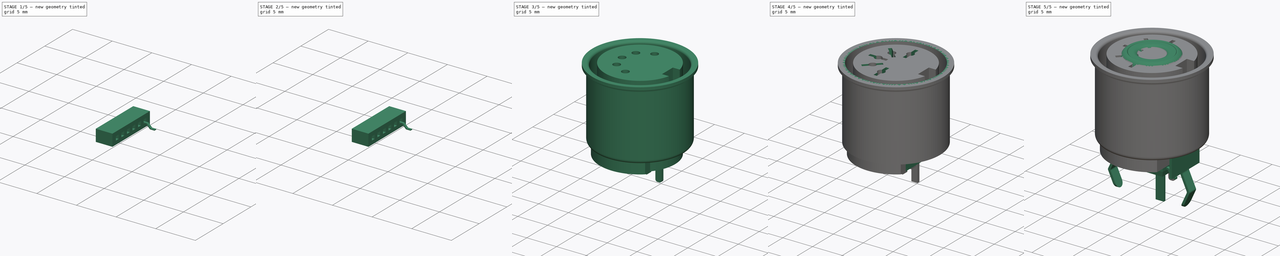
[diagram: build sequence overview — one tinted view per stage of 5, left to right]
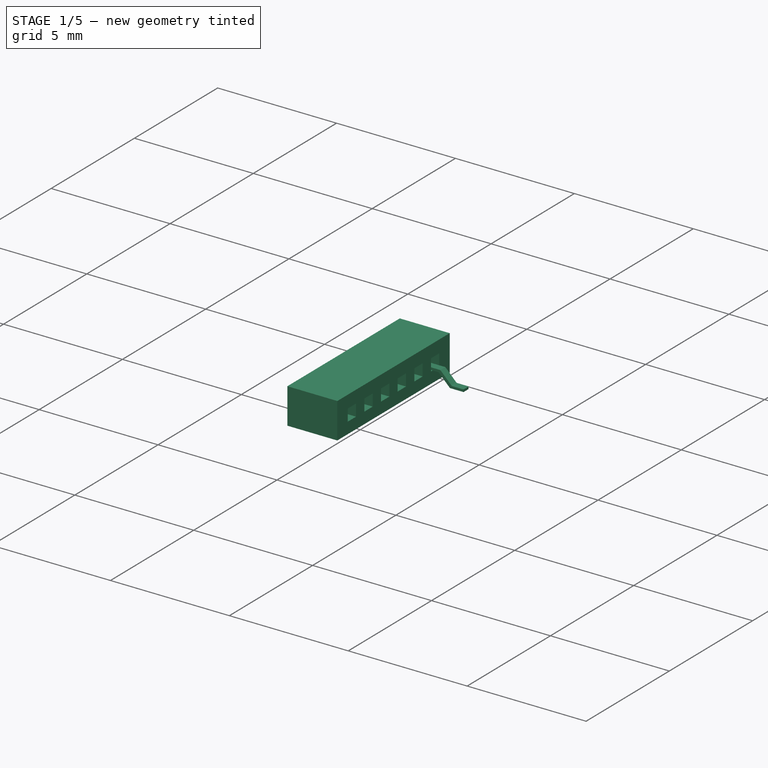
[diagram: stage 1 of 5 — iso view after this stage's code; geometry added in this stage tinted green]
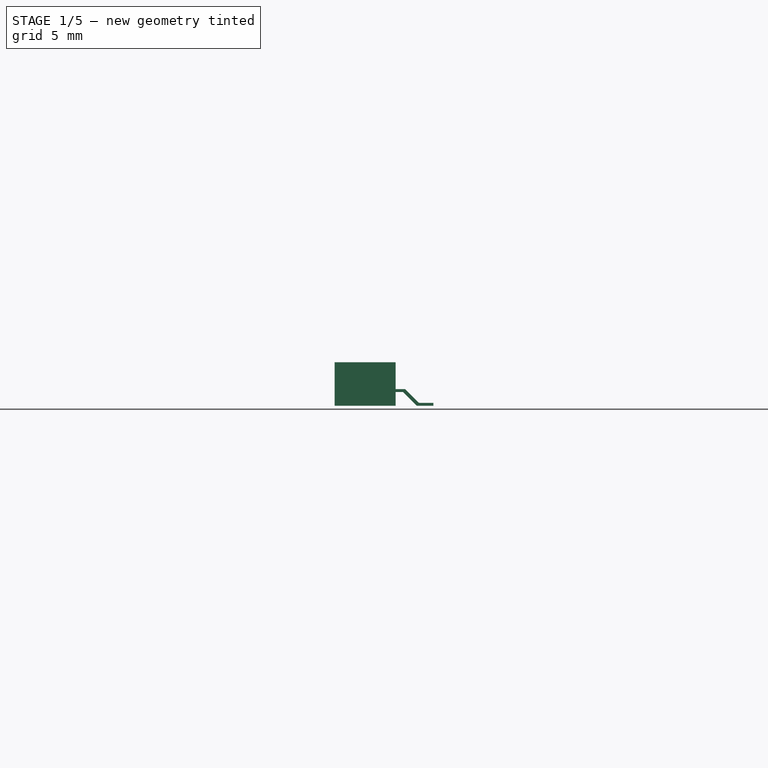
[diagram: stage 1 of 5 — front view after this stage's code; geometry added in this stage tinted green]
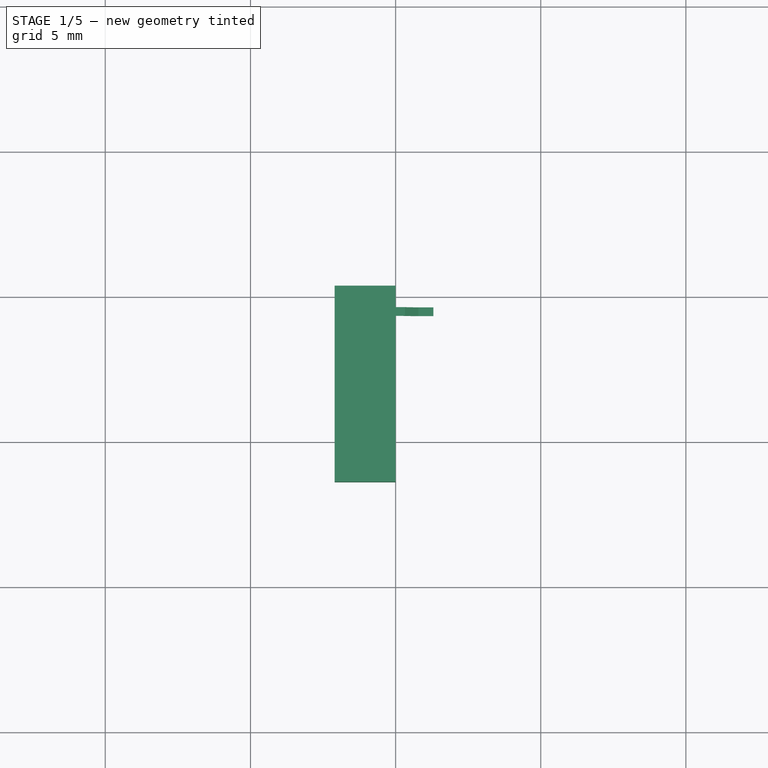
[diagram: stage 1 of 5 — top view after this stage's code; geometry added in this stage tinted green]
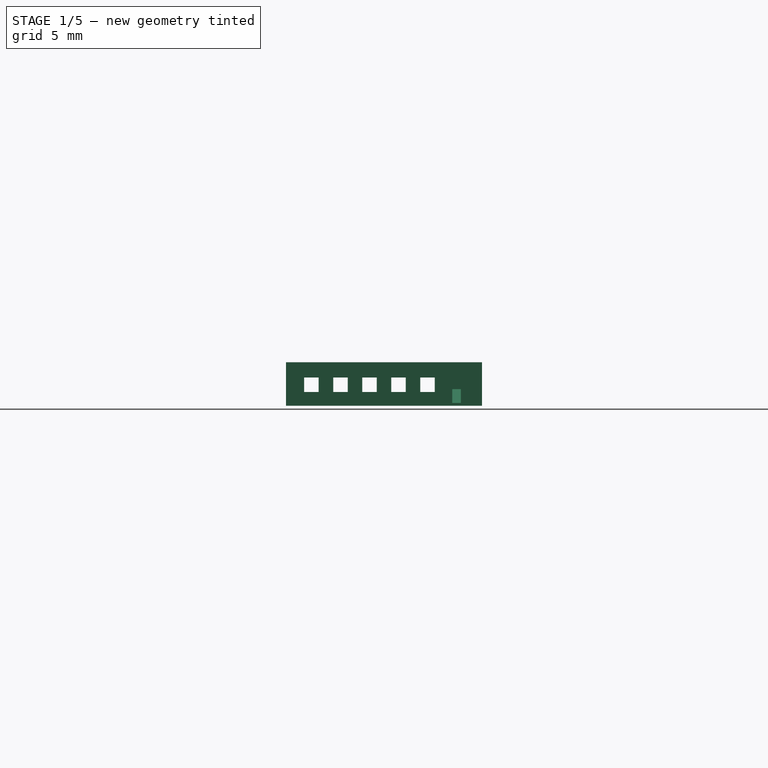
[diagram: stage 1 of 5 — right view after this stage's code; geometry added in this stage tinted green]
FCSTD DOCUMENT  (FreeCAD 0.20R29177 (Git))
Label: Ultra-IO
License: All rights reserved
LicenseURL: http://en.wikipedia.org/wiki/All_rights_reserved
objects: PartDesign::SubtractiveBox×223, PartDesign::AdditiveBox×118, Part::Feature×114, PartDesign::Fillet×90, PartDesign::Body×70, App::Link×69, PartDesign::Chamfer×66, Path::FeatureArea×43, PartDesign::SubtractiveCylinder×32, App::Part×31, PartDesign::AdditiveCylinder×23, Sketcher::SketchObject×22, PartDesign::Pad×15, PartDesign::Mirrored×3, PartDesign::Revolution×2, PartDesign::CoordinateSystem×1
note: 1434 computed .brp shape members not serialized (recipe doc carries the construction recipe); baked Part::Feature solids carry a one-line shape summary decoded from their .brp

FEATURE [PartDesign::AdditiveBox] Box253
  AttacherType = Attacher::AttachEngine3D
  AttachmentOffset = pos=(-2,4.25,0.475) rot=(0,0,1;0rad)
  Height = 0.5
  Length = 1.2
  MapMode = 5
  Placement = pos=(-2,4.25,0.475) rot=(0,0,1;0rad)
  Support = -> [XY_Plane086]
  Width = 0.5
FEATURE [PartDesign::AdditiveBox] Box259
  AttacherType = Attacher::AttachEngine3D
  AttachmentOffset = pos=(-0.8,4.35,0.475) rot=(0,0,1;0rad)
  BaseFeature = -> Box253
  Height = 0.1
  Length = 1.5
  MapMode = 5
  Placement = pos=(-0.8,4.35,0.475) rot=(0,0,1;0rad)
  Support = -> [XY_Plane086]
  Width = 0.3
FEATURE [PartDesign::AdditiveBox] Box254
  AttacherType = Attacher::AttachEngine3D
  AttachmentOffset = pos=(0,4.35,0) rot=(0,0,1;0rad)
  BaseFeature = -> Box259
  Height = 0.575
  Length = 1.3
  MapMode = 5
  Placement = pos=(0,4.35,0) rot=(0,0,1;0rad)
  Support = -> [XY_Plane086]
  Width = 0.3
FEATURE [PartDesign::SubtractiveBox] Box258
  AttacherType = Attacher::AttachEngine3D
  AttachmentOffset = pos=(0,4.35,0) rot=(0,0,1;0rad)
  BaseFeature = -> Box254
  Height = 0.475
  Length = 0.25
  MapMode = 5
  Placement = pos=(0,4.35,0) rot=(0,0,1;0rad)
  Support = -> [XY_Plane086]
  Width = 0.3
FEATURE [PartDesign::SubtractiveBox] Box256
  AttacherType = Attacher::AttachEngine3D
  AttachmentOffset = pos=(0.8,4.35,0.1) rot=(0,0,1;0rad)
  BaseFeature = -> Box258
  Height = 0.5
  Length = 0.5
  MapMode = 5
  Placement = pos=(0.8,4.35,0.1) rot=(0,0,1;0rad)
  Support = -> [XY_Plane086]
  Width = 0.3
FEATURE [PartDesign::SubtractiveBox] Box257
  AttacherType = Attacher::AttachEngine3D
  AttachmentOffset = pos=(0.8,4.35,0.1) rot=(0,-1,0;0.785398rad)
  BaseFeature = -> Box256
  Height = 0.75
  Length = 0.5
  MapMode = 5
  Placement = pos=(0.8,4.35,0.1) rot=(0,-1,0;0.785398rad)
  Support = -> [XY_Plane086]
  Width = 0.3
FEATURE [PartDesign::SubtractiveBox] Box260
  AttacherType = Attacher::AttachEngine3D
  AttachmentOffset = pos=(0.4975,4.35,-0.338) rot=(0,-1,0;0.785398rad)
  BaseFeature = -> Box257
  Height = 0.75
  Length = 0.4
  MapMode = 5
  Placement = pos=(0.4975,4.35,-0.338) rot=(0,-1,0;0.785398rad)
  Support = -> [XY_Plane086]
  Width = 0.3
FEATURE [PartDesign::AdditiveBox] Box261
  AttacherType = Attacher::AttachEngine3D
  AttachmentOffset = pos=(-2,4.25,0.475) rot=(0,0,1;0rad)
  Height = 0.5
  Length = 1.2
  MapMode = 5
  Placement = pos=(-2,4.25,0.475) rot=(0,0,1;0rad)
  Support = -> [XY_Plane087]
  Width = 0.5
FEATURE [PartDesign::AdditiveBox] Box267
  AttacherType = Attacher::AttachEngine3D
  AttachmentOffset = pos=(-0.8,4.35,0.475) rot=(0,0,1;0rad)
  BaseFeature = -> Box261
  Height = 0.1
  Length = 1.5
  MapMode = 5
  Placement = pos=(-0.8,4.35,0.475) rot=(0,0,1;0rad)
  Support = -> [XY_Plane087]
  Width = 0.3
FEATURE [PartDesign::AdditiveBox] Box262
  AttacherType = Attacher::AttachEngine3D
  AttachmentOffset = pos=(0,4.35,0) rot=(0,0,1;0rad)
  BaseFeature = -> Box267
  Height = 0.575
  Length = 1.3
  MapMode = 5
  Placement = pos=(0,4.35,0) rot=(0,0,1;0rad)
  Support = -> [XY_Plane087]
  Width = 0.3
FEATURE [PartDesign::SubtractiveBox] Box266
  AttacherType = Attacher::AttachEngine3D
  AttachmentOffset = pos=(0,4.35,0) rot=(0,0,1;0rad)
  BaseFeature = -> Box262
  Height = 0.475
  Length = 0.25
  MapMode = 5
  Placement = pos=(0,4.35,0) rot=(0,0,1;0rad)
  Support = -> [XY_Plane087]
  Width = 0.3
FEATURE [PartDesign::SubtractiveBox] Box264
  AttacherType = Attacher::AttachEngine3D
  AttachmentOffset = pos=(0.8,4.35,0.1) rot=(0,0,1;0rad)
  BaseFeature = -> Box266
  Height = 0.5
  Length = 0.5
  MapMode = 5
  Placement = pos=(0.8,4.35,0.1) rot=(0,0,1;0rad)
  Support = -> [XY_Plane087]
  Width = 0.3
FEATURE [PartDesign::SubtractiveBox] Box265
  AttacherType = Attacher::AttachEngine3D
  AttachmentOffset = pos=(0.8,4.35,0.1) rot=(0,-1,0;0.785398rad)
  BaseFeature = -> Box264
  Height = 0.75
  Length = 0.5
  MapMode = 5
  Placement = pos=(0.8,4.35,0.1) rot=(0,-1,0;0.785398rad)
  Support = -> [XY_Plane087]
  Width = 0.3
FEATURE [PartDesign::SubtractiveBox] Box268
  AttacherType = Attacher::AttachEngine3D
  AttachmentOffset = pos=(0.4975,4.35,-0.338) rot=(0,-1,0;0.785398rad)
  BaseFeature = -> Box265
  Height = 0.75
  Length = 0.4
  MapMode = 5
  Placement = pos=(0.4975,4.35,-0.338) rot=(0,-1,0;0.785398rad)
  Support = -> [XY_Plane087]
  Width = 0.3
FEATURE [PartDesign::AdditiveBox] Box269
  AttacherType = Attacher::AttachEngine3D
  AttachmentOffset = pos=(-2,4.25,0.475) rot=(0,0,1;0rad)
  Height = 0.5
  Length = 1.2
  MapMode = 5
  Placement = pos=(-2,4.25,0.475) rot=(0,0,1;0rad)
  Support = -> [XY_Plane088]
  Width = 0.5
FEATURE [PartDesign::AdditiveBox] Box275
  AttacherType = Attacher::AttachEngine3D
  AttachmentOffset = pos=(-0.8,4.35,0.475) rot=(0,0,1;0rad)
  BaseFeature = -> Box269
  Height = 0.1
  Length = 1.5
  MapMode = 5
  Placement = pos=(-0.8,4.35,0.475) rot=(0,0,1;0rad)
  Support = -> [XY_Plane088]
  Width = 0.3
FEATURE [PartDesign::AdditiveBox] Box270
  AttacherType = Attacher::AttachEngine3D
  AttachmentOffset = pos=(0,4.35,0) rot=(0,0,1;0rad)
  BaseFeature = -> Box275
  Height = 0.575
  Length = 1.3
  MapMode = 5
  Placement = pos=(0,4.35,0) rot=(0,0,1;0rad)
  Support = -> [XY_Plane088]
  Width = 0.3
FEATURE [PartDesign::SubtractiveBox] Box274
  AttacherType = Attacher::AttachEngine3D
  AttachmentOffset = pos=(0,4.35,0) rot=(0,0,1;0rad)
  BaseFeature = -> Box270
  Height = 0.475
  Length = 0.25
  MapMode = 5
  Placement = pos=(0,4.35,0) rot=(0,0,1;0rad)
  Support = -> [XY_Plane088]
  Width = 0.3
FEATURE [PartDesign::SubtractiveBox] Box272
  AttacherType = Attacher::AttachEngine3D
  AttachmentOffset = pos=(0.8,4.35,0.1) rot=(0,0,1;0rad)
  BaseFeature = -> Box274
  Height = 0.5
  Length = 0.5
  MapMode = 5
  Placement = pos=(0.8,4.35,0.1) rot=(0,0,1;0rad)
  Support = -> [XY_Plane088]
  Width = 0.3
FEATURE [PartDesign::SubtractiveBox] Box273
  AttacherType = Attacher::AttachEngine3D
  AttachmentOffset = pos=(0.8,4.35,0.1) rot=(0,-1,0;0.785398rad)
  BaseFeature = -> Box272
  Height = 0.75
  Length = 0.5
  MapMode = 5
  Placement = pos=(0.8,4.35,0.1) rot=(0,-1,0;0.785398rad)
  Support = -> [XY_Plane088]
  Width = 0.3
FEATURE [PartDesign::SubtractiveBox] Box276
  AttacherType = Attacher::AttachEngine3D
  AttachmentOffset = pos=(0.4975,4.35,-0.338) rot=(0,-1,0;0.785398rad)
  BaseFeature = -> Box273
  Height = 0.75
  Length = 0.4
  MapMode = 5
  Placement = pos=(0.4975,4.35,-0.338) rot=(0,-1,0;0.785398rad)
  Support = -> [XY_Plane088]
  Width = 0.3
FEATURE [PartDesign::AdditiveBox] Box277
  AttacherType = Attacher::AttachEngine3D
  AttachmentOffset = pos=(-2,4.25,0.475) rot=(0,0,1;0rad)
  Height = 0.5
  Length = 1.2
  MapMode = 5
  Placement = pos=(-2,4.25,0.475) rot=(0,0,1;0rad)
  Support = -> [XY_Plane090]
  Width = 0.5
FEATURE [PartDesign::AdditiveBox] Box279
  AttacherType = Attacher::AttachEngine3D
  AttachmentOffset = pos=(-0.8,4.35,0.475) rot=(0,0,1;0rad)
  BaseFeature = -> Box277
  Height = 0.1
  Length = 1.5
  MapMode = 5
  Placement = pos=(-0.8,4.35,0.475) rot=(0,0,1;0rad)
  Support = -> [XY_Plane090]
  Width = 0.3
FEATURE [PartDesign::AdditiveBox] Box283
  AttacherType = Attacher::AttachEngine3D
  AttachmentOffset = pos=(0,4.35,0) rot=(0,0,1;0rad)
  BaseFeature = -> Box279
  Height = 0.575
  Length = 1.3
  MapMode = 5
  Placement = pos=(0,4.35,0) rot=(0,0,1;0rad)
  Support = -> [XY_Plane090]
  Width = 0.3
FEATURE [PartDesign::SubtractiveBox] Box281
  AttacherType = Attacher::AttachEngine3D
  AttachmentOffset = pos=(0,4.35,0) rot=(0,0,1;0rad)
  BaseFeature = -> Box283
  Height = 0.475
  Length = 0.25
  MapMode = 5
  Placement = pos=(0,4.35,0) rot=(0,0,1;0rad)
  Support = -> [XY_Plane090]
  Width = 0.3
FEATURE [PartDesign::SubtractiveBox] Box280
  AttacherType = Attacher::AttachEngine3D
  AttachmentOffset = pos=(0.8,4.35,0.1) rot=(0,0,1;0rad)
  BaseFeature = -> Box281
  Height = 0.5
  Length = 0.5
  MapMode = 5
  Placement = pos=(0.8,4.35,0.1) rot=(0,0,1;0rad)
  Support = -> [XY_Plane090]
  Width = 0.3
FEATURE [PartDesign::SubtractiveBox] Box278
  AttacherType = Attacher::AttachEngine3D
  AttachmentOffset = pos=(0.8,4.35,0.1) rot=(0,-1,0;0.785398rad)
  BaseFeature = -> Box280
  Height = 0.75
  Length = 0.5
  MapMode = 5
  Placement = pos=(0.8,4.35,0.1) rot=(0,-1,0;0.785398rad)
  Support = -> [XY_Plane090]
  Width = 0.3
FEATURE [PartDesign::SubtractiveBox] Box284
  AttacherType = Attacher::AttachEngine3D
  AttachmentOffset = pos=(0.4975,4.35,-0.338) rot=(0,-1,0;0.785398rad)
  BaseFeature = -> Box278
  Height = 0.75
  Length = 0.4
  MapMode = 5
  Placement = pos=(0.4975,4.35,-0.338) rot=(0,-1,0;0.785398rad)
  Support = -> [XY_Plane090]
  Width = 0.3
FEATURE [PartDesign::AdditiveBox] Box286
  AttacherType = Attacher::AttachEngine3D
  AttachmentOffset = pos=(-2.1,-1.375,0) rot=(0,0,1;0rad)
  Height = 1.5
  Length = 2.1
  MapMode = 5
  Placement = pos=(-2.1,-1.375,0) rot=(0,0,1;0rad)
  Support = -> [XY_Plane092]
  Width = 6.75
FEATURE [PartDesign::SubtractiveBox] Box287
  AttacherType = Attacher::AttachEngine3D
  AttachmentOffset = pos=(-2.2,4.25,0.475) rot=(0,0,1;0rad)
  BaseFeature = -> Box286
  Height = 0.5
  Length = 3.5
  MapMode = 5
  Placement = pos=(-2.2,4.25,0.475) rot=(0,0,1;0rad)
  Support = -> [XY_Plane092]
  Width = 0.5
FEATURE [PartDesign::SubtractiveBox] Box288
  AttacherType = Attacher::AttachEngine3D
  AttachmentOffset = pos=(-2.5,3.25,0.475) rot=(0,0,1;0rad)
  BaseFeature = -> Box287
  Height = 0.5
  Length = 3.5
  MapMode = 5
  Placement = pos=(-2.5,3.25,0.475) rot=(0,0,1;0rad)
  Support = -> [XY_Plane092]
  Width = 0.5
FEATURE [PartDesign::SubtractiveBox] Box289
  AttacherType = Attacher::AttachEngine3D
  AttachmentOffset = pos=(-2.5,2.25,0.475) rot=(0,0,1;0rad)
  BaseFeature = -> Box288
  Height = 0.5
  Length = 3
  MapMode = 5
  Placement = pos=(-2.5,2.25,0.475) rot=(0,0,1;0rad)
  Support = -> [XY_Plane092]
  Width = 0.5
FEATURE [PartDesign::SubtractiveBox] Box290
  AttacherType = Attacher::AttachEngine3D
  AttachmentOffset = pos=(-2.5,1.25,0.475) rot=(0,0,1;0rad)
  BaseFeature = -> Box289
  Height = 0.5
  Length = 3.5
  MapMode = 5
  Placement = pos=(-2.5,1.25,0.475) rot=(0,0,1;0rad)
  Support = -> [XY_Plane092]
  Width = 0.5
FEATURE [PartDesign::SubtractiveBox] Box291
  AttacherType = Attacher::AttachEngine3D
  AttachmentOffset = pos=(-2.5,0.25,0.475) rot=(0,0,1;0rad)
  BaseFeature = -> Box290
  Height = 0.5
  Length = 3.5
  MapMode = 5
  Placement = pos=(-2.5,0.25,0.475) rot=(0,0,1;0rad)
  Support = -> [XY_Plane092]
  Width = 0.5
FEATURE [PartDesign::AdditiveBox] Box292
  AttacherType = Attacher::AttachEngine3D
  AttachmentOffset = pos=(-2,4.25,0.475) rot=(0,0,1;0rad)
  Height = 0.5
  Length = 1.2
  MapMode = 5
  Placement = pos=(-2,4.25,0.475) rot=(0,0,1;0rad)
  Support = -> [XY_Plane093]
  Width = 0.5
FEATURE [PartDesign::AdditiveBox] Box293
  AttacherType = Attacher::AttachEngine3D
  AttachmentOffset = pos=(-0.8,4.35,0.475) rot=(0,0,1;0rad)
  BaseFeature = -> Box292
  Height = 0.1
  Length = 1.5
  MapMode = 5
  Placement = pos=(-0.8,4.35,0.475) rot=(0,0,1;0rad)
  Support = -> [XY_Plane093]
  Width = 0.3
FEATURE [PartDesign::AdditiveBox] Box294
  AttacherType = Attacher::AttachEngine3D
  AttachmentOffset = pos=(0,4.35,0) rot=(0,0,1;0rad)
  BaseFeature = -> Box293
  Height = 0.575
  Length = 1.3
  MapMode = 5
  Placement = pos=(0,4.35,0) rot=(0,0,1;0rad)
  Support = -> [XY_Plane093]
  Width = 0.3
FEATURE [PartDesign::SubtractiveBox] Box295
  AttacherType = Attacher::AttachEngine3D
  AttachmentOffset = pos=(0,4.35,0) rot=(0,0,1;0rad)
  BaseFeature = -> Box294
  Height = 0.475
  Length = 0.25
  MapMode = 5
  Placement = pos=(0,4.35,0) rot=(0,0,1;0rad)
  Support = -> [XY_Plane093]
  Width = 0.3
FEATURE [PartDesign::SubtractiveBox] Box296
  AttacherType = Attacher::AttachEngine3D
  AttachmentOffset = pos=(0.8,4.35,0.1) rot=(0,0,1;0rad)
  BaseFeature = -> Box295
  Height = 0.5
  Length = 0.5
  MapMode = 5
  Placement = pos=(0.8,4.35,0.1) rot=(0,0,1;0rad)
  Support = -> [XY_Plane093]
  Width = 0.3
FEATURE [PartDesign::SubtractiveBox] Box297
  AttacherType = Attacher::AttachEngine3D
  AttachmentOffset = pos=(0.8,4.35,0.1) rot=(0,-1,0;0.785398rad)
  BaseFeature = -> Box296
  Height = 0.75
  Length = 0.5
  MapMode = 5
  Placement = pos=(0.8,4.35,0.1) rot=(0,-1,0;0.785398rad)
  Support = -> [XY_Plane093]
  Width = 0.3
FEATURE [PartDesign::SubtractiveBox] Box298
  AttacherType = Attacher::AttachEngine3D
  AttachmentOffset = pos=(0.4975,4.35,-0.338) rot=(0,-1,0;0.785398rad)
  BaseFeature = -> Box297
  Height = 0.75
  Length = 0.4
  MapMode = 5
  Placement = pos=(0.4975,4.35,-0.338) rot=(0,-1,0;0.785398rad)
  Support = -> [XY_Plane093]
  Width = 0.3
FEATURE [PartDesign::AdditiveBox] Box300
  AttacherType = Attacher::AttachEngine3D
  AttachmentOffset = pos=(-2,4.25,0.475) rot=(0,0,1;0rad)
  Height = 0.5
  Length = 1.2
  MapMode = 5
  Placement = pos=(-2,4.25,0.475) rot=(0,0,1;0rad)
  Support = -> [XY_Plane094]
  Width = 0.5
FEATURE [PartDesign::AdditiveBox] Box302
  AttacherType = Attacher::AttachEngine3D
  AttachmentOffset = pos=(-0.8,4.35,0.475) rot=(0,0,1;0rad)
  BaseFeature = -> Box300
  Height = 0.1
  Length = 1.5
  MapMode = 5
  Placement = pos=(-0.8,4.35,0.475) rot=(0,0,1;0rad)
  Support = -> [XY_Plane094]
  Width = 0.3
FEATURE [PartDesign::AdditiveBox] Box303
  AttacherType = Attacher::AttachEngine3D
  AttachmentOffset = pos=(0,4.35,0) rot=(0,0,1;0rad)
  BaseFeature = -> Box302
  Height = 0.575
  Length = 1.3
  MapMode = 5
  Placement = pos=(0,4.35,0) rot=(0,0,1;0rad)
  Support = -> [XY_Plane094]
  Width = 0.3
FEATURE [PartDesign::SubtractiveBox] Box301
  AttacherType = Attacher::AttachEngine3D
  AttachmentOffset = pos=(0,4.35,0) rot=(0,0,1;0rad)
  BaseFeature = -> Box303
  Height = 0.475
  Length = 0.25
  MapMode = 5
  Placement = pos=(0,4.35,0) rot=(0,0,1;0rad)
  Support = -> [XY_Plane094]
  Width = 0.3
FEATURE [PartDesign::SubtractiveBox] Box304
  AttacherType = Attacher::AttachEngine3D
  AttachmentOffset = pos=(0.8,4.35,0.1) rot=(0,0,1;0rad)
  BaseFeature = -> Box301
  Height = 0.5
  Length = 0.5
  MapMode = 5
  Placement = pos=(0.8,4.35,0.1) rot=(0,0,1;0rad)
  Support = -> [XY_Plane094]
  Width = 0.3
FEATURE [PartDesign::SubtractiveBox] Box305
  AttacherType = Attacher::AttachEngine3D
  AttachmentOffset = pos=(0.8,4.35,0.1) rot=(0,-1,0;0.785398rad)
  BaseFeature = -> Box304
  Height = 0.75
  Length = 0.5
  MapMode = 5
  Placement = pos=(0.8,4.35,0.1) rot=(0,-1,0;0.785398rad)
  Support = -> [XY_Plane094]
  Width = 0.3
FEATURE [PartDesign::SubtractiveBox] Box306
  AttacherType = Attacher::AttachEngine3D
  AttachmentOffset = pos=(0.4975,4.35,-0.338) rot=(0,-1,0;0.785398rad)
  BaseFeature = -> Box305
  Height = 0.75
  Length = 0.4
  MapMode = 5
  Placement = pos=(0.4975,4.35,-0.338) rot=(0,-1,0;0.785398rad)
  Support = -> [XY_Plane094]
  Width = 0.3
FEATURE [PartDesign::AdditiveBox] Box308
  AttacherType = Attacher::AttachEngine3D
  AttachmentOffset = pos=(-2,4.25,0.475) rot=(0,0,1;0rad)
  Height = 0.5
  Length = 1.2
  MapMode = 5
  Placement = pos=(-2,4.25,0.475) rot=(0,0,1;0rad)
  Support = -> [XY_Plane095]
  Width = 0.5
FEATURE [PartDesign::AdditiveBox] Box314
  AttacherType = Attacher::AttachEngine3D
  AttachmentOffset = pos=(-0.8,4.35,0.475) rot=(0,0,1;0rad)
  BaseFeature = -> Box308
  Height = 0.1
  Length = 1.5
  MapMode = 5
  Placement = pos=(-0.8,4.35,0.475) rot=(0,0,1;0rad)
  Support = -> [XY_Plane095]
  Width = 0.3
FEATURE [PartDesign::AdditiveBox] Box309
  AttacherType = Attacher::AttachEngine3D
  AttachmentOffset = pos=(0,4.35,0) rot=(0,0,1;0rad)
  BaseFeature = -> Box314
  Height = 0.575
  Length = 1.3
  MapMode = 5
  Placement = pos=(0,4.35,0) rot=(0,0,1;0rad)
  Support = -> [XY_Plane095]
  Width = 0.3
FEATURE [PartDesign::SubtractiveBox] Box313
  AttacherType = Attacher::AttachEngine3D
  AttachmentOffset = pos=(0,4.35,0) rot=(0,0,1;0rad)
  BaseFeature = -> Box309
  Height = 0.475
  Length = 0.25
  MapMode = 5
  Placement = pos=(0,4.35,0) rot=(0,0,1;0rad)
  Support = -> [XY_Plane095]
  Width = 0.3
FEATURE [PartDesign::SubtractiveBox] Box311
  AttacherType = Attacher::AttachEngine3D
  AttachmentOffset = pos=(0.8,4.35,0.1) rot=(0,0,1;0rad)
  BaseFeature = -> Box313
  Height = 0.5
  Length = 0.5
  MapMode = 5
  Placement = pos=(0.8,4.35,0.1) rot=(0,0,1;0rad)
  Support = -> [XY_Plane095]
  Width = 0.3
FEATURE [PartDesign::SubtractiveBox] Box312
  AttacherType = Attacher::AttachEngine3D
  AttachmentOffset = pos=(0.8,4.35,0.1) rot=(0,-1,0;0.785398rad)
  BaseFeature = -> Box311
  Height = 0.75
  Length = 0.5
  MapMode = 5
  Placement = pos=(0.8,4.35,0.1) rot=(0,-1,0;0.785398rad)
  Support = -> [XY_Plane095]
  Width = 0.3
FEATURE [PartDesign::SubtractiveBox] Box315
  AttacherType = Attacher::AttachEngine3D
  AttachmentOffset = pos=(0.4975,4.35,-0.338) rot=(0,-1,0;0.785398rad)
  BaseFeature = -> Box312
  Height = 0.75
  Length = 0.4
  MapMode = 5
  Placement = pos=(0.4975,4.35,-0.338) rot=(0,-1,0;0.785398rad)
  Support = -> [XY_Plane095]
  Width = 0.3
FEATURE [PartDesign::AdditiveBox] Box316
  AttacherType = Attacher::AttachEngine3D
  AttachmentOffset = pos=(-2,4.25,0.475) rot=(0,0,1;0rad)
  Height = 0.5
  Length = 1.2
  MapMode = 5
  Placement = pos=(-2,4.25,0.475) rot=(0,0,1;0rad)
  Support = -> [XY_Plane096]
  Width = 0.5
FEATURE [PartDesign::AdditiveBox] Box322
  AttacherType = Attacher::AttachEngine3D
  AttachmentOffset = pos=(-0.8,4.35,0.475) rot=(0,0,1;0rad)
  BaseFeature = -> Box316
  Height = 0.1
  Length = 1.5
  MapMode = 5
  Placement = pos=(-0.8,4.35,0.475) rot=(0,0,1;0rad)
  Support = -> [XY_Plane096]
  Width = 0.3
FEATURE [PartDesign::AdditiveBox] Box317
  AttacherType = Attacher::AttachEngine3D
  AttachmentOffset = pos=(0,4.35,0) rot=(0,0,1;0rad)
  BaseFeature = -> Box322
  Height = 0.575
  Length = 1.3
  MapMode = 5
  Placement = pos=(0,4.35,0) rot=(0,0,1;0rad)
  Support = -> [XY_Plane096]
  Width = 0.3
FEATURE [PartDesign::SubtractiveBox] Box321
  AttacherType = Attacher::AttachEngine3D
  AttachmentOffset = pos=(0,4.35,0) rot=(0,0,1;0rad)
  BaseFeature = -> Box317
  Height = 0.475
  Length = 0.25
  MapMode = 5
  Placement = pos=(0,4.35,0) rot=(0,0,1;0rad)
  Support = -> [XY_Plane096]
  Width = 0.3
FEATURE [PartDesign::SubtractiveBox] Box319
  AttacherType = Attacher::AttachEngine3D
  AttachmentOffset = pos=(0.8,4.35,0.1) rot=(0,0,1;0rad)
  BaseFeature = -> Box321
  Height = 0.5
  Length = 0.5
  MapMode = 5
  Placement = pos=(0.8,4.35,0.1) rot=(0,0,1;0rad)
  Support = -> [XY_Plane096]
  Width = 0.3
FEATURE [PartDesign::SubtractiveBox] Box320
  AttacherType = Attacher::AttachEngine3D
  AttachmentOffset = pos=(0.8,4.35,0.1) rot=(0,-1,0;0.785398rad)
  BaseFeature = -> Box319
  Height = 0.75
  Length = 0.5
  MapMode = 5
  Placement = pos=(0.8,4.35,0.1) rot=(0,-1,0;0.785398rad)
  Support = -> [XY_Plane096]
  Width = 0.3
FEATURE [PartDesign::SubtractiveBox] Box323
  AttacherType = Attacher::AttachEngine3D
  AttachmentOffset = pos=(0.4975,4.35,-0.338) rot=(0,-1,0;0.785398rad)
  BaseFeature = -> Box320
  Height = 0.75
  Length = 0.4
  MapMode = 5
  Placement = pos=(0.4975,4.35,-0.338) rot=(0,-1,0;0.785398rad)
  Support = -> [XY_Plane096]
  Width = 0.3
FEATURE [PartDesign::AdditiveBox] Box324
  AttacherType = Attacher::AttachEngine3D
  AttachmentOffset = pos=(-2,4.25,0.475) rot=(0,0,1;0rad)
  Height = 0.5
  Length = 1.2
  MapMode = 5
  Placement = pos=(-2,4.25,0.475) rot=(0,0,1;0rad)
  Support = -> [XY_Plane097]
  Width = 0.5
FEATURE [PartDesign::AdditiveBox] Box330
  AttacherType = Attacher::AttachEngine3D
  AttachmentOffset = pos=(-0.8,4.35,0.475) rot=(0,0,1;0rad)
  BaseFeature = -> Box324
  Height = 0.1
  Length = 1.5
  MapMode = 5
  Placement = pos=(-0.8,4.35,0.475) rot=(0,0,1;0rad)
  Support = -> [XY_Plane097]
  Width = 0.3
FEATURE [PartDesign::AdditiveBox] Box325
  AttacherType = Attacher::AttachEngine3D
  AttachmentOffset = pos=(0,4.35,0) rot=(0,0,1;0rad)
  BaseFeature = -> Box330
  Height = 0.575
  Length = 1.3
  MapMode = 5
  Placement = pos=(0,4.35,0) rot=(0,0,1;0rad)
  Support = -> [XY_Plane097]
  Width = 0.3
FEATURE [PartDesign::SubtractiveBox] Box329
  AttacherType = Attacher::AttachEngine3D
  AttachmentOffset = pos=(0,4.35,0) rot=(0,0,1;0rad)
  BaseFeature = -> Box325
  Height = 0.475
  Length = 0.25
  MapMode = 5
  Placement = pos=(0,4.35,0) rot=(0,0,1;0rad)
  Support = -> [XY_Plane097]
  Width = 0.3
FEATURE [PartDesign::SubtractiveBox] Box327
  AttacherType = Attacher::AttachEngine3D
  AttachmentOffset = pos=(0.8,4.35,0.1) rot=(0,0,1;0rad)
  BaseFeature = -> Box329
  Height = 0.5
  Length = 0.5
  MapMode = 5
  Placement = pos=(0.8,4.35,0.1) rot=(0,0,1;0rad)
  Support = -> [XY_Plane097]
  Width = 0.3
FEATURE [PartDesign::SubtractiveBox] Box328
  AttacherType = Attacher::AttachEngine3D
  AttachmentOffset = pos=(0.8,4.35,0.1) rot=(0,-1,0;0.785398rad)
  BaseFeature = -> Box327
  Height = 0.75
  Length = 0.5
  MapMode = 5
  Placement = pos=(0.8,4.35,0.1) rot=(0,-1,0;0.785398rad)
  Support = -> [XY_Plane097]
  Width = 0.3
FEATURE [PartDesign::SubtractiveBox] Box331
  AttacherType = Attacher::AttachEngine3D
  AttachmentOffset = pos=(0.4975,4.35,-0.338) rot=(0,-1,0;0.785398rad)
  BaseFeature = -> Box328
  Height = 0.75
  Length = 0.4
  MapMode = 5
  Placement = pos=(0.4975,4.35,-0.338) rot=(0,-1,0;0.785398rad)
  Support = -> [XY_Plane097]
  Width = 0.3
FEATURE [PartDesign::AdditiveBox] Box332
  AttacherType = Attacher::AttachEngine3D
  AttachmentOffset = pos=(-2,4.25,0.475) rot=(0,0,1;0rad)
  Height = 0.5
  Length = 1.2
  MapMode = 5
  Placement = pos=(-2,4.25,0.475) rot=(0,0,1;0rad)
  Support = -> [XY_Plane099]
  Width = 0.5
FEATURE [PartDesign::AdditiveBox] Box334
  AttacherType = Attacher::AttachEngine3D
  AttachmentOffset = pos=(-0.8,4.35,0.475) rot=(0,0,1;0rad)
  BaseFeature = -> Box332
  Height = 0.1
  Length = 1.5
  MapMode = 5
  Placement = pos=(-0.8,4.35,0.475) rot=(0,0,1;0rad)
  Support = -> [XY_Plane099]
  Width = 0.3
FEATURE [PartDesign::AdditiveBox] Box338
  AttacherType = Attacher::AttachEngine3D
  AttachmentOffset = pos=(0,4.35,0) rot=(0,0,1;0rad)
  BaseFeature = -> Box334
  Height = 0.575
  Length = 1.3
  MapMode = 5
  Placement = pos=(0,4.35,0) rot=(0,0,1;0rad)
  Support = -> [XY_Plane099]
  Width = 0.3
FEATURE [PartDesign::SubtractiveBox] Box336
  AttacherType = Attacher::AttachEngine3D
  AttachmentOffset = pos=(0,4.35,0) rot=(0,0,1;0rad)
  BaseFeature = -> Box338
  Height = 0.475
  Length = 0.25
  MapMode = 5
  Placement = pos=(0,4.35,0) rot=(0,0,1;0rad)
  Support = -> [XY_Plane099]
  Width = 0.3
FEATURE [PartDesign::SubtractiveBox] Box335
  AttacherType = Attacher::AttachEngine3D
  AttachmentOffset = pos=(0.8,4.35,0.1) rot=(0,0,1;0rad)
  BaseFeature = -> Box336
  Height = 0.5
  Length = 0.5
  MapMode = 5
  Placement = pos=(0.8,4.35,0.1) rot=(0,0,1;0rad)
  Support = -> [XY_Plane099]
  Width = 0.3
FEATURE [PartDesign::SubtractiveBox] Box333
  AttacherType = Attacher::AttachEngine3D
  AttachmentOffset = pos=(0.8,4.35,0.1) rot=(0,-1,0;0.785398rad)
  BaseFeature = -> Box335
  Height = 0.75
  Length = 0.5
  MapMode = 5
  Placement = pos=(0.8,4.35,0.1) rot=(0,-1,0;0.785398rad)
  Support = -> [XY_Plane099]
  Width = 0.3
FEATURE [PartDesign::SubtractiveBox] Box339
  AttacherType = Attacher::AttachEngine3D
  AttachmentOffset = pos=(0.4975,4.35,-0.338) rot=(0,-1,0;0.785398rad)
  BaseFeature = -> Box333
  Height = 0.75
  Length = 0.4
  MapMode = 5
  Placement = pos=(0.4975,4.35,-0.338) rot=(0,-1,0;0.785398rad)
  Support = -> [XY_Plane099]
  Width = 0.3
FEATURE [PartDesign::SubtractiveBox] Box340
  AttacherType = Attacher::AttachEngine3D
  AttachmentOffset = pos=(-3,-0.75,0.475) rot=(0,0,1;0rad)
  BaseFeature = -> Box291
  Height = 0.5
  Length = 3.5
  MapMode = 5
  Placement = pos=(-3,-0.75,0.475) rot=(0,0,1;0rad)
  Support = -> [XY_Plane092]
  Width = 0.5
FEATURE [PartDesign::Body] Body056  label="Plastic_casing002"
  Group = -> [Box231,Box232,Box233,Box234,Box235,Box236,Box285,Chamfer064]
  Origin = -> Origin083
  Placement = pos=(0,-2,0) rot=(0,0,1;0rad)
  Tip = -> Chamfer064
FEATURE [PartDesign::Chamfer] Chamfer065
  Angle = 45
  Base = -> Box340 [Edge8,Edge6,Edge5,Edge7,Edge10,Edge12,Edge11,Edge9,Edge14,Edge16,Edge13,Edge15,Edge22,Edge24,Edge21,Edge23,Edge26,Edge28,Edge25,Edge27,Edge18,Edge19,Edge17,Edge20]
  BaseFeature = -> Box340
  ChamferType = 0
  FlipDirection = false
  Placement = pos=(-3,-0.75,0.475) rot=(0,0,1;0rad)
  Size = 0.1
  Size2 = 1
  SupportTransform = false
  UseAllEdges = false
FEATURE [PartDesign::Fillet] Fillet061
  Base = -> Box268 [Edge34]
  BaseFeature = -> Box268
  Placement = pos=(0.4975,4.35,-0.338) rot=(0,-1,0;0.785398rad)
  Radius = 0.1
  SupportTransform = false
  UseAllEdges = false
FEATURE [PartDesign::Fillet] Fillet060
  Base = -> Fillet061 [Edge25]
  BaseFeature = -> Fillet061
  Placement = pos=(0.4975,4.35,-0.338) rot=(0,-1,0;0.785398rad)
  Radius = 0.1
  SupportTransform = false
  UseAllEdges = false
FEATURE [PartDesign::SubtractiveBox] Box263
  AttacherType = Attacher::AttachEngine3D
  AttachmentOffset = pos=(-2,4.35,0.6) rot=(0,0,1;0rad)
  BaseFeature = -> Fillet060
  Height = 0.25
  Length = 1.5
  MapMode = 5
  Placement = pos=(-2,4.35,0.6) rot=(0,0,1;0rad)
  Support = -> [XY_Plane087]
  Width = 0.3
FEATURE [PartDesign::Fillet] Fillet063
  Base = -> Box276 [Edge34]
  BaseFeature = -> Box276
  Placement = pos=(0.4975,4.35,-0.338) rot=(0,-1,0;0.785398rad)
  Radius = 0.1
  SupportTransform = false
  UseAllEdges = false
FEATURE [PartDesign::Fillet] Fillet062
  Base = -> Fillet063 [Edge25]
  BaseFeature = -> Fillet063
  Placement = pos=(0.4975,4.35,-0.338) rot=(0,-1,0;0.785398rad)
  Radius = 0.1
  SupportTransform = false
  UseAllEdges = false
FEATURE [PartDesign::SubtractiveBox] Box271
  AttacherType = Attacher::AttachEngine3D
  AttachmentOffset = pos=(-2,4.35,0.6) rot=(0,0,1;0rad)
  BaseFeature = -> Fillet062
  Height = 0.25
  Length = 1.5
  MapMode = 5
  Placement = pos=(-2,4.35,0.6) rot=(0,0,1;0rad)
  Support = -> [XY_Plane088]
  Width = 0.3
FEATURE [PartDesign::Body] Body059  label="Leg015"
  Group = -> [Box253,Box259,Box254,Box258,Box256,Box257,Box260,Fillet059,Fillet058,Box255,Fillet066]
  Origin = -> Origin086
  Placement = pos=(0,-4.5,0) rot=(0,0,1;0rad)
  Tip = -> Fillet066
FEATURE [PartDesign::Fillet] Fillet067
  Base = -> Box263 [Edge26]
  BaseFeature = -> Box263
  Placement = pos=(-2,4.35,0.6) rot=(0,0,1;0rad)
  Radius = 0.1
  SupportTransform = false
  UseAllEdges = false
FEATURE [PartDesign::Body] Body060  label="Leg016"
  Group = -> [Box261,Box267,Box262,Box266,Box264,Box265,Box268,Fillet061,Fillet060,Box263,Fillet067]
  Origin = -> Origin087
  Placement = pos=(0,-5.5,0) rot=(0,0,1;0rad)
  Tip = -> Fillet067
FEATURE [PartDesign::Fillet] Fillet068
  Base = -> Box271 [Edge26]
  BaseFeature = -> Box271
  Placement = pos=(-2,4.35,0.6) rot=(0,0,1;0rad)
  Radius = 0.1
  SupportTransform = false
  UseAllEdges = false
FEATURE [PartDesign::Body] Body061  label="Leg017"
  Group = -> [Box269,Box275,Box270,Box274,Box272,Box273,Box276,Fillet063,Fillet062,Box271,Fillet068]
  Origin = -> Origin088
  Placement = pos=(0,-6.5,0) rot=(0,0,1;0rad)
  Tip = -> Fillet068
FEATURE [PartDesign::Fillet] Fillet069
  Base = -> Box284 [Edge34]
  BaseFeature = -> Box284
  Placement = pos=(0.4975,4.35,-0.338) rot=(0,-1,0;0.785398rad)
  Radius = 0.1
  SupportTransform = false
  UseAllEdges = false
FEATURE [PartDesign::Fillet] Fillet070
  Base = -> Fillet069 [Edge25]
  BaseFeature = -> Fillet069
  Placement = pos=(0.4975,4.35,-0.338) rot=(0,-1,0;0.785398rad)
  Radius = 0.1
  SupportTransform = false
  UseAllEdges = false
FEATURE [PartDesign::SubtractiveBox] Box282
  AttacherType = Attacher::AttachEngine3D
  AttachmentOffset = pos=(-2,4.35,0.6) rot=(0,0,1;0rad)
  BaseFeature = -> Fillet070
  Height = 0.25
  Length = 1.5
  MapMode = 5
  Placement = pos=(-2,4.35,0.6) rot=(0,0,1;0rad)
  Support = -> [XY_Plane090]
  Width = 0.3
FEATURE [PartDesign::Fillet] Fillet071
  Base = -> Box282 [Edge26]
  BaseFeature = -> Box282
  Placement = pos=(-2,4.35,0.6) rot=(0,0,1;0rad)
  Radius = 0.1
  SupportTransform = false
  UseAllEdges = false
FEATURE [PartDesign::Body] Body062  label="Leg018"
  Group = -> [Box277,Box279,Box283,Box281,Box280,Box278,Box284,Fillet069,Fillet070,Box282,Fillet071]
  Origin = -> Origin090
  Placement = pos=(0,-7.5,0) rot=(0,0,1;0rad)
  Tip = -> Fillet071
FEATURE [PartDesign::Fillet] Fillet072
  Base = -> Box298 [Edge34]
  BaseFeature = -> Box298
  Placement = pos=(0.4975,4.35,-0.338) rot=(0,-1,0;0.785398rad)
  Radius = 0.1
  SupportTransform = false
  UseAllEdges = false
FEATURE [PartDesign::Fillet] Fillet073
  Base = -> Fillet072 [Edge25]
  BaseFeature = -> Fillet072
  Placement = pos=(0.4975,4.35,-0.338) rot=(0,-1,0;0.785398rad)
  Radius = 0.1
  SupportTransform = false
  UseAllEdges = false
FEATURE [PartDesign::SubtractiveBox] Box299
  AttacherType = Attacher::AttachEngine3D
  AttachmentOffset = pos=(-2,4.35,0.6) rot=(0,0,1;0rad)
  BaseFeature = -> Fillet073
  Height = 0.25
  Length = 1.5
  MapMode = 5
  Placement = pos=(-2,4.35,0.6) rot=(0,0,1;0rad)
  Support = -> [XY_Plane093]
  Width = 0.3
FEATURE [PartDesign::Fillet] Fillet074
  Base = -> Box306 [Edge34]
  BaseFeature = -> Box306
  Placement = pos=(0.4975,4.35,-0.338) rot=(0,-1,0;0.785398rad)
  Radius = 0.1
  SupportTransform = false
  UseAllEdges = false
FEATURE [PartDesign::Fillet] Fillet075
  Base = -> Fillet074 [Edge25]
  BaseFeature = -> Fillet074
  Placement = pos=(0.4975,4.35,-0.338) rot=(0,-1,0;0.785398rad)
  Radius = 0.1
  SupportTransform = false
  UseAllEdges = false
FEATURE [PartDesign::SubtractiveBox] Box307
  AttacherType = Attacher::AttachEngine3D
  AttachmentOffset = pos=(-2,4.35,0.6) rot=(0,0,1;0rad)
  BaseFeature = -> Fillet075
  Height = 0.25
  Length = 1.5
  MapMode = 5
  Placement = pos=(-2,4.35,0.6) rot=(0,0,1;0rad)
  Support = -> [XY_Plane094]
  Width = 0.3
FEATURE [PartDesign::Fillet] Fillet077
  Base = -> Box315 [Edge34]
  BaseFeature = -> Box315
  Placement = pos=(0.4975,4.35,-0.338) rot=(0,-1,0;0.785398rad)
  Radius = 0.1
  SupportTransform = false
  UseAllEdges = false
FEATURE [PartDesign::Fillet] Fillet076
  Base = -> Fillet077 [Edge25]
  BaseFeature = -> Fillet077
  Placement = pos=(0.4975,4.35,-0.338) rot=(0,-1,0;0.785398rad)
  Radius = 0.1
  SupportTransform = false
  UseAllEdges = false
FEATURE [PartDesign::SubtractiveBox] Box310
  AttacherType = Attacher::AttachEngine3D
  AttachmentOffset = pos=(-2,4.35,0.6) rot=(0,0,1;0rad)
  BaseFeature = -> Fillet076
  Height = 0.25
  Length = 1.5
  MapMode = 5
  Placement = pos=(-2,4.35,0.6) rot=(0,0,1;0rad)
  Support = -> [XY_Plane095]
  Width = 0.3
FEATURE [PartDesign::Fillet] Fillet079
  Base = -> Box323 [Edge34]
  BaseFeature = -> Box323
  Placement = pos=(0.4975,4.35,-0.338) rot=(0,-1,0;0.785398rad)
  Radius = 0.1
  SupportTransform = false
  UseAllEdges = false
FEATURE [PartDesign::Fillet] Fillet078
  Base = -> Fillet079 [Edge25]
  BaseFeature = -> Fillet079
  Placement = pos=(0.4975,4.35,-0.338) rot=(0,-1,0;0.785398rad)
  Radius = 0.1
  SupportTransform = false
  UseAllEdges = false
FEATURE [PartDesign::SubtractiveBox] Box318
  AttacherType = Attacher::AttachEngine3D
  AttachmentOffset = pos=(-2,4.35,0.6) rot=(0,0,1;0rad)
  BaseFeature = -> Fillet078
  Height = 0.25
  Length = 1.5
  MapMode = 5
  Placement = pos=(-2,4.35,0.6) rot=(0,0,1;0rad)
  Support = -> [XY_Plane096]
  Width = 0.3
FEATURE [PartDesign::Fillet] Fillet081
  Base = -> Box331 [Edge34]
  BaseFeature = -> Box331
  Placement = pos=(0.4975,4.35,-0.338) rot=(0,-1,0;0.785398rad)
  Radius = 0.1
  SupportTransform = false
  UseAllEdges = false
FEATURE [PartDesign::Fillet] Fillet080
  Base = -> Fillet081 [Edge25]
  BaseFeature = -> Fillet081
  Placement = pos=(0.4975,4.35,-0.338) rot=(0,-1,0;0.785398rad)
  Radius = 0.1
  SupportTransform = false
  UseAllEdges = false
FEATURE [PartDesign::SubtractiveBox] Box326
  AttacherType = Attacher::AttachEngine3D
  AttachmentOffset = pos=(-2,4.35,0.6) rot=(0,0,1;0rad)
  BaseFeature = -> Fillet080
  Height = 0.25
  Length = 1.5
  MapMode = 5
  Placement = pos=(-2,4.35,0.6) rot=(0,0,1;0rad)
  Support = -> [XY_Plane097]
  Width = 0.3
FEATURE [PartDesign::Fillet] Fillet082
  Base = -> Box299 [Edge26]
  BaseFeature = -> Box299
  Placement = pos=(-2,4.35,0.6) rot=(0,0,1;0rad)
  Radius = 0.1
  SupportTransform = false
  UseAllEdges = false
FEATURE [PartDesign::Body] Body064  label="Leg019"
  Group = -> [Box292,Box293,Box294,Box295,Box296,Box297,Box298,Fillet072,Fillet073,Box299,Fillet082]
  Origin = -> Origin093
  Placement = pos=(0,-2.5,0) rot=(0,0,1;0rad)
  Tip = -> Fillet082
FEATURE [PartDesign::Fillet] Fillet083
  Base = -> Box307 [Edge26]
  BaseFeature = -> Box307
  Placement = pos=(-2,4.35,0.6) rot=(0,0,1;0rad)
  Radius = 0.1
  SupportTransform = false
  UseAllEdges = false
FEATURE [PartDesign::Body] Body065  label="Leg020"
  Group = -> [Box300,Box302,Box303,Box301,Box304,Box305,Box306,Fillet074,Fillet075,Box307,Fillet083]
  Origin = -> Origin094
  Placement = pos=(0,-3.5,0) rot=(0,0,1;0rad)
  Tip = -> Fillet083
FEATURE [PartDesign::Fillet] Fillet084
  Base = -> Box310 [Edge26]
  BaseFeature = -> Box310
  Placement = pos=(-2,4.35,0.6) rot=(0,0,1;0rad)
  Radius = 0.1
  SupportTransform = false
  UseAllEdges = false
FEATURE [PartDesign::Body] Body066  label="Leg021"
  Group = -> [Box308,Box314,Box309,Box313,Box311,Box312,Box315,Fillet077,Fillet076,Box310,Fillet084]
  Origin = -> Origin095
  Placement = pos=(0,-4.5,0) rot=(0,0,1;0rad)
  Tip = -> Fillet084
FEATURE [PartDesign::Fillet] Fillet085
  Base = -> Box318 [Edge26]
  BaseFeature = -> Box318
  Placement = pos=(-2,4.35,0.6) rot=(0,0,1;0rad)
  Radius = 0.1
  SupportTransform = false
  UseAllEdges = false
FEATURE [PartDesign::Body] Body067  label="Leg022"
  Group = -> [Box316,Box322,Box317,Box321,Box319,Box320,Box323,Fillet079,Fillet078,Box318,Fillet085]
  Origin = -> Origin096
  Placement = pos=(0,-5.5,0) rot=(0,0,1;0rad)
  Tip = -> Fillet085
FEATURE [PartDesign::Fillet] Fillet086
  Base = -> Box326 [Edge26]
  BaseFeature = -> Box326
  Placement = pos=(-2,4.35,0.6) rot=(0,0,1;0rad)
  Radius = 0.1
  SupportTransform = false
  UseAllEdges = false
FEATURE [PartDesign::Body] Body068  label="Leg023"
  Group = -> [Box324,Box330,Box325,Box329,Box327,Box328,Box331,Fillet081,Fillet080,Box326,Fillet086]
  Origin = -> Origin097
  Placement = pos=(0,-6.5,0) rot=(0,0,1;0rad)
  Tip = -> Fillet086
FEATURE [PartDesign::Fillet] Fillet087
  Base = -> Box339 [Edge34]
  BaseFeature = -> Box339
  Placement = pos=(0.4975,4.35,-0.338) rot=(0,-1,0;0.785398rad)
  Radius = 0.1
  SupportTransform = false
  UseAllEdges = false
FEATURE [PartDesign::Fillet] Fillet088
  Base = -> Fillet087 [Edge25]
  BaseFeature = -> Fillet087
  Placement = pos=(0.4975,4.35,-0.338) rot=(0,-1,0;0.785398rad)
  Radius = 0.1
  SupportTransform = false
  UseAllEdges = false
FEATURE [PartDesign::SubtractiveBox] Box337
  AttacherType = Attacher::AttachEngine3D
  AttachmentOffset = pos=(-2,4.35,0.6) rot=(0,0,1;0rad)
  BaseFeature = -> Fillet088
  Height = 0.25
  Length = 1.5
  MapMode = 5
  Placement = pos=(-2,4.35,0.6) rot=(0,0,1;0rad)
  Support = -> [XY_Plane099]
  Width = 0.3
FEATURE [PartDesign::Fillet] Fillet089
  Base = -> Box337 [Edge26]
  BaseFeature = -> Box337
  Placement = pos=(-2,4.35,0.6) rot=(0,0,1;0rad)
  Radius = 0.1
  SupportTransform = false
  UseAllEdges = false
FEATURE [PartDesign::Body] Body069  label="Leg024"
  Group = -> [Box332,Box334,Box338,Box336,Box335,Box333,Box339,Fillet087,Fillet088,Box337,Fillet089]
  Origin = -> Origin099
  Placement = pos=(0,-7.5,0) rot=(0,0,1;0rad)
  Tip = -> Fillet089
FEATURE [App::Part] Part012  label="Legs004"
  Group = -> [Body057,Body058,Body059,Body060,Body061,Body062]
  Origin = -> Origin089
  Placement = pos=(0,0.5,0) rot=(0,0,1;0rad)
FEATURE [App::Part] Part013  label="GCT_BC075-06-003"
  Group = -> [Part012,Body056]
  Origin = -> Origin091
  Placement = pos=(77.984,1.7,-2) rot=(0.707107,0.707107,0;3.14159rad)
FEATURE [App::Part] Part014  label="Legs005"
  Group = -> [Body064,Body065,Body066,Body067,Body068,Body069]
  Origin = -> Origin098
  Placement = pos=(0,0.5,0) rot=(0,0,1;0rad)
FEATURE [App::Part] Part015  label="GCT_BC075-06-004"
  Group = -> [Part014,Body063]
  Origin = -> Origin100
  Placement = pos=(85.625,1.7,-2) rot=(0.707107,0.707107,0;3.14159rad)
FEATURE [App::Part] Top_8e65
  Group = -> [Shape,Shape001,C8_C_0805_2012Metric_f3a3f0892716_ln_,Shape002,Shape003,R18_R_0603_1608Metric_d753575270ea_ln_,Norcomp_111_014_213L001,Shape004,C8_C_0805_2012Metric_f3a3f0892716_ln_001,J31_PinHeader_1x01_P127mm_Horizontal_e6eaef08d4e1_ln_,TC_1578891_scart,J5_PinHeader_1x02_P127mm_Horizontal_92fba9bb2b89_ln_,R18_R_0603_1608Metric_d753575270ea_ln_001,R18_R_0603_1608Metric_d753575270ea_ln_002,+20 more]
  Origin = -> Origin003
FEATURE [App::Part] Step_Models_8e65
  Group = -> [Top_8e65,Bot_8e65]
  Origin = -> Origin002
FEATURE [App::Part] Board_8e65  label="Ultra-IO-shield"
  Group = -> [Local_CS_8e65,Board_Geoms_8e65,Step_Models_8e65]
  Origin = -> Origin001
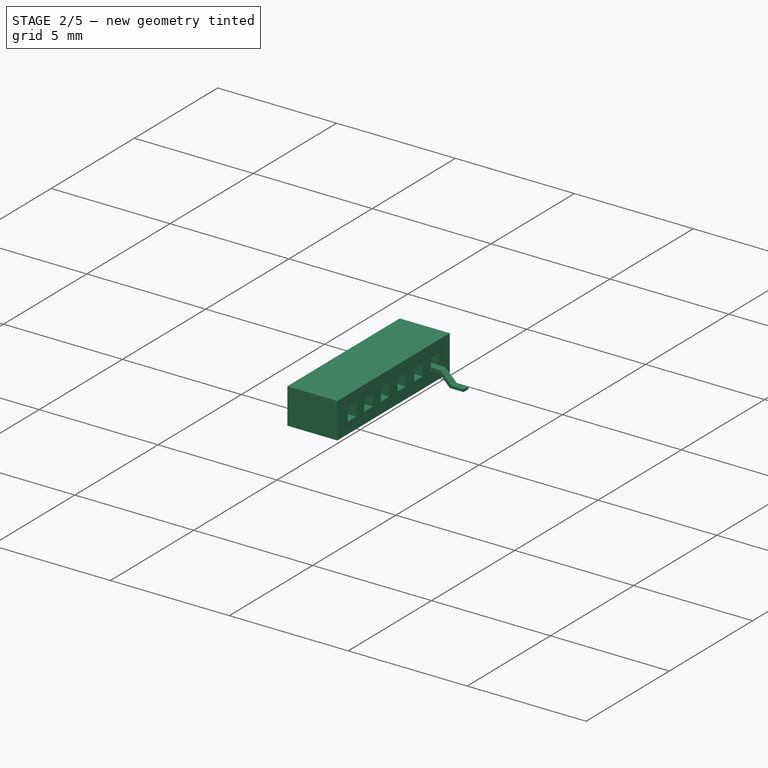
[diagram: stage 2 of 5 — iso view after this stage's code; geometry added in this stage tinted green]
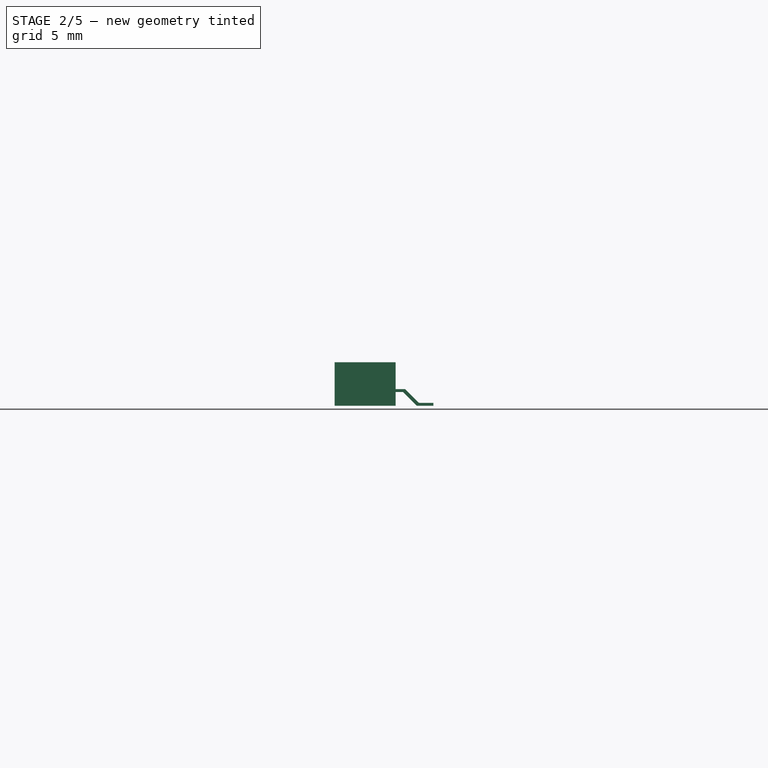
[diagram: stage 2 of 5 — front view after this stage's code; geometry added in this stage tinted green]
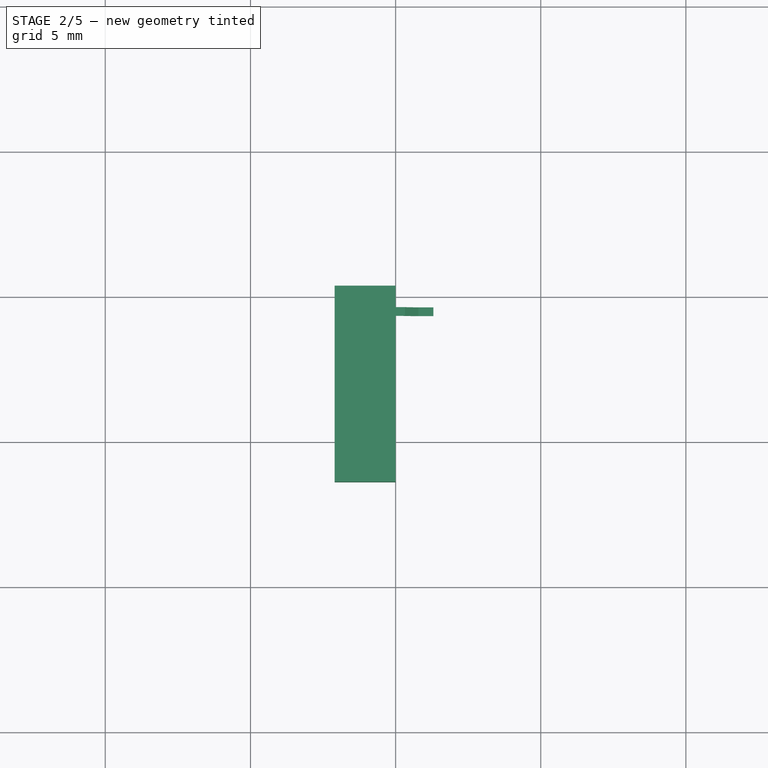
[diagram: stage 2 of 5 — top view after this stage's code; geometry added in this stage tinted green]
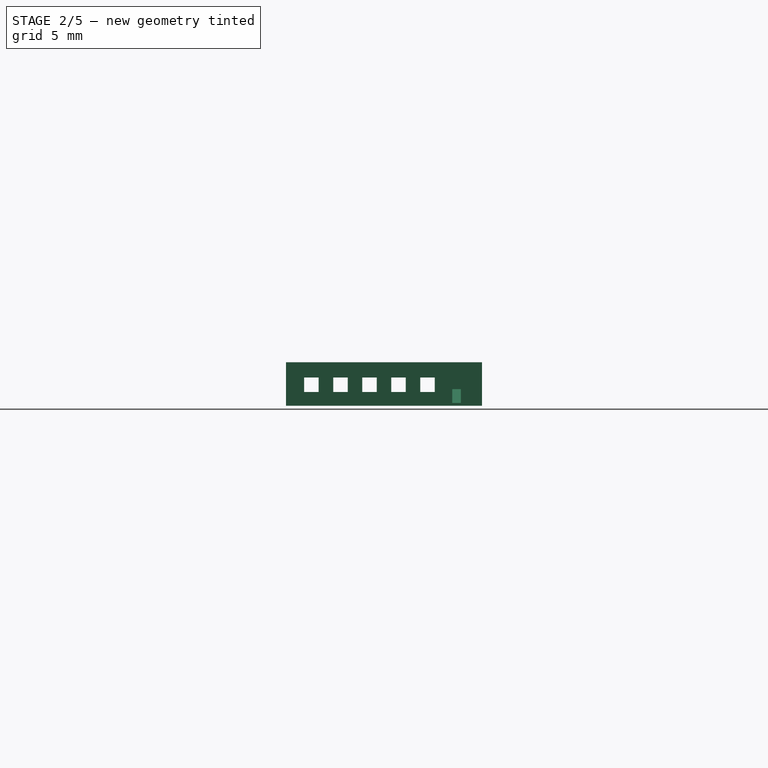
[diagram: stage 2 of 5 — right view after this stage's code; geometry added in this stage tinted green]
FEATURE [PartDesign::AdditiveBox] Box167
  AttacherType = Attacher::AttachEngine3D
  AttachmentOffset = pos=(-2,4.25,0.475) rot=(0,0,1;0rad)
  Height = 0.5
  Length = 1.2
  MapMode = 5
  Placement = pos=(-2,4.25,0.475) rot=(0,0,1;0rad)
  Support = -> [XY_Plane072]
  Width = 0.5
FEATURE [PartDesign::AdditiveBox] Box169
  AttacherType = Attacher::AttachEngine3D
  AttachmentOffset = pos=(-0.8,4.35,0.475) rot=(0,0,1;0rad)
  BaseFeature = -> Box167
  Height = 0.1
  Length = 1.5
  MapMode = 5
  Placement = pos=(-0.8,4.35,0.475) rot=(0,0,1;0rad)
  Support = -> [XY_Plane072]
  Width = 0.3
FEATURE [PartDesign::AdditiveBox] Box173
  AttacherType = Attacher::AttachEngine3D
  AttachmentOffset = pos=(0,4.35,0) rot=(0,0,1;0rad)
  BaseFeature = -> Box169
  Height = 0.575
  Length = 1.3
  MapMode = 5
  Placement = pos=(0,4.35,0) rot=(0,0,1;0rad)
  Support = -> [XY_Plane072]
  Width = 0.3
FEATURE [PartDesign::SubtractiveBox] Box171
  AttacherType = Attacher::AttachEngine3D
  AttachmentOffset = pos=(0,4.35,0) rot=(0,0,1;0rad)
  BaseFeature = -> Box173
  Height = 0.475
  Length = 0.25
  MapMode = 5
  Placement = pos=(0,4.35,0) rot=(0,0,1;0rad)
  Support = -> [XY_Plane072]
  Width = 0.3
FEATURE [PartDesign::SubtractiveBox] Box170
  AttacherType = Attacher::AttachEngine3D
  AttachmentOffset = pos=(0.8,4.35,0.1) rot=(0,0,1;0rad)
  BaseFeature = -> Box171
  Height = 0.5
  Length = 0.5
  MapMode = 5
  Placement = pos=(0.8,4.35,0.1) rot=(0,0,1;0rad)
  Support = -> [XY_Plane072]
  Width = 0.3
FEATURE [PartDesign::SubtractiveBox] Box168
  AttacherType = Attacher::AttachEngine3D
  AttachmentOffset = pos=(0.8,4.35,0.1) rot=(0,-1,0;0.785398rad)
  BaseFeature = -> Box170
  Height = 0.75
  Length = 0.5
  MapMode = 5
  Placement = pos=(0.8,4.35,0.1) rot=(0,-1,0;0.785398rad)
  Support = -> [XY_Plane072]
  Width = 0.3
FEATURE [PartDesign::SubtractiveBox] Box174
  AttacherType = Attacher::AttachEngine3D
  AttachmentOffset = pos=(0.4975,4.35,-0.338) rot=(0,-1,0;0.785398rad)
  BaseFeature = -> Box168
  Height = 0.75
  Length = 0.4
  MapMode = 5
  Placement = pos=(0.4975,4.35,-0.338) rot=(0,-1,0;0.785398rad)
  Support = -> [XY_Plane072]
  Width = 0.3
FEATURE [PartDesign::Body] Body048  label="Leg006"
  Group = -> [Box167,Box169,Box173,Box171,Box170,Box168,Box174,Fillet033,Fillet034,Box172,Fillet035]
  Origin = -> Origin072
  Placement = pos=(0,-7.5,0) rot=(0,0,1;0rad)
  Tip = -> Fillet035
FEATURE [App::Part] Part008  label="Legs002"
  Group = -> [Body043,Body044,Body045,Body046,Body047,Body048]
  Origin = -> Origin071
  Placement = pos=(0,0.5,0) rot=(0,0,1;0rad)
FEATURE [App::Part] Part009  label="GCT_BC075-06-1"
  Group = -> [Part008,Body042]
  Origin = -> Origin073
  Placement = pos=(57.15,1.7,0) rot=(0,0,1;1.5708rad)
FEATURE [PartDesign::AdditiveBox] Box176
  AttacherType = Attacher::AttachEngine3D
  AttachmentOffset = pos=(-2.1,-1.375,0) rot=(0,0,1;0rad)
  Height = 1.5
  Length = 2.1
  MapMode = 5
  Placement = pos=(-2.1,-1.375,0) rot=(0,0,1;0rad)
  Support = -> [XY_Plane074]
  Width = 6.75
FEATURE [PartDesign::SubtractiveBox] Box177
  AttacherType = Attacher::AttachEngine3D
  AttachmentOffset = pos=(-2.2,4.25,0.475) rot=(0,0,1;0rad)
  BaseFeature = -> Box176
  Height = 0.5
  Length = 3.5
  MapMode = 5
  Placement = pos=(-2.2,4.25,0.475) rot=(0,0,1;0rad)
  Support = -> [XY_Plane074]
  Width = 0.5
FEATURE [PartDesign::SubtractiveBox] Box178
  AttacherType = Attacher::AttachEngine3D
  AttachmentOffset = pos=(-2.5,3.25,0.475) rot=(0,0,1;0rad)
  BaseFeature = -> Box177
  Height = 0.5
  Length = 3.5
  MapMode = 5
  Placement = pos=(-2.5,3.25,0.475) rot=(0,0,1;0rad)
  Support = -> [XY_Plane074]
  Width = 0.5
FEATURE [PartDesign::SubtractiveBox] Box179
  AttacherType = Attacher::AttachEngine3D
  AttachmentOffset = pos=(-2.5,2.25,0.475) rot=(0,0,1;0rad)
  BaseFeature = -> Box178
  Height = 0.5
  Length = 3
  MapMode = 5
  Placement = pos=(-2.5,2.25,0.475) rot=(0,0,1;0rad)
  Support = -> [XY_Plane074]
  Width = 0.5
FEATURE [PartDesign::SubtractiveBox] Box180
  AttacherType = Attacher::AttachEngine3D
  AttachmentOffset = pos=(-2.5,1.25,0.475) rot=(0,0,1;0rad)
  BaseFeature = -> Box179
  Height = 0.5
  Length = 3.5
  MapMode = 5
  Placement = pos=(-2.5,1.25,0.475) rot=(0,0,1;0rad)
  Support = -> [XY_Plane074]
  Width = 0.5
FEATURE [PartDesign::SubtractiveBox] Box181
  AttacherType = Attacher::AttachEngine3D
  AttachmentOffset = pos=(-2.5,0.25,0.475) rot=(0,0,1;0rad)
  BaseFeature = -> Box180
  Height = 0.5
  Length = 3.5
  MapMode = 5
  Placement = pos=(-2.5,0.25,0.475) rot=(0,0,1;0rad)
  Support = -> [XY_Plane074]
  Width = 0.5
FEATURE [PartDesign::AdditiveBox] Box182
  AttacherType = Attacher::AttachEngine3D
  AttachmentOffset = pos=(-2,4.25,0.475) rot=(0,0,1;0rad)
  Height = 0.5
  Length = 1.2
  MapMode = 5
  Placement = pos=(-2,4.25,0.475) rot=(0,0,1;0rad)
  Support = -> [XY_Plane075]
  Width = 0.5
FEATURE [PartDesign::AdditiveBox] Box183
  AttacherType = Attacher::AttachEngine3D
  AttachmentOffset = pos=(-0.8,4.35,0.475) rot=(0,0,1;0rad)
  BaseFeature = -> Box182
  Height = 0.1
  Length = 1.5
  MapMode = 5
  Placement = pos=(-0.8,4.35,0.475) rot=(0,0,1;0rad)
  Support = -> [XY_Plane075]
  Width = 0.3
FEATURE [PartDesign::AdditiveBox] Box184
  AttacherType = Attacher::AttachEngine3D
  AttachmentOffset = pos=(0,4.35,0) rot=(0,0,1;0rad)
  BaseFeature = -> Box183
  Height = 0.575
  Length = 1.3
  MapMode = 5
  Placement = pos=(0,4.35,0) rot=(0,0,1;0rad)
  Support = -> [XY_Plane075]
  Width = 0.3
FEATURE [PartDesign::SubtractiveBox] Box185
  AttacherType = Attacher::AttachEngine3D
  AttachmentOffset = pos=(0,4.35,0) rot=(0,0,1;0rad)
  BaseFeature = -> Box184
  Height = 0.475
  Length = 0.25
  MapMode = 5
  Placement = pos=(0,4.35,0) rot=(0,0,1;0rad)
  Support = -> [XY_Plane075]
  Width = 0.3
FEATURE [PartDesign::SubtractiveBox] Box186
  AttacherType = Attacher::AttachEngine3D
  AttachmentOffset = pos=(0.8,4.35,0.1) rot=(0,0,1;0rad)
  BaseFeature = -> Box185
  Height = 0.5
  Length = 0.5
  MapMode = 5
  Placement = pos=(0.8,4.35,0.1) rot=(0,0,1;0rad)
  Support = -> [XY_Plane075]
  Width = 0.3
FEATURE [PartDesign::SubtractiveBox] Box187
  AttacherType = Attacher::AttachEngine3D
  AttachmentOffset = pos=(0.8,4.35,0.1) rot=(0,-1,0;0.785398rad)
  BaseFeature = -> Box186
  Height = 0.75
  Length = 0.5
  MapMode = 5
  Placement = pos=(0.8,4.35,0.1) rot=(0,-1,0;0.785398rad)
  Support = -> [XY_Plane075]
  Width = 0.3
FEATURE [PartDesign::SubtractiveBox] Box188
  AttacherType = Attacher::AttachEngine3D
  AttachmentOffset = pos=(0.4975,4.35,-0.338) rot=(0,-1,0;0.785398rad)
  BaseFeature = -> Box187
  Height = 0.75
  Length = 0.4
  MapMode = 5
  Placement = pos=(0.4975,4.35,-0.338) rot=(0,-1,0;0.785398rad)
  Support = -> [XY_Plane075]
  Width = 0.3
FEATURE [PartDesign::AdditiveBox] Box190
  AttacherType = Attacher::AttachEngine3D
  AttachmentOffset = pos=(-2,4.25,0.475) rot=(0,0,1;0rad)
  Height = 0.5
  Length = 1.2
  MapMode = 5
  Placement = pos=(-2,4.25,0.475) rot=(0,0,1;0rad)
  Support = -> [XY_Plane076]
  Width = 0.5
FEATURE [PartDesign::AdditiveBox] Box192
  AttacherType = Attacher::AttachEngine3D
  AttachmentOffset = pos=(-0.8,4.35,0.475) rot=(0,0,1;0rad)
  BaseFeature = -> Box190
  Height = 0.1
  Length = 1.5
  MapMode = 5
  Placement = pos=(-0.8,4.35,0.475) rot=(0,0,1;0rad)
  Support = -> [XY_Plane076]
  Width = 0.3
FEATURE [PartDesign::AdditiveBox] Box193
  AttacherType = Attacher::AttachEngine3D
  AttachmentOffset = pos=(0,4.35,0) rot=(0,0,1;0rad)
  BaseFeature = -> Box192
  Height = 0.575
  Length = 1.3
  MapMode = 5
  Placement = pos=(0,4.35,0) rot=(0,0,1;0rad)
  Support = -> [XY_Plane076]
  Width = 0.3
FEATURE [PartDesign::SubtractiveBox] Box191
  AttacherType = Attacher::AttachEngine3D
  AttachmentOffset = pos=(0,4.35,0) rot=(0,0,1;0rad)
  BaseFeature = -> Box193
  Height = 0.475
  Length = 0.25
  MapMode = 5
  Placement = pos=(0,4.35,0) rot=(0,0,1;0rad)
  Support = -> [XY_Plane076]
  Width = 0.3
FEATURE [PartDesign::SubtractiveBox] Box194
  AttacherType = Attacher::AttachEngine3D
  AttachmentOffset = pos=(0.8,4.35,0.1) rot=(0,0,1;0rad)
  BaseFeature = -> Box191
  Height = 0.5
  Length = 0.5
  MapMode = 5
  Placement = pos=(0.8,4.35,0.1) rot=(0,0,1;0rad)
  Support = -> [XY_Plane076]
  Width = 0.3
FEATURE [PartDesign::SubtractiveBox] Box195
  AttacherType = Attacher::AttachEngine3D
  AttachmentOffset = pos=(0.8,4.35,0.1) rot=(0,-1,0;0.785398rad)
  BaseFeature = -> Box194
  Height = 0.75
  Length = 0.5
  MapMode = 5
  Placement = pos=(0.8,4.35,0.1) rot=(0,-1,0;0.785398rad)
  Support = -> [XY_Plane076]
  Width = 0.3
FEATURE [PartDesign::SubtractiveBox] Box196
  AttacherType = Attacher::AttachEngine3D
  AttachmentOffset = pos=(0.4975,4.35,-0.338) rot=(0,-1,0;0.785398rad)
  BaseFeature = -> Box195
  Height = 0.75
  Length = 0.4
  MapMode = 5
  Placement = pos=(0.4975,4.35,-0.338) rot=(0,-1,0;0.785398rad)
  Support = -> [XY_Plane076]
  Width = 0.3
FEATURE [PartDesign::AdditiveBox] Box198
  AttacherType = Attacher::AttachEngine3D
  AttachmentOffset = pos=(-2,4.25,0.475) rot=(0,0,1;0rad)
  Height = 0.5
  Length = 1.2
  MapMode = 5
  Placement = pos=(-2,4.25,0.475) rot=(0,0,1;0rad)
  Support = -> [XY_Plane077]
  Width = 0.5
FEATURE [PartDesign::AdditiveBox] Box204
  AttacherType = Attacher::AttachEngine3D
  AttachmentOffset = pos=(-0.8,4.35,0.475) rot=(0,0,1;0rad)
  BaseFeature = -> Box198
  Height = 0.1
  Length = 1.5
  MapMode = 5
  Placement = pos=(-0.8,4.35,0.475) rot=(0,0,1;0rad)
  Support = -> [XY_Plane077]
  Width = 0.3
FEATURE [PartDesign::AdditiveBox] Box199
  AttacherType = Attacher::AttachEngine3D
  AttachmentOffset = pos=(0,4.35,0) rot=(0,0,1;0rad)
  BaseFeature = -> Box204
  Height = 0.575
  Length = 1.3
  MapMode = 5
  Placement = pos=(0,4.35,0) rot=(0,0,1;0rad)
  Support = -> [XY_Plane077]
  Width = 0.3
FEATURE [PartDesign::SubtractiveBox] Box203
  AttacherType = Attacher::AttachEngine3D
  AttachmentOffset = pos=(0,4.35,0) rot=(0,0,1;0rad)
  BaseFeature = -> Box199
  Height = 0.475
  Length = 0.25
  MapMode = 5
  Placement = pos=(0,4.35,0) rot=(0,0,1;0rad)
  Support = -> [XY_Plane077]
  Width = 0.3
FEATURE [PartDesign::SubtractiveBox] Box201
  AttacherType = Attacher::AttachEngine3D
  AttachmentOffset = pos=(0.8,4.35,0.1) rot=(0,0,1;0rad)
  BaseFeature = -> Box203
  Height = 0.5
  Length = 0.5
  MapMode = 5
  Placement = pos=(0.8,4.35,0.1) rot=(0,0,1;0rad)
  Support = -> [XY_Plane077]
  Width = 0.3
FEATURE [PartDesign::SubtractiveBox] Box202
  AttacherType = Attacher::AttachEngine3D
  AttachmentOffset = pos=(0.8,4.35,0.1) rot=(0,-1,0;0.785398rad)
  BaseFeature = -> Box201
  Height = 0.75
  Length = 0.5
  MapMode = 5
  Placement = pos=(0.8,4.35,0.1) rot=(0,-1,0;0.785398rad)
  Support = -> [XY_Plane077]
  Width = 0.3
FEATURE [PartDesign::SubtractiveBox] Box205
  AttacherType = Attacher::AttachEngine3D
  AttachmentOffset = pos=(0.4975,4.35,-0.338) rot=(0,-1,0;0.785398rad)
  BaseFeature = -> Box202
  Height = 0.75
  Length = 0.4
  MapMode = 5
  Placement = pos=(0.4975,4.35,-0.338) rot=(0,-1,0;0.785398rad)
  Support = -> [XY_Plane077]
  Width = 0.3
FEATURE [PartDesign::AdditiveBox] Box206
  AttacherType = Attacher::AttachEngine3D
  AttachmentOffset = pos=(-2,4.25,0.475) rot=(0,0,1;0rad)
  Height = 0.5
  Length = 1.2
  MapMode = 5
  Placement = pos=(-2,4.25,0.475) rot=(0,0,1;0rad)
  Support = -> [XY_Plane078]
  Width = 0.5
FEATURE [PartDesign::AdditiveBox] Box212
  AttacherType = Attacher::AttachEngine3D
  AttachmentOffset = pos=(-0.8,4.35,0.475) rot=(0,0,1;0rad)
  BaseFeature = -> Box206
  Height = 0.1
  Length = 1.5
  MapMode = 5
  Placement = pos=(-0.8,4.35,0.475) rot=(0,0,1;0rad)
  Support = -> [XY_Plane078]
  Width = 0.3
FEATURE [PartDesign::AdditiveBox] Box207
  AttacherType = Attacher::AttachEngine3D
  AttachmentOffset = pos=(0,4.35,0) rot=(0,0,1;0rad)
  BaseFeature = -> Box212
  Height = 0.575
  Length = 1.3
  MapMode = 5
  Placement = pos=(0,4.35,0) rot=(0,0,1;0rad)
  Support = -> [XY_Plane078]
  Width = 0.3
FEATURE [PartDesign::SubtractiveBox] Box211
  AttacherType = Attacher::AttachEngine3D
  AttachmentOffset = pos=(0,4.35,0) rot=(0,0,1;0rad)
  BaseFeature = -> Box207
  Height = 0.475
  Length = 0.25
  MapMode = 5
  Placement = pos=(0,4.35,0) rot=(0,0,1;0rad)
  Support = -> [XY_Plane078]
  Width = 0.3
FEATURE [PartDesign::SubtractiveBox] Box209
  AttacherType = Attacher::AttachEngine3D
  AttachmentOffset = pos=(0.8,4.35,0.1) rot=(0,0,1;0rad)
  BaseFeature = -> Box211
  Height = 0.5
  Length = 0.5
  MapMode = 5
  Placement = pos=(0.8,4.35,0.1) rot=(0,0,1;0rad)
  Support = -> [XY_Plane078]
  Width = 0.3
FEATURE [PartDesign::SubtractiveBox] Box210
  AttacherType = Attacher::AttachEngine3D
  AttachmentOffset = pos=(0.8,4.35,0.1) rot=(0,-1,0;0.785398rad)
  BaseFeature = -> Box209
  Height = 0.75
  Length = 0.5
  MapMode = 5
  Placement = pos=(0.8,4.35,0.1) rot=(0,-1,0;0.785398rad)
  Support = -> [XY_Plane078]
  Width = 0.3
FEATURE [PartDesign::SubtractiveBox] Box213
  AttacherType = Attacher::AttachEngine3D
  AttachmentOffset = pos=(0.4975,4.35,-0.338) rot=(0,-1,0;0.785398rad)
  BaseFeature = -> Box210
  Height = 0.75
  Length = 0.4
  MapMode = 5
  Placement = pos=(0.4975,4.35,-0.338) rot=(0,-1,0;0.785398rad)
  Support = -> [XY_Plane078]
  Width = 0.3
FEATURE [PartDesign::AdditiveBox] Box214
  AttacherType = Attacher::AttachEngine3D
  AttachmentOffset = pos=(-2,4.25,0.475) rot=(0,0,1;0rad)
  Height = 0.5
  Length = 1.2
  MapMode = 5
  Placement = pos=(-2,4.25,0.475) rot=(0,0,1;0rad)
  Support = -> [XY_Plane079]
  Width = 0.5
FEATURE [PartDesign::AdditiveBox] Box220
  AttacherType = Attacher::AttachEngine3D
  AttachmentOffset = pos=(-0.8,4.35,0.475) rot=(0,0,1;0rad)
  BaseFeature = -> Box214
  Height = 0.1
  Length = 1.5
  MapMode = 5
  Placement = pos=(-0.8,4.35,0.475) rot=(0,0,1;0rad)
  Support = -> [XY_Plane079]
  Width = 0.3
FEATURE [PartDesign::AdditiveBox] Box215
  AttacherType = Attacher::AttachEngine3D
  AttachmentOffset = pos=(0,4.35,0) rot=(0,0,1;0rad)
  BaseFeature = -> Box220
  Height = 0.575
  Length = 1.3
  MapMode = 5
  Placement = pos=(0,4.35,0) rot=(0,0,1;0rad)
  Support = -> [XY_Plane079]
  Width = 0.3
FEATURE [PartDesign::SubtractiveBox] Box219
  AttacherType = Attacher::AttachEngine3D
  AttachmentOffset = pos=(0,4.35,0) rot=(0,0,1;0rad)
  BaseFeature = -> Box215
  Height = 0.475
  Length = 0.25
  MapMode = 5
  Placement = pos=(0,4.35,0) rot=(0,0,1;0rad)
  Support = -> [XY_Plane079]
  Width = 0.3
FEATURE [PartDesign::SubtractiveBox] Box217
  AttacherType = Attacher::AttachEngine3D
  AttachmentOffset = pos=(0.8,4.35,0.1) rot=(0,0,1;0rad)
  BaseFeature = -> Box219
  Height = 0.5
  Length = 0.5
  MapMode = 5
  Placement = pos=(0.8,4.35,0.1) rot=(0,0,1;0rad)
  Support = -> [XY_Plane079]
  Width = 0.3
FEATURE [PartDesign::SubtractiveBox] Box218
  AttacherType = Attacher::AttachEngine3D
  AttachmentOffset = pos=(0.8,4.35,0.1) rot=(0,-1,0;0.785398rad)
  BaseFeature = -> Box217
  Height = 0.75
  Length = 0.5
  MapMode = 5
  Placement = pos=(0.8,4.35,0.1) rot=(0,-1,0;0.785398rad)
  Support = -> [XY_Plane079]
  Width = 0.3
FEATURE [PartDesign::SubtractiveBox] Box221
  AttacherType = Attacher::AttachEngine3D
  AttachmentOffset = pos=(0.4975,4.35,-0.338) rot=(0,-1,0;0.785398rad)
  BaseFeature = -> Box218
  Height = 0.75
  Length = 0.4
  MapMode = 5
  Placement = pos=(0.4975,4.35,-0.338) rot=(0,-1,0;0.785398rad)
  Support = -> [XY_Plane079]
  Width = 0.3
FEATURE [PartDesign::AdditiveBox] Box222
  AttacherType = Attacher::AttachEngine3D
  AttachmentOffset = pos=(-2,4.25,0.475) rot=(0,0,1;0rad)
  Height = 0.5
  Length = 1.2
  MapMode = 5
  Placement = pos=(-2,4.25,0.475) rot=(0,0,1;0rad)
  Support = -> [XY_Plane081]
  Width = 0.5
FEATURE [PartDesign::AdditiveBox] Box224
  AttacherType = Attacher::AttachEngine3D
  AttachmentOffset = pos=(-0.8,4.35,0.475) rot=(0,0,1;0rad)
  BaseFeature = -> Box222
  Height = 0.1
  Length = 1.5
  MapMode = 5
  Placement = pos=(-0.8,4.35,0.475) rot=(0,0,1;0rad)
  Support = -> [XY_Plane081]
  Width = 0.3
FEATURE [PartDesign::AdditiveBox] Box228
  AttacherType = Attacher::AttachEngine3D
  AttachmentOffset = pos=(0,4.35,0) rot=(0,0,1;0rad)
  BaseFeature = -> Box224
  Height = 0.575
  Length = 1.3
  MapMode = 5
  Placement = pos=(0,4.35,0) rot=(0,0,1;0rad)
  Support = -> [XY_Plane081]
  Width = 0.3
FEATURE [PartDesign::SubtractiveBox] Box226
  AttacherType = Attacher::AttachEngine3D
  AttachmentOffset = pos=(0,4.35,0) rot=(0,0,1;0rad)
  BaseFeature = -> Box228
  Height = 0.475
  Length = 0.25
  MapMode = 5
  Placement = pos=(0,4.35,0) rot=(0,0,1;0rad)
  Support = -> [XY_Plane081]
  Width = 0.3
FEATURE [PartDesign::SubtractiveBox] Box225
  AttacherType = Attacher::AttachEngine3D
  AttachmentOffset = pos=(0.8,4.35,0.1) rot=(0,0,1;0rad)
  BaseFeature = -> Box226
  Height = 0.5
  Length = 0.5
  MapMode = 5
  Placement = pos=(0.8,4.35,0.1) rot=(0,0,1;0rad)
  Support = -> [XY_Plane081]
  Width = 0.3
FEATURE [PartDesign::SubtractiveBox] Box223
  AttacherType = Attacher::AttachEngine3D
  AttachmentOffset = pos=(0.8,4.35,0.1) rot=(0,-1,0;0.785398rad)
  BaseFeature = -> Box225
  Height = 0.75
  Length = 0.5
  MapMode = 5
  Placement = pos=(0.8,4.35,0.1) rot=(0,-1,0;0.785398rad)
  Support = -> [XY_Plane081]
  Width = 0.3
FEATURE [PartDesign::SubtractiveBox] Box229
  AttacherType = Attacher::AttachEngine3D
  AttachmentOffset = pos=(0.4975,4.35,-0.338) rot=(0,-1,0;0.785398rad)
  BaseFeature = -> Box223
  Height = 0.75
  Length = 0.4
  MapMode = 5
  Placement = pos=(0.4975,4.35,-0.338) rot=(0,-1,0;0.785398rad)
  Support = -> [XY_Plane081]
  Width = 0.3
FEATURE [PartDesign::SubtractiveBox] Box230
  AttacherType = Attacher::AttachEngine3D
  AttachmentOffset = pos=(-3,-0.75,0.475) rot=(0,0,1;0rad)
  BaseFeature = -> Box181
  Height = 0.5
  Length = 3.5
  MapMode = 5
  Placement = pos=(-3,-0.75,0.475) rot=(0,0,1;0rad)
  Support = -> [XY_Plane074]
  Width = 0.5
FEATURE [PartDesign::Chamfer] Chamfer063
  Angle = 45
  Base = -> Box230 [Edge8,Edge6,Edge5,Edge7,Edge10,Edge12,Edge11,Edge9,Edge14,Edge16,Edge13,Edge15,Edge22,Edge24,Edge21,Edge23,Edge26,Edge28,Edge25,Edge27,Edge18,Edge19,Edge17,Edge20]
  BaseFeature = -> Box230
  ChamferType = 0
  FlipDirection = false
  Placement = pos=(-3,-0.75,0.475) rot=(0,0,1;0rad)
  Size = 0.1
  Size2 = 1
  SupportTransform = false
  UseAllEdges = false
FEATURE [PartDesign::Body] Body049  label="Plastic_casing001"
  Group = -> [Box176,Box177,Box178,Box179,Box180,Box181,Box230,Chamfer063]
  Origin = -> Origin074
  Placement = pos=(0,-2,0) rot=(0,0,1;0rad)
  Tip = -> Chamfer063
FEATURE [PartDesign::Fillet] Fillet036
  Base = -> Box188 [Edge34]
  BaseFeature = -> Box188
  Placement = pos=(0.4975,4.35,-0.338) rot=(0,-1,0;0.785398rad)
  Radius = 0.1
  SupportTransform = false
  UseAllEdges = false
FEATURE [PartDesign::Fillet] Fillet037
  Base = -> Fillet036 [Edge25]
  BaseFeature = -> Fillet036
  Placement = pos=(0.4975,4.35,-0.338) rot=(0,-1,0;0.785398rad)
  Radius = 0.1
  SupportTransform = false
  UseAllEdges = false
FEATURE [PartDesign::SubtractiveBox] Box189
  AttacherType = Attacher::AttachEngine3D
  AttachmentOffset = pos=(-2,4.35,0.6) rot=(0,0,1;0rad)
  BaseFeature = -> Fillet037
  Height = 0.25
  Length = 1.5
  MapMode = 5
  Placement = pos=(-2,4.35,0.6) rot=(0,0,1;0rad)
  Support = -> [XY_Plane075]
  Width = 0.3
FEATURE [PartDesign::Fillet] Fillet038
  Base = -> Box196 [Edge34]
  BaseFeature = -> Box196
  Placement = pos=(0.4975,4.35,-0.338) rot=(0,-1,0;0.785398rad)
  Radius = 0.1
  SupportTransform = false
  UseAllEdges = false
FEATURE [PartDesign::Fillet] Fillet039
  Base = -> Fillet038 [Edge25]
  BaseFeature = -> Fillet038
  Placement = pos=(0.4975,4.35,-0.338) rot=(0,-1,0;0.785398rad)
  Radius = 0.1
  SupportTransform = false
  UseAllEdges = false
FEATURE [PartDesign::SubtractiveBox] Box197
  AttacherType = Attacher::AttachEngine3D
  AttachmentOffset = pos=(-2,4.35,0.6) rot=(0,0,1;0rad)
  BaseFeature = -> Fillet039
  Height = 0.25
  Length = 1.5
  MapMode = 5
  Placement = pos=(-2,4.35,0.6) rot=(0,0,1;0rad)
  Support = -> [XY_Plane076]
  Width = 0.3
FEATURE [PartDesign::Fillet] Fillet041
  Base = -> Box205 [Edge34]
  BaseFeature = -> Box205
  Placement = pos=(0.4975,4.35,-0.338) rot=(0,-1,0;0.785398rad)
  Radius = 0.1
  SupportTransform = false
  UseAllEdges = false
FEATURE [PartDesign::Fillet] Fillet040
  Base = -> Fillet041 [Edge25]
  BaseFeature = -> Fillet041
  Placement = pos=(0.4975,4.35,-0.338) rot=(0,-1,0;0.785398rad)
  Radius = 0.1
  SupportTransform = false
  UseAllEdges = false
FEATURE [PartDesign::SubtractiveBox] Box200
  AttacherType = Attacher::AttachEngine3D
  AttachmentOffset = pos=(-2,4.35,0.6) rot=(0,0,1;0rad)
  BaseFeature = -> Fillet040
  Height = 0.25
  Length = 1.5
  MapMode = 5
  Placement = pos=(-2,4.35,0.6) rot=(0,0,1;0rad)
  Support = -> [XY_Plane077]
  Width = 0.3
FEATURE [PartDesign::Fillet] Fillet043
  Base = -> Box213 [Edge34]
  BaseFeature = -> Box213
  Placement = pos=(0.4975,4.35,-0.338) rot=(0,-1,0;0.785398rad)
  Radius = 0.1
  SupportTransform = false
  UseAllEdges = false
FEATURE [PartDesign::Fillet] Fillet042
  Base = -> Fillet043 [Edge25]
  BaseFeature = -> Fillet043
  Placement = pos=(0.4975,4.35,-0.338) rot=(0,-1,0;0.785398rad)
  Radius = 0.1
  SupportTransform = false
  UseAllEdges = false
FEATURE [PartDesign::SubtractiveBox] Box208
  AttacherType = Attacher::AttachEngine3D
  AttachmentOffset = pos=(-2,4.35,0.6) rot=(0,0,1;0rad)
  BaseFeature = -> Fillet042
  Height = 0.25
  Length = 1.5
  MapMode = 5
  Placement = pos=(-2,4.35,0.6) rot=(0,0,1;0rad)
  Support = -> [XY_Plane078]
  Width = 0.3
FEATURE [PartDesign::Fillet] Fillet045
  Base = -> Box221 [Edge34]
  BaseFeature = -> Box221
  Placement = pos=(0.4975,4.35,-0.338) rot=(0,-1,0;0.785398rad)
  Radius = 0.1
  SupportTransform = false
  UseAllEdges = false
FEATURE [PartDesign::Fillet] Fillet044
  Base = -> Fillet045 [Edge25]
  BaseFeature = -> Fillet045
  Placement = pos=(0.4975,4.35,-0.338) rot=(0,-1,0;0.785398rad)
  Radius = 0.1
  SupportTransform = false
  UseAllEdges = false
FEATURE [PartDesign::SubtractiveBox] Box216
  AttacherType = Attacher::AttachEngine3D
  AttachmentOffset = pos=(-2,4.35,0.6) rot=(0,0,1;0rad)
  BaseFeature = -> Fillet044
  Height = 0.25
  Length = 1.5
  MapMode = 5
  Placement = pos=(-2,4.35,0.6) rot=(0,0,1;0rad)
  Support = -> [XY_Plane079]
  Width = 0.3
FEATURE [PartDesign::Fillet] Fillet046
  Base = -> Box189 [Edge26]
  BaseFeature = -> Box189
  Placement = pos=(-2,4.35,0.6) rot=(0,0,1;0rad)
  Radius = 0.1
  SupportTransform = false
  UseAllEdges = false
FEATURE [PartDesign::Body] Body050  label="Leg007"
  Group = -> [Box182,Box183,Box184,Box185,Box186,Box187,Box188,Fillet036,Fillet037,Box189,Fillet046]
  Origin = -> Origin075
  Placement = pos=(0,-2.5,0) rot=(0,0,1;0rad)
  Tip = -> Fillet046
FEATURE [PartDesign::Fillet] Fillet047
  Base = -> Box197 [Edge26]
  BaseFeature = -> Box197
  Placement = pos=(-2,4.35,0.6) rot=(0,0,1;0rad)
  Radius = 0.1
  SupportTransform = false
  UseAllEdges = false
FEATURE [PartDesign::Body] Body051  label="Leg008"
  Group = -> [Box190,Box192,Box193,Box191,Box194,Box195,Box196,Fillet038,Fillet039,Box197,Fillet047]
  Origin = -> Origin076
  Placement = pos=(0,-3.5,0) rot=(0,0,1;0rad)
  Tip = -> Fillet047
FEATURE [PartDesign::Fillet] Fillet048
  Base = -> Box200 [Edge26]
  BaseFeature = -> Box200
  Placement = pos=(-2,4.35,0.6) rot=(0,0,1;0rad)
  Radius = 0.1
  SupportTransform = false
  UseAllEdges = false
FEATURE [PartDesign::Body] Body052  label="Leg009"
  Group = -> [Box198,Box204,Box199,Box203,Box201,Box202,Box205,Fillet041,Fillet040,Box200,Fillet048]
  Origin = -> Origin077
  Placement = pos=(0,-4.5,0) rot=(0,0,1;0rad)
  Tip = -> Fillet048
FEATURE [PartDesign::Fillet] Fillet049
  Base = -> Box208 [Edge26]
  BaseFeature = -> Box208
  Placement = pos=(-2,4.35,0.6) rot=(0,0,1;0rad)
  Radius = 0.1
  SupportTransform = false
  UseAllEdges = false
FEATURE [PartDesign::Body] Body053  label="Leg010"
  Group = -> [Box206,Box212,Box207,Box211,Box209,Box210,Box213,Fillet043,Fillet042,Box208,Fillet049]
  Origin = -> Origin078
  Placement = pos=(0,-5.5,0) rot=(0,0,1;0rad)
  Tip = -> Fillet049
FEATURE [PartDesign::Fillet] Fillet050
  Base = -> Box216 [Edge26]
  BaseFeature = -> Box216
  Placement = pos=(-2,4.35,0.6) rot=(0,0,1;0rad)
  Radius = 0.1
  SupportTransform = false
  UseAllEdges = false
FEATURE [PartDesign::Body] Body054  label="Leg011"
  Group = -> [Box214,Box220,Box215,Box219,Box217,Box218,Box221,Fillet045,Fillet044,Box216,Fillet050]
  Origin = -> Origin079
  Placement = pos=(0,-6.5,0) rot=(0,0,1;0rad)
  Tip = -> Fillet050
FEATURE [PartDesign::Fillet] Fillet051
  Base = -> Box229 [Edge34]
  BaseFeature = -> Box229
  Placement = pos=(0.4975,4.35,-0.338) rot=(0,-1,0;0.785398rad)
  Radius = 0.1
  SupportTransform = false
  UseAllEdges = false
FEATURE [PartDesign::Fillet] Fillet052
  Base = -> Fillet051 [Edge25]
  BaseFeature = -> Fillet051
  Placement = pos=(0.4975,4.35,-0.338) rot=(0,-1,0;0.785398rad)
  Radius = 0.1
  SupportTransform = false
  UseAllEdges = false
FEATURE [PartDesign::SubtractiveBox] Box227
  AttacherType = Attacher::AttachEngine3D
  AttachmentOffset = pos=(-2,4.35,0.6) rot=(0,0,1;0rad)
  BaseFeature = -> Fillet052
  Height = 0.25
  Length = 1.5
  MapMode = 5
  Placement = pos=(-2,4.35,0.6) rot=(0,0,1;0rad)
  Support = -> [XY_Plane081]
  Width = 0.3
FEATURE [PartDesign::Fillet] Fillet053
  Base = -> Box227 [Edge26]
  BaseFeature = -> Box227
  Placement = pos=(-2,4.35,0.6) rot=(0,0,1;0rad)
  Radius = 0.1
  SupportTransform = false
  UseAllEdges = false
FEATURE [PartDesign::Body] Body055  label="Leg012"
  Group = -> [Box222,Box224,Box228,Box226,Box225,Box223,Box229,Fillet051,Fillet052,Box227,Fillet053]
  Origin = -> Origin081
  Placement = pos=(0,-7.5,0) rot=(0,0,1;0rad)
  Tip = -> Fillet053
FEATURE [App::Part] Part010  label="Legs003"
  Group = -> [Body050,Body051,Body052,Body053,Body054,Body055]
  Origin = -> Origin080
  Placement = pos=(0,0.5,0) rot=(0,0,1;0rad)
FEATURE [App::Part] Part011  label="GCT_BC075-06-2"
  Group = -> [Part010,Body049]
  Origin = -> Origin082
  Placement = pos=(67.95,1.7,0) rot=(0,0,1;1.5708rad)
FEATURE [PartDesign::AdditiveBox] Box231
  AttacherType = Attacher::AttachEngine3D
  AttachmentOffset = pos=(-2.1,-1.375,0) rot=(0,0,1;0rad)
  Height = 1.5
  Length = 2.1
  MapMode = 5
  Placement = pos=(-2.1,-1.375,0) rot=(0,0,1;0rad)
  Support = -> [XY_Plane083]
  Width = 6.75
FEATURE [PartDesign::SubtractiveBox] Box232
  AttacherType = Attacher::AttachEngine3D
  AttachmentOffset = pos=(-2.2,4.25,0.475) rot=(0,0,1;0rad)
  BaseFeature = -> Box231
  Height = 0.5
  Length = 3.5
  MapMode = 5
  Placement = pos=(-2.2,4.25,0.475) rot=(0,0,1;0rad)
  Support = -> [XY_Plane083]
  Width = 0.5
FEATURE [PartDesign::SubtractiveBox] Box233
  AttacherType = Attacher::AttachEngine3D
  AttachmentOffset = pos=(-2.5,3.25,0.475) rot=(0,0,1;0rad)
  BaseFeature = -> Box232
  Height = 0.5
  Length = 3.5
  MapMode = 5
  Placement = pos=(-2.5,3.25,0.475) rot=(0,0,1;0rad)
  Support = -> [XY_Plane083]
  Width = 0.5
FEATURE [PartDesign::SubtractiveBox] Box234
  AttacherType = Attacher::AttachEngine3D
  AttachmentOffset = pos=(-2.5,2.25,0.475) rot=(0,0,1;0rad)
  BaseFeature = -> Box233
  Height = 0.5
  Length = 3
  MapMode = 5
  Placement = pos=(-2.5,2.25,0.475) rot=(0,0,1;0rad)
  Support = -> [XY_Plane083]
  Width = 0.5
FEATURE [PartDesign::SubtractiveBox] Box235
  AttacherType = Attacher::AttachEngine3D
  AttachmentOffset = pos=(-2.5,1.25,0.475) rot=(0,0,1;0rad)
  BaseFeature = -> Box234
  Height = 0.5
  Length = 3.5
  MapMode = 5
  Placement = pos=(-2.5,1.25,0.475) rot=(0,0,1;0rad)
  Support = -> [XY_Plane083]
  Width = 0.5
FEATURE [PartDesign::SubtractiveBox] Box236
  AttacherType = Attacher::AttachEngine3D
  AttachmentOffset = pos=(-2.5,0.25,0.475) rot=(0,0,1;0rad)
  BaseFeature = -> Box235
  Height = 0.5
  Length = 3.5
  MapMode = 5
  Placement = pos=(-2.5,0.25,0.475) rot=(0,0,1;0rad)
  Support = -> [XY_Plane083]
  Width = 0.5
FEATURE [PartDesign::AdditiveBox] Box237
  AttacherType = Attacher::AttachEngine3D
  AttachmentOffset = pos=(-2,4.25,0.475) rot=(0,0,1;0rad)
  Height = 0.5
  Length = 1.2
  MapMode = 5
  Placement = pos=(-2,4.25,0.475) rot=(0,0,1;0rad)
  Support = -> [XY_Plane084]
  Width = 0.5
FEATURE [PartDesign::AdditiveBox] Box238
  AttacherType = Attacher::AttachEngine3D
  AttachmentOffset = pos=(-0.8,4.35,0.475) rot=(0,0,1;0rad)
  BaseFeature = -> Box237
  Height = 0.1
  Length = 1.5
  MapMode = 5
  Placement = pos=(-0.8,4.35,0.475) rot=(0,0,1;0rad)
  Support = -> [XY_Plane084]
  Width = 0.3
FEATURE [PartDesign::AdditiveBox] Box239
  AttacherType = Attacher::AttachEngine3D
  AttachmentOffset = pos=(0,4.35,0) rot=(0,0,1;0rad)
  BaseFeature = -> Box238
  Height = 0.575
  Length = 1.3
  MapMode = 5
  Placement = pos=(0,4.35,0) rot=(0,0,1;0rad)
  Support = -> [XY_Plane084]
  Width = 0.3
FEATURE [PartDesign::SubtractiveBox] Box240
  AttacherType = Attacher::AttachEngine3D
  AttachmentOffset = pos=(0,4.35,0) rot=(0,0,1;0rad)
  BaseFeature = -> Box239
  Height = 0.475
  Length = 0.25
  MapMode = 5
  Placement = pos=(0,4.35,0) rot=(0,0,1;0rad)
  Support = -> [XY_Plane084]
  Width = 0.3
FEATURE [PartDesign::SubtractiveBox] Box241
  AttacherType = Attacher::AttachEngine3D
  AttachmentOffset = pos=(0.8,4.35,0.1) rot=(0,0,1;0rad)
  BaseFeature = -> Box240
  Height = 0.5
  Length = 0.5
  MapMode = 5
  Placement = pos=(0.8,4.35,0.1) rot=(0,0,1;0rad)
  Support = -> [XY_Plane084]
  Width = 0.3
FEATURE [PartDesign::SubtractiveBox] Box242
  AttacherType = Attacher::AttachEngine3D
  AttachmentOffset = pos=(0.8,4.35,0.1) rot=(0,-1,0;0.785398rad)
  BaseFeature = -> Box241
  Height = 0.75
  Length = 0.5
  MapMode = 5
  Placement = pos=(0.8,4.35,0.1) rot=(0,-1,0;0.785398rad)
  Support = -> [XY_Plane084]
  Width = 0.3
FEATURE [PartDesign::SubtractiveBox] Box243
  AttacherType = Attacher::AttachEngine3D
  AttachmentOffset = pos=(0.4975,4.35,-0.338) rot=(0,-1,0;0.785398rad)
  BaseFeature = -> Box242
  Height = 0.75
  Length = 0.4
  MapMode = 5
  Placement = pos=(0.4975,4.35,-0.338) rot=(0,-1,0;0.785398rad)
  Support = -> [XY_Plane084]
  Width = 0.3
FEATURE [PartDesign::AdditiveBox] Box245
  AttacherType = Attacher::AttachEngine3D
  AttachmentOffset = pos=(-2,4.25,0.475) rot=(0,0,1;0rad)
  Height = 0.5
  Length = 1.2
  MapMode = 5
  Placement = pos=(-2,4.25,0.475) rot=(0,0,1;0rad)
  Support = -> [XY_Plane085]
  Width = 0.5
FEATURE [PartDesign::AdditiveBox] Box247
  AttacherType = Attacher::AttachEngine3D
  AttachmentOffset = pos=(-0.8,4.35,0.475) rot=(0,0,1;0rad)
  BaseFeature = -> Box245
  Height = 0.1
  Length = 1.5
  MapMode = 5
  Placement = pos=(-0.8,4.35,0.475) rot=(0,0,1;0rad)
  Support = -> [XY_Plane085]
  Width = 0.3
FEATURE [PartDesign::AdditiveBox] Box248
  AttacherType = Attacher::AttachEngine3D
  AttachmentOffset = pos=(0,4.35,0) rot=(0,0,1;0rad)
  BaseFeature = -> Box247
  Height = 0.575
  Length = 1.3
  MapMode = 5
  Placement = pos=(0,4.35,0) rot=(0,0,1;0rad)
  Support = -> [XY_Plane085]
  Width = 0.3
FEATURE [PartDesign::SubtractiveBox] Box246
  AttacherType = Attacher::AttachEngine3D
  AttachmentOffset = pos=(0,4.35,0) rot=(0,0,1;0rad)
  BaseFeature = -> Box248
  Height = 0.475
  Length = 0.25
  MapMode = 5
  Placement = pos=(0,4.35,0) rot=(0,0,1;0rad)
  Support = -> [XY_Plane085]
  Width = 0.3
FEATURE [PartDesign::SubtractiveBox] Box249
  AttacherType = Attacher::AttachEngine3D
  AttachmentOffset = pos=(0.8,4.35,0.1) rot=(0,0,1;0rad)
  BaseFeature = -> Box246
  Height = 0.5
  Length = 0.5
  MapMode = 5
  Placement = pos=(0.8,4.35,0.1) rot=(0,0,1;0rad)
  Support = -> [XY_Plane085]
  Width = 0.3
FEATURE [PartDesign::SubtractiveBox] Box250
  AttacherType = Attacher::AttachEngine3D
  AttachmentOffset = pos=(0.8,4.35,0.1) rot=(0,-1,0;0.785398rad)
  BaseFeature = -> Box249
  Height = 0.75
  Length = 0.5
  MapMode = 5
  Placement = pos=(0.8,4.35,0.1) rot=(0,-1,0;0.785398rad)
  Support = -> [XY_Plane085]
  Width = 0.3
FEATURE [PartDesign::SubtractiveBox] Box251
  AttacherType = Attacher::AttachEngine3D
  AttachmentOffset = pos=(0.4975,4.35,-0.338) rot=(0,-1,0;0.785398rad)
  BaseFeature = -> Box250
  Height = 0.75
  Length = 0.4
  MapMode = 5
  Placement = pos=(0.4975,4.35,-0.338) rot=(0,-1,0;0.785398rad)
  Support = -> [XY_Plane085]
  Width = 0.3
FEATURE [PartDesign::SubtractiveBox] Box285
  AttacherType = Attacher::AttachEngine3D
  AttachmentOffset = pos=(-3,-0.75,0.475) rot=(0,0,1;0rad)
  BaseFeature = -> Box236
  Height = 0.5
  Length = 3.5
  MapMode = 5
  Placement = pos=(-3,-0.75,0.475) rot=(0,0,1;0rad)
  Support = -> [XY_Plane083]
  Width = 0.5
FEATURE [PartDesign::Chamfer] Chamfer064
  Angle = 45
  Base = -> Box285 [Edge8,Edge6,Edge5,Edge7,Edge10,Edge12,Edge11,Edge9,Edge14,Edge16,Edge13,Edge15,Edge22,Edge24,Edge21,Edge23,Edge26,Edge28,Edge25,Edge27,Edge18,Edge19,Edge17,Edge20]
  BaseFeature = -> Box285
  ChamferType = 0
  FlipDirection = false
  Placement = pos=(-3,-0.75,0.475) rot=(0,0,1;0rad)
  Size = 0.1
  Size2 = 1
  SupportTransform = false
  UseAllEdges = false
FEATURE [PartDesign::Body] Body063  label="Plastic_casing003"
  Group = -> [Box286,Box287,Box288,Box289,Box290,Box291,Box340,Chamfer065]
  Origin = -> Origin092
  Placement = pos=(0,-2,0) rot=(0,0,1;0rad)
  Tip = -> Chamfer065
FEATURE [PartDesign::Fillet] Fillet054
  Base = -> Box243 [Edge34]
  BaseFeature = -> Box243
  Placement = pos=(0.4975,4.35,-0.338) rot=(0,-1,0;0.785398rad)
  Radius = 0.1
  SupportTransform = false
  UseAllEdges = false
FEATURE [PartDesign::Fillet] Fillet055
  Base = -> Fillet054 [Edge25]
  BaseFeature = -> Fillet054
  Placement = pos=(0.4975,4.35,-0.338) rot=(0,-1,0;0.785398rad)
  Radius = 0.1
  SupportTransform = false
  UseAllEdges = false
FEATURE [PartDesign::SubtractiveBox] Box244
  AttacherType = Attacher::AttachEngine3D
  AttachmentOffset = pos=(-2,4.35,0.6) rot=(0,0,1;0rad)
  BaseFeature = -> Fillet055
  Height = 0.25
  Length = 1.5
  MapMode = 5
  Placement = pos=(-2,4.35,0.6) rot=(0,0,1;0rad)
  Support = -> [XY_Plane084]
  Width = 0.3
FEATURE [PartDesign::Fillet] Fillet056
  Base = -> Box251 [Edge34]
  BaseFeature = -> Box251
  Placement = pos=(0.4975,4.35,-0.338) rot=(0,-1,0;0.785398rad)
  Radius = 0.1
  SupportTransform = false
  UseAllEdges = false
FEATURE [PartDesign::Fillet] Fillet057
  Base = -> Fillet056 [Edge25]
  BaseFeature = -> Fillet056
  Placement = pos=(0.4975,4.35,-0.338) rot=(0,-1,0;0.785398rad)
  Radius = 0.1
  SupportTransform = false
  UseAllEdges = false
FEATURE [PartDesign::SubtractiveBox] Box252
  AttacherType = Attacher::AttachEngine3D
  AttachmentOffset = pos=(-2,4.35,0.6) rot=(0,0,1;0rad)
  BaseFeature = -> Fillet057
  Height = 0.25
  Length = 1.5
  MapMode = 5
  Placement = pos=(-2,4.35,0.6) rot=(0,0,1;0rad)
  Support = -> [XY_Plane085]
  Width = 0.3
FEATURE [PartDesign::Fillet] Fillet059
  Base = -> Box260 [Edge34]
  BaseFeature = -> Box260
  Placement = pos=(0.4975,4.35,-0.338) rot=(0,-1,0;0.785398rad)
  Radius = 0.1
  SupportTransform = false
  UseAllEdges = false
FEATURE [PartDesign::Fillet] Fillet058
  Base = -> Fillet059 [Edge25]
  BaseFeature = -> Fillet059
  Placement = pos=(0.4975,4.35,-0.338) rot=(0,-1,0;0.785398rad)
  Radius = 0.1
  SupportTransform = false
  UseAllEdges = false
FEATURE [PartDesign::SubtractiveBox] Box255
  AttacherType = Attacher::AttachEngine3D
  AttachmentOffset = pos=(-2,4.35,0.6) rot=(0,0,1;0rad)
  BaseFeature = -> Fillet058
  Height = 0.25
  Length = 1.5
  MapMode = 5
  Placement = pos=(-2,4.35,0.6) rot=(0,0,1;0rad)
  Support = -> [XY_Plane086]
  Width = 0.3
FEATURE [PartDesign::Fillet] Fillet064
  Base = -> Box244 [Edge26]
  BaseFeature = -> Box244
  Placement = pos=(-2,4.35,0.6) rot=(0,0,1;0rad)
  Radius = 0.1
  SupportTransform = false
  UseAllEdges = false
FEATURE [PartDesign::Body] Body057  label="Leg013"
  Group = -> [Box237,Box238,Box239,Box240,Box241,Box242,Box243,Fillet054,Fillet055,Box244,Fillet064]
  Origin = -> Origin084
  Placement = pos=(0,-2.5,0) rot=(0,0,1;0rad)
  Tip = -> Fillet064
FEATURE [PartDesign::Fillet] Fillet065
  Base = -> Box252 [Edge26]
  BaseFeature = -> Box252
  Placement = pos=(-2,4.35,0.6) rot=(0,0,1;0rad)
  Radius = 0.1
  SupportTransform = false
  UseAllEdges = false
FEATURE [PartDesign::Body] Body058  label="Leg014"
  Group = -> [Box245,Box247,Box248,Box246,Box249,Box250,Box251,Fillet056,Fillet057,Box252,Fillet065]
  Origin = -> Origin085
  Placement = pos=(0,-3.5,0) rot=(0,0,1;0rad)
  Tip = -> Fillet065
FEATURE [PartDesign::Fillet] Fillet066
  Base = -> Box255 [Edge26]
  BaseFeature = -> Box255
  Placement = pos=(-2,4.35,0.6) rot=(0,0,1;0rad)
  Radius = 0.1
  SupportTransform = false
  UseAllEdges = false
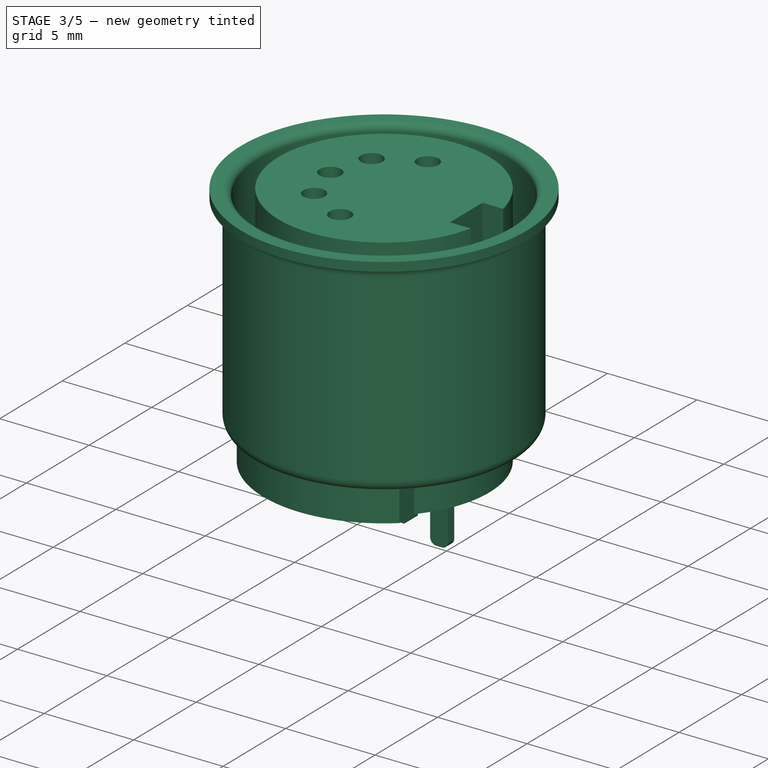
[diagram: stage 3 of 5 — iso view after this stage's code; geometry added in this stage tinted green]
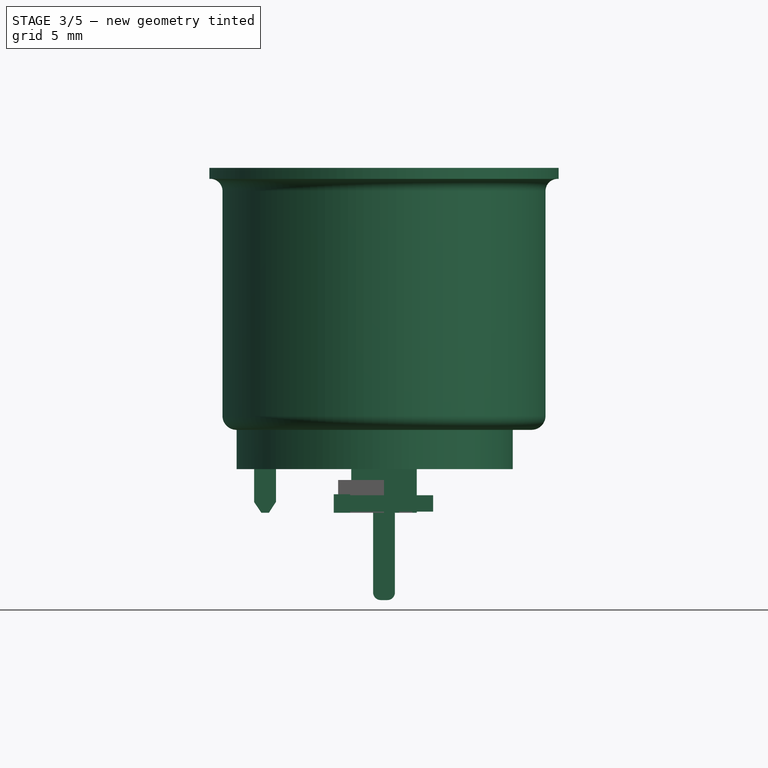
[diagram: stage 3 of 5 — front view after this stage's code; geometry added in this stage tinted green]
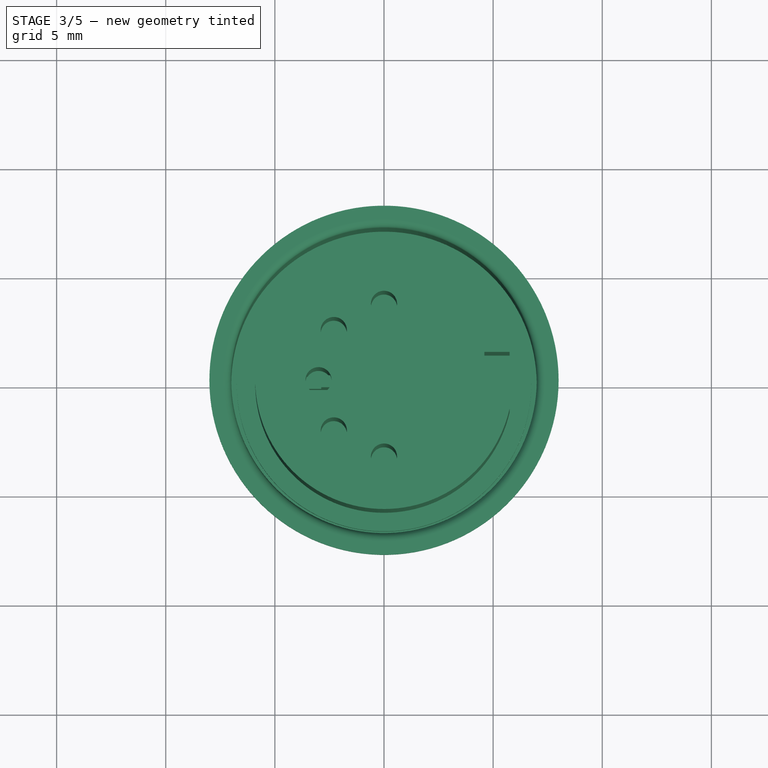
[diagram: stage 3 of 5 — top view after this stage's code; geometry added in this stage tinted green]
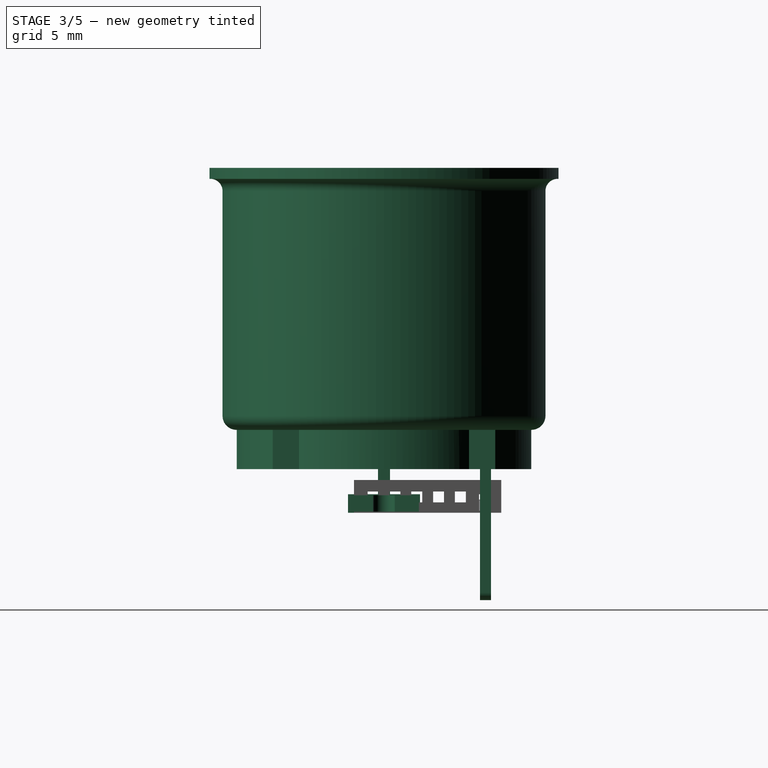
[diagram: stage 3 of 5 — right view after this stage's code; geometry added in this stage tinted green]
FEATURE [PartDesign::AdditiveBox] Box108  label="base013"
  AttacherType = Attacher::AttachEngine3D
  AttachmentOffset = pos=(-4.95,-0.275,0) rot=(0,0,1;0rad)
  Height = 15
  Length = 2.9
  MapMode = 5
  Placement = pos=(-4.95,-0.275,0) rot=(0,0,1;0rad)
  Support = -> [XY_Plane054]
  Width = 0.55
FEATURE [PartDesign::SubtractiveBox] Box109  label="middle-cut013"
  AttacherType = Attacher::AttachEngine3D
  AttachmentOffset = pos=(-4.125,-0.275,9) rot=(0,0,1;0rad)
  BaseFeature = -> Box108
  Height = 6
  Length = 1.25
  MapMode = 5
  Placement = pos=(-4.125,-0.275,9) rot=(0,0,1;0rad)
  Support = -> [XY_Plane054]
  Width = 0.55
FEATURE [PartDesign::SubtractiveBox] Box110  label="shorter-prong013"
  AttacherType = Attacher::AttachEngine3D
  AttachmentOffset = pos=(-3,-0.3,13) rot=(0,0,1;0rad)
  BaseFeature = -> Box109
  Height = 2
  Length = 1.1
  MapMode = 5
  Placement = pos=(-3,-0.3,13) rot=(0,0,1;0rad)
  Support = -> [XY_Plane054]
  Width = 0.6
FEATURE [PartDesign::AdditiveBox] Box112  label="extend014"
  AttacherType = Attacher::AttachEngine3D
  AttachmentOffset = pos=(-5.95,-0.275,0) rot=(0,0,1;0rad)
  BaseFeature = -> Box110
  Height = 6
  Length = 1
  MapMode = 5
  Placement = pos=(-5.95,-0.275,0) rot=(0,0,1;0rad)
  Support = -> [XY_Plane054]
  Width = 0.55
FEATURE [PartDesign::SubtractiveBox] Box111
  AttacherType = Attacher::AttachEngine3D
  AttachmentOffset = pos=(1,-0.55,-4) rot=(0,0,1;0rad)
  BaseFeature = -> Box112
  Height = 4
  Length = 3
  MapMode = 5
  Placement = pos=(-4.95,0.275,4) rot=(1,0,0;3.14159rad)
  Support = -> [Box112]
  Width = 0.55
FEATURE [PartDesign::AdditiveBox] Box113  label="base014"
  AttacherType = Attacher::AttachEngine3D
  AttachmentOffset = pos=(-4.95,-0.275,0) rot=(0,0,1;0rad)
  Height = 15
  Length = 2.9
  MapMode = 5
  Placement = pos=(-4.95,-0.275,0) rot=(0,0,1;0rad)
  Support = -> [XY_Plane055]
  Width = 0.55
FEATURE [PartDesign::SubtractiveBox] Box114  label="middle-cut014"
  AttacherType = Attacher::AttachEngine3D
  AttachmentOffset = pos=(-4.125,-0.275,9) rot=(0,0,1;0rad)
  BaseFeature = -> Box113
  Height = 6
  Length = 1.25
  MapMode = 5
  Placement = pos=(-4.125,-0.275,9) rot=(0,0,1;0rad)
  Support = -> [XY_Plane055]
  Width = 0.55
FEATURE [PartDesign::SubtractiveBox] Box115  label="shorter-prong014"
  AttacherType = Attacher::AttachEngine3D
  AttachmentOffset = pos=(-3,-0.3,13) rot=(0,0,1;0rad)
  BaseFeature = -> Box114
  Height = 2
  Length = 1.1
  MapMode = 5
  Placement = pos=(-3,-0.3,13) rot=(0,0,1;0rad)
  Support = -> [XY_Plane055]
  Width = 0.6
FEATURE [PartDesign::AdditiveBox] Box117  label="extend015"
  AttacherType = Attacher::AttachEngine3D
  AttachmentOffset = pos=(-5.95,-0.275,0) rot=(0,0,1;0rad)
  BaseFeature = -> Box115
  Height = 6
  Length = 1
  MapMode = 5
  Placement = pos=(-5.95,-0.275,0) rot=(0,0,1;0rad)
  Support = -> [XY_Plane055]
  Width = 0.55
FEATURE [PartDesign::SubtractiveBox] Box116
  AttacherType = Attacher::AttachEngine3D
  AttachmentOffset = pos=(1,-0.55,-4) rot=(0,0,1;0rad)
  BaseFeature = -> Box117
  Height = 4
  Length = 3
  MapMode = 5
  Placement = pos=(-4.95,0.275,4) rot=(1,0,0;3.14159rad)
  Support = -> [Box117]
  Width = 0.55
FEATURE [PartDesign::Body] Body035  label="Pin-contact013"
  Group = -> [Box103,Box104,Box105,Box107,Box106,Chamfer050,Chamfer051,Chamfer053,Chamfer052]
  Origin = -> Origin053
  Placement = pos=(0,0,-4) rot=(0,0,1;3.14159rad)
  Tip = -> Chamfer052
FEATURE [PartDesign::Chamfer] Chamfer054
  Angle = 45
  Base = -> Box111 [Edge26]
  BaseFeature = -> Box111
  ChamferType = 1
  FlipDirection = false
  Placement = pos=(-4.95,0.275,4) rot=(1,0,0;3.14159rad)
  Size = 2
  Size2 = 0.65
  SupportTransform = false
  UseAllEdges = false
FEATURE [PartDesign::Chamfer] Chamfer055  label="pin-end027"
  Angle = 33
  Base = -> Chamfer054 [Edge36]
  BaseFeature = -> Chamfer054
  ChamferType = 2
  FlipDirection = false
  Placement = pos=(-4.95,0.275,4) rot=(1,0,0;3.14159rad)
  Size = 0.5
  Size2 = 1
  SupportTransform = false
  UseAllEdges = false
FEATURE [PartDesign::Chamfer] Chamfer057  label="pin-end028"
  Angle = 56
  Base = -> Chamfer055 [Edge9]
  BaseFeature = -> Chamfer055
  ChamferType = 2
  FlipDirection = false
  Placement = pos=(-4.95,0.275,4) rot=(1,0,0;3.14159rad)
  Size = 0.33
  Size2 = 1
  SupportTransform = false
  UseAllEdges = false
FEATURE [PartDesign::Body] Body036  label="Pin-contact014"
  Group = -> [Box108,Box109,Box110,Box112,Box111,Chamfer054,Chamfer055,Chamfer057,Chamfer056]
  Origin = -> Origin054
  Placement = pos=(0,0,-4) rot=(0,0,1;0.785398rad)
  Tip = -> Chamfer056
FEATURE [PartDesign::Chamfer] Chamfer058
  Angle = 45
  Base = -> Box116 [Edge26]
  BaseFeature = -> Box116
  ChamferType = 1
  FlipDirection = false
  Placement = pos=(-4.95,0.275,4) rot=(1,0,0;3.14159rad)
  Size = 2
  Size2 = 0.65
  SupportTransform = false
  UseAllEdges = false
FEATURE [PartDesign::Chamfer] Chamfer059  label="pin-end029"
  Angle = 33
  Base = -> Chamfer058 [Edge36]
  BaseFeature = -> Chamfer058
  ChamferType = 2
  FlipDirection = false
  Placement = pos=(-4.95,0.275,4) rot=(1,0,0;3.14159rad)
  Size = 0.5
  Size2 = 1
  SupportTransform = false
  UseAllEdges = false
FEATURE [PartDesign::Chamfer] Chamfer061  label="pin-end030"
  Angle = 56
  Base = -> Chamfer059 [Edge9]
  BaseFeature = -> Chamfer059
  ChamferType = 2
  FlipDirection = false
  Placement = pos=(-4.95,0.275,4) rot=(1,0,0;3.14159rad)
  Size = 0.33
  Size2 = 1
  SupportTransform = false
  UseAllEdges = false
FEATURE [PartDesign::Chamfer] Chamfer060
  Angle = 26.565
  Base = -> Chamfer061 [Edge15]
  BaseFeature = -> Chamfer061
  ChamferType = 2
  FlipDirection = false
  Placement = pos=(-4.95,0.275,4) rot=(1,0,0;3.14159rad)
  Size = 1.98
  Size2 = 1
  SupportTransform = false
  UseAllEdges = false
FEATURE [PartDesign::Body] Body037  label="Pin-contact015"
  Group = -> [Box113,Box114,Box115,Box117,Box116,Chamfer058,Chamfer059,Chamfer061,Chamfer060]
  Origin = -> Origin055
  Placement = pos=(0,0,-4) rot=(0,0,1;2.35619rad)
  Tip = -> Chamfer060
FEATURE [PartDesign::AdditiveCylinder] Cylinder040
  Angle = 360
  AttacherType = Attacher::AttachEngine3D
  AttachmentOffset = pos=(0,0,3.8) rot=(0,0,1;0rad)
  FirstAngle = 0
  Height = 12
  MapMode = 5
  Placement = pos=(0,0,3.8) rot=(0,0,1;0rad)
  Radius = 7.4
  SecondAngle = 0
  Support = -> [XY_Plane049]
FEATURE [PartDesign::AdditiveCylinder] Cylinder042
  Angle = 360
  AttacherType = Attacher::AttachEngine3D
  AttachmentOffset = pos=(0,0,2) rot=(0,0,1;0rad)
  FirstAngle = 0
  Height = 13.8
  MapMode = 5
  Placement = pos=(0,0,2) rot=(0,0,1;0rad)
  Radius = 5.9
  SecondAngle = 0
  Support = -> [XY_Plane050]
FEATURE [PartDesign::AdditiveCylinder] Cylinder043
  Angle = 360
  AttacherType = Attacher::AttachEngine3D
  AttachmentOffset = pos=(0,0,15.3) rot=(0,0,1;0rad)
  BaseFeature = -> Cylinder040
  FirstAngle = 0
  Height = 0.5
  MapMode = 5
  Placement = pos=(0,0,15.3) rot=(0,0,1;0rad)
  Radius = 8
  SecondAngle = 0
  Support = -> [XY_Plane049]
FEATURE [PartDesign::SubtractiveCylinder] Cylinder041
  Angle = 360
  AttacherType = Attacher::AttachEngine3D
  AttachmentOffset = pos=(0,0,4.8) rot=(0,0,1;0rad)
  BaseFeature = -> Cylinder043
  FirstAngle = 0
  Height = 11
  MapMode = 5
  Placement = pos=(0,0,4.8) rot=(0,0,1;0rad)
  Radius = 7
  SecondAngle = 0
  Support = -> [XY_Plane049]
FEATURE [PartDesign::SubtractiveCylinder] Cylinder044
  Angle = 360
  AttacherType = Attacher::AttachEngine3D
  AttachmentOffset = pos=(0,3.5,0) rot=(0,0,1;0rad)
  BaseFeature = -> Cylinder042
  FirstAngle = 0
  Height = 16
  MapMode = 5
  Placement = pos=(0,3.5,0) rot=(0,0,1;0rad)
  Radius = 0.6
  SecondAngle = 0
  Support = -> [XY_Plane050]
FEATURE [PartDesign::SubtractiveCylinder] Cylinder045
  Angle = 360
  AttacherType = Attacher::AttachEngine3D
  AttachmentOffset = pos=(0,-3.5,0) rot=(0,0,1;0rad)
  BaseFeature = -> Cylinder044
  FirstAngle = 0
  Height = 16
  MapMode = 5
  Placement = pos=(0,-3.5,0) rot=(0,0,1;0rad)
  Radius = 0.6
  SecondAngle = 0
  Support = -> [XY_Plane050]
FEATURE [PartDesign::SubtractiveBox] Box082
  AttacherType = Attacher::AttachEngine3D
  AttachmentOffset = pos=(4.6,-1.3,5) rot=(0,0,1;0rad)
  BaseFeature = -> Cylinder045
  Height = 11
  Length = 1.3
  MapMode = 5
  Placement = pos=(4.6,-1.3,5) rot=(0,0,1;0rad)
  Support = -> [XY_Plane050]
  Width = 2.6
FEATURE [PartDesign::SubtractiveCylinder] Cylinder046
  Angle = 360
  AttacherType = Attacher::AttachEngine3D
  AttachmentOffset = pos=(-3,0,0) rot=(0,0,1;0rad)
  BaseFeature = -> Box082
  FirstAngle = 0
  Height = 16
  MapMode = 5
  Placement = pos=(-3,0,0) rot=(0,0,1;0rad)
  Radius = 0.6
  SecondAngle = 0
  Support = -> [XY_Plane050]
FEATURE [PartDesign::SubtractiveCylinder] Cylinder047
  Angle = 360
  AttacherType = Attacher::AttachEngine3D
  AttachmentOffset = pos=(-2.3,-2.3,0) rot=(0,0,1;0rad)
  BaseFeature = -> Cylinder046
  FirstAngle = 0
  Height = 16
  MapMode = 5
  Placement = pos=(-2.3,-2.3,0) rot=(0,0,1;0rad)
  Radius = 0.6
  SecondAngle = 0
  Support = -> [XY_Plane050]
FEATURE [PartDesign::SubtractiveCylinder] Cylinder048
  Angle = 360
  AttacherType = Attacher::AttachEngine3D
  AttachmentOffset = pos=(-2.3,2.3,0) rot=(0,0,1;0rad)
  BaseFeature = -> Cylinder047
  FirstAngle = 0
  Height = 16
  MapMode = 5
  Placement = pos=(-2.3,2.3,0) rot=(0,0,1;0rad)
  Radius = 0.6
  SecondAngle = 0
  Support = -> [XY_Plane050]
FEATURE [PartDesign::SubtractiveCylinder] Cylinder049
  Angle = 260.5
  AttacherType = Attacher::AttachEngine3D
  AttachmentOffset = pos=(0,0,3.8) rot=(0,0,1;2.43997rad)
  BaseFeature = -> Cylinder041
  FirstAngle = 0
  Height = 3
  MapMode = 5
  Placement = pos=(0,0,3.8) rot=(0,0,1;2.43997rad)
  Radius = 6.75
  SecondAngle = 0
  Support = -> [XY_Plane049]
FEATURE [PartDesign::SubtractiveBox] Box083
  AttacherType = Attacher::AttachEngine3D
  AttachmentOffset = pos=(-5.155,0.06,3.8) rot=(0,0,1;0rad)
  BaseFeature = -> Cylinder049
  Height = 2
  Length = 10.305
  MapMode = 5
  Placement = pos=(-5.155,0.06,3.8) rot=(0,0,1;0rad)
  Support = -> [XY_Plane049]
  Width = 4.305
FEATURE [PartDesign::AdditiveBox] Box090  label="case-pin-base002"
  AttacherType = Attacher::AttachEngine3D
  AttachmentOffset = pos=(-1.5,4.4,-4) rot=(0,0,1;0rad)
  BaseFeature = -> Box083
  Height = 8
  Length = 3
  MapMode = 5
  Placement = pos=(-1.5,4.4,-4) rot=(0,0,1;0rad)
  Support = -> [XY_Plane049]
  Width = 0.5
FEATURE [PartDesign::SubtractiveBox] Box091  label="pin-cut005"
  AttacherType = Attacher::AttachEngine3D
  AttachmentOffset = pos=(-1.5,4,-4) rot=(0,0,1;0rad)
  BaseFeature = -> Box090
  Height = 4
  Length = 1
  MapMode = 5
  Placement = pos=(-1.5,4,-4) rot=(0,0,1;0rad)
  Support = -> [XY_Plane049]
  Width = 1
FEATURE [PartDesign::SubtractiveBox] Box092  label="pin-cut006"
  AttacherType = Attacher::AttachEngine3D
  AttachmentOffset = pos=(0.5,4,-4) rot=(0,0,1;0rad)
  BaseFeature = -> Box091
  Height = 4
  Length = 1
  MapMode = 5
  Placement = pos=(0.5,4,-4) rot=(0,0,1;0rad)
  Support = -> [XY_Plane049]
  Width = 1
FEATURE [PartDesign::AdditiveCylinder] Cylinder050
  Angle = 262
  AttacherType = Attacher::AttachEngine3D
  AttachmentOffset = pos=(0,0,2) rot=(0,0,1;0.855211rad)
  BaseFeature = -> Cylinder048
  FirstAngle = 0
  Height = 3
  MapMode = 5
  Placement = pos=(0,0,2) rot=(0,0,1;0.855211rad)
  Radius = 6.75
  SecondAngle = 0
  Support = -> [XY_Plane050]
FEATURE [PartDesign::AdditiveBox] Box084
  AttacherType = Attacher::AttachEngine3D
  AttachmentOffset = pos=(0.03,-5.095,2) rot=(0,0,1;0rad)
  BaseFeature = -> Cylinder050
  Height = 2
  Length = 4.4
  MapMode = 5
  Placement = pos=(0.03,-5.095,2) rot=(0,0,1;0rad)
  Support = -> [XY_Plane050]
  Width = 10.19
FEATURE [PartDesign::AdditiveCylinder] Cylinder051  label="bottom-fill002"
  Angle = 360
  AttacherType = Attacher::AttachEngine3D
  AttachmentOffset = pos=(0,0,4.8) rot=(0,0,1;0rad)
  BaseFeature = -> Box084
  FirstAngle = 0
  Height = 1
  MapMode = 5
  Placement = pos=(0,0,4.8) rot=(0,0,1;0rad)
  Radius = 6.75
  SecondAngle = 0
  Support = -> [XY_Plane050]
FEATURE [PartDesign::Body] Body032  label="Plastic003"
  Group = -> [Cylinder042,Cylinder044,Cylinder045,Box082,Cylinder046,Cylinder047,Cylinder048,Cylinder050,Box084,Cylinder051,Box085,Box086,Box087,Box088,Box089,Box081]
  Origin = -> Origin050
  Placement = pos=(0,0,0) rot=(0,0,1;1.5708rad)
  Tip = -> Box081
FEATURE [PartDesign::Fillet] Fillet014
  Base = -> Box092 [Edge56,Edge57]
  BaseFeature = -> Box092
  Placement = pos=(0.5,4,-4) rot=(0,0,1;0rad)
  Radius = 0.35
  SupportTransform = false
  UseAllEdges = false
FEATURE [PartDesign::Fillet] Fillet015  label="Out-up-ring-soft002"
  Base = -> Fillet014 [Edge40]
  BaseFeature = -> Fillet014
  Placement = pos=(0.5,4,-4) rot=(0,0,1;0rad)
  Radius = 0.5589
  SupportTransform = false
  UseAllEdges = false
FEATURE [PartDesign::Fillet] Fillet016  label="In-up-ring-soft002"
  Base = -> Fillet015 [Edge65]
  BaseFeature = -> Fillet015
  Placement = pos=(0.5,4,-4) rot=(0,0,1;0rad)
  Radius = 0.39
  SupportTransform = false
  UseAllEdges = false
FEATURE [PartDesign::Fillet] Fillet017  label="bot-edge-soft002"
  Base = -> Fillet016 [Edge32]
  BaseFeature = -> Fillet016
  Placement = pos=(0.5,4,-4) rot=(0,0,1;0rad)
  Radius = 0.64
  SupportTransform = false
  UseAllEdges = false
FEATURE [Sketcher::SketchObject] Sketch014  label="Chassis002"
  FullyConstrained = false
  MapMode = 5
  Support = -> [XY_Plane049]
  sketch-geometry (6):
    g0: Circle CenterX=0 CenterY=0 CenterZ=0 NormalX=0 NormalY=0 NormalZ=1 AngleXU=0 Radius=8.55
    g1: Circle CenterX=0 CenterY=0 CenterZ=0 NormalX=0 NormalY=0 NormalZ=1 AngleXU=0 Radius=8.45
    g2: Circle CenterX=0 CenterY=0 CenterZ=0 NormalX=0 NormalY=0 NormalZ=1 AngleXU=0 Radius=5.95
    g3: Circle CenterX=0 CenterY=0 CenterZ=0 NormalX=0 NormalY=0 NormalZ=1 AngleXU=0 Radius=5.85
    g4: Circle CenterX=0 CenterY=0 CenterZ=0 NormalX=0 NormalY=0 NormalZ=1 AngleXU=0 Radius=7.05
    g5: Circle CenterX=0 CenterY=0 CenterZ=0 NormalX=0 NormalY=0 NormalZ=1 AngleXU=0 Radius=6.95
FEATURE [PartDesign::Body] Body031  label="Casing003"
  Group = -> [Sketch014,Cylinder040,Cylinder043,Cylinder041,Cylinder049,Box083,Box090,Box091,Box092,Fillet014,Fillet015,Fillet016,Fillet017]
  Origin = -> Origin049
  Tip = -> Fillet017
FEATURE [App::Part] Part005  label="CUI_SD-50BV002"
  Group = -> [Body031,Body032,Body033,Body034,Body035,Body036,Body037]
  Origin = -> Origin056
  Placement = pos=(74.75,16.4,0) rot=(0,0,1;0rad)
FEATURE [PartDesign::AdditiveBox] Box118
  AttacherType = Attacher::AttachEngine3D
  AttachmentOffset = pos=(-2.25,-1.6,0.05) rot=(0,0,1;0rad)
  Height = 0.75
  Length = 4.5
  MapMode = 5
  Placement = pos=(-2.25,-1.6,0.05) rot=(0,0,1;0rad)
  Support = -> [XY_Plane057]
  Width = 3.2
FEATURE [PartDesign::AdditiveBox] Box119
  AttacherType = Attacher::AttachEngine3D
  AttachmentOffset = pos=(-2.3,-1.65,0) rot=(0,0,1;0rad)
  Height = 0.85
  Length = 0.75
  MapMode = 5
  Placement = pos=(-2.3,-1.65,0) rot=(0,0,1;0rad)
  Support = -> [XY_Plane058]
  Width = 3.3
FEATURE [PartDesign::AdditiveBox] Box120
  AttacherType = Attacher::AttachEngine3D
  AttachmentOffset = pos=(-2.3,-1.65,0) rot=(0,0,1;0rad)
  Height = 0.85
  Length = 0.75
  MapMode = 5
  Placement = pos=(-2.3,-1.65,0) rot=(0,0,1;0rad)
  Support = -> [XY_Plane059]
  Width = 3.3
FEATURE [PartDesign::SubtractiveCylinder] Cylinder052
  Angle = 360
  AttacherType = Attacher::AttachEngine3D
  AttachmentOffset = pos=(-2.25,0,0) rot=(0,0,1;0rad)
  BaseFeature = -> Box118
  FirstAngle = 0
  Height = 1
  MapMode = 5
  Placement = pos=(-2.25,0,0) rot=(0,0,1;0rad)
  Radius = 0.5
  SecondAngle = 0
  Support = -> [XY_Plane057]
FEATURE [PartDesign::SubtractiveCylinder] Cylinder053
  Angle = 360
  AttacherType = Attacher::AttachEngine3D
  AttachmentOffset = pos=(-2.3,0,0) rot=(0,0,1;0rad)
  BaseFeature = -> Box119
  FirstAngle = 0
  Height = 1
  MapMode = 5
  Placement = pos=(-2.3,0,0) rot=(0,0,1;0rad)
  Radius = 0.492
  SecondAngle = 0
  Support = -> [XY_Plane058]
FEATURE [PartDesign::Body] Body039  label="Connector-left"
  Group = -> [Box119,Cylinder053]
  Origin = -> Origin058
  Tip = -> Cylinder053
FEATURE [PartDesign::SubtractiveCylinder] Cylinder054
  Angle = 360
  AttacherType = Attacher::AttachEngine3D
  AttachmentOffset = pos=(-2.3,0,0) rot=(0,0,1;0rad)
  BaseFeature = -> Box120
  FirstAngle = 0
  Height = 1
  MapMode = 5
  Placement = pos=(-2.3,0,0) rot=(0,0,1;0rad)
  Radius = 0.492
  SecondAngle = 0
  Support = -> [XY_Plane059]
FEATURE [PartDesign::Body] Body040  label="Connector-right"
  Group = -> [Box120,Cylinder054]
  Origin = -> Origin059
  Placement = pos=(0,0,0) rot=(0,0,1;3.14159rad)
  Tip = -> Cylinder054
FEATURE [PartDesign::Mirrored] Mirrored002
  BaseFeature = -> Cylinder052
  MirrorPlane = -> YZ_Plane057
  Originals = -> [Cylinder052]
  Placement = pos=(-2.25,0,0) rot=(0,0,1;0rad)
FEATURE [PartDesign::Body] Body038
  Group = -> [Box118,Cylinder052,Mirrored002]
  Origin = -> Origin057
  Tip = -> Mirrored002
FEATURE [Sketcher::SketchObject] Sketch015
  FullyConstrained = false
  sketch-geometry (38):
    g0-g6: Circle x7 (B-spline internal-alignment scaffolding for g7; pole/knot coordinates omitted)
    g7: BSplineCurve PolesCount=7 KnotsCount=5 Degree=3 IsPeriodic=0
    g8-g12: GeomPoint x5 (B-spline internal-alignment scaffolding for g7; pole/knot coordinates omitted)
    g13: LineSegment StartX=0 StartY=1 StartZ=0 EndX=-0.3 EndY=1 EndZ=0
    g14: LineSegment StartX=-0.3 StartY=1 StartZ=0 EndX=-0.3 EndY=0 EndZ=0
    g15: LineSegment StartX=-0.3 StartY=0 StartZ=0 EndX=0 EndY=0 EndZ=0
    g16: LineSegment StartX=-0.2 StartY=0.9 StartZ=0 EndX=-0.1 EndY=0.9 EndZ=0
    g17: LineSegment StartX=-0.1 StartY=0.9 StartZ=0 EndX=-0.1 EndY=0.1 EndZ=0
    g18: LineSegment StartX=-0.1 StartY=0.1 StartZ=0 EndX=-0.2 EndY=0.1 EndZ=0
    g19: LineSegment StartX=-0.2 StartY=0.1 StartZ=0 EndX=-0.2 EndY=0.9 EndZ=0
    g20-g23: Circle x4 (B-spline internal-alignment scaffolding for g24; pole/knot coordinates omitted)
    g24: BSplineCurve PolesCount=4 KnotsCount=2 Degree=3 IsPeriodic=0
    g25: GeomPoint X=0.1 Y=0.6 Z=0
    g26: GeomPoint X=0 Y=0.806961 Z=0
    g27: LineSegment StartX=0 StartY=0.6 StartZ=0 EndX=0.1 EndY=0.6 EndZ=0
    g28: LineSegment StartX=0 StartY=0.6 StartZ=0 EndX=0 EndY=0.806961 EndZ=0
    g29-g32: Circle x4 (B-spline internal-alignment scaffolding for g33; pole/knot coordinates omitted)
    g33: BSplineCurve PolesCount=4 KnotsCount=2 Degree=3 IsPeriodic=0
    g34: GeomPoint X=0 Y=0.2 Z=0
    g35: GeomPoint X=0.1 Y=0.4 Z=0
    g36: LineSegment StartX=0 StartY=0.4 StartZ=0 EndX=0.1 EndY=0.4 EndZ=0
    g37: LineSegment StartX=0 StartY=0.4 StartZ=0 EndX=0 EndY=0.2 EndZ=0
  constraints (43):
    c: Weight(g0) = 1
    c: Coincident(g7,g-1)
    c: Equal(g0, g1-g6) x6
    c: PointOnObject(g7,g0)
    c: InternalAlignment(g0-g6 -> g7) x7
    c: InternalAlignment(g8-g12 -> g7) x5
    c: Coincident(g13,g7)
    c: Coincident(g14,g13)
    c: PointOnObject(g14,g-1)
    c: Vertical(g14)
    c: Coincident(g15,g14)
    c: Coincident(g16,g17)
    c: Coincident(g17,g18)
    c: Coincident(g18,g19)
    c: Coincident(g19,g16)
    c: Horizontal(g16)
    c: Horizontal(g18)
    c: Vertical(g17)
    c: Vertical(g19)
    c: Weight(g20) = 1
    c: Equal(g20,g21)
    c: Equal(g20,g22)
    c: Equal(g20,g23)
    c: PointOnObject(g24,g-2)
    c: InternalAlignment(g20-g23 -> g24) x4
    c: InternalAlignment(g25,g24)
    c: InternalAlignment(g26,g24)
    c: PointOnObject(g27,g-2)
    c: Coincident(g27,g24)
    c: Horizontal(g27)
    c: Coincident(g28,g27)
    c: Weight(g29) = 1
    c: PointOnObject(g33,g-2)
    c: Equal(g29,g30)
    c: Equal(g29,g31)
    c: Equal(g29,g32)
    c: InternalAlignment(g29-g32 -> g33) x4
    c: InternalAlignment(g34,g33)
    c: InternalAlignment(g35,g33)
    c: PointOnObject(g36,g-2)
    c: Coincident(g36,g33)
    c: Horizontal(g36)
    c: Coincident(g37,g36)
FEATURE [PartDesign::Pad] Pad014
  Direction = (0,0,1)
  Length = 0.1
  Length2 = -0.8025
  Profile = -> Sketch015
  ReferenceAxis = -> Sketch015 [N_Axis]
  Type = 4
FEATURE [PartDesign::Body] Body041  label="Logo"
  Group = -> [Sketch015,Pad014]
  Origin = -> Origin060
  Tip = -> Pad014
FEATURE [App::Part] Part006  label="Yageo_1812"
  Group = -> [Body038,Body041,Body039,Body040]
  Origin = -> Origin061
  Placement = pos=(61,37.5,-2) rot=(1,0,0;3.14159rad)
FEATURE [App::Part] Bot_8e65
  Group = -> [R18_R_0603_1608Metric_d753575270ea_ln_005,R18_R_0603_1608Metric_d753575270ea_ln_006,C9_C_0603_1608Metric_5d00f7ebd9ff_ln_,R18_R_0603_1608Metric_d753575270ea_ln_007,Shape008,Shape009,J3_PinHeader_1x04_P254mm_Horizontal_ad84bd842bec_ln_,C8_C_0805_2012Metric_f3a3f0892716_ln_002,R18_R_0603_1608Metric_d753575270ea_ln_008,J31_PinHeader_1x01_P127mm_Horizontal_e6eaef08d4e1_ln_001,+56 more]
  Origin = -> Origin004
FEATURE [Part::Feature] Part__Feature051  label="DSUB-9_Female_Vertical_P2.77x2.84mm"
  Placement = pos=(48,34,0) rot=(0,0,1;0rad)
  shape: bbox 30.96 x 12.66 x 14.7 mm, 151 faces (baked)
FEATURE [Part::Feature] Part__Feature052  label="DSUB-9_Female_Vertical_P2.77x2.84mm001"
  Placement = pos=(80,34,0) rot=(0,0,1;0rad)
  shape: bbox 30.96 x 12.66 x 14.7 mm, 151 faces (baked)
FEATURE [Part::Feature] pads_wire  label="pads_wire#F.Cu#0#"C8""
  shape: bbox 2.9 x 1.45 x 2e-07 mm, 0 faces, 0 solids (baked)
FEATURE [Path::FeatureArea] pads_area  label="pads_area#F.Cu#0#"C8""
  Accuracy = 0.0005
  Angle = 45
  AngleShift = 0
  CleanDistance = 0
  ClipFill = 0
  ClipperScale = 10000000
  Coplanar = 0
  Deflection = 0.01
  EndType = 0
  Explode = false
  ExtraPass = 0
  Fill = 1
  FitArcs = false
  FromCenter = false
  JoinType = 0
  LastStepover = 0
  MaxArcPoints = 100
  MinArcPoints = 4
  MiterLimit = 2
  OpenMode = 0
  Operation = 0
  Outline = false
  Placement = pos=(129.005,-93.45,0) rot=(0,0,1;2.35619rad)
  PocketExtraOffset = 0
  PocketLastStepover = 0
  PocketMode = 0
  PocketStepover = 0
  Project = false
  Reorient = false
  RoundPrecision = 0
  SectionCount = 0
  SectionMode = 2
  SectionOffset = 0
  SectionTolerance = 1e-06
  Shift = 0
  Simplify = false
  Sources = -> [pads_wire]
  Stepdown = 1
  Stepover = 0
  SubjectFill = 0
  Thicken = false
  Tolerance = 1e-07
  ToolRadius = 1
  Unit = 1
FEATURE [Part::Feature] pads_wire001  label="pads_wire001#F.Cu#1#"J31""
  shape: bbox 1 x 1 x 2e-07 mm, 0 faces, 0 solids (baked)
FEATURE [Path::FeatureArea] pads_area001  label="pads_area001#F.Cu#1#"J31""
  Accuracy = 0.0005
  Angle = 45
  AngleShift = 0
  CleanDistance = 0
  ClipFill = 0
  ClipperScale = 10000000
  Coplanar = 0
  Deflection = 0.01
  EndType = 0
  Explode = false
  ExtraPass = 0
  Fill = 1
  FitArcs = false
  FromCenter = false
  JoinType = 0
  LastStepover = 0
  MaxArcPoints = 100
  MinArcPoints = 4
  MiterLimit = 2
  OpenMode = 0
  Operation = 0
  Outline = false
  Placement = pos=(152.4,-109.6,0) rot=(0,0,1;-1.5708rad)
  PocketExtraOffset = 0
  PocketLastStepover = 0
  PocketMode = 0
  PocketStepover = 0
  Project = false
  Reorient = false
  RoundPrecision = 0
  SectionCount = 0
  SectionMode = 2
  SectionOffset = 0
  SectionTolerance = 1e-06
  Shift = 0
  Simplify = false
  Sources = -> [pads_wire001]
  Stepdown = 1
  Stepover = 0
  SubjectFill = 0
  Thicken = false
  Tolerance = 1e-07
  ToolRadius = 1
  Unit = 1
FEATURE [Part::Feature] pads_wire002  label="pads_wire002#F.Cu#2#"C15""
  shape: bbox 2.85 x 1.45 x 2e-07 mm, 0 faces, 0 solids (baked)
FEATURE [Path::FeatureArea] pads_area002  label="pads_area002#F.Cu#2#"C15""
  Accuracy = 0.0005
  Angle = 45
  AngleShift = 0
  CleanDistance = 0
  ClipFill = 0
  ClipperScale = 10000000
  Coplanar = 0
  Deflection = 0.01
  EndType = 0
  Explode = false
  ExtraPass = 0
  Fill = 1
  FitArcs = false
  FromCenter = false
  JoinType = 0
  LastStepover = 0
  MaxArcPoints = 100
  MinArcPoints = 4
  MiterLimit = 2
  OpenMode = 0
  Operation = 0
  Outline = false
  Placement = pos=(203.15,-73.95,0) rot=(0,0,1;1.5708rad)
  PocketExtraOffset = 0
  PocketLastStepover = 0
  PocketMode = 0
  PocketStepover = 0
  Project = false
  Reorient = false
  RoundPrecision = 0
  SectionCount = 0
  SectionMode = 2
  SectionOffset = 0
  SectionTolerance = 1e-06
  Shift = 0
  Simplify = false
  Sources = -> [pads_wire002]
  Stepdown = 1
  Stepover = 0
  SubjectFill = 0
  Thicken = false
  Tolerance = 1e-07
  ToolRadius = 1
  Unit = 1
FEATURE [Part::Feature] pads_wire003  label="pads_wire003#F.Cu#3#"J30""
  shape: bbox 1.1 x 5.5 x 2e-07 mm, 0 faces, 0 solids (baked)
FEATURE [Path::FeatureArea] pads_area003  label="pads_area003#F.Cu#3#"J30""
  Accuracy = 0.0005
  Angle = 45
  AngleShift = 0
  CleanDistance = 0
  ClipFill = 0
  ClipperScale = 10000000
  Coplanar = 0
  Deflection = 0.01
  EndType = 0
  Explode = false
  ExtraPass = 0
  Fill = 1
  FitArcs = false
  FromCenter = false
  JoinType = 0
  LastStepover = 0
  MaxArcPoints = 100
  MinArcPoints = 4
  MiterLimit = 2
  OpenMode = 0
  Operation = 0
  Outline = false
  Placement = pos=(158.3,-109.475,0) rot=(0,0,1;1.5708rad)
  PocketExtraOffset = 0
  PocketLastStepover = 0
  PocketMode = 0
  PocketStepover = 0
  Project = false
  Reorient = false
  RoundPrecision = 0
  SectionCount = 0
  SectionMode = 2
  SectionOffset = 0
  SectionTolerance = 1e-06
  Shift = 0
  Simplify = false
  Sources = -> [pads_wire003]
  Stepdown = 1
  Stepover = 0
  SubjectFill = 0
  Thicken = false
  Tolerance = 1e-07
  ToolRadius = 1
  Unit = 1
FEATURE [Part::Feature] pads_wire004  label="pads_wire004#F.Cu#4#"J5""
  shape: bbox 1 x 2.27 x 2e-07 mm, 0 faces, 0 solids (baked)
FEATURE [Path::FeatureArea] pads_area004  label="pads_area004#F.Cu#4#"J5""
  Accuracy = 0.0005
  Angle = 45
  AngleShift = 0
  CleanDistance = 0
  ClipFill = 0
  ClipperScale = 10000000
  Coplanar = 0
  Deflection = 0.01
  EndType = 0
  Explode = false
  ExtraPass = 0
  Fill = 1
  FitArcs = false
  FromCenter = false
  JoinType = 0
  LastStepover = 0
  MaxArcPoints = 100
  MinArcPoints = 4
  MiterLimit = 2
  OpenMode = 0
  Operation = 0
  Outline = false
  Placement = pos=(231.65,-109.6,0) rot=(0,0,1;-1.5708rad)
  PocketExtraOffset = 0
  PocketLastStepover = 0
  PocketMode = 0
  PocketStepover = 0
  Project = false
  Reorient = false
  RoundPrecision = 0
  SectionCount = 0
  SectionMode = 2
  SectionOffset = 0
  SectionTolerance = 1e-06
  Shift = 0
  Simplify = false
  Sources = -> [pads_wire004]
  Stepdown = 1
  Stepover = 0
  SubjectFill = 0
  Thicken = false
  Tolerance = 1e-07
  ToolRadius = 1
  Unit = 1
FEATURE [Part::Feature] pads_wire005  label="pads_wire005#F.Cu#5#"J28""
  shape: bbox 1.1 x 5.5 x 2e-07 mm, 0 faces, 0 solids (baked)
FEATURE [Path::FeatureArea] pads_area005  label="pads_area005#F.Cu#5#"J28""
  Accuracy = 0.0005
  Angle = 45
  AngleShift = 0
  CleanDistance = 0
  ClipFill = 0
  ClipperScale = 10000000
  Coplanar = 0
  Deflection = 0.01
  EndType = 0
  Explode = false
  ExtraPass = 0
  Fill = 1
  FitArcs = false
  FromCenter = false
  JoinType = 0
  LastStepover = 0
  MaxArcPoints = 100
  MinArcPoints = 4
  MiterLimit = 2
  OpenMode = 0
  Operation = 0
  Outline = false
  Placement = pos=(147.5,-109.375,0) rot=(0,0,1;1.5708rad)
  PocketExtraOffset = 0
  PocketLastStepover = 0
  PocketMode = 0
  PocketStepover = 0
  Project = false
  Reorient = false
  RoundPrecision = 0
  SectionCount = 0
  SectionMode = 2
  SectionOffset = 0
  SectionTolerance = 1e-06
  Shift = 0
  Simplify = false
  Sources = -> [pads_wire005]
  Stepdown = 1
  Stepover = 0
  SubjectFill = 0
  Thicken = false
  Tolerance = 1e-07
  ToolRadius = 1
  Unit = 1
FEATURE [Part::Feature] pads_wire006  label="pads_wire006#F.Cu#6#"R18""
  shape: bbox 2.45 x 0.95 x 2e-07 mm, 0 faces, 0 solids (baked)
FEATURE [Path::FeatureArea] pads_area006  label="pads_area006#F.Cu#6#"R18""
  Accuracy = 0.0005
  Angle = 45
  AngleShift = 0
  CleanDistance = 0
  ClipFill = 0
  ClipperScale = 10000000
  Coplanar = 0
  Deflection = 0.01
  EndType = 0
  Explode = false
  ExtraPass = 0
  Fill = 1
  FitArcs = false
  FromCenter = false
  JoinType = 0
  LastStepover = 0
  MaxArcPoints = 100
  MinArcPoints = 4
  MiterLimit = 2
  OpenMode = 0
  Operation = 0
  Outline = false
  Placement = pos=(115.5,-81.4,0) rot=(0,0,1;-1.5708rad)
  PocketExtraOffset = 0
  PocketLastStepover = 0
  PocketMode = 0
  PocketStepover = 0
  Project = false
  Reorient = false
  RoundPrecision = 0
  SectionCount = 0
  SectionMode = 2
  SectionOffset = 0
  SectionTolerance = 1e-06
  Shift = 0
  Simplify = false
  Sources = -> [pads_wire006]
  Stepdown = 1
  Stepover = 0
  SubjectFill = 0
  Thicken = false
  Tolerance = 1e-07
  ToolRadius = 1
  Unit = 1
FEATURE [Part::Feature] pads_wire007  label="pads_wire007#F.Cu#7#"R14""
  shape: bbox 2.45 x 0.95 x 2e-07 mm, 0 faces, 0 solids (baked)
FEATURE [Path::FeatureArea] pads_area007  label="pads_area007#F.Cu#7#"R14""
  Accuracy = 0.0005
  Angle = 45
  AngleShift = 0
  CleanDistance = 0
  ClipFill = 0
  ClipperScale = 10000000
  Coplanar = 0
  Deflection = 0.01
  EndType = 0
  Explode = false
  ExtraPass = 0
  Fill = 1
  FitArcs = false
  FromCenter = false
  JoinType = 0
  LastStepover = 0
  MaxArcPoints = 100
  MinArcPoints = 4
  MiterLimit = 2
  OpenMode = 0
  Operation = 0
  Outline = false
  Placement = pos=(113.2,-85.7,0) rot=(0,0,1;0rad)
  PocketExtraOffset = 0
  PocketLastStepover = 0
  PocketMode = 0
  PocketStepover = 0
  Project = false
  Reorient = false
  RoundPrecision = 0
  SectionCount = 0
  SectionMode = 2
  SectionOffset = 0
  SectionTolerance = 1e-06
  Shift = 0
  Simplify = false
  Sources = -> [pads_wire007]
  Stepdown = 1
  Stepover = 0
  SubjectFill = 0
  Thicken = false
  Tolerance = 1e-07
  ToolRadius = 1
  Unit = 1
FEATURE [Part::Feature] pads_wire008  label="pads_wire008#F.Cu#8#"J21""
  shape: bbox 29.99 x 5 x 2e-07 mm, 0 faces, 0 solids (baked)
FEATURE [Path::FeatureArea] pads_area008  label="pads_area008#F.Cu#8#"J21""
  Accuracy = 0.0005
  Angle = 45
  AngleShift = 0
  CleanDistance = 0
  ClipFill = 0
  ClipperScale = 10000000
  Coplanar = 0
  Deflection = 0.01
  EndType = 0
  Explode = false
  ExtraPass = 0
  Fill = 1
  FitArcs = false
  FromCenter = false
  JoinType = 0
  LastStepover = 0
  MaxArcPoints = 100
  MinArcPoints = 4
  MiterLimit = 2
  OpenMode = 0
  Operation = 0
  Outline = false
  Placement = pos=(170.3,-77.4,0) rot=(0,0,1;0rad)
  PocketExtraOffset = 0
  PocketLastStepover = 0
  PocketMode = 0
  PocketStepover = 0
  Project = false
  Reorient = false
  RoundPrecision = 0
  SectionCount = 0
  SectionMode = 2
  SectionOffset = 0
  SectionTolerance = 1e-06
  Shift = 0
  Simplify = false
  Sources = -> [pads_wire008]
  Stepdown = 1
  Stepover = 0
  SubjectFill = 0
  Thicken = false
  Tolerance = 1e-07
  ToolRadius = 1
  Unit = 1
FEATURE [Part::Feature] pads_wire009  label="pads_wire009#F.Cu#9#"J9""
  shape: bbox 40.05 x 5.814 x 2e-07 mm, 0 faces, 0 solids (baked)
FEATURE [Path::FeatureArea] pads_area009  label="pads_area009#F.Cu#9#"J9""
  Accuracy = 0.0005
  Angle = 45
  AngleShift = 0
  CleanDistance = 0
  ClipFill = 0
  ClipperScale = 10000000
  Coplanar = 0
  Deflection = 0.01
  EndType = 0
  Explode = false
  ExtraPass = 0
  Fill = 1
  FitArcs = false
  FromCenter = false
  JoinType = 0
  LastStepover = 0
  MaxArcPoints = 100
  MinArcPoints = 4
  MiterLimit = 2
  OpenMode = 0
  Operation = 0
  Outline = false
  Placement = pos=(195.72,-102.05,0) rot=(0,0,1;0rad)
  PocketExtraOffset = 0
  PocketLastStepover = 0
  PocketMode = 0
  PocketStepover = 0
  Project = false
  Reorient = false
  RoundPrecision = 0
  SectionCount = 0
  SectionMode = 2
  SectionOffset = 0
  SectionTolerance = 1e-06
  Shift = 0
  Simplify = false
  Sources = -> [pads_wire009]
  Stepdown = 1
  Stepover = 0
  SubjectFill = 0
  Thicken = false
  Tolerance = 1e-07
  ToolRadius = 1
  Unit = 1
FEATURE [Part::Feature] pads_wire010  label="pads_wire010#F.Cu#10#"J3""
  shape: bbox 1.7 x 9.32 x 2e-07 mm, 0 faces, 0 solids (baked)
FEATURE [Path::FeatureArea] pads_area010  label="pads_area010#F.Cu#10#"J3""
  Accuracy = 0.0005
  Angle = 45
  AngleShift = 0
  CleanDistance = 0
  ClipFill = 0
  ClipperScale = 10000000
  Coplanar = 0
  Deflection = 0.01
  EndType = 0
  Explode = false
  ExtraPass = 0
  Fill = 1
  FitArcs = false
  FromCenter = false
  JoinType = 0
  LastStepover = 0
  MaxArcPoints = 100
  MinArcPoints = 4
  MiterLimit = 2
  OpenMode = 0
  Operation = 0
  Outline = false
  Placement = pos=(244.541,-107.1,0) rot=(0,0,1;-1.5708rad)
  PocketExtraOffset = 0
  PocketLastStepover = 0
  PocketMode = 0
  PocketStepover = 0
  Project = false
  Reorient = false
  RoundPrecision = 0
  SectionCount = 0
  SectionMode = 2
  SectionOffset = 0
  SectionTolerance = 1e-06
  Shift = 0
  Simplify = false
  Sources = -> [pads_wire010]
  Stepdown = 1
  Stepover = 0
  SubjectFill = 0
  Thicken = false
  Tolerance = 1e-07
  ToolRadius = 1
  Unit = 1
FEATURE [Part::Feature] pads_wire011  label="pads_wire011#F.Cu#11#"C13""
  shape: bbox 2.9 x 1.45 x 2e-07 mm, 0 faces, 0 solids (baked)
FEATURE [Path::FeatureArea] pads_area011  label="pads_area011#F.Cu#11#"C13""
  Accuracy = 0.0005
  Angle = 45
  AngleShift = 0
  CleanDistance = 0
  ClipFill = 0
  ClipperScale = 10000000
  Coplanar = 0
  Deflection = 0.01
  EndType = 0
  Explode = false
  ExtraPass = 0
  Fill = 1
  FitArcs = false
  FromCenter = false
  JoinType = 0
  LastStepover = 0
  MaxArcPoints = 100
  MinArcPoints = 4
  MiterLimit = 2
  OpenMode = 0
  Operation = 0
  Outline = false
  Placement = pos=(182.25,-74.05,0) rot=(0,0,1;-1.5708rad)
  PocketExtraOffset = 0
  PocketLastStepover = 0
  PocketMode = 0
  PocketStepover = 0
  Project = false
  Reorient = false
  RoundPrecision = 0
  SectionCount = 0
  SectionMode = 2
  SectionOffset = 0
  SectionTolerance = 1e-06
  Shift = 0
  Simplify = false
  Sources = -> [pads_wire011]
  Stepdown = 1
  Stepover = 0
  SubjectFill = 0
  Thicken = false
  Tolerance = 1e-07
  ToolRadius = 1
  Unit = 1
FEATURE [Part::Feature] pads_wire012  label="pads_wire012#F.Cu#12#"J23""
  shape: bbox 5.8 x 5.3 x 2e-07 mm, 0 faces, 0 solids (baked)
FEATURE [Path::FeatureArea] pads_area012  label="pads_area012#F.Cu#12#"J23""
  Accuracy = 0.0005
  Angle = 45
  AngleShift = 0
  CleanDistance = 0
  ClipFill = 0
  ClipperScale = 10000000
  Coplanar = 0
  Deflection = 0.01
  EndType = 0
  Explode = false
  ExtraPass = 0
  Fill = 1
  FitArcs = false
  FromCenter = false
  JoinType = 0
  LastStepover = 0
  MaxArcPoints = 100
  MinArcPoints = 4
  MiterLimit = 2
  OpenMode = 0
  Operation = 0
  Outline = false
  Placement = pos=(187.955,-74,0) rot=(0,0,1;0rad)
  PocketExtraOffset = 0
  PocketLastStepover = 0
  PocketMode = 0
  PocketStepover = 0
  Project = false
  Reorient = false
  RoundPrecision = 0
  SectionCount = 0
  SectionMode = 2
  SectionOffset = 0
  SectionTolerance = 1e-06
  Shift = 0
  Simplify = false
  Sources = -> [pads_wire012]
  Stepdown = 1
  Stepover = 0
  SubjectFill = 0
  Thicken = false
  Tolerance = 1e-07
  ToolRadius = 1
  Unit = 1
FEATURE [Part::Feature] pads_wire013  label="pads_wire013#F.Cu#13#"J4""
  shape: bbox 1 x 1 x 2e-07 mm, 0 faces, 0 solids (baked)
FEATURE [Path::FeatureArea] pads_area013  label="pads_area013#F.Cu#13#"J4""
  Accuracy = 0.0005
  Angle = 45
  AngleShift = 0
  CleanDistance = 0
  ClipFill = 0
  ClipperScale = 10000000
  Coplanar = 0
  Deflection = 0.01
  EndType = 0
  Explode = false
  ExtraPass = 0
  Fill = 1
  FitArcs = false
  FromCenter = false
  JoinType = 0
  LastStepover = 0
  MaxArcPoints = 100
  MinArcPoints = 4
  MiterLimit = 2
  OpenMode = 0
  Operation = 0
  Outline = false
  Placement = pos=(171.875,-109.625,0) rot=(0,0,1;-1.5708rad)
  PocketExtraOffset = 0
  PocketLastStepover = 0
  PocketMode = 0
  PocketStepover = 0
  Project = false
  Reorient = false
  RoundPrecision = 0
  SectionCount = 0
  SectionMode = 2
  SectionOffset = 0
  SectionTolerance = 1e-06
  Shift = 0
  Simplify = false
  Sources = -> [pads_wire013]
  Stepdown = 1
  Stepover = 0
  SubjectFill = 0
  Thicken = false
  Tolerance = 1e-07
  ToolRadius = 1
  Unit = 1
FEATURE [Part::Feature] pads_wire014  label="pads_wire014#F.Cu#14#"J11""
  shape: bbox 64.5 x 7.28 x 2e-07 mm, 0 faces, 0 solids (baked)
FEATURE [Path::FeatureArea] pads_area014  label="pads_area014#F.Cu#14#"J11""
  Accuracy = 0.0005
  Angle = 45
  AngleShift = 0
  CleanDistance = 0
  ClipFill = 0
  ClipperScale = 10000000
  Coplanar = 0
  Deflection = 0.01
  EndType = 0
  Explode = false
  ExtraPass = 0
  Fill = 1
  FitArcs = false
  FromCenter = false
  JoinType = 0
  LastStepover = 0
  MaxArcPoints = 100
  MinArcPoints = 4
  MiterLimit = 2
  OpenMode = 0
  Operation = 0
  Outline = false
  Placement = pos=(214.455,-85.3,0) rot=(0,0,1;0rad)
  PocketExtraOffset = 0
  PocketLastStepover = 0
  PocketMode = 0
  PocketStepover = 0
  Project = false
  Reorient = false
  RoundPrecision = 0
  SectionCount = 0
  SectionMode = 2
  SectionOffset = 0
  SectionTolerance = 1e-06
  Shift = 0
  Simplify = false
  Sources = -> [pads_wire014]
  Stepdown = 1
  Stepover = 0
  SubjectFill = 0
  Thicken = false
  Tolerance = 1e-07
  ToolRadius = 1
  Unit = 1
FEATURE [Part::Feature] pads_wire015  label="pads_wire015#F.Cu#15#"J8""
  shape: bbox 1 x 2.27 x 2e-07 mm, 0 faces, 0 solids (baked)
FEATURE [Path::FeatureArea] pads_area015  label="pads_area015#F.Cu#15#"J8""
  Accuracy = 0.0005
  Angle = 45
  AngleShift = 0
  CleanDistance = 0
  ClipFill = 0
  ClipperScale = 10000000
  Coplanar = 0
  Deflection = 0.01
  EndType = 0
  Explode = false
  ExtraPass = 0
  Fill = 1
  FitArcs = false
  FromCenter = false
  JoinType = 0
  LastStepover = 0
  MaxArcPoints = 100
  MinArcPoints = 4
  MiterLimit = 2
  OpenMode = 0
  Operation = 0
  Outline = false
  Placement = pos=(115.2,-109.6,0) rot=(0,0,1;-1.5708rad)
  PocketExtraOffset = 0
  PocketLastStepover = 0
  PocketMode = 0
  PocketStepover = 0
  Project = false
  Reorient = false
  RoundPrecision = 0
  SectionCount = 0
  SectionMode = 2
  SectionOffset = 0
  SectionTolerance = 1e-06
  Shift = 0
  Simplify = false
  Sources = -> [pads_wire015]
  Stepdown = 1
  Stepover = 0
  SubjectFill = 0
  Thicken = false
  Tolerance = 1e-07
  ToolRadius = 1
  Unit = 1
FEATURE [Part::Feature] pads_wire016  label="pads_wire016#F.Cu#16#"R13""
  shape: bbox 2.45 x 0.95 x 2e-07 mm, 0 faces, 0 solids (baked)
FEATURE [Path::FeatureArea] pads_area016  label="pads_area016#F.Cu#16#"R13""
  Accuracy = 0.0005
  Angle = 45
  AngleShift = 0
  CleanDistance = 0
  ClipFill = 0
  ClipperScale = 10000000
  Coplanar = 0
  Deflection = 0.01
  EndType = 0
  Explode = false
  ExtraPass = 0
  Fill = 1
  FitArcs = false
  FromCenter = false
  JoinType = 0
  LastStepover = 0
  MaxArcPoints = 100
  MinArcPoints = 4
  MiterLimit = 2
  OpenMode = 0
  Operation = 0
  Outline = false
  Placement = pos=(112.8,-84.2,0) rot=(0,0,1;3.14159rad)
  PocketExtraOffset = 0
  PocketLastStepover = 0
  PocketMode = 0
  PocketStepover = 0
  Project = false
  Reorient = false
  RoundPrecision = 0
  SectionCount = 0
  SectionMode = 2
  SectionOffset = 0
  SectionTolerance = 1e-06
  Shift = 0
  Simplify = false
  Sources = -> [pads_wire016]
  Stepdown = 1
  Stepover = 0
  SubjectFill = 0
  Thicken = false
  Tolerance = 1e-07
  ToolRadius = 1
  Unit = 1
FEATURE [Part::Feature] pads_wire017  label="pads_wire017#F.Cu#17#"J10""
  shape: bbox 29.99 x 5 x 2e-07 mm, 0 faces, 0 solids (baked)
FEATURE [Path::FeatureArea] pads_area017  label="pads_area017#F.Cu#17#"J10""
  Accuracy = 0.0005
  Angle = 45
  AngleShift = 0
  CleanDistance = 0
  ClipFill = 0
  ClipperScale = 10000000
  Coplanar = 0
  Deflection = 0.01
  EndType = 0
  Explode = false
  ExtraPass = 0
  Fill = 1
  FitArcs = false
  FromCenter = false
  JoinType = 0
  LastStepover = 0
  MaxArcPoints = 100
  MinArcPoints = 4
  MiterLimit = 2
  OpenMode = 0
  Operation = 0
  Outline = false
  Placement = pos=(138.355,-77.4,0) rot=(0,0,1;0rad)
  PocketExtraOffset = 0
  PocketLastStepover = 0
  PocketMode = 0
  PocketStepover = 0
  Project = false
  Reorient = false
  RoundPrecision = 0
  SectionCount = 0
  SectionMode = 2
  SectionOffset = 0
  SectionTolerance = 1e-06
  Shift = 0
  Simplify = false
  Sources = -> [pads_wire017]
  Stepdown = 1
  Stepover = 0
  SubjectFill = 0
  Thicken = false
  Tolerance = 1e-07
  ToolRadius = 1
  Unit = 1
FEATURE [Part::Feature] pads_wire018  label="pads_wire018#F.Cu#18#"TP2""
  shape: bbox 1.5 x 0.5 x 2e-07 mm, 0 faces, 0 solids (baked)
FEATURE [Path::FeatureArea] pads_area018  label="pads_area018#F.Cu#18#"TP2""
  Accuracy = 0.0005
  Angle = 45
  AngleShift = 0
  CleanDistance = 0
  ClipFill = 0
  ClipperScale = 10000000
  Coplanar = 0
  Deflection = 0.01
  EndType = 0
  Explode = false
  ExtraPass = 0
  Fill = 1
  FitArcs = false
  FromCenter = false
  JoinType = 0
  LastStepover = 0
  MaxArcPoints = 100
  MinArcPoints = 4
  MiterLimit = 2
  OpenMode = 0
  Operation = 0
  Outline = false
  Placement = pos=(129.051,-95.8536,0) rot=(0,0,1;0.785398rad)
  PocketExtraOffset = 0
  PocketLastStepover = 0
  PocketMode = 0
  PocketStepover = 0
  Project = false
  Reorient = false
  RoundPrecision = 0
  SectionCount = 0
  SectionMode = 2
  SectionOffset = 0
  SectionTolerance = 1e-06
  Shift = 0
  Simplify = false
  Sources = -> [pads_wire018]
  Stepdown = 1
  Stepover = 0
  SubjectFill = 0
  Thicken = false
  Tolerance = 1e-07
  ToolRadius = 1
  Unit = 1
FEATURE [Part::Feature] pads_wire019  label="pads_wire019#F.Cu#19#"R24""
  shape: bbox 2.45 x 0.95 x 2e-07 mm, 0 faces, 0 solids (baked)
FEATURE [Path::FeatureArea] pads_area019  label="pads_area019#F.Cu#19#"R24""
  Accuracy = 0.0005
  Angle = 45
  AngleShift = 0
  CleanDistance = 0
  ClipFill = 0
  ClipperScale = 10000000
  Coplanar = 0
  Deflection = 0.01
  EndType = 0
  Explode = false
  ExtraPass = 0
  Fill = 1
  FitArcs = false
  FromCenter = false
  JoinType = 0
  LastStepover = 0
  MaxArcPoints = 100
  MinArcPoints = 4
  MiterLimit = 2
  OpenMode = 0
  Operation = 0
  Outline = false
  Placement = pos=(229.7,-95.7,0) rot=(0,0,1;-1.5708rad)
  PocketExtraOffset = 0
  PocketLastStepover = 0
  PocketMode = 0
  PocketStepover = 0
  Project = false
  Reorient = false
  RoundPrecision = 0
  SectionCount = 0
  SectionMode = 2
  SectionOffset = 0
  SectionTolerance = 1e-06
  Shift = 0
  Simplify = false
  Sources = -> [pads_wire019]
  Stepdown = 1
  Stepover = 0
  SubjectFill = 0
  Thicken = false
  Tolerance = 1e-07
  ToolRadius = 1
  Unit = 1
FEATURE [Part::Feature] pads_wire020  label="pads_wire020#F.Cu#20#"J25""
  shape: bbox 1 x 2.27 x 2e-07 mm, 0 faces, 0 solids (baked)
FEATURE [Path::FeatureArea] pads_area020  label="pads_area020#F.Cu#20#"J25""
  Accuracy = 0.0005
  Angle = 45
  AngleShift = 0
  CleanDistance = 0
  ClipFill = 0
  ClipperScale = 10000000
  Coplanar = 0
  Deflection = 0.01
  EndType = 0
  Explode = false
  ExtraPass = 0
  Fill = 1
  FitArcs = false
  FromCenter = false
  JoinType = 0
  LastStepover = 0
  MaxArcPoints = 100
  MinArcPoints = 4
  MiterLimit = 2
  OpenMode = 0
  Operation = 0
  Outline = false
  Placement = pos=(164.8,-109.6,0) rot=(0,0,1;-1.5708rad)
  PocketExtraOffset = 0
  PocketLastStepover = 0
  PocketMode = 0
  PocketStepover = 0
  Project = false
  Reorient = false
  RoundPrecision = 0
  SectionCount = 0
  SectionMode = 2
  SectionOffset = 0
  SectionTolerance = 1e-06
  Shift = 0
  Simplify = false
  Sources = -> [pads_wire020]
  Stepdown = 1
  Stepover = 0
  SubjectFill = 0
  Thicken = false
  Tolerance = 1e-07
  ToolRadius = 1
  Unit = 1
FEATURE [Part::Feature] pads_wire021  label="pads_wire021#F.Cu#21#"J24""
  shape: bbox 5.8 x 5.3 x 2e-07 mm, 0 faces, 0 solids (baked)
FEATURE [Path::FeatureArea] pads_area021  label="pads_area021#F.Cu#21#"J24""
  Accuracy = 0.0005
  Angle = 45
  AngleShift = 0
  CleanDistance = 0
  ClipFill = 0
  ClipperScale = 10000000
  Coplanar = 0
  Deflection = 0.01
  EndType = 0
  Explode = false
  ExtraPass = 0
  Fill = 1
  FitArcs = false
  FromCenter = false
  JoinType = 0
  LastStepover = 0
  MaxArcPoints = 100
  MinArcPoints = 4
  MiterLimit = 2
  OpenMode = 0
  Operation = 0
  Outline = false
  Placement = pos=(197.455,-74,0) rot=(0,0,1;0rad)
  PocketExtraOffset = 0
  PocketLastStepover = 0
  PocketMode = 0
  PocketStepover = 0
  Project = false
  Reorient = false
  RoundPrecision = 0
  SectionCount = 0
  SectionMode = 2
  SectionOffset = 0
  SectionTolerance = 1e-06
  Shift = 0
  Simplify = false
  Sources = -> [pads_wire021]
  Stepdown = 1
  Stepover = 0
  SubjectFill = 0
  Thicken = false
  Tolerance = 1e-07
  ToolRadius = 1
  Unit = 1
FEATURE [Part::Feature] pads_wire022  label="pads_wire022#F.Cu#22#"J2""
  shape: bbox 13.8 x 12.8 x 2e-07 mm, 0 faces, 0 solids (baked)
FEATURE [Path::FeatureArea] pads_area022  label="pads_area022#F.Cu#22#"J2""
  Accuracy = 0.0005
  Angle = 45
  AngleShift = 0
  CleanDistance = 0
  ClipFill = 0
  ClipperScale = 10000000
  Coplanar = 0
  Deflection = 0.01
  EndType = 0
  Explode = false
  ExtraPass = 0
  Fill = 1
  FitArcs = false
  FromCenter = false
  JoinType = 0
  LastStepover = 0
  MaxArcPoints = 100
  MinArcPoints = 4
  MiterLimit = 2
  OpenMode = 0
  Operation = 0
  Outline = false
  Placement = pos=(100.155,-82.3,0) rot=(0,0,1;0rad)
  PocketExtraOffset = 0
  PocketLastStepover = 0
  PocketMode = 0
  PocketStepover = 0
  Project = false
  Reorient = false
  RoundPrecision = 0
  SectionCount = 0
  SectionMode = 2
  SectionOffset = 0
  SectionTolerance = 1e-06
  Shift = 0
  Simplify = false
  Sources = -> [pads_wire022]
  Stepdown = 1
  Stepover = 0
  SubjectFill = 0
  Thicken = false
  Tolerance = 1e-07
  ToolRadius = 1
  Unit = 1
FEATURE [Part::Feature] pads_wire023  label="pads_wire023#F.Cu#23#"J7""
  shape: bbox 14.3 x 5.3 x 2e-07 mm, 0 faces, 0 solids (baked)
FEATURE [Path::FeatureArea] pads_area023  label="pads_area023#F.Cu#23#"J7""
  Accuracy = 0.0005
  Angle = 45
  AngleShift = 0
  CleanDistance = 0
  ClipFill = 0
  ClipperScale = 10000000
  Coplanar = 0
  Deflection = 0.01
  EndType = 0
  Explode = false
  ExtraPass = 0
  Fill = 1
  FitArcs = false
  FromCenter = false
  JoinType = 0
  LastStepover = 0
  MaxArcPoints = 100
  MinArcPoints = 4
  MiterLimit = 2
  OpenMode = 0
  Operation = 0
  Outline = false
  Placement = pos=(237.791,-99.3207,0) rot=(0,0,1;2.79253rad)
  PocketExtraOffset = 0
  PocketLastStepover = 0
  PocketMode = 0
  PocketStepover = 0
  Project = false
  Reorient = false
  RoundPrecision = 0
  SectionCount = 0
  SectionMode = 2
  SectionOffset = 0
  SectionTolerance = 1e-06
  Shift = 0
  Simplify = false
  Sources = -> [pads_wire023]
  Stepdown = 1
  Stepover = 0
  SubjectFill = 0
  Thicken = false
  Tolerance = 1e-07
  ToolRadius = 1
  Unit = 1
FEATURE [Part::Feature] pads_wire024  label="pads_wire024#F.Cu#24#"J16""
  shape: bbox 13.8 x 12.8 x 2e-07 mm, 0 faces, 0 solids (baked)
FEATURE [Path::FeatureArea] pads_area024  label="pads_area024#F.Cu#24#"J16""
  Accuracy = 0.0005
  Angle = 45
  AngleShift = 0
  CleanDistance = 0
  ClipFill = 0
  ClipperScale = 10000000
  Coplanar = 0
  Deflection = 0.01
  EndType = 0
  Explode = false
  ExtraPass = 0
  Fill = 1
  FitArcs = false
  FromCenter = false
  JoinType = 0
  LastStepover = 0
  MaxArcPoints = 100
  MinArcPoints = 4
  MiterLimit = 2
  OpenMode = 0
  Operation = 0
  Outline = false
  Placement = pos=(121.95,-100.2,0) rot=(0,0,1;0rad)
  PocketExtraOffset = 0
  PocketLastStepover = 0
  PocketMode = 0
  PocketStepover = 0
  Project = false
  Reorient = false
  RoundPrecision = 0
  SectionCount = 0
  SectionMode = 2
  SectionOffset = 0
  SectionTolerance = 1e-06
  Shift = 0
  Simplify = false
  Sources = -> [pads_wire024]
  Stepdown = 1
  Stepover = 0
  SubjectFill = 0
  Thicken = false
  Tolerance = 1e-07
  ToolRadius = 1
  Unit = 1
FEATURE [Part::Feature] pads_wire025  label="pads_wire025#F.Cu#25#"C9""
  shape: bbox 2.45 x 0.95 x 2e-07 mm, 0 faces, 0 solids (baked)
FEATURE [Path::FeatureArea] pads_area025  label="pads_area025#F.Cu#25#"C9""
  Accuracy = 0.0005
  Angle = 45
  AngleShift = 0
  CleanDistance = 0
  ClipFill = 0
  ClipperScale = 10000000
  Coplanar = 0
  Deflection = 0.01
  EndType = 0
  Explode = false
  ExtraPass = 0
  Fill = 1
  FitArcs = false
  FromCenter = false
  JoinType = 0
  LastStepover = 0
  MaxArcPoints = 100
  MinArcPoints = 4
  MiterLimit = 2
  OpenMode = 0
  Operation = 0
  Outline = false
  Placement = pos=(109.775,-84.1,0) rot=(0,0,1;0rad)
  PocketExtraOffset = 0
  PocketLastStepover = 0
  PocketMode = 0
  PocketStepover = 0
  Project = false
  Reorient = false
  RoundPrecision = 0
  SectionCount = 0
  SectionMode = 2
  SectionOffset = 0
  SectionTolerance = 1e-06
  Shift = 0
  Simplify = false
  Sources = -> [pads_wire025]
  Stepdown = 1
  Stepover = 0
  SubjectFill = 0
  Thicken = false
  Tolerance = 1e-07
  ToolRadius = 1
  Unit = 1
FEATURE [Part::Feature] pads_wire026  label="pads_wire026#F.Cu#26#"J14""
  shape: bbox 13.8 x 12.8 x 2e-07 mm, 0 faces, 0 solids (baked)
FEATURE [Path::FeatureArea] pads_area026  label="pads_area026#F.Cu#26#"J14""
  Accuracy = 0.0005
  Angle = 45
  AngleShift = 0
  CleanDistance = 0
  ClipFill = 0
  ClipperScale = 10000000
  Coplanar = 0
  Deflection = 0.01
  EndType = 0
  Explode = false
  ExtraPass = 0
  Fill = 1
  FitArcs = false
  FromCenter = false
  JoinType = 0
  LastStepover = 0
  MaxArcPoints = 100
  MinArcPoints = 4
  MiterLimit = 2
  OpenMode = 0
  Operation = 0
  Outline = false
  Placement = pos=(165.125,-94.8383,0) rot=(0,0,1;0rad)
  PocketExtraOffset = 0
  PocketLastStepover = 0
  PocketMode = 0
  PocketStepover = 0
  Project = false
  Reorient = false
  RoundPrecision = 0
  SectionCount = 0
  SectionMode = 2
  SectionOffset = 0
  SectionTolerance = 1e-06
  Shift = 0
  Simplify = false
  Sources = -> [pads_wire026]
  Stepdown = 1
  Stepover = 0
  SubjectFill = 0
  Thicken = false
  Tolerance = 1e-07
  ToolRadius = 1
  Unit = 1
FEATURE [Part::Feature] pads_wire027  label="pads_wire027#F.Cu#27#"J6""
  shape: bbox 14.3 x 5.3 x 2e-07 mm, 0 faces, 0 solids (baked)
FEATURE [Path::FeatureArea] pads_area027  label="pads_area027#F.Cu#27#"J6""
  Accuracy = 0.0005
  Angle = 45
  AngleShift = 0
  CleanDistance = 0
  ClipFill = 0
  ClipperScale = 10000000
  Coplanar = 0
  Deflection = 0.01
  EndType = 0
  Explode = false
  ExtraPass = 0
  Fill = 1
  FitArcs = false
  FromCenter = false
  JoinType = 0
  LastStepover = 0
  MaxArcPoints = 100
  MinArcPoints = 4
  MiterLimit = 2
  OpenMode = 0
  Operation = 0
  Outline = false
  Placement = pos=(224.166,-99.3415,0) rot=(0,0,1;2.75762rad)
  PocketExtraOffset = 0
  PocketLastStepover = 0
  PocketMode = 0
  PocketStepover = 0
  Project = false
  Reorient = false
  RoundPrecision = 0
  SectionCount = 0
  SectionMode = 2
  SectionOffset = 0
  SectionTolerance = 1e-06
  Shift = 0
  Simplify = false
  Sources = -> [pads_wire027]
  Stepdown = 1
  Stepover = 0
  SubjectFill = 0
  Thicken = false
  Tolerance = 1e-07
  ToolRadius = 1
  Unit = 1
FEATURE [Part::Feature] pads_wire028  label="pads_wire028#F.Cu#28#"R25""
  shape: bbox 2.45 x 0.95 x 2e-07 mm, 0 faces, 0 solids (baked)
FEATURE [Path::FeatureArea] pads_area028  label="pads_area028#F.Cu#28#"R25""
  Accuracy = 0.0005
  Angle = 45
  AngleShift = 0
  CleanDistance = 0
  ClipFill = 0
  ClipperScale = 10000000
  Coplanar = 0
  Deflection = 0.01
  EndType = 0
  Explode = false
  ExtraPass = 0
  Fill = 1
  FitArcs = false
  FromCenter = false
  JoinType = 0
  LastStepover = 0
  MaxArcPoints = 100
  MinArcPoints = 4
  MiterLimit = 2
  OpenMode = 0
  Operation = 0
  Outline = false
  Placement = pos=(242.9,-95.9,0) rot=(0,0,1;2.35619rad)
  PocketExtraOffset = 0
  PocketLastStepover = 0
  PocketMode = 0
  PocketStepover = 0
  Project = false
  Reorient = false
  RoundPrecision = 0
  SectionCount = 0
  SectionMode = 2
  SectionOffset = 0
  SectionTolerance = 1e-06
  Shift = 0
  Simplify = false
  Sources = -> [pads_wire028]
  Stepdown = 1
  Stepover = 0
  SubjectFill = 0
  Thicken = false
  Tolerance = 1e-07
  ToolRadius = 1
  Unit = 1
FEATURE [Part::Feature] pads_wire029  label="pads_wire029#F.Cu#29#"U1""
  shape: bbox 6.9 x 4.41 x 2e-07 mm, 0 faces, 0 solids (baked)
FEATURE [Path::FeatureArea] pads_area029  label="pads_area029#F.Cu#29#"U1""
  Accuracy = 0.0005
  Angle = 45
  AngleShift = 0
  CleanDistance = 0
  ClipFill = 0
  ClipperScale = 10000000
  Coplanar = 0
  Deflection = 0.01
  EndType = 0
  Explode = false
  ExtraPass = 0
  Fill = 1
  FitArcs = false
  FromCenter = false
  JoinType = 0
  LastStepover = 0
  MaxArcPoints = 100
  MinArcPoints = 4
  MiterLimit = 2
  OpenMode = 0
  Operation = 0
  Outline = false
  Placement = pos=(111.9,-79.5,0) rot=(0,0,1;1.5708rad)
  PocketExtraOffset = 0
  PocketLastStepover = 0
  PocketMode = 0
  PocketStepover = 0
  Project = false
  Reorient = false
  RoundPrecision = 0
  SectionCount = 0
  SectionMode = 2
  SectionOffset = 0
  SectionTolerance = 1e-06
  Shift = 0
  Simplify = false
  Sources = -> [pads_wire029]
  Stepdown = 1
  Stepover = 0
  SubjectFill = 0
  Thicken = false
  Tolerance = 1e-07
  ToolRadius = 1
  Unit = 1
FEATURE [Part::Feature] pads_wire030  label="pads_wire030#F.Cu#30#"R17""
  shape: bbox 2.45 x 0.95 x 2e-07 mm, 0 faces, 0 solids (baked)
FEATURE [Path::FeatureArea] pads_area030  label="pads_area030#F.Cu#30#"R17""
  Accuracy = 0.0005
  Angle = 45
  AngleShift = 0
  CleanDistance = 0
  ClipFill = 0
  ClipperScale = 10000000
  Coplanar = 0
  Deflection = 0.01
  EndType = 0
  Explode = false
  ExtraPass = 0
  Fill = 1
  FitArcs = false
  FromCenter = false
  JoinType = 0
  LastStepover = 0
  MaxArcPoints = 100
  MinArcPoints = 4
  MiterLimit = 2
  OpenMode = 0
  Operation = 0
  Outline = false
  Placement = pos=(111.5,-87.2,0) rot=(0,0,1;0rad)
  PocketExtraOffset = 0
  PocketLastStepover = 0
  PocketMode = 0
  PocketStepover = 0
  Project = false
  Reorient = false
  RoundPrecision = 0
  SectionCount = 0
  SectionMode = 2
  SectionOffset = 0
  SectionTolerance = 1e-06
  Shift = 0
  Simplify = false
  Sources = -> [pads_wire030]
  Stepdown = 1
  Stepover = 0
  SubjectFill = 0
  Thicken = false
  Tolerance = 1e-07
  ToolRadius = 1
  Unit = 1
FEATURE [Part::Feature] pads_wire031  label="pads_wire031#F.Cu#31#"J17""
  shape: bbox 13.8 x 12.8 x 2e-07 mm, 0 faces, 0 solids (baked)
FEATURE [Path::FeatureArea] pads_area031  label="pads_area031#F.Cu#31#"J17""
  Accuracy = 0.0005
  Angle = 45
  AngleShift = 0
  CleanDistance = 0
  ClipFill = 0
  ClipperScale = 10000000
  Coplanar = 0
  Deflection = 0.01
  EndType = 0
  Explode = false
  ExtraPass = 0
  Fill = 1
  FitArcs = false
  FromCenter = false
  JoinType = 0
  LastStepover = 0
  MaxArcPoints = 100
  MinArcPoints = 4
  MiterLimit = 2
  OpenMode = 0
  Operation = 0
  Outline = false
  Placement = pos=(147.525,-94.8383,0) rot=(0,0,1;0rad)
  PocketExtraOffset = 0
  PocketLastStepover = 0
  PocketMode = 0
  PocketStepover = 0
  Project = false
  Reorient = false
  RoundPrecision = 0
  SectionCount = 0
  SectionMode = 2
  SectionOffset = 0
  SectionTolerance = 1e-06
  Shift = 0
  Simplify = false
  Sources = -> [pads_wire031]
  Stepdown = 1
  Stepover = 0
  SubjectFill = 0
  Thicken = false
  Tolerance = 1e-07
  ToolRadius = 1
  Unit = 1
FEATURE [Part::Feature] pads_wire032  label="pads_wire032#F.Cu#32#"J13""
  shape: bbox 1.7 x 1.7 x 2e-07 mm, 0 faces, 0 solids (baked)
FEATURE [Path::FeatureArea] pads_area032  label="pads_area032#F.Cu#32#"J13""
  Accuracy = 0.0005
  Angle = 45
  AngleShift = 0
  CleanDistance = 0
  ClipFill = 0
  ClipperScale = 10000000
  Coplanar = 0
  Deflection = 0.01
  EndType = 0
  Explode = false
  ExtraPass = 0
  Fill = 1
  FitArcs = false
  FromCenter = false
  JoinType = 0
  LastStepover = 0
  MaxArcPoints = 100
  MinArcPoints = 4
  MiterLimit = 2
  OpenMode = 0
  Operation = 0
  Outline = false
  Placement = pos=(141.7,-107.1,0) rot=(0,0,1;-1.5708rad)
  PocketExtraOffset = 0
  PocketLastStepover = 0
  PocketMode = 0
  PocketStepover = 0
  Project = false
  Reorient = false
  RoundPrecision = 0
  SectionCount = 0
  SectionMode = 2
  SectionOffset = 0
  SectionTolerance = 1e-06
  Shift = 0
  Simplify = false
  Sources = -> [pads_wire032]
  Stepdown = 1
  Stepover = 0
  SubjectFill = 0
  Thicken = false
  Tolerance = 1e-07
  ToolRadius = 1
  Unit = 1
FEATURE [Part::Feature] pads_wire033  label="pads_wire033#F.Cu#39#"J1""
  shape: bbox 1.7 x 9.32 x 2e-07 mm, 0 faces, 0 solids (baked)
FEATURE [Path::FeatureArea] pads_area033  label="pads_area033#F.Cu#39#"J1""
  Accuracy = 0.0005
  Angle = 45
  AngleShift = 0
  CleanDistance = 0
  ClipFill = 0
  ClipperScale = 10000000
  Coplanar = 0
  Deflection = 0.01
  EndType = 0
  Explode = false
  ExtraPass = 0
  Fill = 1
  FitArcs = false
  FromCenter = false
  JoinType = 0
  LastStepover = 0
  MaxArcPoints = 100
  MinArcPoints = 4
  MiterLimit = 2
  OpenMode = 0
  Operation = 0
  Outline = false
  Placement = pos=(206.87,-107.1,0) rot=(0,0,1;-1.5708rad)
  PocketExtraOffset = 0
  PocketLastStepover = 0
  PocketMode = 0
  PocketStepover = 0
  Project = false
  Reorient = false
  RoundPrecision = 0
  SectionCount = 0
  SectionMode = 2
  SectionOffset = 0
  SectionTolerance = 1e-06
  Shift = 0
  Simplify = false
  Sources = -> [pads_wire033]
  Stepdown = 1
  Stepover = 0
  SubjectFill = 0
  Thicken = false
  Tolerance = 1e-07
  ToolRadius = 1
  Unit = 1
FEATURE [Part::Feature] pads_wire034  label="pads_wire034#F.Cu#43#"J15""
  shape: bbox 1 x 1 x 2e-07 mm, 0 faces, 0 solids (baked)
FEATURE [Path::FeatureArea] pads_area034  label="pads_area034#F.Cu#43#"J15""
  Accuracy = 0.0005
  Angle = 45
  AngleShift = 0
  CleanDistance = 0
  ClipFill = 0
  ClipperScale = 10000000
  Coplanar = 0
  Deflection = 0.01
  EndType = 0
  Explode = false
  ExtraPass = 0
  Fill = 1
  FitArcs = false
  FromCenter = false
  JoinType = 0
  LastStepover = 0
  MaxArcPoints = 100
  MinArcPoints = 4
  MiterLimit = 2
  OpenMode = 0
  Operation = 0
  Outline = false
  Placement = pos=(154.3,-109.6,0) rot=(0,0,1;-1.5708rad)
  PocketExtraOffset = 0
  PocketLastStepover = 0
  PocketMode = 0
  PocketStepover = 0
  Project = false
  Reorient = false
  RoundPrecision = 0
  SectionCount = 0
  SectionMode = 2
  SectionOffset = 0
  SectionTolerance = 1e-06
  Shift = 0
  Simplify = false
  Sources = -> [pads_wire034]
  Stepdown = 1
  Stepover = 0
  SubjectFill = 0
  Thicken = false
  Tolerance = 1e-07
  ToolRadius = 1
  Unit = 1
FEATURE [Part::Feature] pads_wire035  label="pads_wire035#F.Cu#48#"J32""
  shape: bbox 1 x 1 x 2e-07 mm, 0 faces, 0 solids (baked)
FEATURE [Path::FeatureArea] pads_area035  label="pads_area035#F.Cu#48#"J32""
  Accuracy = 0.0005
  Angle = 45
  AngleShift = 0
  CleanDistance = 0
  ClipFill = 0
  ClipperScale = 10000000
  Coplanar = 0
  Deflection = 0.01
  EndType = 0
  Explode = false
  ExtraPass = 0
  Fill = 1
  FitArcs = false
  FromCenter = false
  JoinType = 0
  LastStepover = 0
  MaxArcPoints = 100
  MinArcPoints = 4
  MiterLimit = 2
  OpenMode = 0
  Operation = 0
  Outline = false
  Placement = pos=(143.825,-109.6,0) rot=(0,0,1;-1.5708rad)
  PocketExtraOffset = 0
  PocketLastStepover = 0
  PocketMode = 0
  PocketStepover = 0
  Project = false
  Reorient = false
  RoundPrecision = 0
  SectionCount = 0
  SectionMode = 2
  SectionOffset = 0
  SectionTolerance = 1e-06
  Shift = 0
  Simplify = false
  Sources = -> [pads_wire035]
  Stepdown = 1
  Stepover = 0
  SubjectFill = 0
  Thicken = false
  Tolerance = 1e-07
  ToolRadius = 1
  Unit = 1
FEATURE [Part::Feature] pads_wire036  label="pads_wire036#F.Cu#67#"J22""
  shape: bbox 1 x 2.27 x 2e-07 mm, 0 faces, 0 solids (baked)
FEATURE [Path::FeatureArea] pads_area036  label="pads_area036#F.Cu#67#"J22""
  Accuracy = 0.0005
  Angle = 45
  AngleShift = 0
  CleanDistance = 0
  ClipFill = 0
  ClipperScale = 10000000
  Coplanar = 0
  Deflection = 0.01
  EndType = 0
  Explode = false
  ExtraPass = 0
  Fill = 1
  FitArcs = false
  FromCenter = false
  JoinType = 0
  LastStepover = 0
  MaxArcPoints = 100
  MinArcPoints = 4
  MiterLimit = 2
  OpenMode = 0
  Operation = 0
  Outline = false
  Placement = pos=(224.55,-109.6,0) rot=(0,0,1;-1.5708rad)
  PocketExtraOffset = 0
  PocketLastStepover = 0
  PocketMode = 0
  PocketStepover = 0
  Project = false
  Reorient = false
  RoundPrecision = 0
  SectionCount = 0
  SectionMode = 2
  SectionOffset = 0
  SectionTolerance = 1e-06
  Shift = 0
  Simplify = false
  Sources = -> [pads_wire036]
  Stepdown = 1
  Stepover = 0
  SubjectFill = 0
  Thicken = false
  Tolerance = 1e-07
  ToolRadius = 1
  Unit = 1
FEATURE [Part::Feature] pads_wire037  label="pads_wire037#F.Cu#70#"J18""
  shape: bbox 1.7 x 9.32 x 2e-07 mm, 0 faces, 0 solids (baked)
FEATURE [Path::FeatureArea] pads_area037  label="pads_area037#F.Cu#70#"J18""
  Accuracy = 0.0005
  Angle = 45
  AngleShift = 0
  CleanDistance = 0
  ClipFill = 0
  ClipperScale = 10000000
  Coplanar = 0
  Deflection = 0.01
  EndType = 0
  Explode = false
  ExtraPass = 0
  Fill = 1
  FitArcs = false
  FromCenter = false
  JoinType = 0
  LastStepover = 0
  MaxArcPoints = 100
  MinArcPoints = 4
  MiterLimit = 2
  OpenMode = 0
  Operation = 0
  Outline = false
  Placement = pos=(194.47,-107.1,0) rot=(0,0,1;-1.5708rad)
  PocketExtraOffset = 0
  PocketLastStepover = 0
  PocketMode = 0
  PocketStepover = 0
  Project = false
  Reorient = false
  RoundPrecision = 0
  SectionCount = 0
  SectionMode = 2
  SectionOffset = 0
  SectionTolerance = 1e-06
  Shift = 0
  Simplify = false
  Sources = -> [pads_wire037]
  Stepdown = 1
  Stepover = 0
  SubjectFill = 0
  Thicken = false
  Tolerance = 1e-07
  ToolRadius = 1
  Unit = 1
FEATURE [Part::Feature] pads_wire038  label="pads_wire038#F.Cu#78#"J12""
  shape: bbox 1.7 x 1.7 x 2e-07 mm, 0 faces, 0 solids (baked)
FEATURE [Path::FeatureArea] pads_area038  label="pads_area038#F.Cu#78#"J12""
  Accuracy = 0.0005
  Angle = 45
  AngleShift = 0
  CleanDistance = 0
  ClipFill = 0
  ClipperScale = 10000000
  Coplanar = 0
  Deflection = 0.01
  EndType = 0
  Explode = false
  ExtraPass = 0
  Fill = 1
  FitArcs = false
  FromCenter = false
  JoinType = 0
  LastStepover = 0
  MaxArcPoints = 100
  MinArcPoints = 4
  MiterLimit = 2
  OpenMode = 0
  Operation = 0
  Outline = false
  Placement = pos=(112.6,-107.1,0) rot=(0,0,1;-1.5708rad)
  PocketExtraOffset = 0
  PocketLastStepover = 0
  PocketMode = 0
  PocketStepover = 0
  Project = false
  Reorient = false
  RoundPrecision = 0
  SectionCount = 0
  SectionMode = 2
  SectionOffset = 0
  SectionTolerance = 1e-06
  Shift = 0
  Simplify = false
  Sources = -> [pads_wire038]
  Stepdown = 1
  Stepover = 0
  SubjectFill = 0
  Thicken = false
  Tolerance = 1e-07
  ToolRadius = 1
  Unit = 1
FEATURE [Part::Feature] pads_wire039  label="pads_wire039#F.Cu#80#"J29""
  shape: bbox 1 x 1 x 2e-07 mm, 0 faces, 0 solids (baked)
FEATURE [Path::FeatureArea] pads_area039  label="pads_area039#F.Cu#80#"J29""
  Accuracy = 0.0005
  Angle = 45
  AngleShift = 0
  CleanDistance = 0
  ClipFill = 0
  ClipperScale = 10000000
  Coplanar = 0
  Deflection = 0.01
  EndType = 0
  Explode = false
  ExtraPass = 0
  Fill = 1
  FitArcs = false
  FromCenter = false
  JoinType = 0
  LastStepover = 0
  MaxArcPoints = 100
  MinArcPoints = 4
  MiterLimit = 2
  OpenMode = 0
  Operation = 0
  Outline = false
  Placement = pos=(162,-109.6,0) rot=(0,0,1;-1.5708rad)
  PocketExtraOffset = 0
  PocketLastStepover = 0
  PocketMode = 0
  PocketStepover = 0
  Project = false
  Reorient = false
  RoundPrecision = 0
  SectionCount = 0
  SectionMode = 2
  SectionOffset = 0
  SectionTolerance = 1e-06
  Shift = 0
  Simplify = false
  Sources = -> [pads_wire039]
  Stepdown = 1
  Stepover = 0
  SubjectFill = 0
  Thicken = false
  Tolerance = 1e-07
  ToolRadius = 1
  Unit = 1
FEATURE [Part::Feature] pads_wire040  label="pads_wire040#F.Cu#81#"J19""
  shape: bbox 1.7 x 6.78 x 2e-07 mm, 0 faces, 0 solids (baked)
FEATURE [Path::FeatureArea] pads_area040  label="pads_area040#F.Cu#81#"J19""
  Accuracy = 0.0005
  Angle = 45
  AngleShift = 0
  CleanDistance = 0
  ClipFill = 0
  ClipperScale = 10000000
  Coplanar = 0
  Deflection = 0.01
  EndType = 0
  Explode = false
  ExtraPass = 0
  Fill = 1
  FitArcs = false
  FromCenter = false
  JoinType = 0
  LastStepover = 0
  MaxArcPoints = 100
  MinArcPoints = 4
  MiterLimit = 2
  OpenMode = 0
  Operation = 0
  Outline = false
  Placement = pos=(181.5,-107.1,0) rot=(0,0,1;-1.5708rad)
  PocketExtraOffset = 0
  PocketLastStepover = 0
  PocketMode = 0
  PocketStepover = 0
  Project = false
  Reorient = false
  RoundPrecision = 0
  SectionCount = 0
  SectionMode = 2
  SectionOffset = 0
  SectionTolerance = 1e-06
  Shift = 0
  Simplify = false
  Sources = -> [pads_wire040]
  Stepdown = 1
  Stepover = 0
  SubjectFill = 0
  Thicken = false
  Tolerance = 1e-07
  ToolRadius = 1
  Unit = 1
FEATURE [Part::Feature] pads_wire041  label="pads_wire041#F.Cu#103#"J20""
  shape: bbox 1 x 1 x 2e-07 mm, 0 faces, 0 solids (baked)
FEATURE [Path::FeatureArea] pads_area041  label="pads_area041#F.Cu#103#"J20""
  Accuracy = 0.0005
  Angle = 45
  AngleShift = 0
  CleanDistance = 0
  ClipFill = 0
  ClipperScale = 10000000
  Coplanar = 0
  Deflection = 0.01
  EndType = 0
  Explode = false
  ExtraPass = 0
  Fill = 1
  FitArcs = false
  FromCenter = false
  JoinType = 0
  LastStepover = 0
  MaxArcPoints = 100
  MinArcPoints = 4
  MiterLimit = 2
  OpenMode = 0
  Operation = 0
  Outline = false
  Placement = pos=(141.65,-109.6,0) rot=(0,0,1;-1.5708rad)
  PocketExtraOffset = 0
  PocketLastStepover = 0
  PocketMode = 0
  PocketStepover = 0
  Project = false
  Reorient = false
  RoundPrecision = 0
  SectionCount = 0
  SectionMode = 2
  SectionOffset = 0
  SectionTolerance = 1e-06
  Shift = 0
  Simplify = false
  Sources = -> [pads_wire041]
  Stepdown = 1
  Stepover = 0
  SubjectFill = 0
  Thicken = false
  Tolerance = 1e-07
  ToolRadius = 1
  Unit = 1
FEATURE [Part::Feature] vias_wire  label="vias_wire#F.Cu"
  shape: bbox 127.8 x 39.75 x 2e-07 mm, 0 faces, 0 solids (baked)
FEATURE [Path::FeatureArea] vias_area  label="vias_area#F.Cu"
  Accuracy = 0.0005
  Angle = 45
  AngleShift = 0
  CleanDistance = 0
  ClipFill = 0
  ClipperScale = 10000000
  Coplanar = 0
  Deflection = 0.01
  EndType = 0
  Explode = false
  ExtraPass = 0
  Fill = 1
  FitArcs = false
  FromCenter = false
  JoinType = 0
  LastStepover = 0
  MaxArcPoints = 100
  MinArcPoints = 4
  MiterLimit = 2
  OpenMode = 0
  Operation = 0
  Outline = false
  PocketExtraOffset = 0
  PocketLastStepover = 0
  PocketMode = 0
  PocketStepover = 0
  Project = false
  Reorient = false
  RoundPrecision = 0
  SectionCount = 0
  SectionMode = 2
  SectionOffset = 0
  SectionTolerance = 1e-06
  Shift = 0
  Simplify = false
  Sources = -> [vias_wire]
  Stepdown = 1
  Stepover = 0
  SubjectFill = 0
  Thicken = false
  Tolerance = 1e-07
  ToolRadius = 1
  Unit = 1
FEATURE [App::Part] Part007  label="tracks"
  Group = -> [pads_wire,pads_area,pads_wire001,pads_area001,pads_wire002,pads_area002,pads_wire003,pads_area003,pads_wire004,pads_area004,pads_wire005,pads_area005,pads_wire006,pads_area006,pads_wire007,pads_area007,pads_wire008,pads_area008,pads_wire009,pads_area009,pads_wire010,pads_area010,pads_wire011,pads_area011,pads_wire012,pads_area012,pads_wire013,pads_area013,pads_wire014,pads_area014,pads_wire015,+55 more]
  Origin = -> Origin062
  Placement = pos=(-90.35,111.25,0.002) rot=(0,0,1;0rad)
FEATURE [App::Part] Board_Geoms_8e65
  Group = -> [Pcb_8e65,PCB_Sketch_8e65,Part007]
  Origin = -> Origin
FEATURE [Part::Feature] Part__Feature053  label="Plastic004"
  shape: bbox 8.34 x 3.8 x 1.9 mm, 14 faces (baked)
FEATURE [Part::Feature] Part__Feature054  label="metal-chassis"
  shape: bbox 8.95 x 4.55 x 10.4 mm, 116 faces (baked)
FEATURE [App::Part] GCT_USB4115
  Group = -> [Part__Feature053,Part__Feature054]
  Origin = -> Origin063
  Placement = pos=(97.6,37.3,0) rot=(0,0,1;0rad)
FEATURE [Part::Feature] Part__Feature055  label="Plastic005"
  shape: bbox 8.34 x 3.8 x 1.9 mm, 14 faces (baked)
FEATURE [Part::Feature] Part__Feature056  label="metal-chassis001"
  shape: bbox 8.95 x 4.55 x 10.4 mm, 116 faces (baked)
FEATURE [App::Part] GCT_USB4116
  Group = -> [Part__Feature055,Part__Feature056]
  Origin = -> Origin064
  Placement = pos=(107.105,37.3,0) rot=(0,0,1;0rad)
FEATURE [PartDesign::AdditiveBox] Box121
  AttacherType = Attacher::AttachEngine3D
  AttachmentOffset = pos=(-2.1,-1.375,0) rot=(0,0,1;0rad)
  Height = 1.5
  Length = 2.1
  MapMode = 5
  Placement = pos=(-2.1,-1.375,0) rot=(0,0,1;0rad)
  Support = -> [XY_Plane065]
  Width = 6.75
FEATURE [PartDesign::SubtractiveBox] Box122
  AttacherType = Attacher::AttachEngine3D
  AttachmentOffset = pos=(-2.2,4.25,0.475) rot=(0,0,1;0rad)
  BaseFeature = -> Box121
  Height = 0.5
  Length = 3.5
  MapMode = 5
  Placement = pos=(-2.2,4.25,0.475) rot=(0,0,1;0rad)
  Support = -> [XY_Plane065]
  Width = 0.5
FEATURE [PartDesign::SubtractiveBox] Box123
  AttacherType = Attacher::AttachEngine3D
  AttachmentOffset = pos=(-2.5,3.25,0.475) rot=(0,0,1;0rad)
  BaseFeature = -> Box122
  Height = 0.5
  Length = 3.5
  MapMode = 5
  Placement = pos=(-2.5,3.25,0.475) rot=(0,0,1;0rad)
  Support = -> [XY_Plane065]
  Width = 0.5
FEATURE [PartDesign::SubtractiveBox] Box124
  AttacherType = Attacher::AttachEngine3D
  AttachmentOffset = pos=(-2.5,2.25,0.475) rot=(0,0,1;0rad)
  BaseFeature = -> Box123
  Height = 0.5
  Length = 3
  MapMode = 5
  Placement = pos=(-2.5,2.25,0.475) rot=(0,0,1;0rad)
  Support = -> [XY_Plane065]
  Width = 0.5
FEATURE [PartDesign::SubtractiveBox] Box125
  AttacherType = Attacher::AttachEngine3D
  AttachmentOffset = pos=(-2.5,1.25,0.475) rot=(0,0,1;0rad)
  BaseFeature = -> Box124
  Height = 0.5
  Length = 3.5
  MapMode = 5
  Placement = pos=(-2.5,1.25,0.475) rot=(0,0,1;0rad)
  Support = -> [XY_Plane065]
  Width = 0.5
FEATURE [PartDesign::SubtractiveBox] Box126
  AttacherType = Attacher::AttachEngine3D
  AttachmentOffset = pos=(-2.5,0.25,0.475) rot=(0,0,1;0rad)
  BaseFeature = -> Box125
  Height = 0.5
  Length = 3.5
  MapMode = 5
  Placement = pos=(-2.5,0.25,0.475) rot=(0,0,1;0rad)
  Support = -> [XY_Plane065]
  Width = 0.5
FEATURE [PartDesign::AdditiveBox] Box127
  AttacherType = Attacher::AttachEngine3D
  AttachmentOffset = pos=(-2,4.25,0.475) rot=(0,0,1;0rad)
  Height = 0.5
  Length = 1.2
  MapMode = 5
  Placement = pos=(-2,4.25,0.475) rot=(0,0,1;0rad)
  Support = -> [XY_Plane066]
  Width = 0.5
FEATURE [PartDesign::AdditiveBox] Box128
  AttacherType = Attacher::AttachEngine3D
  AttachmentOffset = pos=(-0.8,4.35,0.475) rot=(0,0,1;0rad)
  BaseFeature = -> Box127
  Height = 0.1
  Length = 1.5
  MapMode = 5
  Placement = pos=(-0.8,4.35,0.475) rot=(0,0,1;0rad)
  Support = -> [XY_Plane066]
  Width = 0.3
FEATURE [PartDesign::AdditiveBox] Box129
  AttacherType = Attacher::AttachEngine3D
  AttachmentOffset = pos=(0,4.35,0) rot=(0,0,1;0rad)
  BaseFeature = -> Box128
  Height = 0.575
  Length = 1.3
  MapMode = 5
  Placement = pos=(0,4.35,0) rot=(0,0,1;0rad)
  Support = -> [XY_Plane066]
  Width = 0.3
FEATURE [PartDesign::SubtractiveBox] Box130
  AttacherType = Attacher::AttachEngine3D
  AttachmentOffset = pos=(0,4.35,0) rot=(0,0,1;0rad)
  BaseFeature = -> Box129
  Height = 0.475
  Length = 0.25
  MapMode = 5
  Placement = pos=(0,4.35,0) rot=(0,0,1;0rad)
  Support = -> [XY_Plane066]
  Width = 0.3
FEATURE [PartDesign::SubtractiveBox] Box131
  AttacherType = Attacher::AttachEngine3D
  AttachmentOffset = pos=(0.8,4.35,0.1) rot=(0,0,1;0rad)
  BaseFeature = -> Box130
  Height = 0.5
  Length = 0.5
  MapMode = 5
  Placement = pos=(0.8,4.35,0.1) rot=(0,0,1;0rad)
  Support = -> [XY_Plane066]
  Width = 0.3
FEATURE [PartDesign::SubtractiveBox] Box132
  AttacherType = Attacher::AttachEngine3D
  AttachmentOffset = pos=(0.8,4.35,0.1) rot=(0,-1,0;0.785398rad)
  BaseFeature = -> Box131
  Height = 0.75
  Length = 0.5
  MapMode = 5
  Placement = pos=(0.8,4.35,0.1) rot=(0,-1,0;0.785398rad)
  Support = -> [XY_Plane066]
  Width = 0.3
FEATURE [PartDesign::SubtractiveBox] Box133
  AttacherType = Attacher::AttachEngine3D
  AttachmentOffset = pos=(0.4975,4.35,-0.338) rot=(0,-1,0;0.785398rad)
  BaseFeature = -> Box132
  Height = 0.75
  Length = 0.4
  MapMode = 5
  Placement = pos=(0.4975,4.35,-0.338) rot=(0,-1,0;0.785398rad)
  Support = -> [XY_Plane066]
  Width = 0.3
FEATURE [PartDesign::AdditiveBox] Box135
  AttacherType = Attacher::AttachEngine3D
  AttachmentOffset = pos=(-2,4.25,0.475) rot=(0,0,1;0rad)
  Height = 0.5
  Length = 1.2
  MapMode = 5
  Placement = pos=(-2,4.25,0.475) rot=(0,0,1;0rad)
  Support = -> [XY_Plane067]
  Width = 0.5
FEATURE [PartDesign::AdditiveBox] Box137
  AttacherType = Attacher::AttachEngine3D
  AttachmentOffset = pos=(-0.8,4.35,0.475) rot=(0,0,1;0rad)
  BaseFeature = -> Box135
  Height = 0.1
  Length = 1.5
  MapMode = 5
  Placement = pos=(-0.8,4.35,0.475) rot=(0,0,1;0rad)
  Support = -> [XY_Plane067]
  Width = 0.3
FEATURE [PartDesign::AdditiveBox] Box138
  AttacherType = Attacher::AttachEngine3D
  AttachmentOffset = pos=(0,4.35,0) rot=(0,0,1;0rad)
  BaseFeature = -> Box137
  Height = 0.575
  Length = 1.3
  MapMode = 5
  Placement = pos=(0,4.35,0) rot=(0,0,1;0rad)
  Support = -> [XY_Plane067]
  Width = 0.3
FEATURE [PartDesign::SubtractiveBox] Box136
  AttacherType = Attacher::AttachEngine3D
  AttachmentOffset = pos=(0,4.35,0) rot=(0,0,1;0rad)
  BaseFeature = -> Box138
  Height = 0.475
  Length = 0.25
  MapMode = 5
  Placement = pos=(0,4.35,0) rot=(0,0,1;0rad)
  Support = -> [XY_Plane067]
  Width = 0.3
FEATURE [PartDesign::SubtractiveBox] Box139
  AttacherType = Attacher::AttachEngine3D
  AttachmentOffset = pos=(0.8,4.35,0.1) rot=(0,0,1;0rad)
  BaseFeature = -> Box136
  Height = 0.5
  Length = 0.5
  MapMode = 5
  Placement = pos=(0.8,4.35,0.1) rot=(0,0,1;0rad)
  Support = -> [XY_Plane067]
  Width = 0.3
FEATURE [PartDesign::SubtractiveBox] Box140
  AttacherType = Attacher::AttachEngine3D
  AttachmentOffset = pos=(0.8,4.35,0.1) rot=(0,-1,0;0.785398rad)
  BaseFeature = -> Box139
  Height = 0.75
  Length = 0.5
  MapMode = 5
  Placement = pos=(0.8,4.35,0.1) rot=(0,-1,0;0.785398rad)
  Support = -> [XY_Plane067]
  Width = 0.3
FEATURE [PartDesign::SubtractiveBox] Box141
  AttacherType = Attacher::AttachEngine3D
  AttachmentOffset = pos=(0.4975,4.35,-0.338) rot=(0,-1,0;0.785398rad)
  BaseFeature = -> Box140
  Height = 0.75
  Length = 0.4
  MapMode = 5
  Placement = pos=(0.4975,4.35,-0.338) rot=(0,-1,0;0.785398rad)
  Support = -> [XY_Plane067]
  Width = 0.3
FEATURE [PartDesign::AdditiveBox] Box143
  AttacherType = Attacher::AttachEngine3D
  AttachmentOffset = pos=(-2,4.25,0.475) rot=(0,0,1;0rad)
  Height = 0.5
  Length = 1.2
  MapMode = 5
  Placement = pos=(-2,4.25,0.475) rot=(0,0,1;0rad)
  Support = -> [XY_Plane068]
  Width = 0.5
FEATURE [PartDesign::AdditiveBox] Box149
  AttacherType = Attacher::AttachEngine3D
  AttachmentOffset = pos=(-0.8,4.35,0.475) rot=(0,0,1;0rad)
  BaseFeature = -> Box143
  Height = 0.1
  Length = 1.5
  MapMode = 5
  Placement = pos=(-0.8,4.35,0.475) rot=(0,0,1;0rad)
  Support = -> [XY_Plane068]
  Width = 0.3
FEATURE [PartDesign::AdditiveBox] Box144
  AttacherType = Attacher::AttachEngine3D
  AttachmentOffset = pos=(0,4.35,0) rot=(0,0,1;0rad)
  BaseFeature = -> Box149
  Height = 0.575
  Length = 1.3
  MapMode = 5
  Placement = pos=(0,4.35,0) rot=(0,0,1;0rad)
  Support = -> [XY_Plane068]
  Width = 0.3
FEATURE [PartDesign::SubtractiveBox] Box148
  AttacherType = Attacher::AttachEngine3D
  AttachmentOffset = pos=(0,4.35,0) rot=(0,0,1;0rad)
  BaseFeature = -> Box144
  Height = 0.475
  Length = 0.25
  MapMode = 5
  Placement = pos=(0,4.35,0) rot=(0,0,1;0rad)
  Support = -> [XY_Plane068]
  Width = 0.3
FEATURE [PartDesign::SubtractiveBox] Box146
  AttacherType = Attacher::AttachEngine3D
  AttachmentOffset = pos=(0.8,4.35,0.1) rot=(0,0,1;0rad)
  BaseFeature = -> Box148
  Height = 0.5
  Length = 0.5
  MapMode = 5
  Placement = pos=(0.8,4.35,0.1) rot=(0,0,1;0rad)
  Support = -> [XY_Plane068]
  Width = 0.3
FEATURE [PartDesign::SubtractiveBox] Box147
  AttacherType = Attacher::AttachEngine3D
  AttachmentOffset = pos=(0.8,4.35,0.1) rot=(0,-1,0;0.785398rad)
  BaseFeature = -> Box146
  Height = 0.75
  Length = 0.5
  MapMode = 5
  Placement = pos=(0.8,4.35,0.1) rot=(0,-1,0;0.785398rad)
  Support = -> [XY_Plane068]
  Width = 0.3
FEATURE [PartDesign::SubtractiveBox] Box150
  AttacherType = Attacher::AttachEngine3D
  AttachmentOffset = pos=(0.4975,4.35,-0.338) rot=(0,-1,0;0.785398rad)
  BaseFeature = -> Box147
  Height = 0.75
  Length = 0.4
  MapMode = 5
  Placement = pos=(0.4975,4.35,-0.338) rot=(0,-1,0;0.785398rad)
  Support = -> [XY_Plane068]
  Width = 0.3
FEATURE [PartDesign::AdditiveBox] Box151
  AttacherType = Attacher::AttachEngine3D
  AttachmentOffset = pos=(-2,4.25,0.475) rot=(0,0,1;0rad)
  Height = 0.5
  Length = 1.2
  MapMode = 5
  Placement = pos=(-2,4.25,0.475) rot=(0,0,1;0rad)
  Support = -> [XY_Plane069]
  Width = 0.5
FEATURE [PartDesign::AdditiveBox] Box157
  AttacherType = Attacher::AttachEngine3D
  AttachmentOffset = pos=(-0.8,4.35,0.475) rot=(0,0,1;0rad)
  BaseFeature = -> Box151
  Height = 0.1
  Length = 1.5
  MapMode = 5
  Placement = pos=(-0.8,4.35,0.475) rot=(0,0,1;0rad)
  Support = -> [XY_Plane069]
  Width = 0.3
FEATURE [PartDesign::AdditiveBox] Box152
  AttacherType = Attacher::AttachEngine3D
  AttachmentOffset = pos=(0,4.35,0) rot=(0,0,1;0rad)
  BaseFeature = -> Box157
  Height = 0.575
  Length = 1.3
  MapMode = 5
  Placement = pos=(0,4.35,0) rot=(0,0,1;0rad)
  Support = -> [XY_Plane069]
  Width = 0.3
FEATURE [PartDesign::SubtractiveBox] Box156
  AttacherType = Attacher::AttachEngine3D
  AttachmentOffset = pos=(0,4.35,0) rot=(0,0,1;0rad)
  BaseFeature = -> Box152
  Height = 0.475
  Length = 0.25
  MapMode = 5
  Placement = pos=(0,4.35,0) rot=(0,0,1;0rad)
  Support = -> [XY_Plane069]
  Width = 0.3
FEATURE [PartDesign::SubtractiveBox] Box154
  AttacherType = Attacher::AttachEngine3D
  AttachmentOffset = pos=(0.8,4.35,0.1) rot=(0,0,1;0rad)
  BaseFeature = -> Box156
  Height = 0.5
  Length = 0.5
  MapMode = 5
  Placement = pos=(0.8,4.35,0.1) rot=(0,0,1;0rad)
  Support = -> [XY_Plane069]
  Width = 0.3
FEATURE [PartDesign::SubtractiveBox] Box155
  AttacherType = Attacher::AttachEngine3D
  AttachmentOffset = pos=(0.8,4.35,0.1) rot=(0,-1,0;0.785398rad)
  BaseFeature = -> Box154
  Height = 0.75
  Length = 0.5
  MapMode = 5
  Placement = pos=(0.8,4.35,0.1) rot=(0,-1,0;0.785398rad)
  Support = -> [XY_Plane069]
  Width = 0.3
FEATURE [PartDesign::SubtractiveBox] Box158
  AttacherType = Attacher::AttachEngine3D
  AttachmentOffset = pos=(0.4975,4.35,-0.338) rot=(0,-1,0;0.785398rad)
  BaseFeature = -> Box155
  Height = 0.75
  Length = 0.4
  MapMode = 5
  Placement = pos=(0.4975,4.35,-0.338) rot=(0,-1,0;0.785398rad)
  Support = -> [XY_Plane069]
  Width = 0.3
FEATURE [PartDesign::AdditiveBox] Box159
  AttacherType = Attacher::AttachEngine3D
  AttachmentOffset = pos=(-2,4.25,0.475) rot=(0,0,1;0rad)
  Height = 0.5
  Length = 1.2
  MapMode = 5
  Placement = pos=(-2,4.25,0.475) rot=(0,0,1;0rad)
  Support = -> [XY_Plane070]
  Width = 0.5
FEATURE [PartDesign::AdditiveBox] Box165
  AttacherType = Attacher::AttachEngine3D
  AttachmentOffset = pos=(-0.8,4.35,0.475) rot=(0,0,1;0rad)
  BaseFeature = -> Box159
  Height = 0.1
  Length = 1.5
  MapMode = 5
  Placement = pos=(-0.8,4.35,0.475) rot=(0,0,1;0rad)
  Support = -> [XY_Plane070]
  Width = 0.3
FEATURE [PartDesign::AdditiveBox] Box160
  AttacherType = Attacher::AttachEngine3D
  AttachmentOffset = pos=(0,4.35,0) rot=(0,0,1;0rad)
  BaseFeature = -> Box165
  Height = 0.575
  Length = 1.3
  MapMode = 5
  Placement = pos=(0,4.35,0) rot=(0,0,1;0rad)
  Support = -> [XY_Plane070]
  Width = 0.3
FEATURE [PartDesign::SubtractiveBox] Box164
  AttacherType = Attacher::AttachEngine3D
  AttachmentOffset = pos=(0,4.35,0) rot=(0,0,1;0rad)
  BaseFeature = -> Box160
  Height = 0.475
  Length = 0.25
  MapMode = 5
  Placement = pos=(0,4.35,0) rot=(0,0,1;0rad)
  Support = -> [XY_Plane070]
  Width = 0.3
FEATURE [PartDesign::SubtractiveBox] Box162
  AttacherType = Attacher::AttachEngine3D
  AttachmentOffset = pos=(0.8,4.35,0.1) rot=(0,0,1;0rad)
  BaseFeature = -> Box164
  Height = 0.5
  Length = 0.5
  MapMode = 5
  Placement = pos=(0.8,4.35,0.1) rot=(0,0,1;0rad)
  Support = -> [XY_Plane070]
  Width = 0.3
FEATURE [PartDesign::SubtractiveBox] Box163
  AttacherType = Attacher::AttachEngine3D
  AttachmentOffset = pos=(0.8,4.35,0.1) rot=(0,-1,0;0.785398rad)
  BaseFeature = -> Box162
  Height = 0.75
  Length = 0.5
  MapMode = 5
  Placement = pos=(0.8,4.35,0.1) rot=(0,-1,0;0.785398rad)
  Support = -> [XY_Plane070]
  Width = 0.3
FEATURE [PartDesign::SubtractiveBox] Box166
  AttacherType = Attacher::AttachEngine3D
  AttachmentOffset = pos=(0.4975,4.35,-0.338) rot=(0,-1,0;0.785398rad)
  BaseFeature = -> Box163
  Height = 0.75
  Length = 0.4
  MapMode = 5
  Placement = pos=(0.4975,4.35,-0.338) rot=(0,-1,0;0.785398rad)
  Support = -> [XY_Plane070]
  Width = 0.3
FEATURE [PartDesign::SubtractiveBox] Box175
  AttacherType = Attacher::AttachEngine3D
  AttachmentOffset = pos=(-3,-0.75,0.475) rot=(0,0,1;0rad)
  BaseFeature = -> Box126
  Height = 0.5
  Length = 3.5
  MapMode = 5
  Placement = pos=(-3,-0.75,0.475) rot=(0,0,1;0rad)
  Support = -> [XY_Plane065]
  Width = 0.5
FEATURE [PartDesign::Chamfer] Chamfer062
  Angle = 45
  Base = -> Box175 [Edge8,Edge6,Edge5,Edge7,Edge10,Edge12,Edge11,Edge9,Edge14,Edge16,Edge13,Edge15,Edge22,Edge24,Edge21,Edge23,Edge26,Edge28,Edge25,Edge27,Edge18,Edge19,Edge17,Edge20]
  BaseFeature = -> Box175
  ChamferType = 0
  FlipDirection = false
  Placement = pos=(-3,-0.75,0.475) rot=(0,0,1;0rad)
  Size = 0.1
  Size2 = 1
  SupportTransform = false
  UseAllEdges = false
FEATURE [PartDesign::Body] Body042  label="Plastic_casing"
  Group = -> [Box121,Box122,Box123,Box124,Box125,Box126,Box175,Chamfer062]
  Origin = -> Origin065
  Placement = pos=(0,-2,0) rot=(0,0,1;0rad)
  Tip = -> Chamfer062
FEATURE [PartDesign::Fillet] Fillet018
  Base = -> Box133 [Edge34]
  BaseFeature = -> Box133
  Placement = pos=(0.4975,4.35,-0.338) rot=(0,-1,0;0.785398rad)
  Radius = 0.1
  SupportTransform = false
  UseAllEdges = false
FEATURE [PartDesign::Fillet] Fillet019
  Base = -> Fillet018 [Edge25]
  BaseFeature = -> Fillet018
  Placement = pos=(0.4975,4.35,-0.338) rot=(0,-1,0;0.785398rad)
  Radius = 0.1
  SupportTransform = false
  UseAllEdges = false
FEATURE [PartDesign::SubtractiveBox] Box134
  AttacherType = Attacher::AttachEngine3D
  AttachmentOffset = pos=(-2,4.35,0.6) rot=(0,0,1;0rad)
  BaseFeature = -> Fillet019
  Height = 0.25
  Length = 1.5
  MapMode = 5
  Placement = pos=(-2,4.35,0.6) rot=(0,0,1;0rad)
  Support = -> [XY_Plane066]
  Width = 0.3
FEATURE [PartDesign::Fillet] Fillet020
  Base = -> Box141 [Edge34]
  BaseFeature = -> Box141
  Placement = pos=(0.4975,4.35,-0.338) rot=(0,-1,0;0.785398rad)
  Radius = 0.1
  SupportTransform = false
  UseAllEdges = false
FEATURE [PartDesign::Fillet] Fillet021
  Base = -> Fillet020 [Edge25]
  BaseFeature = -> Fillet020
  Placement = pos=(0.4975,4.35,-0.338) rot=(0,-1,0;0.785398rad)
  Radius = 0.1
  SupportTransform = false
  UseAllEdges = false
FEATURE [PartDesign::SubtractiveBox] Box142
  AttacherType = Attacher::AttachEngine3D
  AttachmentOffset = pos=(-2,4.35,0.6) rot=(0,0,1;0rad)
  BaseFeature = -> Fillet021
  Height = 0.25
  Length = 1.5
  MapMode = 5
  Placement = pos=(-2,4.35,0.6) rot=(0,0,1;0rad)
  Support = -> [XY_Plane067]
  Width = 0.3
FEATURE [PartDesign::Fillet] Fillet023
  Base = -> Box150 [Edge34]
  BaseFeature = -> Box150
  Placement = pos=(0.4975,4.35,-0.338) rot=(0,-1,0;0.785398rad)
  Radius = 0.1
  SupportTransform = false
  UseAllEdges = false
FEATURE [PartDesign::Fillet] Fillet022
  Base = -> Fillet023 [Edge25]
  BaseFeature = -> Fillet023
  Placement = pos=(0.4975,4.35,-0.338) rot=(0,-1,0;0.785398rad)
  Radius = 0.1
  SupportTransform = false
  UseAllEdges = false
FEATURE [PartDesign::SubtractiveBox] Box145
  AttacherType = Attacher::AttachEngine3D
  AttachmentOffset = pos=(-2,4.35,0.6) rot=(0,0,1;0rad)
  BaseFeature = -> Fillet022
  Height = 0.25
  Length = 1.5
  MapMode = 5
  Placement = pos=(-2,4.35,0.6) rot=(0,0,1;0rad)
  Support = -> [XY_Plane068]
  Width = 0.3
FEATURE [PartDesign::Fillet] Fillet025
  Base = -> Box158 [Edge34]
  BaseFeature = -> Box158
  Placement = pos=(0.4975,4.35,-0.338) rot=(0,-1,0;0.785398rad)
  Radius = 0.1
  SupportTransform = false
  UseAllEdges = false
FEATURE [PartDesign::Fillet] Fillet024
  Base = -> Fillet025 [Edge25]
  BaseFeature = -> Fillet025
  Placement = pos=(0.4975,4.35,-0.338) rot=(0,-1,0;0.785398rad)
  Radius = 0.1
  SupportTransform = false
  UseAllEdges = false
FEATURE [PartDesign::SubtractiveBox] Box153
  AttacherType = Attacher::AttachEngine3D
  AttachmentOffset = pos=(-2,4.35,0.6) rot=(0,0,1;0rad)
  BaseFeature = -> Fillet024
  Height = 0.25
  Length = 1.5
  MapMode = 5
  Placement = pos=(-2,4.35,0.6) rot=(0,0,1;0rad)
  Support = -> [XY_Plane069]
  Width = 0.3
FEATURE [PartDesign::Fillet] Fillet027
  Base = -> Box166 [Edge34]
  BaseFeature = -> Box166
  Placement = pos=(0.4975,4.35,-0.338) rot=(0,-1,0;0.785398rad)
  Radius = 0.1
  SupportTransform = false
  UseAllEdges = false
FEATURE [PartDesign::Fillet] Fillet026
  Base = -> Fillet027 [Edge25]
  BaseFeature = -> Fillet027
  Placement = pos=(0.4975,4.35,-0.338) rot=(0,-1,0;0.785398rad)
  Radius = 0.1
  SupportTransform = false
  UseAllEdges = false
FEATURE [PartDesign::SubtractiveBox] Box161
  AttacherType = Attacher::AttachEngine3D
  AttachmentOffset = pos=(-2,4.35,0.6) rot=(0,0,1;0rad)
  BaseFeature = -> Fillet026
  Height = 0.25
  Length = 1.5
  MapMode = 5
  Placement = pos=(-2,4.35,0.6) rot=(0,0,1;0rad)
  Support = -> [XY_Plane070]
  Width = 0.3
FEATURE [PartDesign::Fillet] Fillet028
  Base = -> Box134 [Edge26]
  BaseFeature = -> Box134
  Placement = pos=(-2,4.35,0.6) rot=(0,0,1;0rad)
  Radius = 0.1
  SupportTransform = false
  UseAllEdges = false
FEATURE [PartDesign::Body] Body043  label="Leg1"
  Group = -> [Box127,Box128,Box129,Box130,Box131,Box132,Box133,Fillet018,Fillet019,Box134,Fillet028]
  Origin = -> Origin066
  Placement = pos=(0,-2.5,0) rot=(0,0,1;0rad)
  Tip = -> Fillet028
FEATURE [PartDesign::Fillet] Fillet029
  Base = -> Box142 [Edge26]
  BaseFeature = -> Box142
  Placement = pos=(-2,4.35,0.6) rot=(0,0,1;0rad)
  Radius = 0.1
  SupportTransform = false
  UseAllEdges = false
FEATURE [PartDesign::Body] Body044  label="Leg002"
  Group = -> [Box135,Box137,Box138,Box136,Box139,Box140,Box141,Fillet020,Fillet021,Box142,Fillet029]
  Origin = -> Origin067
  Placement = pos=(0,-3.5,0) rot=(0,0,1;0rad)
  Tip = -> Fillet029
FEATURE [PartDesign::Fillet] Fillet030
  Base = -> Box145 [Edge26]
  BaseFeature = -> Box145
  Placement = pos=(-2,4.35,0.6) rot=(0,0,1;0rad)
  Radius = 0.1
  SupportTransform = false
  UseAllEdges = false
FEATURE [PartDesign::Body] Body045  label="Leg003"
  Group = -> [Box143,Box149,Box144,Box148,Box146,Box147,Box150,Fillet023,Fillet022,Box145,Fillet030]
  Origin = -> Origin068
  Placement = pos=(0,-4.5,0) rot=(0,0,1;0rad)
  Tip = -> Fillet030
FEATURE [PartDesign::Fillet] Fillet031
  Base = -> Box153 [Edge26]
  BaseFeature = -> Box153
  Placement = pos=(-2,4.35,0.6) rot=(0,0,1;0rad)
  Radius = 0.1
  SupportTransform = false
  UseAllEdges = false
FEATURE [PartDesign::Body] Body046  label="Leg004"
  Group = -> [Box151,Box157,Box152,Box156,Box154,Box155,Box158,Fillet025,Fillet024,Box153,Fillet031]
  Origin = -> Origin069
  Placement = pos=(0,-5.5,0) rot=(0,0,1;0rad)
  Tip = -> Fillet031
FEATURE [PartDesign::Fillet] Fillet032
  Base = -> Box161 [Edge26]
  BaseFeature = -> Box161
  Placement = pos=(-2,4.35,0.6) rot=(0,0,1;0rad)
  Radius = 0.1
  SupportTransform = false
  UseAllEdges = false
FEATURE [PartDesign::Body] Body047  label="Leg005"
  Group = -> [Box159,Box165,Box160,Box164,Box162,Box163,Box166,Fillet027,Fillet026,Box161,Fillet032]
  Origin = -> Origin070
  Placement = pos=(0,-6.5,0) rot=(0,0,1;0rad)
  Tip = -> Fillet032
FEATURE [PartDesign::Fillet] Fillet033
  Base = -> Box174 [Edge34]
  BaseFeature = -> Box174
  Placement = pos=(0.4975,4.35,-0.338) rot=(0,-1,0;0.785398rad)
  Radius = 0.1
  SupportTransform = false
  UseAllEdges = false
FEATURE [PartDesign::Fillet] Fillet034
  Base = -> Fillet033 [Edge25]
  BaseFeature = -> Fillet033
  Placement = pos=(0.4975,4.35,-0.338) rot=(0,-1,0;0.785398rad)
  Radius = 0.1
  SupportTransform = false
  UseAllEdges = false
FEATURE [PartDesign::SubtractiveBox] Box172
  AttacherType = Attacher::AttachEngine3D
  AttachmentOffset = pos=(-2,4.35,0.6) rot=(0,0,1;0rad)
  BaseFeature = -> Fillet034
  Height = 0.25
  Length = 1.5
  MapMode = 5
  Placement = pos=(-2,4.35,0.6) rot=(0,0,1;0rad)
  Support = -> [XY_Plane072]
  Width = 0.3
FEATURE [PartDesign::Fillet] Fillet035
  Base = -> Box172 [Edge26]
  BaseFeature = -> Box172
  Placement = pos=(-2,4.35,0.6) rot=(0,0,1;0rad)
  Radius = 0.1
  SupportTransform = false
  UseAllEdges = false
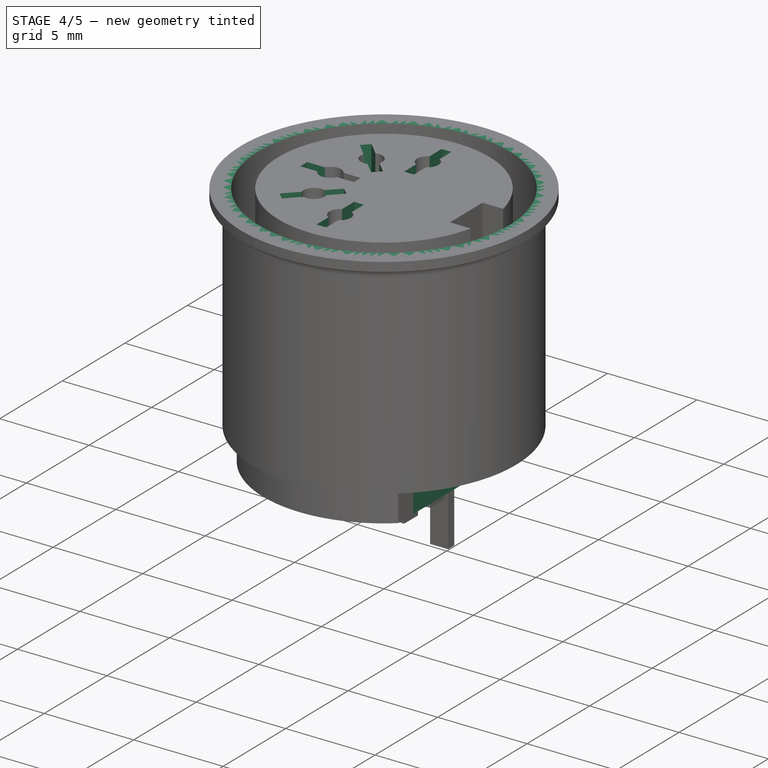
[diagram: stage 4 of 5 — iso view after this stage's code; geometry added in this stage tinted green]
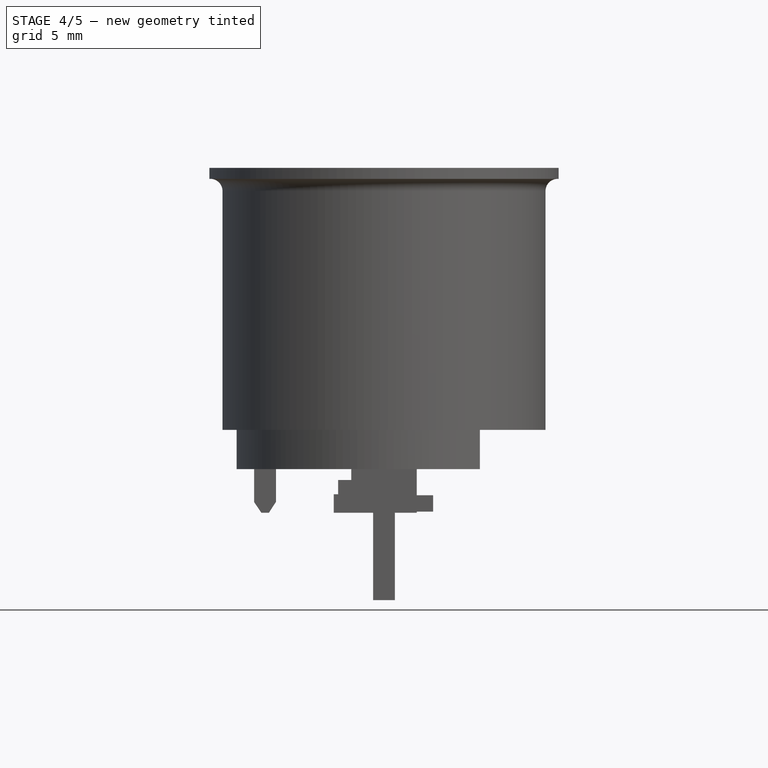
[diagram: stage 4 of 5 — front view after this stage's code; geometry added in this stage tinted green]
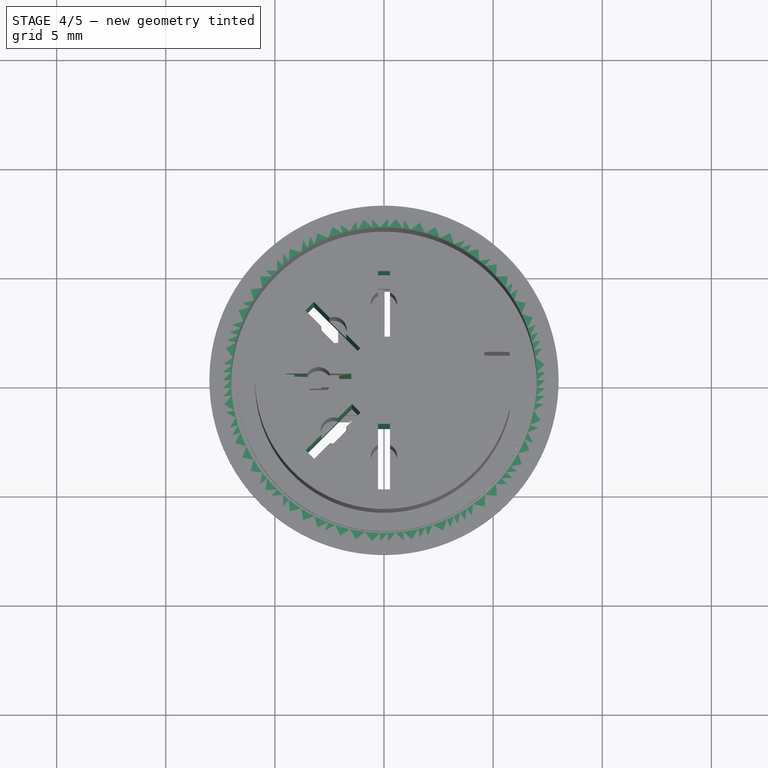
[diagram: stage 4 of 5 — top view after this stage's code; geometry added in this stage tinted green]
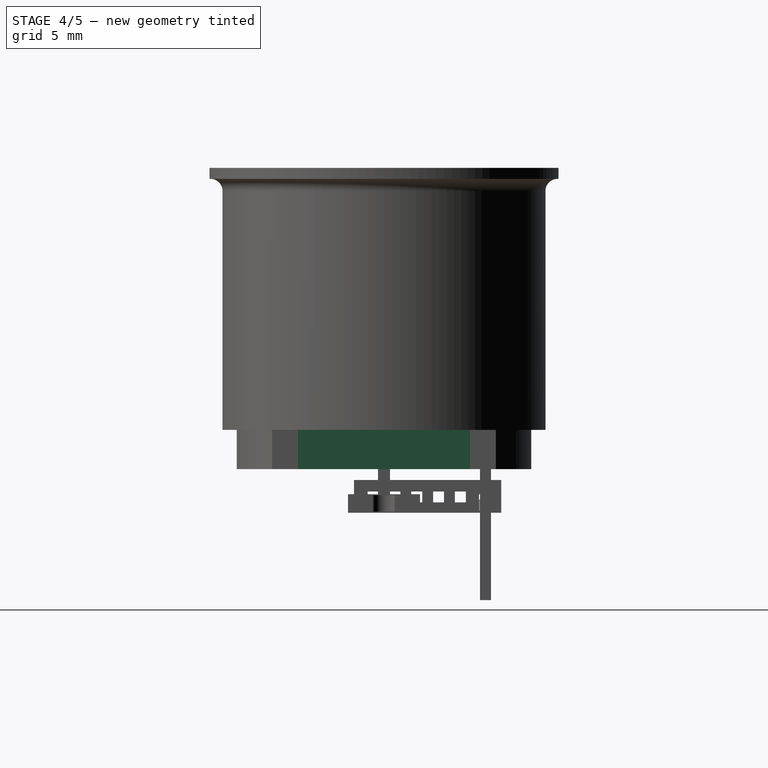
[diagram: stage 4 of 5 — right view after this stage's code; geometry added in this stage tinted green]
FEATURE [PartDesign::Body] Body023  label="Pin-contact005"
  Group = -> [Box039,Box040,Box041,Box043,Box042,Chamfer018,Chamfer019,Chamfer021,Chamfer020]
  Origin = -> Origin039
  Placement = pos=(0,0,-4) rot=(0,0,1;2.35619rad)
  Tip = -> Chamfer020
FEATURE [PartDesign::AdditiveCylinder] Cylinder016
  Angle = 360
  AttacherType = Attacher::AttachEngine3D
  AttachmentOffset = pos=(0,0,3.8) rot=(0,0,1;0rad)
  FirstAngle = 0
  Height = 12
  MapMode = 5
  Placement = pos=(0,0,3.8) rot=(0,0,1;0rad)
  Radius = 7.4
  SecondAngle = 0
  Support = -> [XY_Plane033]
FEATURE [PartDesign::AdditiveCylinder] Cylinder019
  Angle = 360
  AttacherType = Attacher::AttachEngine3D
  AttachmentOffset = pos=(0,0,15.3) rot=(0,0,1;0rad)
  BaseFeature = -> Cylinder016
  FirstAngle = 0
  Height = 0.5
  MapMode = 5
  Placement = pos=(0,0,15.3) rot=(0,0,1;0rad)
  Radius = 8
  SecondAngle = 0
  Support = -> [XY_Plane033]
FEATURE [PartDesign::SubtractiveCylinder] Cylinder017
  Angle = 360
  AttacherType = Attacher::AttachEngine3D
  AttachmentOffset = pos=(0,0,4.8) rot=(0,0,1;0rad)
  BaseFeature = -> Cylinder019
  FirstAngle = 0
  Height = 11
  MapMode = 5
  Placement = pos=(0,0,4.8) rot=(0,0,1;0rad)
  Radius = 7
  SecondAngle = 0
  Support = -> [XY_Plane033]
FEATURE [PartDesign::SubtractiveCylinder] Cylinder025
  Angle = 260.5
  AttacherType = Attacher::AttachEngine3D
  AttachmentOffset = pos=(0,0,3.8) rot=(0,0,1;2.43997rad)
  BaseFeature = -> Cylinder017
  FirstAngle = 0
  Height = 3
  MapMode = 5
  Placement = pos=(0,0,3.8) rot=(0,0,1;2.43997rad)
  Radius = 6.75
  SecondAngle = 0
  Support = -> [XY_Plane033]
FEATURE [PartDesign::SubtractiveBox] Box009
  AttacherType = Attacher::AttachEngine3D
  AttachmentOffset = pos=(-5.155,0.06,3.8) rot=(0,0,1;0rad)
  BaseFeature = -> Cylinder025
  Height = 2
  Length = 10.305
  MapMode = 5
  Placement = pos=(-5.155,0.06,3.8) rot=(0,0,1;0rad)
  Support = -> [XY_Plane033]
  Width = 4.305
FEATURE [PartDesign::AdditiveBox] Box016  label="case-pin-base"
  AttacherType = Attacher::AttachEngine3D
  AttachmentOffset = pos=(-1.5,4.4,-4) rot=(0,0,1;0rad)
  BaseFeature = -> Box009
  Height = 8
  Length = 3
  MapMode = 5
  Placement = pos=(-1.5,4.4,-4) rot=(0,0,1;0rad)
  Support = -> [XY_Plane033]
  Width = 0.5
FEATURE [PartDesign::SubtractiveBox] Box017  label="pin-cut1"
  AttacherType = Attacher::AttachEngine3D
  AttachmentOffset = pos=(-1.5,4,-4) rot=(0,0,1;0rad)
  BaseFeature = -> Box016
  Height = 4
  Length = 1
  MapMode = 5
  Placement = pos=(-1.5,4,-4) rot=(0,0,1;0rad)
  Support = -> [XY_Plane033]
  Width = 1
FEATURE [PartDesign::SubtractiveBox] Box018  label="pin-cut2"
  AttacherType = Attacher::AttachEngine3D
  AttachmentOffset = pos=(0.5,4,-4) rot=(0,0,1;0rad)
  BaseFeature = -> Box017
  Height = 4
  Length = 1
  MapMode = 5
  Placement = pos=(0.5,4,-4) rot=(0,0,1;0rad)
  Support = -> [XY_Plane033]
  Width = 1
FEATURE [Sketcher::SketchObject] Sketch012  label="Chassis"
  FullyConstrained = false
  MapMode = 5
  Support = -> [XY_Plane033]
  sketch-geometry (6):
    g0: Circle CenterX=0 CenterY=0 CenterZ=0 NormalX=0 NormalY=0 NormalZ=1 AngleXU=0 Radius=8.55
    g1: Circle CenterX=0 CenterY=0 CenterZ=0 NormalX=0 NormalY=0 NormalZ=1 AngleXU=0 Radius=8.45
    g2: Circle CenterX=0 CenterY=0 CenterZ=0 NormalX=0 NormalY=0 NormalZ=1 AngleXU=0 Radius=5.95
    g3: Circle CenterX=0 CenterY=0 CenterZ=0 NormalX=0 NormalY=0 NormalZ=1 AngleXU=0 Radius=5.85
    g4: Circle CenterX=0 CenterY=0 CenterZ=0 NormalX=0 NormalY=0 NormalZ=1 AngleXU=0 Radius=7.05
    g5: Circle CenterX=0 CenterY=0 CenterZ=0 NormalX=0 NormalY=0 NormalZ=1 AngleXU=0 Radius=6.95
FEATURE [PartDesign::Body] Body017  label="Casing001"
  Group = -> [Sketch012,Cylinder016,Cylinder019,Cylinder017,Cylinder025,Box009,Box016,Box017,Box018,Fillet006,Fillet007,Fillet008,Fillet009]
  Origin = -> Origin033
  Tip = -> Fillet009
FEATURE [App::Part] Part003  label="CUI_SD-50BV"
  Group = -> [Body017,Body018,Body019,Body020,Body021,Body022,Body023]
  Origin = -> Origin040
  Placement = pos=(31.6,11,0) rot=(0,0,1;0rad)
FEATURE [PartDesign::AdditiveBox] Box056  label="base005"
  AttacherType = Attacher::AttachEngine3D
  AttachmentOffset = pos=(-4.95,-0.275,0) rot=(0,0,1;0rad)
  Height = 15
  Length = 2.9
  MapMode = 5
  Placement = pos=(-4.95,-0.275,0) rot=(0,0,1;0rad)
  Support = -> [XY_Plane043]
  Width = 0.55
FEATURE [PartDesign::SubtractiveBox] Box057  label="middle-cut005"
  AttacherType = Attacher::AttachEngine3D
  AttachmentOffset = pos=(-4.125,-0.275,9) rot=(0,0,1;0rad)
  BaseFeature = -> Box056
  Height = 6
  Length = 1.25
  MapMode = 5
  Placement = pos=(-4.125,-0.275,9) rot=(0,0,1;0rad)
  Support = -> [XY_Plane043]
  Width = 0.55
FEATURE [PartDesign::SubtractiveBox] Box058  label="shorter-prong005"
  AttacherType = Attacher::AttachEngine3D
  AttachmentOffset = pos=(-3,-0.3,13) rot=(0,0,1;0rad)
  BaseFeature = -> Box057
  Height = 2
  Length = 1.1
  MapMode = 5
  Placement = pos=(-3,-0.3,13) rot=(0,0,1;0rad)
  Support = -> [XY_Plane043]
  Width = 0.6
FEATURE [PartDesign::AdditiveBox] Box059  label="extend006"
  AttacherType = Attacher::AttachEngine3D
  AttachmentOffset = pos=(-5.95,-0.275,0) rot=(0,0,1;0rad)
  BaseFeature = -> Box058
  Height = 6
  Length = 1
  MapMode = 5
  Placement = pos=(-5.95,-0.275,0) rot=(0,0,1;0rad)
  Support = -> [XY_Plane043]
  Width = 0.55
FEATURE [PartDesign::SubtractiveBox] Box060
  AttacherType = Attacher::AttachEngine3D
  AttachmentOffset = pos=(1,-0.55,-4) rot=(0,0,1;0rad)
  BaseFeature = -> Box059
  Height = 4
  Length = 3
  MapMode = 5
  Placement = pos=(-4.95,0.275,4) rot=(1,0,0;3.14159rad)
  Support = -> [Box059]
  Width = 0.55
FEATURE [PartDesign::AdditiveBox] Box061  label="base006"
  AttacherType = Attacher::AttachEngine3D
  AttachmentOffset = pos=(-4.95,-0.275,0) rot=(0,0,1;0rad)
  Height = 15
  Length = 2.9
  MapMode = 5
  Placement = pos=(-4.95,-0.275,0) rot=(0,0,1;0rad)
  Support = -> [XY_Plane044]
  Width = 0.55
FEATURE [PartDesign::SubtractiveBox] Box062  label="middle-cut006"
  AttacherType = Attacher::AttachEngine3D
  AttachmentOffset = pos=(-4.125,-0.275,9) rot=(0,0,1;0rad)
  BaseFeature = -> Box061
  Height = 6
  Length = 1.25
  MapMode = 5
  Placement = pos=(-4.125,-0.275,9) rot=(0,0,1;0rad)
  Support = -> [XY_Plane044]
  Width = 0.55
FEATURE [PartDesign::SubtractiveBox] Box063  label="shorter-prong006"
  AttacherType = Attacher::AttachEngine3D
  AttachmentOffset = pos=(-3,-0.3,13) rot=(0,0,1;0rad)
  BaseFeature = -> Box062
  Height = 2
  Length = 1.1
  MapMode = 5
  Placement = pos=(-3,-0.3,13) rot=(0,0,1;0rad)
  Support = -> [XY_Plane044]
  Width = 0.6
FEATURE [PartDesign::AdditiveBox] Box065  label="extend007"
  AttacherType = Attacher::AttachEngine3D
  AttachmentOffset = pos=(-5.95,-0.275,0) rot=(0,0,1;0rad)
  BaseFeature = -> Box063
  Height = 6
  Length = 1
  MapMode = 5
  Placement = pos=(-5.95,-0.275,0) rot=(0,0,1;0rad)
  Support = -> [XY_Plane044]
  Width = 0.55
FEATURE [PartDesign::SubtractiveBox] Box064
  AttacherType = Attacher::AttachEngine3D
  AttachmentOffset = pos=(1,-0.55,-4) rot=(0,0,1;0rad)
  BaseFeature = -> Box065
  Height = 4
  Length = 3
  MapMode = 5
  Placement = pos=(-4.95,0.275,4) rot=(1,0,0;3.14159rad)
  Support = -> [Box065]
  Width = 0.55
FEATURE [PartDesign::AdditiveBox] Box066  label="base007"
  AttacherType = Attacher::AttachEngine3D
  AttachmentOffset = pos=(-4.95,-0.275,0) rot=(0,0,1;0rad)
  Height = 15
  Length = 2.9
  MapMode = 5
  Placement = pos=(-4.95,-0.275,0) rot=(0,0,1;0rad)
  Support = -> [XY_Plane045]
  Width = 0.55
FEATURE [PartDesign::SubtractiveBox] Box067  label="middle-cut007"
  AttacherType = Attacher::AttachEngine3D
  AttachmentOffset = pos=(-4.125,-0.275,9) rot=(0,0,1;0rad)
  BaseFeature = -> Box066
  Height = 6
  Length = 1.25
  MapMode = 5
  Placement = pos=(-4.125,-0.275,9) rot=(0,0,1;0rad)
  Support = -> [XY_Plane045]
  Width = 0.55
FEATURE [PartDesign::SubtractiveBox] Box068  label="shorter-prong007"
  AttacherType = Attacher::AttachEngine3D
  AttachmentOffset = pos=(-3,-0.3,13) rot=(0,0,1;0rad)
  BaseFeature = -> Box067
  Height = 2
  Length = 1.1
  MapMode = 5
  Placement = pos=(-3,-0.3,13) rot=(0,0,1;0rad)
  Support = -> [XY_Plane045]
  Width = 0.6
FEATURE [PartDesign::AdditiveBox] Box070  label="extend008"
  AttacherType = Attacher::AttachEngine3D
  AttachmentOffset = pos=(-5.95,-0.275,0) rot=(0,0,1;0rad)
  BaseFeature = -> Box068
  Height = 6
  Length = 1
  MapMode = 5
  Placement = pos=(-5.95,-0.275,0) rot=(0,0,1;0rad)
  Support = -> [XY_Plane045]
  Width = 0.55
FEATURE [PartDesign::SubtractiveBox] Box069
  AttacherType = Attacher::AttachEngine3D
  AttachmentOffset = pos=(1,-0.55,-4) rot=(0,0,1;0rad)
  BaseFeature = -> Box070
  Height = 4
  Length = 3
  MapMode = 5
  Placement = pos=(-4.95,0.275,4) rot=(1,0,0;3.14159rad)
  Support = -> [Box070]
  Width = 0.55
FEATURE [PartDesign::AdditiveBox] Box071  label="base008"
  AttacherType = Attacher::AttachEngine3D
  AttachmentOffset = pos=(-4.95,-0.275,0) rot=(0,0,1;0rad)
  Height = 15
  Length = 2.9
  MapMode = 5
  Placement = pos=(-4.95,-0.275,0) rot=(0,0,1;0rad)
  Support = -> [XY_Plane046]
  Width = 0.55
FEATURE [PartDesign::SubtractiveBox] Box072  label="middle-cut008"
  AttacherType = Attacher::AttachEngine3D
  AttachmentOffset = pos=(-4.125,-0.275,9) rot=(0,0,1;0rad)
  BaseFeature = -> Box071
  Height = 6
  Length = 1.25
  MapMode = 5
  Placement = pos=(-4.125,-0.275,9) rot=(0,0,1;0rad)
  Support = -> [XY_Plane046]
  Width = 0.55
FEATURE [PartDesign::SubtractiveBox] Box073  label="shorter-prong008"
  AttacherType = Attacher::AttachEngine3D
  AttachmentOffset = pos=(-3,-0.3,13) rot=(0,0,1;0rad)
  BaseFeature = -> Box072
  Height = 2
  Length = 1.1
  MapMode = 5
  Placement = pos=(-3,-0.3,13) rot=(0,0,1;0rad)
  Support = -> [XY_Plane046]
  Width = 0.6
FEATURE [PartDesign::AdditiveBox] Box075  label="extend009"
  AttacherType = Attacher::AttachEngine3D
  AttachmentOffset = pos=(-5.95,-0.275,0) rot=(0,0,1;0rad)
  BaseFeature = -> Box073
  Height = 6
  Length = 1
  MapMode = 5
  Placement = pos=(-5.95,-0.275,0) rot=(0,0,1;0rad)
  Support = -> [XY_Plane046]
  Width = 0.55
FEATURE [PartDesign::SubtractiveBox] Box074
  AttacherType = Attacher::AttachEngine3D
  AttachmentOffset = pos=(1,-0.55,-4) rot=(0,0,1;0rad)
  BaseFeature = -> Box075
  Height = 4
  Length = 3
  MapMode = 5
  Placement = pos=(-4.95,0.275,4) rot=(1,0,0;3.14159rad)
  Support = -> [Box075]
  Width = 0.55
FEATURE [PartDesign::AdditiveBox] Box076  label="base009"
  AttacherType = Attacher::AttachEngine3D
  AttachmentOffset = pos=(-4.95,-0.275,0) rot=(0,0,1;0rad)
  Height = 15
  Length = 2.9
  MapMode = 5
  Placement = pos=(-4.95,-0.275,0) rot=(0,0,1;0rad)
  Support = -> [XY_Plane047]
  Width = 0.55
FEATURE [PartDesign::SubtractiveBox] Box077  label="middle-cut009"
  AttacherType = Attacher::AttachEngine3D
  AttachmentOffset = pos=(-4.125,-0.275,9) rot=(0,0,1;0rad)
  BaseFeature = -> Box076
  Height = 6
  Length = 1.25
  MapMode = 5
  Placement = pos=(-4.125,-0.275,9) rot=(0,0,1;0rad)
  Support = -> [XY_Plane047]
  Width = 0.55
FEATURE [PartDesign::SubtractiveBox] Box078  label="shorter-prong009"
  AttacherType = Attacher::AttachEngine3D
  AttachmentOffset = pos=(-3,-0.3,13) rot=(0,0,1;0rad)
  BaseFeature = -> Box077
  Height = 2
  Length = 1.1
  MapMode = 5
  Placement = pos=(-3,-0.3,13) rot=(0,0,1;0rad)
  Support = -> [XY_Plane047]
  Width = 0.6
FEATURE [PartDesign::AdditiveBox] Box080  label="extend010"
  AttacherType = Attacher::AttachEngine3D
  AttachmentOffset = pos=(-5.95,-0.275,0) rot=(0,0,1;0rad)
  BaseFeature = -> Box078
  Height = 6
  Length = 1
  MapMode = 5
  Placement = pos=(-5.95,-0.275,0) rot=(0,0,1;0rad)
  Support = -> [XY_Plane047]
  Width = 0.55
FEATURE [PartDesign::SubtractiveBox] Box079
  AttacherType = Attacher::AttachEngine3D
  AttachmentOffset = pos=(1,-0.55,-4) rot=(0,0,1;0rad)
  BaseFeature = -> Box080
  Height = 4
  Length = 3
  MapMode = 5
  Placement = pos=(-4.95,0.275,4) rot=(1,0,0;3.14159rad)
  Support = -> [Box080]
  Width = 0.55
FEATURE [PartDesign::Chamfer] Chamfer022
  Angle = 45
  Base = -> Box060 [Edge26]
  BaseFeature = -> Box060
  ChamferType = 1
  FlipDirection = false
  Placement = pos=(-4.95,0.275,4) rot=(1,0,0;3.14159rad)
  Size = 2
  Size2 = 0.65
  SupportTransform = false
  UseAllEdges = false
FEATURE [PartDesign::Chamfer] Chamfer023  label="pin-end011"
  Angle = 33
  Base = -> Chamfer022 [Edge36]
  BaseFeature = -> Chamfer022
  ChamferType = 2
  FlipDirection = false
  Placement = pos=(-4.95,0.275,4) rot=(1,0,0;3.14159rad)
  Size = 0.5
  Size2 = 1
  SupportTransform = false
  UseAllEdges = false
FEATURE [PartDesign::Chamfer] Chamfer024  label="pin-end012"
  Angle = 56
  Base = -> Chamfer023 [Edge9]
  BaseFeature = -> Chamfer023
  ChamferType = 2
  FlipDirection = false
  Placement = pos=(-4.95,0.275,4) rot=(1,0,0;3.14159rad)
  Size = 0.33
  Size2 = 1
  SupportTransform = false
  UseAllEdges = false
FEATURE [PartDesign::Chamfer] Chamfer025
  Angle = 26.565
  Base = -> Chamfer024 [Edge15]
  BaseFeature = -> Chamfer024
  ChamferType = 2
  FlipDirection = false
  Placement = pos=(-4.95,0.275,4) rot=(1,0,0;3.14159rad)
  Size = 1.98
  Size2 = 1
  SupportTransform = false
  UseAllEdges = false
FEATURE [PartDesign::Body] Body026  label="Pin-contact006"
  Group = -> [Box056,Box057,Box058,Box059,Box060,Chamfer022,Chamfer023,Chamfer024,Chamfer025]
  Origin = -> Origin043
  Placement = pos=(0,0,-4) rot=(0,0,1;0rad)
  Tip = -> Chamfer025
FEATURE [PartDesign::Chamfer] Chamfer026
  Angle = 45
  Base = -> Box064 [Edge26]
  BaseFeature = -> Box064
  ChamferType = 1
  FlipDirection = false
  Placement = pos=(-4.95,0.275,4) rot=(1,0,0;3.14159rad)
  Size = 2
  Size2 = 0.65
  SupportTransform = false
  UseAllEdges = false
FEATURE [PartDesign::Chamfer] Chamfer027  label="pin-end013"
  Angle = 33
  Base = -> Chamfer026 [Edge36]
  BaseFeature = -> Chamfer026
  ChamferType = 2
  FlipDirection = false
  Placement = pos=(-4.95,0.275,4) rot=(1,0,0;3.14159rad)
  Size = 0.5
  Size2 = 1
  SupportTransform = false
  UseAllEdges = false
FEATURE [PartDesign::Chamfer] Chamfer029  label="pin-end014"
  Angle = 56
  Base = -> Chamfer027 [Edge9]
  BaseFeature = -> Chamfer027
  ChamferType = 2
  FlipDirection = false
  Placement = pos=(-4.95,0.275,4) rot=(1,0,0;3.14159rad)
  Size = 0.33
  Size2 = 1
  SupportTransform = false
  UseAllEdges = false
FEATURE [PartDesign::Chamfer] Chamfer028
  Angle = 26.565
  Base = -> Chamfer029 [Edge15]
  BaseFeature = -> Chamfer029
  ChamferType = 2
  FlipDirection = false
  Placement = pos=(-4.95,0.275,4) rot=(1,0,0;3.14159rad)
  Size = 1.98
  Size2 = 1
  SupportTransform = false
  UseAllEdges = false
FEATURE [PartDesign::Body] Body027  label="Pin-contact007"
  Group = -> [Box061,Box062,Box063,Box065,Box064,Chamfer026,Chamfer027,Chamfer029,Chamfer028]
  Origin = -> Origin044
  Placement = pos=(0,0,-4) rot=(0,0,1;1.5708rad)
  Tip = -> Chamfer028
FEATURE [PartDesign::Chamfer] Chamfer030
  Angle = 45
  Base = -> Box069 [Edge26]
  BaseFeature = -> Box069
  ChamferType = 1
  FlipDirection = false
  Placement = pos=(-4.95,0.275,4) rot=(1,0,0;3.14159rad)
  Size = 2
  Size2 = 0.65
  SupportTransform = false
  UseAllEdges = false
FEATURE [PartDesign::Chamfer] Chamfer031  label="pin-end015"
  Angle = 33
  Base = -> Chamfer030 [Edge36]
  BaseFeature = -> Chamfer030
  ChamferType = 2
  FlipDirection = false
  Placement = pos=(-4.95,0.275,4) rot=(1,0,0;3.14159rad)
  Size = 0.5
  Size2 = 1
  SupportTransform = false
  UseAllEdges = false
FEATURE [PartDesign::Chamfer] Chamfer033  label="pin-end016"
  Angle = 56
  Base = -> Chamfer031 [Edge9]
  BaseFeature = -> Chamfer031
  ChamferType = 2
  FlipDirection = false
  Placement = pos=(-4.95,0.275,4) rot=(1,0,0;3.14159rad)
  Size = 0.33
  Size2 = 1
  SupportTransform = false
  UseAllEdges = false
FEATURE [PartDesign::Chamfer] Chamfer032
  Angle = 26.565
  Base = -> Chamfer033 [Edge15]
  BaseFeature = -> Chamfer033
  ChamferType = 2
  FlipDirection = false
  Placement = pos=(-4.95,0.275,4) rot=(1,0,0;3.14159rad)
  Size = 1.98
  Size2 = 1
  SupportTransform = false
  UseAllEdges = false
FEATURE [PartDesign::Body] Body028  label="Pin-contact008"
  Group = -> [Box066,Box067,Box068,Box070,Box069,Chamfer030,Chamfer031,Chamfer033,Chamfer032]
  Origin = -> Origin045
  Placement = pos=(0,0,-4) rot=(0,0,1;3.14159rad)
  Tip = -> Chamfer032
FEATURE [PartDesign::Chamfer] Chamfer034
  Angle = 45
  Base = -> Box074 [Edge26]
  BaseFeature = -> Box074
  ChamferType = 1
  FlipDirection = false
  Placement = pos=(-4.95,0.275,4) rot=(1,0,0;3.14159rad)
  Size = 2
  Size2 = 0.65
  SupportTransform = false
  UseAllEdges = false
FEATURE [PartDesign::Chamfer] Chamfer035  label="pin-end017"
  Angle = 33
  Base = -> Chamfer034 [Edge36]
  BaseFeature = -> Chamfer034
  ChamferType = 2
  FlipDirection = false
  Placement = pos=(-4.95,0.275,4) rot=(1,0,0;3.14159rad)
  Size = 0.5
  Size2 = 1
  SupportTransform = false
  UseAllEdges = false
FEATURE [PartDesign::Chamfer] Chamfer037  label="pin-end018"
  Angle = 56
  Base = -> Chamfer035 [Edge9]
  BaseFeature = -> Chamfer035
  ChamferType = 2
  FlipDirection = false
  Placement = pos=(-4.95,0.275,4) rot=(1,0,0;3.14159rad)
  Size = 0.33
  Size2 = 1
  SupportTransform = false
  UseAllEdges = false
FEATURE [PartDesign::Chamfer] Chamfer036
  Angle = 26.565
  Base = -> Chamfer037 [Edge15]
  BaseFeature = -> Chamfer037
  ChamferType = 2
  FlipDirection = false
  Placement = pos=(-4.95,0.275,4) rot=(1,0,0;3.14159rad)
  Size = 1.98
  Size2 = 1
  SupportTransform = false
  UseAllEdges = false
FEATURE [PartDesign::Body] Body029  label="Pin-contact009"
  Group = -> [Box071,Box072,Box073,Box075,Box074,Chamfer034,Chamfer035,Chamfer037,Chamfer036]
  Origin = -> Origin046
  Placement = pos=(0,0,-4) rot=(0,0,1;0.785398rad)
  Tip = -> Chamfer036
FEATURE [PartDesign::Chamfer] Chamfer038
  Angle = 45
  Base = -> Box079 [Edge26]
  BaseFeature = -> Box079
  ChamferType = 1
  FlipDirection = false
  Placement = pos=(-4.95,0.275,4) rot=(1,0,0;3.14159rad)
  Size = 2
  Size2 = 0.65
  SupportTransform = false
  UseAllEdges = false
FEATURE [PartDesign::Chamfer] Chamfer039  label="pin-end019"
  Angle = 33
  Base = -> Chamfer038 [Edge36]
  BaseFeature = -> Chamfer038
  ChamferType = 2
  FlipDirection = false
  Placement = pos=(-4.95,0.275,4) rot=(1,0,0;3.14159rad)
  Size = 0.5
  Size2 = 1
  SupportTransform = false
  UseAllEdges = false
FEATURE [PartDesign::Chamfer] Chamfer041  label="pin-end020"
  Angle = 56
  Base = -> Chamfer039 [Edge9]
  BaseFeature = -> Chamfer039
  ChamferType = 2
  FlipDirection = false
  Placement = pos=(-4.95,0.275,4) rot=(1,0,0;3.14159rad)
  Size = 0.33
  Size2 = 1
  SupportTransform = false
  UseAllEdges = false
FEATURE [PartDesign::Chamfer] Chamfer040
  Angle = 26.565
  Base = -> Chamfer041 [Edge15]
  BaseFeature = -> Chamfer041
  ChamferType = 2
  FlipDirection = false
  Placement = pos=(-4.95,0.275,4) rot=(1,0,0;3.14159rad)
  Size = 1.98
  Size2 = 1
  SupportTransform = false
  UseAllEdges = false
FEATURE [PartDesign::Body] Body030  label="Pin-contact010"
  Group = -> [Box076,Box077,Box078,Box080,Box079,Chamfer038,Chamfer039,Chamfer041,Chamfer040]
  Origin = -> Origin047
  Placement = pos=(0,0,-4) rot=(0,0,1;2.35619rad)
  Tip = -> Chamfer040
FEATURE [PartDesign::AdditiveCylinder] Cylinder028
  Angle = 360
  AttacherType = Attacher::AttachEngine3D
  AttachmentOffset = pos=(0,0,3.8) rot=(0,0,1;0rad)
  FirstAngle = 0
  Height = 12
  MapMode = 5
  Placement = pos=(0,0,3.8) rot=(0,0,1;0rad)
  Radius = 7.4
  SecondAngle = 0
  Support = -> [XY_Plane041]
FEATURE [PartDesign::AdditiveCylinder] Cylinder030
  Angle = 360
  AttacherType = Attacher::AttachEngine3D
  AttachmentOffset = pos=(0,0,2) rot=(0,0,1;0rad)
  FirstAngle = 0
  Height = 13.8
  MapMode = 5
  Placement = pos=(0,0,2) rot=(0,0,1;0rad)
  Radius = 5.9
  SecondAngle = 0
  Support = -> [XY_Plane042]
FEATURE [PartDesign::AdditiveCylinder] Cylinder031
  Angle = 360
  AttacherType = Attacher::AttachEngine3D
  AttachmentOffset = pos=(0,0,15.3) rot=(0,0,1;0rad)
  BaseFeature = -> Cylinder028
  FirstAngle = 0
  Height = 0.5
  MapMode = 5
  Placement = pos=(0,0,15.3) rot=(0,0,1;0rad)
  Radius = 8
  SecondAngle = 0
  Support = -> [XY_Plane041]
FEATURE [PartDesign::SubtractiveCylinder] Cylinder029
  Angle = 360
  AttacherType = Attacher::AttachEngine3D
  AttachmentOffset = pos=(0,0,4.8) rot=(0,0,1;0rad)
  BaseFeature = -> Cylinder031
  FirstAngle = 0
  Height = 11
  MapMode = 5
  Placement = pos=(0,0,4.8) rot=(0,0,1;0rad)
  Radius = 7
  SecondAngle = 0
  Support = -> [XY_Plane041]
FEATURE [PartDesign::SubtractiveCylinder] Cylinder032
  Angle = 360
  AttacherType = Attacher::AttachEngine3D
  AttachmentOffset = pos=(0,3.5,0) rot=(0,0,1;0rad)
  BaseFeature = -> Cylinder030
  FirstAngle = 0
  Height = 16
  MapMode = 5
  Placement = pos=(0,3.5,0) rot=(0,0,1;0rad)
  Radius = 0.6
  SecondAngle = 0
  Support = -> [XY_Plane042]
FEATURE [PartDesign::SubtractiveCylinder] Cylinder033
  Angle = 360
  AttacherType = Attacher::AttachEngine3D
  AttachmentOffset = pos=(0,-3.5,0) rot=(0,0,1;0rad)
  BaseFeature = -> Cylinder032
  FirstAngle = 0
  Height = 16
  MapMode = 5
  Placement = pos=(0,-3.5,0) rot=(0,0,1;0rad)
  Radius = 0.6
  SecondAngle = 0
  Support = -> [XY_Plane042]
FEATURE [PartDesign::SubtractiveBox] Box045
  AttacherType = Attacher::AttachEngine3D
  AttachmentOffset = pos=(4.6,-1.3,5) rot=(0,0,1;0rad)
  BaseFeature = -> Cylinder033
  Height = 11
  Length = 1.3
  MapMode = 5
  Placement = pos=(4.6,-1.3,5) rot=(0,0,1;0rad)
  Support = -> [XY_Plane042]
  Width = 2.6
FEATURE [PartDesign::SubtractiveCylinder] Cylinder034
  Angle = 360
  AttacherType = Attacher::AttachEngine3D
  AttachmentOffset = pos=(-3,0,0) rot=(0,0,1;0rad)
  BaseFeature = -> Box045
  FirstAngle = 0
  Height = 16
  MapMode = 5
  Placement = pos=(-3,0,0) rot=(0,0,1;0rad)
  Radius = 0.6
  SecondAngle = 0
  Support = -> [XY_Plane042]
FEATURE [PartDesign::SubtractiveCylinder] Cylinder035
  Angle = 360
  AttacherType = Attacher::AttachEngine3D
  AttachmentOffset = pos=(-2.3,-2.3,0) rot=(0,0,1;0rad)
  BaseFeature = -> Cylinder034
  FirstAngle = 0
  Height = 16
  MapMode = 5
  Placement = pos=(-2.3,-2.3,0) rot=(0,0,1;0rad)
  Radius = 0.6
  SecondAngle = 0
  Support = -> [XY_Plane042]
FEATURE [PartDesign::SubtractiveCylinder] Cylinder036
  Angle = 360
  AttacherType = Attacher::AttachEngine3D
  AttachmentOffset = pos=(-2.3,2.3,0) rot=(0,0,1;0rad)
  BaseFeature = -> Cylinder035
  FirstAngle = 0
  Height = 16
  MapMode = 5
  Placement = pos=(-2.3,2.3,0) rot=(0,0,1;0rad)
  Radius = 0.6
  SecondAngle = 0
  Support = -> [XY_Plane042]
FEATURE [PartDesign::SubtractiveCylinder] Cylinder037
  Angle = 260.5
  AttacherType = Attacher::AttachEngine3D
  AttachmentOffset = pos=(0,0,3.8) rot=(0,0,1;2.43997rad)
  BaseFeature = -> Cylinder029
  FirstAngle = 0
  Height = 3
  MapMode = 5
  Placement = pos=(0,0,3.8) rot=(0,0,1;2.43997rad)
  Radius = 6.75
  SecondAngle = 0
  Support = -> [XY_Plane041]
FEATURE [PartDesign::SubtractiveBox] Box046
  AttacherType = Attacher::AttachEngine3D
  AttachmentOffset = pos=(-5.155,0.06,3.8) rot=(0,0,1;0rad)
  BaseFeature = -> Cylinder037
  Height = 2
  Length = 10.305
  MapMode = 5
  Placement = pos=(-5.155,0.06,3.8) rot=(0,0,1;0rad)
  Support = -> [XY_Plane041]
  Width = 4.305
FEATURE [PartDesign::AdditiveBox] Box053  label="case-pin-base001"
  AttacherType = Attacher::AttachEngine3D
  AttachmentOffset = pos=(-1.5,4.4,-4) rot=(0,0,1;0rad)
  BaseFeature = -> Box046
  Height = 8
  Length = 3
  MapMode = 5
  Placement = pos=(-1.5,4.4,-4) rot=(0,0,1;0rad)
  Support = -> [XY_Plane041]
  Width = 0.5
FEATURE [PartDesign::SubtractiveBox] Box054  label="pin-cut003"
  AttacherType = Attacher::AttachEngine3D
  AttachmentOffset = pos=(-1.5,4,-4) rot=(0,0,1;0rad)
  BaseFeature = -> Box053
  Height = 4
  Length = 1
  MapMode = 5
  Placement = pos=(-1.5,4,-4) rot=(0,0,1;0rad)
  Support = -> [XY_Plane041]
  Width = 1
FEATURE [PartDesign::SubtractiveBox] Box055  label="pin-cut004"
  AttacherType = Attacher::AttachEngine3D
  AttachmentOffset = pos=(0.5,4,-4) rot=(0,0,1;0rad)
  BaseFeature = -> Box054
  Height = 4
  Length = 1
  MapMode = 5
  Placement = pos=(0.5,4,-4) rot=(0,0,1;0rad)
  Support = -> [XY_Plane041]
  Width = 1
FEATURE [PartDesign::AdditiveCylinder] Cylinder038
  Angle = 262
  AttacherType = Attacher::AttachEngine3D
  AttachmentOffset = pos=(0,0,2) rot=(0,0,1;0.855211rad)
  BaseFeature = -> Cylinder036
  FirstAngle = 0
  Height = 3
  MapMode = 5
  Placement = pos=(0,0,2) rot=(0,0,1;0.855211rad)
  Radius = 6.75
  SecondAngle = 0
  Support = -> [XY_Plane042]
FEATURE [PartDesign::AdditiveBox] Box047
  AttacherType = Attacher::AttachEngine3D
  AttachmentOffset = pos=(0.03,-5.095,2) rot=(0,0,1;0rad)
  BaseFeature = -> Cylinder038
  Height = 2
  Length = 4.4
  MapMode = 5
  Placement = pos=(0.03,-5.095,2) rot=(0,0,1;0rad)
  Support = -> [XY_Plane042]
  Width = 10.19
FEATURE [PartDesign::AdditiveCylinder] Cylinder039  label="bottom-fill001"
  Angle = 360
  AttacherType = Attacher::AttachEngine3D
  AttachmentOffset = pos=(0,0,4.8) rot=(0,0,1;0rad)
  BaseFeature = -> Box047
  FirstAngle = 0
  Height = 1
  MapMode = 5
  Placement = pos=(0,0,4.8) rot=(0,0,1;0rad)
  Radius = 6.75
  SecondAngle = 0
  Support = -> [XY_Plane042]
FEATURE [PartDesign::SubtractiveBox] Box048  label="slit006"
  AttacherType = Attacher::AttachEngine3D
  AttachmentOffset = pos=(0.275,-5,2) rot=(0,0,1;1.5708rad)
  BaseFeature = -> Cylinder039
  Height = 14
  Length = 3
  MapMode = 5
  Placement = pos=(0.275,-5,2) rot=(0,0,1;1.5708rad)
  Support = -> [XY_Plane042]
  Width = 0.55
FEATURE [PartDesign::SubtractiveBox] Box049  label="slit007"
  AttacherType = Attacher::AttachEngine3D
  AttachmentOffset = pos=(-3.6,3.2,2) rot=(0,0,-1;0.785398rad)
  BaseFeature = -> Box048
  Height = 14
  Length = 3
  MapMode = 5
  Placement = pos=(-3.6,3.2,2) rot=(0,0,-1;0.785398rad)
  Support = -> [XY_Plane042]
  Width = 0.55
FEATURE [PartDesign::SubtractiveBox] Box050  label="slit008"
  AttacherType = Attacher::AttachEngine3D
  AttachmentOffset = pos=(-4.5,-0.25,2) rot=(0,0,1;0rad)
  BaseFeature = -> Box049
  Height = 14
  Length = 3
  MapMode = 5
  Placement = pos=(-4.5,-0.25,2) rot=(0,0,1;0rad)
  Support = -> [XY_Plane042]
  Width = 0.55
FEATURE [PartDesign::SubtractiveBox] Box051  label="slit009"
  AttacherType = Attacher::AttachEngine3D
  AttachmentOffset = pos=(-3.2,-3.6,2) rot=(0,0,1;0.785398rad)
  BaseFeature = -> Box050
  Height = 14
  Length = 3
  MapMode = 5
  Placement = pos=(-3.2,-3.6,2) rot=(0,0,1;0.785398rad)
  Support = -> [XY_Plane042]
  Width = 0.55
FEATURE [PartDesign::SubtractiveBox] Box052  label="slit010"
  AttacherType = Attacher::AttachEngine3D
  AttachmentOffset = pos=(0.275,2,2) rot=(0,0,1;1.5708rad)
  BaseFeature = -> Box051
  Height = 14
  Length = 3
  MapMode = 5
  Placement = pos=(0.275,2,2) rot=(0,0,1;1.5708rad)
  Support = -> [XY_Plane042]
  Width = 0.55
FEATURE [PartDesign::SubtractiveBox] Box044
  AttacherType = Attacher::AttachEngine3D
  AttachmentOffset = pos=(4.39,-5.5,2) rot=(0,0,1;0rad)
  BaseFeature = -> Box052
  Height = 3
  Length = 5
  MapMode = 5
  Placement = pos=(4.39,-5.5,2) rot=(0,0,1;0rad)
  Support = -> [XY_Plane042]
  Width = 11
FEATURE [PartDesign::Body] Body025  label="Plastic002"
  Group = -> [Cylinder030,Cylinder032,Cylinder033,Box045,Cylinder034,Cylinder035,Cylinder036,Cylinder038,Box047,Cylinder039,Box048,Box049,Box050,Box051,Box052,Box044]
  Origin = -> Origin042
  Placement = pos=(0,0,0) rot=(0,0,1;1.5708rad)
  Tip = -> Box044
FEATURE [PartDesign::Fillet] Fillet010
  Base = -> Box055 [Edge56,Edge57]
  BaseFeature = -> Box055
  Placement = pos=(0.5,4,-4) rot=(0,0,1;0rad)
  Radius = 0.35
  SupportTransform = false
  UseAllEdges = false
FEATURE [PartDesign::Fillet] Fillet011  label="Out-up-ring-soft001"
  Base = -> Fillet010 [Edge40]
  BaseFeature = -> Fillet010
  Placement = pos=(0.5,4,-4) rot=(0,0,1;0rad)
  Radius = 0.5589
  SupportTransform = false
  UseAllEdges = false
FEATURE [PartDesign::Fillet] Fillet012  label="In-up-ring-soft001"
  Base = -> Fillet011 [Edge65]
  BaseFeature = -> Fillet011
  Placement = pos=(0.5,4,-4) rot=(0,0,1;0rad)
  Radius = 0.39
  SupportTransform = false
  UseAllEdges = false
FEATURE [PartDesign::Fillet] Fillet013  label="bot-edge-soft001"
  Base = -> Fillet012 [Edge32]
  BaseFeature = -> Fillet012
  Placement = pos=(0.5,4,-4) rot=(0,0,1;0rad)
  Radius = 0.64
  SupportTransform = false
  UseAllEdges = false
FEATURE [Sketcher::SketchObject] Sketch013  label="Chassis001"
  FullyConstrained = false
  MapMode = 5
  Support = -> [XY_Plane041]
  sketch-geometry (6):
    g0: Circle CenterX=0 CenterY=0 CenterZ=0 NormalX=0 NormalY=0 NormalZ=1 AngleXU=0 Radius=8.55
    g1: Circle CenterX=0 CenterY=0 CenterZ=0 NormalX=0 NormalY=0 NormalZ=1 AngleXU=0 Radius=8.45
    g2: Circle CenterX=0 CenterY=0 CenterZ=0 NormalX=0 NormalY=0 NormalZ=1 AngleXU=0 Radius=5.95
    g3: Circle CenterX=0 CenterY=0 CenterZ=0 NormalX=0 NormalY=0 NormalZ=1 AngleXU=0 Radius=5.85
    g4: Circle CenterX=0 CenterY=0 CenterZ=0 NormalX=0 NormalY=0 NormalZ=1 AngleXU=0 Radius=7.05
    g5: Circle CenterX=0 CenterY=0 CenterZ=0 NormalX=0 NormalY=0 NormalZ=1 AngleXU=0 Radius=6.95
FEATURE [PartDesign::Body] Body024  label="Casing002"
  Group = -> [Sketch013,Cylinder028,Cylinder031,Cylinder029,Cylinder037,Box046,Box053,Box054,Box055,Fillet010,Fillet011,Fillet012,Fillet013]
  Origin = -> Origin041
  Tip = -> Fillet013
FEATURE [App::Part] Part004  label="CUI_SD-50BV001"
  Group = -> [Body024,Body025,Body026,Body027,Body028,Body029,Body030]
  Origin = -> Origin048
  Placement = pos=(57.2,16.4,0) rot=(0,0,1;0rad)
FEATURE [PartDesign::AdditiveBox] Box093  label="base010"
  AttacherType = Attacher::AttachEngine3D
  AttachmentOffset = pos=(-4.95,-0.275,0) rot=(0,0,1;0rad)
  Height = 15
  Length = 2.9
  MapMode = 5
  Placement = pos=(-4.95,-0.275,0) rot=(0,0,1;0rad)
  Support = -> [XY_Plane051]
  Width = 0.55
FEATURE [PartDesign::SubtractiveBox] Box094  label="middle-cut010"
  AttacherType = Attacher::AttachEngine3D
  AttachmentOffset = pos=(-4.125,-0.275,9) rot=(0,0,1;0rad)
  BaseFeature = -> Box093
  Height = 6
  Length = 1.25
  MapMode = 5
  Placement = pos=(-4.125,-0.275,9) rot=(0,0,1;0rad)
  Support = -> [XY_Plane051]
  Width = 0.55
FEATURE [PartDesign::SubtractiveBox] Box095  label="shorter-prong010"
  AttacherType = Attacher::AttachEngine3D
  AttachmentOffset = pos=(-3,-0.3,13) rot=(0,0,1;0rad)
  BaseFeature = -> Box094
  Height = 2
  Length = 1.1
  MapMode = 5
  Placement = pos=(-3,-0.3,13) rot=(0,0,1;0rad)
  Support = -> [XY_Plane051]
  Width = 0.6
FEATURE [PartDesign::AdditiveBox] Box096  label="extend011"
  AttacherType = Attacher::AttachEngine3D
  AttachmentOffset = pos=(-5.95,-0.275,0) rot=(0,0,1;0rad)
  BaseFeature = -> Box095
  Height = 6
  Length = 1
  MapMode = 5
  Placement = pos=(-5.95,-0.275,0) rot=(0,0,1;0rad)
  Support = -> [XY_Plane051]
  Width = 0.55
FEATURE [PartDesign::SubtractiveBox] Box097
  AttacherType = Attacher::AttachEngine3D
  AttachmentOffset = pos=(1,-0.55,-4) rot=(0,0,1;0rad)
  BaseFeature = -> Box096
  Height = 4
  Length = 3
  MapMode = 5
  Placement = pos=(-4.95,0.275,4) rot=(1,0,0;3.14159rad)
  Support = -> [Box096]
  Width = 0.55
FEATURE [PartDesign::AdditiveBox] Box098  label="base011"
  AttacherType = Attacher::AttachEngine3D
  AttachmentOffset = pos=(-4.95,-0.275,0) rot=(0,0,1;0rad)
  Height = 15
  Length = 2.9
  MapMode = 5
  Placement = pos=(-4.95,-0.275,0) rot=(0,0,1;0rad)
  Support = -> [XY_Plane052]
  Width = 0.55
FEATURE [PartDesign::SubtractiveBox] Box099  label="middle-cut011"
  AttacherType = Attacher::AttachEngine3D
  AttachmentOffset = pos=(-4.125,-0.275,9) rot=(0,0,1;0rad)
  BaseFeature = -> Box098
  Height = 6
  Length = 1.25
  MapMode = 5
  Placement = pos=(-4.125,-0.275,9) rot=(0,0,1;0rad)
  Support = -> [XY_Plane052]
  Width = 0.55
FEATURE [PartDesign::SubtractiveBox] Box100  label="shorter-prong011"
  AttacherType = Attacher::AttachEngine3D
  AttachmentOffset = pos=(-3,-0.3,13) rot=(0,0,1;0rad)
  BaseFeature = -> Box099
  Height = 2
  Length = 1.1
  MapMode = 5
  Placement = pos=(-3,-0.3,13) rot=(0,0,1;0rad)
  Support = -> [XY_Plane052]
  Width = 0.6
FEATURE [PartDesign::AdditiveBox] Box102  label="extend012"
  AttacherType = Attacher::AttachEngine3D
  AttachmentOffset = pos=(-5.95,-0.275,0) rot=(0,0,1;0rad)
  BaseFeature = -> Box100
  Height = 6
  Length = 1
  MapMode = 5
  Placement = pos=(-5.95,-0.275,0) rot=(0,0,1;0rad)
  Support = -> [XY_Plane052]
  Width = 0.55
FEATURE [PartDesign::SubtractiveBox] Box101
  AttacherType = Attacher::AttachEngine3D
  AttachmentOffset = pos=(1,-0.55,-4) rot=(0,0,1;0rad)
  BaseFeature = -> Box102
  Height = 4
  Length = 3
  MapMode = 5
  Placement = pos=(-4.95,0.275,4) rot=(1,0,0;3.14159rad)
  Support = -> [Box102]
  Width = 0.55
FEATURE [PartDesign::AdditiveBox] Box103  label="base012"
  AttacherType = Attacher::AttachEngine3D
  AttachmentOffset = pos=(-4.95,-0.275,0) rot=(0,0,1;0rad)
  Height = 15
  Length = 2.9
  MapMode = 5
  Placement = pos=(-4.95,-0.275,0) rot=(0,0,1;0rad)
  Support = -> [XY_Plane053]
  Width = 0.55
FEATURE [PartDesign::SubtractiveBox] Box104  label="middle-cut012"
  AttacherType = Attacher::AttachEngine3D
  AttachmentOffset = pos=(-4.125,-0.275,9) rot=(0,0,1;0rad)
  BaseFeature = -> Box103
  Height = 6
  Length = 1.25
  MapMode = 5
  Placement = pos=(-4.125,-0.275,9) rot=(0,0,1;0rad)
  Support = -> [XY_Plane053]
  Width = 0.55
FEATURE [PartDesign::SubtractiveBox] Box105  label="shorter-prong012"
  AttacherType = Attacher::AttachEngine3D
  AttachmentOffset = pos=(-3,-0.3,13) rot=(0,0,1;0rad)
  BaseFeature = -> Box104
  Height = 2
  Length = 1.1
  MapMode = 5
  Placement = pos=(-3,-0.3,13) rot=(0,0,1;0rad)
  Support = -> [XY_Plane053]
  Width = 0.6
FEATURE [PartDesign::AdditiveBox] Box107  label="extend013"
  AttacherType = Attacher::AttachEngine3D
  AttachmentOffset = pos=(-5.95,-0.275,0) rot=(0,0,1;0rad)
  BaseFeature = -> Box105
  Height = 6
  Length = 1
  MapMode = 5
  Placement = pos=(-5.95,-0.275,0) rot=(0,0,1;0rad)
  Support = -> [XY_Plane053]
  Width = 0.55
FEATURE [PartDesign::SubtractiveBox] Box106
  AttacherType = Attacher::AttachEngine3D
  AttachmentOffset = pos=(1,-0.55,-4) rot=(0,0,1;0rad)
  BaseFeature = -> Box107
  Height = 4
  Length = 3
  MapMode = 5
  Placement = pos=(-4.95,0.275,4) rot=(1,0,0;3.14159rad)
  Support = -> [Box107]
  Width = 0.55
FEATURE [PartDesign::Chamfer] Chamfer042
  Angle = 45
  Base = -> Box097 [Edge26]
  BaseFeature = -> Box097
  ChamferType = 1
  FlipDirection = false
  Placement = pos=(-4.95,0.275,4) rot=(1,0,0;3.14159rad)
  Size = 2
  Size2 = 0.65
  SupportTransform = false
  UseAllEdges = false
FEATURE [PartDesign::Chamfer] Chamfer043  label="pin-end021"
  Angle = 33
  Base = -> Chamfer042 [Edge36]
  BaseFeature = -> Chamfer042
  ChamferType = 2
  FlipDirection = false
  Placement = pos=(-4.95,0.275,4) rot=(1,0,0;3.14159rad)
  Size = 0.5
  Size2 = 1
  SupportTransform = false
  UseAllEdges = false
FEATURE [PartDesign::Chamfer] Chamfer044  label="pin-end022"
  Angle = 56
  Base = -> Chamfer043 [Edge9]
  BaseFeature = -> Chamfer043
  ChamferType = 2
  FlipDirection = false
  Placement = pos=(-4.95,0.275,4) rot=(1,0,0;3.14159rad)
  Size = 0.33
  Size2 = 1
  SupportTransform = false
  UseAllEdges = false
FEATURE [PartDesign::Chamfer] Chamfer045
  Angle = 26.565
  Base = -> Chamfer044 [Edge15]
  BaseFeature = -> Chamfer044
  ChamferType = 2
  FlipDirection = false
  Placement = pos=(-4.95,0.275,4) rot=(1,0,0;3.14159rad)
  Size = 1.98
  Size2 = 1
  SupportTransform = false
  UseAllEdges = false
FEATURE [PartDesign::Body] Body033  label="Pin-contact011"
  Group = -> [Box093,Box094,Box095,Box096,Box097,Chamfer042,Chamfer043,Chamfer044,Chamfer045]
  Origin = -> Origin051
  Placement = pos=(0,0,-4) rot=(0,0,1;0rad)
  Tip = -> Chamfer045
FEATURE [PartDesign::Chamfer] Chamfer046
  Angle = 45
  Base = -> Box101 [Edge26]
  BaseFeature = -> Box101
  ChamferType = 1
  FlipDirection = false
  Placement = pos=(-4.95,0.275,4) rot=(1,0,0;3.14159rad)
  Size = 2
  Size2 = 0.65
  SupportTransform = false
  UseAllEdges = false
FEATURE [PartDesign::Chamfer] Chamfer047  label="pin-end023"
  Angle = 33
  Base = -> Chamfer046 [Edge36]
  BaseFeature = -> Chamfer046
  ChamferType = 2
  FlipDirection = false
  Placement = pos=(-4.95,0.275,4) rot=(1,0,0;3.14159rad)
  Size = 0.5
  Size2 = 1
  SupportTransform = false
  UseAllEdges = false
FEATURE [PartDesign::Chamfer] Chamfer049  label="pin-end024"
  Angle = 56
  Base = -> Chamfer047 [Edge9]
  BaseFeature = -> Chamfer047
  ChamferType = 2
  FlipDirection = false
  Placement = pos=(-4.95,0.275,4) rot=(1,0,0;3.14159rad)
  Size = 0.33
  Size2 = 1
  SupportTransform = false
  UseAllEdges = false
FEATURE [PartDesign::Chamfer] Chamfer048
  Angle = 26.565
  Base = -> Chamfer049 [Edge15]
  BaseFeature = -> Chamfer049
  ChamferType = 2
  FlipDirection = false
  Placement = pos=(-4.95,0.275,4) rot=(1,0,0;3.14159rad)
  Size = 1.98
  Size2 = 1
  SupportTransform = false
  UseAllEdges = false
FEATURE [PartDesign::Body] Body034  label="Pin-contact012"
  Group = -> [Box098,Box099,Box100,Box102,Box101,Chamfer046,Chamfer047,Chamfer049,Chamfer048]
  Origin = -> Origin052
  Placement = pos=(0,0,-4) rot=(0,0,1;1.5708rad)
  Tip = -> Chamfer048
FEATURE [PartDesign::Chamfer] Chamfer050
  Angle = 45
  Base = -> Box106 [Edge26]
  BaseFeature = -> Box106
  ChamferType = 1
  FlipDirection = false
  Placement = pos=(-4.95,0.275,4) rot=(1,0,0;3.14159rad)
  Size = 2
  Size2 = 0.65
  SupportTransform = false
  UseAllEdges = false
FEATURE [PartDesign::Chamfer] Chamfer051  label="pin-end025"
  Angle = 33
  Base = -> Chamfer050 [Edge36]
  BaseFeature = -> Chamfer050
  ChamferType = 2
  FlipDirection = false
  Placement = pos=(-4.95,0.275,4) rot=(1,0,0;3.14159rad)
  Size = 0.5
  Size2 = 1
  SupportTransform = false
  UseAllEdges = false
FEATURE [PartDesign::Chamfer] Chamfer053  label="pin-end026"
  Angle = 56
  Base = -> Chamfer051 [Edge9]
  BaseFeature = -> Chamfer051
  ChamferType = 2
  FlipDirection = false
  Placement = pos=(-4.95,0.275,4) rot=(1,0,0;3.14159rad)
  Size = 0.33
  Size2 = 1
  SupportTransform = false
  UseAllEdges = false
FEATURE [PartDesign::Chamfer] Chamfer052
  Angle = 26.565
  Base = -> Chamfer053 [Edge15]
  BaseFeature = -> Chamfer053
  ChamferType = 2
  FlipDirection = false
  Placement = pos=(-4.95,0.275,4) rot=(1,0,0;3.14159rad)
  Size = 1.98
  Size2 = 1
  SupportTransform = false
  UseAllEdges = false
FEATURE [PartDesign::Chamfer] Chamfer056
  Angle = 26.565
  Base = -> Chamfer057 [Edge15]
  BaseFeature = -> Chamfer057
  ChamferType = 2
  FlipDirection = false
  Placement = pos=(-4.95,0.275,4) rot=(1,0,0;3.14159rad)
  Size = 1.98
  Size2 = 1
  SupportTransform = false
  UseAllEdges = false
FEATURE [PartDesign::SubtractiveBox] Box085  label="slit011"
  AttacherType = Attacher::AttachEngine3D
  AttachmentOffset = pos=(0.275,-5,2) rot=(0,0,1;1.5708rad)
  BaseFeature = -> Cylinder051
  Height = 14
  Length = 3
  MapMode = 5
  Placement = pos=(0.275,-5,2) rot=(0,0,1;1.5708rad)
  Support = -> [XY_Plane050]
  Width = 0.55
FEATURE [PartDesign::SubtractiveBox] Box086  label="slit012"
  AttacherType = Attacher::AttachEngine3D
  AttachmentOffset = pos=(-3.6,3.2,2) rot=(0,0,-1;0.785398rad)
  BaseFeature = -> Box085
  Height = 14
  Length = 3
  MapMode = 5
  Placement = pos=(-3.6,3.2,2) rot=(0,0,-1;0.785398rad)
  Support = -> [XY_Plane050]
  Width = 0.55
FEATURE [PartDesign::SubtractiveBox] Box087  label="slit013"
  AttacherType = Attacher::AttachEngine3D
  AttachmentOffset = pos=(-4.5,-0.25,2) rot=(0,0,1;0rad)
  BaseFeature = -> Box086
  Height = 14
  Length = 3
  MapMode = 5
  Placement = pos=(-4.5,-0.25,2) rot=(0,0,1;0rad)
  Support = -> [XY_Plane050]
  Width = 0.55
FEATURE [PartDesign::SubtractiveBox] Box088  label="slit014"
  AttacherType = Attacher::AttachEngine3D
  AttachmentOffset = pos=(-3.2,-3.6,2) rot=(0,0,1;0.785398rad)
  BaseFeature = -> Box087
  Height = 14
  Length = 3
  MapMode = 5
  Placement = pos=(-3.2,-3.6,2) rot=(0,0,1;0.785398rad)
  Support = -> [XY_Plane050]
  Width = 0.55
FEATURE [PartDesign::SubtractiveBox] Box089  label="slit015"
  AttacherType = Attacher::AttachEngine3D
  AttachmentOffset = pos=(0.275,2,2) rot=(0,0,1;1.5708rad)
  BaseFeature = -> Box088
  Height = 14
  Length = 3
  MapMode = 5
  Placement = pos=(0.275,2,2) rot=(0,0,1;1.5708rad)
  Support = -> [XY_Plane050]
  Width = 0.55
FEATURE [PartDesign::SubtractiveBox] Box081
  AttacherType = Attacher::AttachEngine3D
  AttachmentOffset = pos=(4.39,-5.5,2) rot=(0,0,1;0rad)
  BaseFeature = -> Box089
  Height = 3
  Length = 5
  MapMode = 5
  Placement = pos=(4.39,-5.5,2) rot=(0,0,1;0rad)
  Support = -> [XY_Plane050]
  Width = 11
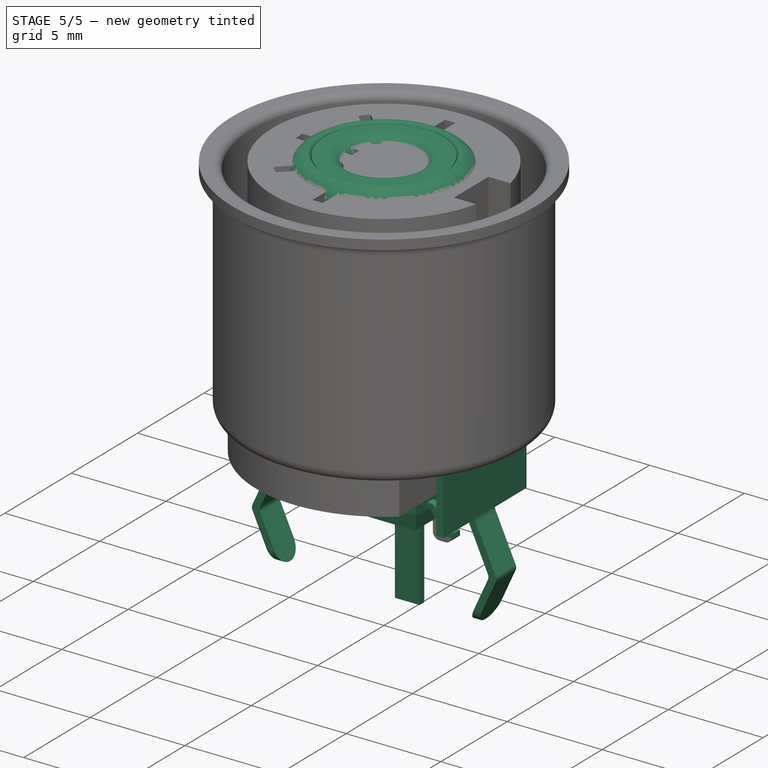
[diagram: stage 5 of 5 — iso view after this stage's code; geometry added in this stage tinted green]
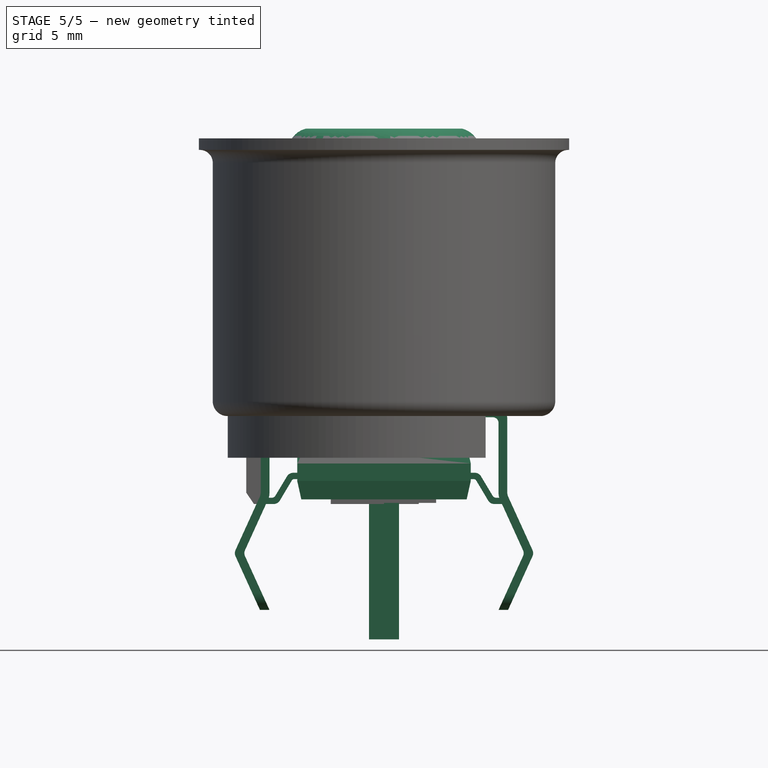
[diagram: stage 5 of 5 — front view after this stage's code; geometry added in this stage tinted green]
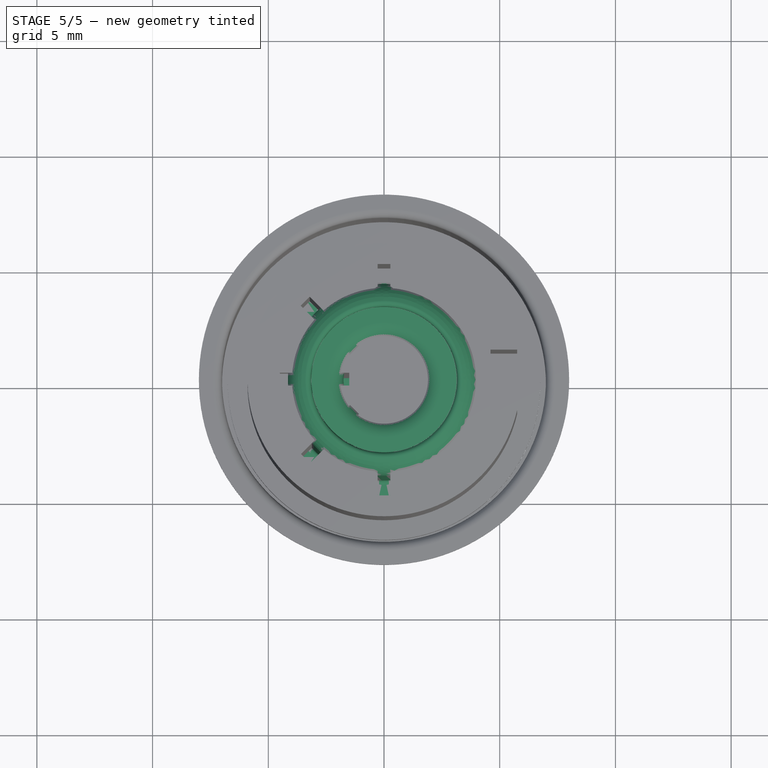
[diagram: stage 5 of 5 — top view after this stage's code; geometry added in this stage tinted green]
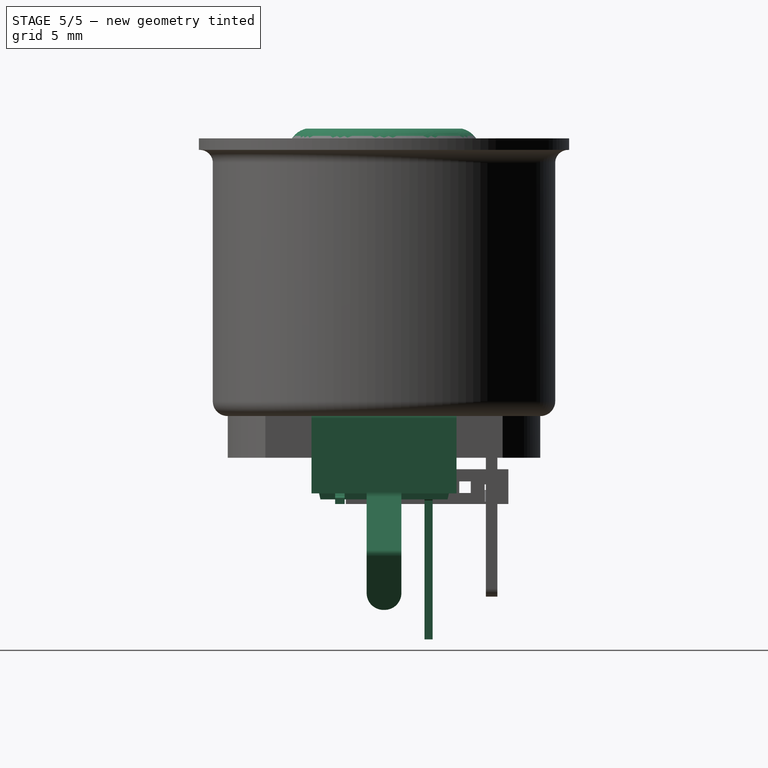
[diagram: stage 5 of 5 — right view after this stage's code; geometry added in this stage tinted green]
FEATURE [Sketcher::SketchObject] PCB_Sketch_draft
  FullyConstrained = false
  sketch-geometry (101):
    g0: LineSegment StartX=40.75 StartY=11.8 StartZ=0 EndX=49.35 EndY=11.8 EndZ=0
    g1: LineSegment StartX=21.35 StartY=8e-16 StartZ=0 EndX=25.75 EndY=8e-16 EndZ=0
    g2: LineSegment StartX=1.005 StartY=40.65 StartZ=0 EndX=157.85 EndY=40.65 EndZ=0
    g3: LineSegment StartX=50.35 StartY=-0.02 StartZ=0 EndX=157.85 EndY=-0.02 EndZ=0
    g4: LineSegment StartX=40.25 StartY=11.3 StartZ=0 EndX=40.25 EndY=2.7375 EndZ=0
    g5: LineSegment StartX=20.85 StartY=0.5 StartZ=0 EndX=20.85 EndY=17.4 EndZ=0
    g6: LineSegment StartX=1.005 StartY=18.4 StartZ=0 EndX=19.85 EndY=18.4 EndZ=0
    g7: LineSegment StartX=0.005 StartY=39.65 StartZ=0 EndX=0.005 EndY=19.4 EndZ=0
    g8: LineSegment StartX=26.75 StartY=2.2375 StartZ=0 EndX=39.75 EndY=2.2375 EndZ=0
    g9: LineSegment StartX=26.25 StartY=1.7375 StartZ=0 EndX=26.25 EndY=0.5 EndZ=0
    g10: LineSegment StartX=158.35 StartY=40.15 StartZ=0 EndX=158.35 EndY=0.48 EndZ=0
    g11: LineSegment StartX=49.85 StartY=11.3 StartZ=0 EndX=49.85 EndY=0.48 EndZ=0
    g12: ArcOfCircle CenterX=39.75 CenterY=2.7375 CenterZ=0 NormalX=0 NormalY=0 NormalZ=-1 AngleXU=-3.14159 Radius=0.500001 StartAngle=0 EndAngle=1.57079
    g13: ArcOfCircle CenterX=1.005 CenterY=39.65 CenterZ=0 NormalX=0 NormalY=0 NormalZ=-1 AngleXU=-7.47076e-07 Radius=0.999999 StartAngle=0 EndAngle=1.5708
    g14: ArcOfCircle CenterX=26.75 CenterY=1.7375 CenterZ=0 NormalX=0 NormalY=0 NormalZ=-1 AngleXU=2.66714e-06 Radius=0.500001 StartAngle=0 EndAngle=1.57079
    g15: ArcOfCircle CenterX=40.75 CenterY=11.3 CenterZ=0 NormalX=0 NormalY=0 NormalZ=-1 AngleXU=2.66714e-06 Radius=0.500001 StartAngle=0 EndAngle=1.57079
    g16: ArcOfCircle CenterX=25.75 CenterY=0.500001 CenterZ=0 NormalX=0 NormalY=0 NormalZ=-1 AngleXU=-3.14159 Radius=0.500001 StartAngle=0 EndAngle=1.57079
    g17: ArcOfCircle CenterX=50.35 CenterY=0.480001 CenterZ=0 NormalX=0 NormalY=0 NormalZ=-1 AngleXU=-1.57079 Radius=0.500001 StartAngle=0 EndAngle=1.57079
    g18: ArcOfCircle CenterX=157.85 CenterY=40.15 CenterZ=0 NormalX=0 NormalY=0 NormalZ=-1 AngleXU=1.5708 Radius=0.500001 StartAngle=0 EndAngle=1.57079
    g19: ArcOfCircle CenterX=49.35 CenterY=11.3 CenterZ=0 NormalX=0 NormalY=0 NormalZ=-1 AngleXU=1.5708 Radius=0.500001 StartAngle=0 EndAngle=1.57079
    g20: ArcOfCircle CenterX=21.35 CenterY=0.500001 CenterZ=0 NormalX=0 NormalY=0 NormalZ=-1 AngleXU=-1.57079 Radius=0.500001 StartAngle=0 EndAngle=1.57079
    g21: ArcOfCircle CenterX=1.005 CenterY=19.4 CenterZ=0 NormalX=0 NormalY=0 NormalZ=-1 AngleXU=-1.5708 Radius=0.999999 StartAngle=0 EndAngle=1.5708
    g22: ArcOfCircle CenterX=19.85 CenterY=17.4 CenterZ=0 NormalX=0 NormalY=0 NormalZ=-1 AngleXU=1.5708 Radius=0.999999 StartAngle=0 EndAngle=1.5708
    g23: ArcOfCircle CenterX=157.85 CenterY=0.480001 CenterZ=0 NormalX=0 NormalY=0 NormalZ=-1 AngleXU=-3.14159 Radius=0.500001 StartAngle=0 EndAngle=1.57079
    g24: Circle CenterX=128.85 CenterY=26.2 CenterZ=0 NormalX=0 NormalY=0 NormalZ=1 AngleXU=0 Radius=0.4
    g25: Circle CenterX=33.9875 CenterY=21.5625 CenterZ=0 NormalX=0 NormalY=0 NormalZ=1 AngleXU=0 Radius=0.5
    g26: Circle CenterX=27.9875 CenterY=21.5625 CenterZ=0 NormalX=0 NormalY=0 NormalZ=1 AngleXU=0 Radius=0.45
    g27: Circle CenterX=44.005 CenterY=18 CenterZ=0 NormalX=0 NormalY=0 NormalZ=1 AngleXU=0 Radius=0.4
    g28: Circle CenterX=131.45 CenterY=26.5 CenterZ=0 NormalX=0 NormalY=0 NormalZ=1 AngleXU=0 Radius=0.3
    g29: Circle CenterX=131.705 CenterY=35.8 CenterZ=0 NormalX=0 NormalY=0 NormalZ=1 AngleXU=0 Radius=0.4
    g30: Circle CenterX=105.85 CenterY=26.9 CenterZ=0 NormalX=0 NormalY=0 NormalZ=1 AngleXU=0 Radius=0.4
    g31: Circle CenterX=152.691 CenterY=5.82926 CenterZ=0 NormalX=0 NormalY=0 NormalZ=1 AngleXU=0 Radius=0.4
    g32: Circle CenterX=25.7875 CenterY=21.5625 CenterZ=0 NormalX=0 NormalY=0 NormalZ=1 AngleXU=0 Radius=0.45
    g33: Circle CenterX=107.85 CenterY=30.1 CenterZ=0 NormalX=0 NormalY=0 NormalZ=1 AngleXU=0 Radius=0.4
    g34: Circle CenterX=122.65 CenterY=12 CenterZ=0 NormalX=0 NormalY=0 NormalZ=1 AngleXU=0 Radius=0.4
    g35: Circle CenterX=154.691 CenterY=7.62926 CenterZ=0 NormalX=0 NormalY=0 NormalZ=1 AngleXU=0 Radius=0.4
    g36: Circle CenterX=112.35 CenterY=26.2 CenterZ=0 NormalX=0 NormalY=0 NormalZ=1 AngleXU=0 Radius=0.4
    g37: Circle CenterX=42.1875 CenterY=21.5625 CenterZ=0 NormalX=0 NormalY=0 NormalZ=1 AngleXU=0 Radius=0.5
    g38: Circle CenterX=110.05 CenterY=25 CenterZ=0 NormalX=0 NormalY=0 NormalZ=1 AngleXU=0 Radius=0.4
    g39: Circle CenterX=23.705 CenterY=11.1 CenterZ=0 NormalX=0 NormalY=0 NormalZ=1 AngleXU=0 Radius=0.3
    g40: Circle CenterX=129.15 CenterY=2.8 CenterZ=0 NormalX=0 NormalY=0 NormalZ=1 AngleXU=0 Radius=0.4
    g41: Circle CenterX=44.075 CenterY=15.025 CenterZ=0 NormalX=0 NormalY=0 NormalZ=1 AngleXU=0 Radius=0.5
    g42: Circle CenterX=44.025 CenterY=12.925 CenterZ=0 NormalX=0 NormalY=0 NormalZ=1 AngleXU=0 Radius=0.5
    g43: Circle CenterX=105.05 CenterY=28.7 CenterZ=0 NormalX=0 NormalY=0 NormalZ=1 AngleXU=0 Radius=0.4
    g44: Circle CenterX=24.205 CenterY=14.4 CenterZ=0 NormalX=0 NormalY=0 NormalZ=1 AngleXU=0 Radius=0.5
    g45: Circle CenterX=107.5 CenterY=26.7 CenterZ=0 NormalX=0 NormalY=0 NormalZ=1 AngleXU=0 Radius=0.4
    g46: Circle CenterX=108.5 CenterY=27.5 CenterZ=0 NormalX=0 NormalY=0 NormalZ=1 AngleXU=0 Radius=0.4
    g47: Circle CenterX=115.205 CenterY=17.5 CenterZ=0 NormalX=0 NormalY=0 NormalZ=1 AngleXU=0 Radius=0.3
    g48: Circle CenterX=43.88 CenterY=21.1 CenterZ=0 NormalX=0 NormalY=0 NormalZ=1 AngleXU=0 Radius=0.4
    g49: Circle CenterX=113.75 CenterY=26.2 CenterZ=0 NormalX=0 NormalY=0 NormalZ=1 AngleXU=0 Radius=0.4
    g50: Circle CenterX=145.391 CenterY=15.2293 CenterZ=0 NormalX=0 NormalY=0 NormalZ=1 AngleXU=0 Radius=0.4
    g51: Circle CenterX=117.65 CenterY=16 CenterZ=0 NormalX=0 NormalY=0 NormalZ=1 AngleXU=0 Radius=0.4
    g52: Circle CenterX=110.45 CenterY=21.6 CenterZ=0 NormalX=0 NormalY=0 NormalZ=1 AngleXU=0 Radius=0.4
    g53: Circle CenterX=40.1875 CenterY=21.5625 CenterZ=0 NormalX=0 NormalY=0 NormalZ=1 AngleXU=0 Radius=0.5
    g54: Circle CenterX=120.25 CenterY=14 CenterZ=0 NormalX=0 NormalY=0 NormalZ=1 AngleXU=0 Radius=0.4
    g55: Circle CenterX=24.105 CenterY=12.8 CenterZ=0 NormalX=0 NormalY=0 NormalZ=1 AngleXU=0 Radius=0.5
    g56: Circle CenterX=122.05 CenterY=26.2 CenterZ=0 NormalX=0 NormalY=0 NormalZ=1 AngleXU=0 Radius=0.4
    g57: Circle CenterX=116.55 CenterY=26.2 CenterZ=0 NormalX=0 NormalY=0 NormalZ=1 AngleXU=0 Radius=0.4
    g58: Circle CenterX=24.505 CenterY=15.7 CenterZ=0 NormalX=0 NormalY=0 NormalZ=1 AngleXU=0 Radius=0.4
    g59: Circle CenterX=131.705 CenterY=37.4 CenterZ=0 NormalX=0 NormalY=0 NormalZ=1 AngleXU=0 Radius=0.4
    g60: Circle CenterX=112.605 CenterY=19.9 CenterZ=0 NormalX=0 NormalY=0 NormalZ=1 AngleXU=0 Radius=0.4
    g61: Circle CenterX=153.991 CenterY=6.32926 CenterZ=0 NormalX=0 NormalY=0 NormalZ=1 AngleXU=0 Radius=0.4
    g62: Circle CenterX=115.25 CenterY=26.2 CenterZ=0 NormalX=0 NormalY=0 NormalZ=1 AngleXU=0 Radius=0.4
    g63: Circle CenterX=110.105 CenterY=22.8 CenterZ=0 NormalX=0 NormalY=0 NormalZ=1 AngleXU=0 Radius=0.3
    g64: Circle CenterX=126.25 CenterY=7.7 CenterZ=0 NormalX=0 NormalY=0 NormalZ=1 AngleXU=0 Radius=0.4
    g65: Circle CenterX=119.05 CenterY=15.2 CenterZ=0 NormalX=0 NormalY=0 NormalZ=1 AngleXU=0 Radius=0.4
    g66: Circle CenterX=29.9875 CenterY=21.5625 CenterZ=0 NormalX=0 NormalY=0 NormalZ=1 AngleXU=0 Radius=0.5
    g67: Circle CenterX=128.35 CenterY=4 CenterZ=0 NormalX=0 NormalY=0 NormalZ=1 AngleXU=0 Radius=0.4
    g68: Circle CenterX=124.75 CenterY=26.2 CenterZ=0 NormalX=0 NormalY=0 NormalZ=1 AngleXU=0 Radius=0.4
    g69: Circle CenterX=105.85 CenterY=30.1 CenterZ=0 NormalX=0 NormalY=0 NormalZ=1 AngleXU=0 Radius=0.4
    g70: Circle CenterX=127.65 CenterY=5.2 CenterZ=0 NormalX=0 NormalY=0 NormalZ=1 AngleXU=0 Radius=0.4
    g71: Circle CenterX=126.15 CenterY=26.2 CenterZ=0 NormalX=0 NormalY=0 NormalZ=1 AngleXU=0 Radius=0.4
    g72: Circle CenterX=24.105 CenterY=9.4 CenterZ=0 NormalX=0 NormalY=0 NormalZ=1 AngleXU=0 Radius=0.4
    g73: Circle CenterX=113.805 CenterY=19.2 CenterZ=0 NormalX=0 NormalY=0 NormalZ=1 AngleXU=0 Radius=0.4
    g74: Circle CenterX=111.05 CenterY=26.2 CenterZ=0 NormalX=0 NormalY=0 NormalZ=1 AngleXU=0 Radius=0.4
    g75: Circle CenterX=131.705 CenterY=32.7 CenterZ=0 NormalX=0 NormalY=0 NormalZ=1 AngleXU=0 Radius=0.4
    g76: Circle CenterX=131.605 CenterY=29.5 CenterZ=0 NormalX=0 NormalY=0 NormalZ=1 AngleXU=0 Radius=0.3
    g77: Circle CenterX=146.591 CenterY=13.0293 CenterZ=0 NormalX=0 NormalY=0 NormalZ=1 AngleXU=0 Radius=0.4
    g78: Circle CenterX=146.991 CenterY=14.3293 CenterZ=0 NormalX=0 NormalY=0 NormalZ=1 AngleXU=0 Radius=0.4
    g79: Circle CenterX=120.75 CenterY=26.2 CenterZ=0 NormalX=0 NormalY=0 NormalZ=1 AngleXU=0 Radius=0.4
    g80: Circle CenterX=131.705 CenterY=34.2 CenterZ=0 NormalX=0 NormalY=0 NormalZ=1 AngleXU=0 Radius=0.4
    g81: Circle CenterX=25.205 CenterY=17.8 CenterZ=0 NormalX=0 NormalY=0 NormalZ=1 AngleXU=0 Radius=0.4
    g82: Circle CenterX=38.1875 CenterY=21.5625 CenterZ=0 NormalX=0 NormalY=0 NormalZ=1 AngleXU=0 Radius=0.5
    g83: Circle CenterX=116.305 CenterY=16.8 CenterZ=0 NormalX=0 NormalY=0 NormalZ=1 AngleXU=0 Radius=0.4
    g84: Circle CenterX=111.505 CenterY=20.8 CenterZ=0 NormalX=0 NormalY=0 NormalZ=1 AngleXU=0 Radius=0.4
    g85: Circle CenterX=44 CenterY=19.325 CenterZ=0 NormalX=0 NormalY=0 NormalZ=1 AngleXU=0 Radius=0.4
    g86: Circle CenterX=130.15 CenterY=26.2 CenterZ=0 NormalX=0 NormalY=0 NormalZ=1 AngleXU=0 Radius=0.4
    g87: Circle CenterX=129.95 CenterY=1.5 CenterZ=0 NormalX=0 NormalY=0 NormalZ=1 AngleXU=0 Radius=0.4
    g88: Circle CenterX=123.35 CenterY=26.2 CenterZ=0 NormalX=0 NormalY=0 NormalZ=1 AngleXU=0 Radius=0.4
    g89: Circle CenterX=131.705 CenterY=39 CenterZ=0 NormalX=0 NormalY=0 NormalZ=1 AngleXU=0 Radius=0.4
    g90: Circle CenterX=24.805 CenterY=6.1 CenterZ=0 NormalX=0 NormalY=0 NormalZ=1 AngleXU=0 Radius=0.5
    g91: Circle CenterX=24.405 CenterY=7.7 CenterZ=0 NormalX=0 NormalY=0 NormalZ=1 AngleXU=0 Radius=0.5
    g92: Circle CenterX=131.705 CenterY=31 CenterZ=0 NormalX=0 NormalY=0 NormalZ=1 AngleXU=0 Radius=0.4
    g93: Circle CenterX=121.45 CenterY=13 CenterZ=0 NormalX=0 NormalY=0 NormalZ=1 AngleXU=0 Radius=0.4
    g94: Circle CenterX=119.35 CenterY=26.2 CenterZ=0 NormalX=0 NormalY=0 NormalZ=1 AngleXU=0 Radius=0.4
    g95: Circle CenterX=31.9875 CenterY=21.5625 CenterZ=0 NormalX=0 NormalY=0 NormalZ=1 AngleXU=0 Radius=0.5
    g96: Circle CenterX=117.95 CenterY=26.2 CenterZ=0 NormalX=0 NormalY=0 NormalZ=1 AngleXU=0 Radius=0.4
    g97: Circle CenterX=131.705 CenterY=27.7 CenterZ=0 NormalX=0 NormalY=0 NormalZ=1 AngleXU=0 Radius=0.3
    g98: Circle CenterX=126.95 CenterY=6.4 CenterZ=0 NormalX=0 NormalY=0 NormalZ=1 AngleXU=0 Radius=0.4
    g99: Circle CenterX=36.1875 CenterY=21.5625 CenterZ=0 NormalX=0 NormalY=0 NormalZ=1 AngleXU=0 Radius=0.5
    g100: Circle CenterX=127.55 CenterY=26.2 CenterZ=0 NormalX=0 NormalY=0 NormalZ=1 AngleXU=0 Radius=0.4
  constraints (24):
    c: Coincident(g7,g21)
    c: Coincident(g7,g13)
    c: Coincident(g6,g21)
    c: Coincident(g2,g13)
    c: Coincident(g6,g22)
    c: Coincident(g5,g20)
    c: Coincident(g5,g22)
    c: Coincident(g1,g20)
    c: Coincident(g1,g16)
    c: Coincident(g9,g16)
    c: Coincident(g9,g14)
    c: Coincident(g8,g14)
    c: Coincident(g8,g12)
    c: Coincident(g4,g12)
    c: Coincident(g4,g15)
    c: Coincident(g0,g15)
    c: Coincident(g0,g19)
    c: Coincident(g11,g17)
    c: Coincident(g11,g19)
    c: Coincident(g3,g17)
    c: Coincident(g3,g23)
    c: Coincident(g2,g18)
    c: Coincident(g10,g23)
    c: Coincident(g10,g18)
FEATURE [PartDesign::CoordinateSystem] Local_CS_8e65
  AttacherType = Attacher::AttachEngine3D
  MapMode = 2
  Support = -> [X_Axis001]
FEATURE [Part::Feature] Pcb_8e65
  Placement = pos=(-90.35,111.3,0) rot=(0,0,1;0rad)
  shape: bbox 158.3 x 40.67 x 2 mm, 250 faces (baked)
FEATURE [Sketcher::SketchObject] PCB_Sketch_8e65
  FullyConstrained = false
  sketch-geometry (101):
    g0: LineSegment StartX=40.75 StartY=11.8 StartZ=0 EndX=49.35 EndY=11.8 EndZ=0
    g1: LineSegment StartX=21.35 StartY=8e-16 StartZ=0 EndX=25.75 EndY=8e-16 EndZ=0
    g2: LineSegment StartX=1.005 StartY=40.65 StartZ=0 EndX=157.85 EndY=40.65 EndZ=0
    g3: LineSegment StartX=50.35 StartY=-0.02 StartZ=0 EndX=157.85 EndY=-0.02 EndZ=0
    g4: LineSegment StartX=40.25 StartY=11.3 StartZ=0 EndX=40.25 EndY=2.7375 EndZ=0
    g5: LineSegment StartX=20.85 StartY=0.5 StartZ=0 EndX=20.85 EndY=17.4 EndZ=0
    g6: LineSegment StartX=1.005 StartY=18.4 StartZ=0 EndX=19.85 EndY=18.4 EndZ=0
    g7: LineSegment StartX=0.005 StartY=39.65 StartZ=0 EndX=0.005 EndY=19.4 EndZ=0
    g8: LineSegment StartX=26.75 StartY=2.2375 StartZ=0 EndX=39.75 EndY=2.2375 EndZ=0
    g9: LineSegment StartX=26.25 StartY=1.7375 StartZ=0 EndX=26.25 EndY=0.5 EndZ=0
    g10: LineSegment StartX=158.35 StartY=40.15 StartZ=0 EndX=158.35 EndY=0.48 EndZ=0
    g11: LineSegment StartX=49.85 StartY=11.3 StartZ=0 EndX=49.85 EndY=0.48 EndZ=0
    g12: ArcOfCircle CenterX=39.75 CenterY=2.7375 CenterZ=0 NormalX=0 NormalY=0 NormalZ=-1 AngleXU=-3.14159 Radius=0.500001 StartAngle=0 EndAngle=1.57079
    g13: ArcOfCircle CenterX=1.005 CenterY=39.65 CenterZ=0 NormalX=0 NormalY=0 NormalZ=-1 AngleXU=-7.47076e-07 Radius=0.999999 StartAngle=0 EndAngle=1.5708
    g14: ArcOfCircle CenterX=26.75 CenterY=1.7375 CenterZ=0 NormalX=0 NormalY=0 NormalZ=-1 AngleXU=2.66714e-06 Radius=0.500001 StartAngle=0 EndAngle=1.57079
    g15: ArcOfCircle CenterX=40.75 CenterY=11.3 CenterZ=0 NormalX=0 NormalY=0 NormalZ=-1 AngleXU=2.66714e-06 Radius=0.500001 StartAngle=0 EndAngle=1.57079
    g16: ArcOfCircle CenterX=25.75 CenterY=0.500001 CenterZ=0 NormalX=0 NormalY=0 NormalZ=-1 AngleXU=-3.14159 Radius=0.500001 StartAngle=0 EndAngle=1.57079
    g17: ArcOfCircle CenterX=50.35 CenterY=0.480001 CenterZ=0 NormalX=0 NormalY=0 NormalZ=-1 AngleXU=-1.57079 Radius=0.500001 StartAngle=0 EndAngle=1.57079
    g18: ArcOfCircle CenterX=157.85 CenterY=40.15 CenterZ=0 NormalX=0 NormalY=0 NormalZ=-1 AngleXU=1.5708 Radius=0.500001 StartAngle=0 EndAngle=1.57079
    g19: ArcOfCircle CenterX=49.35 CenterY=11.3 CenterZ=0 NormalX=0 NormalY=0 NormalZ=-1 AngleXU=1.5708 Radius=0.500001 StartAngle=0 EndAngle=1.57079
    g20: ArcOfCircle CenterX=21.35 CenterY=0.500001 CenterZ=0 NormalX=0 NormalY=0 NormalZ=-1 AngleXU=-1.57079 Radius=0.500001 StartAngle=0 EndAngle=1.57079
    g21: ArcOfCircle CenterX=1.005 CenterY=19.4 CenterZ=0 NormalX=0 NormalY=0 NormalZ=-1 AngleXU=-1.5708 Radius=0.999999 StartAngle=0 EndAngle=1.5708
    g22: ArcOfCircle CenterX=19.85 CenterY=17.4 CenterZ=0 NormalX=0 NormalY=0 NormalZ=-1 AngleXU=1.5708 Radius=0.999999 StartAngle=0 EndAngle=1.5708
    g23: ArcOfCircle CenterX=157.85 CenterY=0.480001 CenterZ=0 NormalX=0 NormalY=0 NormalZ=-1 AngleXU=-3.14159 Radius=0.500001 StartAngle=0 EndAngle=1.57079
    g24: Circle CenterX=128.85 CenterY=26.2 CenterZ=0 NormalX=0 NormalY=0 NormalZ=1 AngleXU=0 Radius=0.4
    g25: Circle CenterX=33.9875 CenterY=21.5625 CenterZ=0 NormalX=0 NormalY=0 NormalZ=1 AngleXU=0 Radius=0.5
    g26: Circle CenterX=27.9875 CenterY=21.5625 CenterZ=0 NormalX=0 NormalY=0 NormalZ=1 AngleXU=0 Radius=0.45
    g27: Circle CenterX=44.005 CenterY=18 CenterZ=0 NormalX=0 NormalY=0 NormalZ=1 AngleXU=0 Radius=0.4
    g28: Circle CenterX=131.45 CenterY=26.5 CenterZ=0 NormalX=0 NormalY=0 NormalZ=1 AngleXU=0 Radius=0.3
    g29: Circle CenterX=131.705 CenterY=35.8 CenterZ=0 NormalX=0 NormalY=0 NormalZ=1 AngleXU=0 Radius=0.4
    g30: Circle CenterX=105.85 CenterY=26.9 CenterZ=0 NormalX=0 NormalY=0 NormalZ=1 AngleXU=0 Radius=0.4
    g31: Circle CenterX=152.691 CenterY=5.82926 CenterZ=0 NormalX=0 NormalY=0 NormalZ=1 AngleXU=0 Radius=0.4
    g32: Circle CenterX=25.7875 CenterY=21.5625 CenterZ=0 NormalX=0 NormalY=0 NormalZ=1 AngleXU=0 Radius=0.45
    g33: Circle CenterX=107.85 CenterY=30.1 CenterZ=0 NormalX=0 NormalY=0 NormalZ=1 AngleXU=0 Radius=0.4
    g34: Circle CenterX=122.65 CenterY=12 CenterZ=0 NormalX=0 NormalY=0 NormalZ=1 AngleXU=0 Radius=0.4
    g35: Circle CenterX=154.691 CenterY=7.62926 CenterZ=0 NormalX=0 NormalY=0 NormalZ=1 AngleXU=0 Radius=0.4
    g36: Circle CenterX=112.35 CenterY=26.2 CenterZ=0 NormalX=0 NormalY=0 NormalZ=1 AngleXU=0 Radius=0.4
    g37: Circle CenterX=42.1875 CenterY=21.5625 CenterZ=0 NormalX=0 NormalY=0 NormalZ=1 AngleXU=0 Radius=0.5
    g38: Circle CenterX=110.05 CenterY=25 CenterZ=0 NormalX=0 NormalY=0 NormalZ=1 AngleXU=0 Radius=0.4
    g39: Circle CenterX=23.705 CenterY=11.1 CenterZ=0 NormalX=0 NormalY=0 NormalZ=1 AngleXU=0 Radius=0.3
    g40: Circle CenterX=129.15 CenterY=2.8 CenterZ=0 NormalX=0 NormalY=0 NormalZ=1 AngleXU=0 Radius=0.4
    g41: Circle CenterX=44.075 CenterY=15.025 CenterZ=0 NormalX=0 NormalY=0 NormalZ=1 AngleXU=0 Radius=0.5
    g42: Circle CenterX=44.025 CenterY=12.925 CenterZ=0 NormalX=0 NormalY=0 NormalZ=1 AngleXU=0 Radius=0.5
    g43: Circle CenterX=105.05 CenterY=28.7 CenterZ=0 NormalX=0 NormalY=0 NormalZ=1 AngleXU=0 Radius=0.4
    g44: Circle CenterX=24.205 CenterY=14.4 CenterZ=0 NormalX=0 NormalY=0 NormalZ=1 AngleXU=0 Radius=0.5
    g45: Circle CenterX=107.5 CenterY=26.7 CenterZ=0 NormalX=0 NormalY=0 NormalZ=1 AngleXU=0 Radius=0.4
    g46: Circle CenterX=108.5 CenterY=27.5 CenterZ=0 NormalX=0 NormalY=0 NormalZ=1 AngleXU=0 Radius=0.4
    g47: Circle CenterX=115.205 CenterY=17.5 CenterZ=0 NormalX=0 NormalY=0 NormalZ=1 AngleXU=0 Radius=0.3
    g48: Circle CenterX=43.88 CenterY=21.1 CenterZ=0 NormalX=0 NormalY=0 NormalZ=1 AngleXU=0 Radius=0.4
    g49: Circle CenterX=113.75 CenterY=26.2 CenterZ=0 NormalX=0 NormalY=0 NormalZ=1 AngleXU=0 Radius=0.4
    g50: Circle CenterX=145.391 CenterY=15.2293 CenterZ=0 NormalX=0 NormalY=0 NormalZ=1 AngleXU=0 Radius=0.4
    g51: Circle CenterX=117.65 CenterY=16 CenterZ=0 NormalX=0 NormalY=0 NormalZ=1 AngleXU=0 Radius=0.4
    g52: Circle CenterX=110.45 CenterY=21.6 CenterZ=0 NormalX=0 NormalY=0 NormalZ=1 AngleXU=0 Radius=0.4
    g53: Circle CenterX=40.1875 CenterY=21.5625 CenterZ=0 NormalX=0 NormalY=0 NormalZ=1 AngleXU=0 Radius=0.5
    g54: Circle CenterX=120.25 CenterY=14 CenterZ=0 NormalX=0 NormalY=0 NormalZ=1 AngleXU=0 Radius=0.4
    g55: Circle CenterX=24.105 CenterY=12.8 CenterZ=0 NormalX=0 NormalY=0 NormalZ=1 AngleXU=0 Radius=0.5
    g56: Circle CenterX=122.05 CenterY=26.2 CenterZ=0 NormalX=0 NormalY=0 NormalZ=1 AngleXU=0 Radius=0.4
    g57: Circle CenterX=116.55 CenterY=26.2 CenterZ=0 NormalX=0 NormalY=0 NormalZ=1 AngleXU=0 Radius=0.4
    g58: Circle CenterX=24.505 CenterY=15.7 CenterZ=0 NormalX=0 NormalY=0 NormalZ=1 AngleXU=0 Radius=0.4
    g59: Circle CenterX=131.705 CenterY=37.4 CenterZ=0 NormalX=0 NormalY=0 NormalZ=1 AngleXU=0 Radius=0.4
    g60: Circle CenterX=112.605 CenterY=19.9 CenterZ=0 NormalX=0 NormalY=0 NormalZ=1 AngleXU=0 Radius=0.4
    g61: Circle CenterX=153.991 CenterY=6.32926 CenterZ=0 NormalX=0 NormalY=0 NormalZ=1 AngleXU=0 Radius=0.4
    g62: Circle CenterX=115.25 CenterY=26.2 CenterZ=0 NormalX=0 NormalY=0 NormalZ=1 AngleXU=0 Radius=0.4
    g63: Circle CenterX=110.105 CenterY=22.8 CenterZ=0 NormalX=0 NormalY=0 NormalZ=1 AngleXU=0 Radius=0.3
    g64: Circle CenterX=126.25 CenterY=7.7 CenterZ=0 NormalX=0 NormalY=0 NormalZ=1 AngleXU=0 Radius=0.4
    g65: Circle CenterX=119.05 CenterY=15.2 CenterZ=0 NormalX=0 NormalY=0 NormalZ=1 AngleXU=0 Radius=0.4
    g66: Circle CenterX=29.9875 CenterY=21.5625 CenterZ=0 NormalX=0 NormalY=0 NormalZ=1 AngleXU=0 Radius=0.5
    g67: Circle CenterX=128.35 CenterY=4 CenterZ=0 NormalX=0 NormalY=0 NormalZ=1 AngleXU=0 Radius=0.4
    g68: Circle CenterX=124.75 CenterY=26.2 CenterZ=0 NormalX=0 NormalY=0 NormalZ=1 AngleXU=0 Radius=0.4
    g69: Circle CenterX=105.85 CenterY=30.1 CenterZ=0 NormalX=0 NormalY=0 NormalZ=1 AngleXU=0 Radius=0.4
    g70: Circle CenterX=127.65 CenterY=5.2 CenterZ=0 NormalX=0 NormalY=0 NormalZ=1 AngleXU=0 Radius=0.4
    g71: Circle CenterX=126.15 CenterY=26.2 CenterZ=0 NormalX=0 NormalY=0 NormalZ=1 AngleXU=0 Radius=0.4
    g72: Circle CenterX=24.105 CenterY=9.4 CenterZ=0 NormalX=0 NormalY=0 NormalZ=1 AngleXU=0 Radius=0.4
    g73: Circle CenterX=113.805 CenterY=19.2 CenterZ=0 NormalX=0 NormalY=0 NormalZ=1 AngleXU=0 Radius=0.4
    g74: Circle CenterX=111.05 CenterY=26.2 CenterZ=0 NormalX=0 NormalY=0 NormalZ=1 AngleXU=0 Radius=0.4
    g75: Circle CenterX=131.705 CenterY=32.7 CenterZ=0 NormalX=0 NormalY=0 NormalZ=1 AngleXU=0 Radius=0.4
    g76: Circle CenterX=131.605 CenterY=29.5 CenterZ=0 NormalX=0 NormalY=0 NormalZ=1 AngleXU=0 Radius=0.3
    g77: Circle CenterX=146.591 CenterY=13.0293 CenterZ=0 NormalX=0 NormalY=0 NormalZ=1 AngleXU=0 Radius=0.4
    g78: Circle CenterX=146.991 CenterY=14.3293 CenterZ=0 NormalX=0 NormalY=0 NormalZ=1 AngleXU=0 Radius=0.4
    g79: Circle CenterX=120.75 CenterY=26.2 CenterZ=0 NormalX=0 NormalY=0 NormalZ=1 AngleXU=0 Radius=0.4
    g80: Circle CenterX=131.705 CenterY=34.2 CenterZ=0 NormalX=0 NormalY=0 NormalZ=1 AngleXU=0 Radius=0.4
    g81: Circle CenterX=25.205 CenterY=17.8 CenterZ=0 NormalX=0 NormalY=0 NormalZ=1 AngleXU=0 Radius=0.4
    g82: Circle CenterX=38.1875 CenterY=21.5625 CenterZ=0 NormalX=0 NormalY=0 NormalZ=1 AngleXU=0 Radius=0.5
    g83: Circle CenterX=116.305 CenterY=16.8 CenterZ=0 NormalX=0 NormalY=0 NormalZ=1 AngleXU=0 Radius=0.4
    g84: Circle CenterX=111.505 CenterY=20.8 CenterZ=0 NormalX=0 NormalY=0 NormalZ=1 AngleXU=0 Radius=0.4
    g85: Circle CenterX=44 CenterY=19.325 CenterZ=0 NormalX=0 NormalY=0 NormalZ=1 AngleXU=0 Radius=0.4
    g86: Circle CenterX=130.15 CenterY=26.2 CenterZ=0 NormalX=0 NormalY=0 NormalZ=1 AngleXU=0 Radius=0.4
    g87: Circle CenterX=129.95 CenterY=1.5 CenterZ=0 NormalX=0 NormalY=0 NormalZ=1 AngleXU=0 Radius=0.4
    g88: Circle CenterX=123.35 CenterY=26.2 CenterZ=0 NormalX=0 NormalY=0 NormalZ=1 AngleXU=0 Radius=0.4
    g89: Circle CenterX=131.705 CenterY=39 CenterZ=0 NormalX=0 NormalY=0 NormalZ=1 AngleXU=0 Radius=0.4
    g90: Circle CenterX=24.805 CenterY=6.1 CenterZ=0 NormalX=0 NormalY=0 NormalZ=1 AngleXU=0 Radius=0.5
    g91: Circle CenterX=24.405 CenterY=7.7 CenterZ=0 NormalX=0 NormalY=0 NormalZ=1 AngleXU=0 Radius=0.5
    g92: Circle CenterX=131.705 CenterY=31 CenterZ=0 NormalX=0 NormalY=0 NormalZ=1 AngleXU=0 Radius=0.4
    g93: Circle CenterX=121.45 CenterY=13 CenterZ=0 NormalX=0 NormalY=0 NormalZ=1 AngleXU=0 Radius=0.4
    g94: Circle CenterX=119.35 CenterY=26.2 CenterZ=0 NormalX=0 NormalY=0 NormalZ=1 AngleXU=0 Radius=0.4
    g95: Circle CenterX=31.9875 CenterY=21.5625 CenterZ=0 NormalX=0 NormalY=0 NormalZ=1 AngleXU=0 Radius=0.5
    g96: Circle CenterX=117.95 CenterY=26.2 CenterZ=0 NormalX=0 NormalY=0 NormalZ=1 AngleXU=0 Radius=0.4
    g97: Circle CenterX=131.705 CenterY=27.7 CenterZ=0 NormalX=0 NormalY=0 NormalZ=1 AngleXU=0 Radius=0.3
    g98: Circle CenterX=126.95 CenterY=6.4 CenterZ=0 NormalX=0 NormalY=0 NormalZ=1 AngleXU=0 Radius=0.4
    g99: Circle CenterX=36.1875 CenterY=21.5625 CenterZ=0 NormalX=0 NormalY=0 NormalZ=1 AngleXU=0 Radius=0.5
    g100: Circle CenterX=127.55 CenterY=26.2 CenterZ=0 NormalX=0 NormalY=0 NormalZ=1 AngleXU=0 Radius=0.4
  constraints (24):
    c: Coincident(g7,g21)
    c: Coincident(g7,g13)
    c: Coincident(g6,g21)
    c: Coincident(g2,g13)
    c: Coincident(g6,g22)
    c: Coincident(g5,g20)
    c: Coincident(g5,g22)
    c: Coincident(g1,g20)
    c: Coincident(g1,g16)
    c: Coincident(g9,g16)
    c: Coincident(g9,g14)
    c: Coincident(g8,g14)
    c: Coincident(g8,g12)
    c: Coincident(g4,g12)
    c: Coincident(g4,g15)
    c: Coincident(g0,g15)
    c: Coincident(g0,g19)
    c: Coincident(g11,g17)
    c: Coincident(g11,g19)
    c: Coincident(g3,g17)
    c: Coincident(g3,g23)
    c: Coincident(g2,g18)
    c: Coincident(g10,g23)
    c: Coincident(g10,g18)
FEATURE [Part::Feature] Shape  label="C8_C_0805_2012Metric_f3a3f0892716"
  Placement = pos=(38.655,17.85,0) rot=(0,0,1;2.35619rad)
  shape: bbox 2.298 x 2.298 x 1.25 mm, 28 faces (baked)
FEATURE [Part::Feature] Shape001  label="J31_PinHeader_1x01_P127mm_Horizontal_e6eaef08d4e1"
  Placement = pos=(62.05,1.7,0) rot=(0,0,-1;1.5708rad)
  shape: bbox 1.27 x 5.7 x 4.5 mm, 31 faces (baked)
FEATURE [App::Link] C8_C_0805_2012Metric_f3a3f0892716_ln_  label="C15_C_0805_2012Metric_64446a5c291e"
  LinkPlacement = pos=(112.8,37.35,0) rot=(0,0,1;1.5708rad)
  LinkedObject = -> Shape
  Placement = pos=(112.8,37.35,0) rot=(0,0,1;1.5708rad)
FEATURE [Part::Feature] Shape002  label="J5_PinHeader_1x02_P127mm_Horizontal_92fba9bb2b89"
  Placement = pos=(141.3,1.7,0) rot=(0,0,-1;1.5708rad)
  shape: bbox 2.54 x 5.7 x 4.5 mm, 58 faces (baked)
FEATURE [Part::Feature] Shape003  label="R18_R_0603_1608Metric_d753575270ea"
  Placement = pos=(25.15,29.9,0) rot=(0,0,-1;1.5708rad)
  shape: bbox 0.8 x 1.6 x 0.45 mm, 26 faces (baked)
FEATURE [App::Link] R18_R_0603_1608Metric_d753575270ea_ln_  label="R14_R_0603_1608Metric_37574bb4476b"
  LinkPlacement = pos=(22.85,25.6,0) rot=(0,0,1;0rad)
  LinkedObject = -> Shape003
  Placement = pos=(22.85,25.6,0) rot=(0,0,1;0rad)
FEATURE [Part::Feature] Part__Feature  label="Plastic-insert"
  Placement = pos=(0,0,0.05) rot=(0,0,1;0rad)
  shape: bbox 22.57 x 11.5 x 12.3 mm, 343 faces (baked)
FEATURE [Part::Feature] Part__Feature001  label="chassis-metal"
  Placement = pos=(0,0,4.5) rot=(0,0,1;0rad)
  shape: bbox 43.9 x 15.3 x 12.3 mm, 159 faces (baked)
FEATURE [Part::Feature] Part__Feature002  label="base-pin"
  Placement = pos=(-6.48,0,4.5) rot=(0,0,1;0rad)
  shape: bbox 1.5 x 1.495 x 17.96 mm, 46 faces (baked)
FEATURE [Part::Feature] Part__Feature003  label="base-pin001"
  Placement = pos=(-4.32,0,4.5) rot=(0,0,1;0rad)
  shape: bbox 1.5 x 1.495 x 17.96 mm, 46 faces (baked)
FEATURE [Part::Feature] Part__Feature004  label="base-pin002"
  Placement = pos=(-2.16,0,4.5) rot=(0,0,1;0rad)
  shape: bbox 1.5 x 1.495 x 17.96 mm, 46 faces (baked)
FEATURE [Part::Feature] Part__Feature005  label="base-pin003"
  Placement = pos=(0,0,4.5) rot=(0,0,1;0rad)
  shape: bbox 1.5 x 1.495 x 17.96 mm, 46 faces (baked)
FEATURE [Part::Feature] Part__Feature006  label="base-pin004"
  Placement = pos=(2.16,0,4.5) rot=(0,0,1;0rad)
  shape: bbox 1.5 x 1.495 x 17.96 mm, 46 faces (baked)
FEATURE [Part::Feature] Part__Feature007  label="base-pin005"
  Placement = pos=(4.32,0,4.5) rot=(0,0,1;0rad)
  shape: bbox 1.5 x 1.495 x 17.96 mm, 46 faces (baked)
FEATURE [Part::Feature] Part__Feature008  label="base-pin006"
  Placement = pos=(6.48,0,4.5) rot=(0,0,1;0rad)
  shape: bbox 1.5 x 1.495 x 17.96 mm, 46 faces (baked)
FEATURE [App::Part] pins_top  label="pins-top"
  Group = -> [Part__Feature002,Part__Feature003,Part__Feature004,Part__Feature005,Part__Feature006,Part__Feature007,Part__Feature008]
  Origin = -> Origin008
FEATURE [Part::Feature] Part__Feature009  label="pins-bot"
  Placement = pos=(0,0,0) rot=(0,0,1;3.14159rad)
  shape: bbox 1.5 x 1.495 x 17.96 mm, 46 faces (baked)
FEATURE [Part::Feature] Part__Feature010  label="pins-bot001"
  Placement = pos=(0,0,0) rot=(0,0,1;3.14159rad)
  shape: bbox 1.5 x 1.495 x 17.96 mm, 46 faces (baked)
FEATURE [Part::Feature] Part__Feature011  label="pins-bot002"
  Placement = pos=(0,0,0) rot=(0,0,1;3.14159rad)
  shape: bbox 1.5 x 1.495 x 17.96 mm, 46 faces (baked)
FEATURE [Part::Feature] Part__Feature012  label="pins-bot003"
  Placement = pos=(0,0,0) rot=(0,0,1;3.14159rad)
  shape: bbox 1.5 x 1.495 x 17.96 mm, 46 faces (baked)
FEATURE [Part::Feature] Part__Feature013  label="pins-bot004"
  Placement = pos=(0,0,0) rot=(0,0,1;3.14159rad)
  shape: bbox 1.5 x 1.495 x 17.96 mm, 46 faces (baked)
FEATURE [Part::Feature] Part__Feature014  label="pins-bot005"
  Placement = pos=(0,0,0) rot=(0,0,1;3.14159rad)
  shape: bbox 1.5 x 1.495 x 17.96 mm, 46 faces (baked)
FEATURE [Part::Feature] Part__Feature015  label="pins-bot006"
  Placement = pos=(0,0,0) rot=(0,0,1;3.14159rad)
  shape: bbox 1.5 x 1.495 x 17.96 mm, 46 faces (baked)
FEATURE [App::Part] pins_bot  label="pins-bot007"
  Group = -> [Part__Feature009,Part__Feature010,Part__Feature011,Part__Feature012,Part__Feature013,Part__Feature014,Part__Feature015]
  Origin = -> Origin009
FEATURE [Part::Feature] Part__Feature016  label="fused-handle-tubes"
  shape: bbox 24.46 x 12.5 x 5.12 mm, 52 faces (baked)
FEATURE [Part::Feature] Part__Feature017  label="Handle Left"
  shape: bbox 24.46 x 12.5 x 5.12 mm, 52 faces (baked)
FEATURE [Part::Feature] Part__Feature018  label="Handle Right"
  Placement = pos=(0,0,0) rot=(0,0,1;3.14159rad)
  shape: bbox 24.46 x 12.5 x 5.12 mm, 52 faces (baked)
FEATURE [App::Part] Handles
  Group = -> [Part__Feature016,Part__Feature017,Part__Feature018]
  Origin = -> Origin010
FEATURE [App::Part] Norcomp_111_014_213L001  label="J9_Norcomp_111_014_213L001_9b66603eb921"
  Group = -> [Part__Feature,Part__Feature001,pins_top,pins_bot,Handles]
  Origin = -> Origin011
  Placement = pos=(105.37,9.25,0) rot=(0,0,1;0rad)
FEATURE [Part::Feature] Shape004  label="J3_PinHeader_1x04_P254mm_Horizontal_ad84bd842bec"
  Placement = pos=(154.191,4.2,0) rot=(0,0,-1;1.5708rad)
  shape: bbox 10.16 x 10.36 x 5.54 mm, 112 faces (baked)
FEATURE [App::Link] C8_C_0805_2012Metric_f3a3f0892716_ln_001  label="C13_C_0805_2012Metric_4a32e3084445"
  LinkPlacement = pos=(91.9,37.25,0) rot=(0,0,-1;1.5708rad)
  LinkedObject = -> Shape
  Placement = pos=(91.9,37.25,0) rot=(0,0,-1;1.5708rad)
FEATURE [App::Link] J31_PinHeader_1x01_P127mm_Horizontal_e6eaef08d4e1_ln_  label="J4_PinHeader_1x01_P127mm_Horizontal_35cb890b82b2"
  LinkPlacement = pos=(81.525,1.675,0) rot=(0,0,-1;1.5708rad)
  LinkedObject = -> Shape001
  Placement = pos=(81.525,1.675,0) rot=(0,0,-1;1.5708rad)
FEATURE [Part::Feature] Part__Feature019  label="Plastic-body"
  Placement = pos=(0,0,7) rot=(0,0,1;0rad)
  shape: bbox 66 x 16.5 x 17.9 mm, 446 faces (baked)
FEATURE [Part::Feature] Part__Feature020  label="pin-top"
  Placement = pos=(2.38,5.0875,0) rot=(0,0,1;0rad)
  shape: bbox 2.8 x 0.4 x 14.4 mm, 20 faces (baked)
FEATURE [Part::Feature] Part__Feature021  label="pin-top001"
  Placement = pos=(6.18,5.0875,0) rot=(0,0,1;0rad)
  shape: bbox 2.8 x 0.4 x 14.4 mm, 20 faces (baked)
FEATURE [Part::Feature] Part__Feature022  label="pin-top002"
  Placement = pos=(9.98,5.0875,0) rot=(0,0,1;0rad)
  shape: bbox 2.8 x 0.4 x 14.4 mm, 20 faces (baked)
FEATURE [Part::Feature] Part__Feature023  label="pin-top003"
  Placement = pos=(13.78,5.0875,0) rot=(0,0,1;0rad)
  shape: bbox 2.8 x 0.4 x 14.4 mm, 20 faces (baked)
FEATURE [Part::Feature] Part__Feature024  label="pin-top004"
  Placement = pos=(17.58,5.0875,0) rot=(0,0,1;0rad)
  shape: bbox 2.8 x 0.4 x 14.4 mm, 20 faces (baked)
FEATURE [Part::Feature] Part__Feature025  label="pin-top005"
  Placement = pos=(21.38,5.0875,0) rot=(0,0,1;0rad)
  shape: bbox 2.8 x 0.4 x 14.4 mm, 20 faces (baked)
FEATURE [Part::Feature] Part__Feature026  label="pin-top006"
  Placement = pos=(25.18,5.0875,0) rot=(0,0,1;0rad)
  shape: bbox 2.8 x 0.4 x 14.4 mm, 20 faces (baked)
FEATURE [Part::Feature] Part__Feature027  label="pin-top007"
  Placement = pos=(28.98,5.0875,0) rot=(0,0,1;0rad)
  shape: bbox 2.8 x 0.4 x 14.4 mm, 20 faces (baked)
FEATURE [Part::Feature] Part__Feature028  label="pin-top008"
  Placement = pos=(32.78,5.0875,0) rot=(0,0,1;0rad)
  shape: bbox 2.8 x 0.4 x 14.4 mm, 20 faces (baked)
FEATURE [Part::Feature] Part__Feature029  label="pin-top009"
  Placement = pos=(36.58,5.0875,0) rot=(0,0,1;0rad)
  shape: bbox 2.8 x 0.4 x 14.4 mm, 20 faces (baked)
FEATURE [App::Part] top_pins  label="top-pins"
  Group = -> [Part__Feature020,Part__Feature021,Part__Feature022,Part__Feature023,Part__Feature024,Part__Feature025,Part__Feature026,Part__Feature027,Part__Feature028,Part__Feature029]
  Origin = -> Origin012
FEATURE [Part::Feature] Part__Feature030  label="Pin-bot"
  shape: bbox 2.8 x 0.4 x 14.4 mm, 20 faces (baked)
FEATURE [Part::Feature] Part__Feature031  label="Pin-bot001"
  Placement = pos=(3.8,0,0) rot=(0,0,1;0rad)
  shape: bbox 2.8 x 0.4 x 14.4 mm, 20 faces (baked)
FEATURE [Part::Feature] Part__Feature032  label="Pin-bot002"
  Placement = pos=(7.6,0,0) rot=(0,0,1;0rad)
  shape: bbox 2.8 x 0.4 x 14.4 mm, 20 faces (baked)
FEATURE [Part::Feature] Part__Feature033  label="Pin-bot003"
  Placement = pos=(11.4,0,0) rot=(0,0,1;0rad)
  shape: bbox 2.8 x 0.4 x 14.4 mm, 20 faces (baked)
FEATURE [Part::Feature] Part__Feature034  label="Pin-bot004"
  Placement = pos=(15.2,0,0) rot=(0,0,1;0rad)
  shape: bbox 2.8 x 0.4 x 14.4 mm, 20 faces (baked)
FEATURE [Part::Feature] Part__Feature035  label="Pin-bot005"
  Placement = pos=(19,0,0) rot=(0,0,1;0rad)
  shape: bbox 2.8 x 0.4 x 14.4 mm, 20 faces (baked)
FEATURE [Part::Feature] Part__Feature036  label="Pin-bot006"
  Placement = pos=(22.8,0,0) rot=(0,0,1;0rad)
  shape: bbox 2.8 x 0.4 x 14.4 mm, 20 faces (baked)
FEATURE [Part::Feature] Part__Feature037  label="Pin-bot007"
  Placement = pos=(26.6,0,0) rot=(0,0,1;0rad)
  shape: bbox 2.8 x 0.4 x 14.4 mm, 20 faces (baked)
FEATURE [Part::Feature] Part__Feature038  label="Pin-bot008"
  Placement = pos=(30.4,0,0) rot=(0,0,1;0rad)
  shape: bbox 2.8 x 0.4 x 14.4 mm, 20 faces (baked)
FEATURE [Part::Feature] Part__Feature039  label="Pin-bot009"
  Placement = pos=(34.2,0,0) rot=(0,0,1;0rad)
  shape: bbox 2.8 x 0.4 x 14.4 mm, 20 faces (baked)
FEATURE [Part::Feature] Part__Feature040  label="Pin-bot010"
  Placement = pos=(38,0,0) rot=(0,0,1;0rad)
  shape: bbox 2.8 x 0.4 x 14.4 mm, 20 faces (baked)
FEATURE [App::Part] Array001
  Group = -> [Part__Feature030,Part__Feature031,Part__Feature032,Part__Feature033,Part__Feature034,Part__Feature035,Part__Feature036,Part__Feature037,Part__Feature038,Part__Feature039,Part__Feature040]
  Origin = -> Origin013
FEATURE [App::Part] TC_1578891_scart  label="J11_TC_1578891_scart_58c3af9e474b"
  Group = -> [Part__Feature019,top_pins,Array001]
  Origin = -> Origin014
  Placement = pos=(124.105,26,0) rot=(0,0,1;0rad)
FEATURE [App::Link] J5_PinHeader_1x02_P127mm_Horizontal_92fba9bb2b89_ln_  label="J8_PinHeader_1x02_P127mm_Horizontal_95e3cfd9992e"
  LinkPlacement = pos=(24.85,1.7,0) rot=(0,0,-1;1.5708rad)
  LinkedObject = -> Shape002
  Placement = pos=(24.85,1.7,0) rot=(0,0,-1;1.5708rad)
FEATURE [App::Link] R18_R_0603_1608Metric_d753575270ea_ln_001  label="R13_R_0603_1608Metric_17f6bcc38b57"
  LinkPlacement = pos=(22.45,27.1,0) rot=(0,0,1;3.14159rad)
  LinkedObject = -> Shape003
  Placement = pos=(22.45,27.1,0) rot=(0,0,1;3.14159rad)
FEATURE [App::Link] R18_R_0603_1608Metric_d753575270ea_ln_002  label="R24_R_0603_1608Metric_963b0f126aa1"
  LinkPlacement = pos=(139.35,15.6,0) rot=(0,0,-1;1.5708rad)
  LinkedObject = -> Shape003
  Placement = pos=(139.35,15.6,0) rot=(0,0,-1;1.5708rad)
FEATURE [App::Link] J5_PinHeader_1x02_P127mm_Horizontal_92fba9bb2b89_ln_001  label="J25_PinHeader_1x02_P127mm_Horizontal_04283f4f1c8c"
  LinkPlacement = pos=(74.45,1.7,0) rot=(0,0,-1;1.5708rad)
  LinkedObject = -> Shape002
  Placement = pos=(74.45,1.7,0) rot=(0,0,-1;1.5708rad)
FEATURE [Part::Feature] Shape005  label="C9_C_0603_1608Metric_5d00f7ebd9ff"
  Placement = pos=(19.425,27.2,0) rot=(0,0,1;0rad)
  shape: bbox 1.6 x 0.8 x 0.8 mm, 28 faces (baked)
FEATURE [App::Link] R18_R_0603_1608Metric_d753575270ea_ln_003  label="R25_R_0603_1608Metric_11e94d22449a"
  LinkPlacement = pos=(152.55,15.4,0) rot=(0,0,1;2.35619rad)
  LinkedObject = -> Shape003
  Placement = pos=(152.55,15.4,0) rot=(0,0,1;2.35619rad)
FEATURE [Part::Feature] Shape006  label="U1_SOIC_8_39x49mm_P127mm_c3ebf6cbc819"
  Placement = pos=(21.55,31.8,0) rot=(0,0,1;1.5708rad)
  shape: bbox 4.9 x 6 x 1.75 mm, 156 faces (baked)
FEATURE [App::Link] R18_R_0603_1608Metric_d753575270ea_ln_004  label="R17_R_0603_1608Metric_099708a927e8"
  LinkPlacement = pos=(21.15,24.1,0) rot=(0,0,1;0rad)
  LinkedObject = -> Shape003
  Placement = pos=(21.15,24.1,0) rot=(0,0,1;0rad)
FEATURE [Part::Feature] Shape007  label="J13_PinHeader_1x01_P254mm_Horizontal_db208a9ea7d4"
  Placement = pos=(51.35,4.2,0) rot=(0,0,-1;1.5708rad)
  shape: bbox 2.54 x 10.36 x 5.54 mm, 31 faces (baked)
FEATURE [App::Link] R18_R_0603_1608Metric_d753575270ea_ln_005  label="R9_R_0603_1608Metric_9ca75bf1930e"
  LinkPlacement = pos=(117.25,31.3,-2) rot=(1,0,0;3.14159rad)
  LinkedObject = -> Shape003
  Placement = pos=(117.25,31.3,-2) rot=(1,0,0;3.14159rad)
FEATURE [App::Link] R18_R_0603_1608Metric_d753575270ea_ln_006  label="R5_R_0603_1608Metric_3b9ff31e242c"
  LinkPlacement = pos=(64.005,11.4,-2) rot=(0.92388,0.382683,0;3.14159rad)
  LinkedObject = -> Shape003
  Placement = pos=(64.005,11.4,-2) rot=(0.92388,0.382683,0;3.14159rad)
FEATURE [App::Link] C9_C_0603_1608Metric_5d00f7ebd9ff_ln_  label="C1_C_0603_1608Metric_6e1e9fd61820"
  LinkPlacement = pos=(74.45,24.1,-2) rot=(0.707107,0.707107,0;3.14159rad)
  LinkedObject = -> Shape005
  Placement = pos=(74.45,24.1,-2) rot=(0.707107,0.707107,0;3.14159rad)
FEATURE [App::Link] R18_R_0603_1608Metric_d753575270ea_ln_007  label="R11_R_0603_1608Metric_f6652046c7d5"
  LinkPlacement = pos=(16.45,35.2,-2) rot=(0.707107,-0.707107,0;3.14159rad)
  LinkedObject = -> Shape003
  Placement = pos=(16.45,35.2,-2) rot=(0.707107,-0.707107,0;3.14159rad)
FEATURE [Part::Feature] Shape008  label="R12_R_0805_2012Metric_fea975d0d3e0"
  Placement = pos=(26.85,37.4,-2) rot=(0.707107,0.707107,0;3.14159rad)
  shape: bbox 1.2 x 2 x 0.45 mm, 26 faces (baked)
FEATURE [Part::Feature] Shape009  label="FB2_L_0603_1608Metric_618cee020b58"
  Placement = pos=(34.35,13.1,-2) rot=(0.707107,0.707107,0;3.14159rad)
  shape: bbox 0.8 x 1.6 x 0.8 mm, 28 faces (baked)
FEATURE [App::Link] J3_PinHeader_1x04_P254mm_Horizontal_ad84bd842bec_ln_  label="J1_PinHeader_1x04_P254mm_Horizontal_e9d8d5db6f15"
  LinkPlacement = pos=(116.52,4.2,-2) rot=(0.707107,-0.707107,0;3.14159rad)
  LinkedObject = -> Shape004
  Placement = pos=(116.52,4.2,-2) rot=(0.707107,-0.707107,0;3.14159rad)
FEATURE [App::Link] C8_C_0805_2012Metric_f3a3f0892716_ln_002  label="C4_C_0805_2012Metric_ebac419a7334"
  LinkPlacement = pos=(28.65,13.6,-2) rot=(0,1,0;3.14159rad)
  LinkedObject = -> Shape
  Placement = pos=(28.65,13.6,-2) rot=(0,1,0;3.14159rad)
FEATURE [App::Link] R18_R_0603_1608Metric_d753575270ea_ln_008  label="R28_R_0603_1608Metric_6b7fdb3c0648"
  LinkPlacement = pos=(41.45,36.4,-2) rot=(0.707107,0.707107,0;3.14159rad)
  LinkedObject = -> Shape003
  Placement = pos=(41.45,36.4,-2) rot=(0.707107,0.707107,0;3.14159rad)
FEATURE [App::Link] J31_PinHeader_1x01_P127mm_Horizontal_e6eaef08d4e1_ln_001  label="J15_PinHeader_1x01_P127mm_Horizontal_528f91ba52fb"
  LinkPlacement = pos=(63.95,1.7,-2) rot=(0.707107,-0.707107,0;3.14159rad)
  LinkedObject = -> Shape001
  Placement = pos=(63.95,1.7,-2) rot=(0.707107,-0.707107,0;3.14159rad)
FEATURE [App::Link] R18_R_0603_1608Metric_d753575270ea_ln_009  label="R10_R_0603_1608Metric_f5e09943f181"
  LinkPlacement = pos=(52.25,6.7,-2) rot=(0,1,0;3.14159rad)
  LinkedObject = -> Shape003
  Placement = pos=(52.25,6.7,-2) rot=(0,1,0;3.14159rad)
FEATURE [App::Link] C9_C_0603_1608Metric_5d00f7ebd9ff_ln_001  label="C3_C_0603_1608Metric_1001c02b6788"
  LinkPlacement = pos=(61.2,23.3,-2) rot=(1,0,0;3.14159rad)
  LinkedObject = -> Shape005
  Placement = pos=(61.2,23.3,-2) rot=(1,0,0;3.14159rad)
FEATURE [App::Link] R18_R_0603_1608Metric_d753575270ea_ln_010  label="R34_R_0603_1608Metric_d53ed4e581f7"
  LinkPlacement = pos=(43.85,28.8,-2) rot=(0.707107,-0.707107,0;3.14159rad)
  LinkedObject = -> Shape003
  Placement = pos=(43.85,28.8,-2) rot=(0.707107,-0.707107,0;3.14159rad)
FEATURE [App::Link] J31_PinHeader_1x01_P127mm_Horizontal_e6eaef08d4e1_ln_002  label="J32_PinHeader_1x01_P127mm_Horizontal_d4fb48074e8c"
  LinkPlacement = pos=(53.475,1.7,-2) rot=(0.707107,-0.707107,0;3.14159rad)
  LinkedObject = -> Shape001
  Placement = pos=(53.475,1.7,-2) rot=(0.707107,-0.707107,0;3.14159rad)
FEATURE [App::Link] R18_R_0603_1608Metric_d753575270ea_ln_011  label="R29_R_0603_1608Metric_2b82e889ab4b"
  LinkPlacement = pos=(39.65,36.4,-2) rot=(0.707107,0.707107,0;3.14159rad)
  LinkedObject = -> Shape003
  Placement = pos=(39.65,36.4,-2) rot=(0.707107,0.707107,0;3.14159rad)
FEATURE [App::Link] R18_R_0603_1608Metric_d753575270ea_ln_012  label="R40_R_0603_1608Metric_7475e7530dca"
  LinkPlacement = pos=(111.45,38.7,-2) rot=(0.382683,0.92388,0;3.14159rad)
  LinkedObject = -> Shape003
  Placement = pos=(111.45,38.7,-2) rot=(0.382683,0.92388,0;3.14159rad)
FEATURE [App::Link] C9_C_0603_1608Metric_5d00f7ebd9ff_ln_002  label="C10_C_0603_1608Metric_ea9d92ba4a46"
  LinkPlacement = pos=(12.15,30.8,-2) rot=(0.92388,-0.382683,0;3.14159rad)
  LinkedObject = -> Shape005
  Placement = pos=(12.15,30.8,-2) rot=(0.92388,-0.382683,0;3.14159rad)
FEATURE [App::Link] C8_C_0805_2012Metric_f3a3f0892716_ln_003  label="C2_C_0805_2012Metric_ab2f62712393"
  LinkPlacement = pos=(27.905,27.65,-2) rot=(0.92388,0.382683,0;3.14159rad)
  LinkedObject = -> Shape
  Placement = pos=(27.905,27.65,-2) rot=(0.92388,0.382683,0;3.14159rad)
FEATURE [App::Link] R18_R_0603_1608Metric_d753575270ea_ln_013  label="R30_R_0603_1608Metric_17e547bb5400"
  LinkPlacement = pos=(78.95,36.3,-2) rot=(0.707107,0.707107,0;3.14159rad)
  LinkedObject = -> Shape003
  Placement = pos=(78.95,36.3,-2) rot=(0.707107,0.707107,0;3.14159rad)
FEATURE [App::Link] R18_R_0603_1608Metric_d753575270ea_ln_014  label="R15_R_0603_1608Metric_f111bec7f2ee"
  LinkPlacement = pos=(25.55,24.75,-2) rot=(0.92388,0.382683,0;3.14159rad)
  LinkedObject = -> Shape003
  Placement = pos=(25.55,24.75,-2) rot=(0.92388,0.382683,0;3.14159rad)
FEATURE [App::Link] R18_R_0603_1608Metric_d753575270ea_ln_015  label="R7_R_0603_1608Metric_b1d9ba80437c"
  LinkPlacement = pos=(55.05,8.2,-2) rot=(0,1,0;3.14159rad)
  LinkedObject = -> Shape003
  Placement = pos=(55.05,8.2,-2) rot=(0,1,0;3.14159rad)
FEATURE [App::Link] FB2_L_0603_1608Metric_618cee020b58_ln_  label="FB5_L_0603_1608Metric_5cebe498e360"
  LinkPlacement = pos=(52.95,9.75,-2) rot=(0,1,0;3.14159rad)
  LinkedObject = -> Shape009
  Placement = pos=(52.95,9.75,-2) rot=(0,1,0;3.14159rad)
FEATURE [App::Link] R18_R_0603_1608Metric_d753575270ea_ln_016  label="R16_R_0603_1608Metric_98c7d70c461d"
  LinkPlacement = pos=(29.3,26.6,-2) rot=(0.92388,0.382683,0;3.14159rad)
  LinkedObject = -> Shape003
  Placement = pos=(29.3,26.6,-2) rot=(0.92388,0.382683,0;3.14159rad)
FEATURE [App::Link] FB2_L_0603_1608Metric_618cee020b58_ln_001  label="FB4_L_0603_1608Metric_820e8441e16c"
  LinkPlacement = pos=(78.55,9.4,-2) rot=(0.707107,-0.707107,0;3.14159rad)
  LinkedObject = -> Shape009
  Placement = pos=(78.55,9.4,-2) rot=(0.707107,-0.707107,0;3.14159rad)
FEATURE [App::Link] C9_C_0603_1608Metric_5d00f7ebd9ff_ln_003  label="C11_C_0603_1608Metric_40b82c1e5be3"
  LinkPlacement = pos=(6.225,22.2,-2) rot=(1,0,0;3.14159rad)
  LinkedObject = -> Shape005
  Placement = pos=(6.225,22.2,-2) rot=(1,0,0;3.14159rad)
FEATURE [App::Link] C9_C_0603_1608Metric_5d00f7ebd9ff_ln_004  label="C5_C_0603_1608Metric_08e25d952e01"
  LinkPlacement = pos=(26.05,20.4,-2) rot=(1,0,0;3.14159rad)
  LinkedObject = -> Shape005
  Placement = pos=(26.05,20.4,-2) rot=(1,0,0;3.14159rad)
FEATURE [App::Link] FB2_L_0603_1608Metric_618cee020b58_ln_002  label="FB1_L_0603_1608Metric_5dbf3c8ba924"
  LinkPlacement = pos=(63.95,13.75,-2) rot=(0.92388,0.382683,0;3.14159rad)
  LinkedObject = -> Shape009
  Placement = pos=(63.95,13.75,-2) rot=(0.92388,0.382683,0;3.14159rad)
FEATURE [App::Link] R18_R_0603_1608Metric_d753575270ea_ln_017  label="R19_R_0603_1608Metric_90fc13b796ea"
  LinkPlacement = pos=(7.35,29.8,-2) rot=(1,0,0;3.14159rad)
  LinkedObject = -> Shape003
  Placement = pos=(7.35,29.8,-2) rot=(1,0,0;3.14159rad)
FEATURE [App::Link] R18_R_0603_1608Metric_d753575270ea_ln_018  label="R100_R_0603_1608Metric_c06db4a17feb"
  LinkPlacement = pos=(88.5,13.8,-2) rot=(-0.382683,0.92388,0;3.14159rad)
  LinkedObject = -> Shape003
  Placement = pos=(88.5,13.8,-2) rot=(-0.382683,0.92388,0;3.14159rad)
FEATURE [App::Link] FB2_L_0603_1608Metric_618cee020b58_ln_003  label="FB3_L_0603_1608Metric_6a309daece9a"
  LinkPlacement = pos=(35.7,4.5,-2) rot=(0,1,0;3.14159rad)
  LinkedObject = -> Shape009
  Placement = pos=(35.7,4.5,-2) rot=(0,1,0;3.14159rad)
FEATURE [App::Link] J5_PinHeader_1x02_P127mm_Horizontal_92fba9bb2b89_ln_002  label="J22_PinHeader_1x02_P127mm_Horizontal_3d0318de4f62"
  LinkPlacement = pos=(134.2,1.7,-2) rot=(0.707107,-0.707107,0;3.14159rad)
  LinkedObject = -> Shape002
  Placement = pos=(134.2,1.7,-2) rot=(0.707107,-0.707107,0;3.14159rad)
FEATURE [App::Link] C9_C_0603_1608Metric_5d00f7ebd9ff_ln_005  label="R8_C_0603_1608Metric_e465b4112c3c"
  LinkPlacement = pos=(113.95,31.3,-2) rot=(1,0,0;3.14159rad)
  LinkedObject = -> Shape005
  Placement = pos=(113.95,31.3,-2) rot=(1,0,0;3.14159rad)
FEATURE [App::Link] R18_R_0603_1608Metric_d753575270ea_ln_019  label="R22_R_0603_1608Metric_9c6b6379f6f2"
  LinkPlacement = pos=(3.65,21.4,-2) rot=(0.707107,0.707107,0;3.14159rad)
  LinkedObject = -> Shape003
  Placement = pos=(3.65,21.4,-2) rot=(0.707107,0.707107,0;3.14159rad)
FEATURE [App::Link] J3_PinHeader_1x04_P254mm_Horizontal_ad84bd842bec_ln_001  label="J18_PinHeader_1x04_P254mm_Horizontal_ed5a7f63db65"
  LinkPlacement = pos=(104.12,4.2,-2) rot=(0.707107,-0.707107,0;3.14159rad)
  LinkedObject = -> Shape004
  Placement = pos=(104.12,4.2,-2) rot=(0.707107,-0.707107,0;3.14159rad)
FEATURE [App::Link] R18_R_0603_1608Metric_d753575270ea_ln_020  label="R2_R_0603_1608Metric_0536453e6189"
  LinkPlacement = pos=(75.95,23.9,-2) rot=(0.707107,-0.707107,0;3.14159rad)
  LinkedObject = -> Shape003
  Placement = pos=(75.95,23.9,-2) rot=(0.707107,-0.707107,0;3.14159rad)
FEATURE [App::Link] R18_R_0603_1608Metric_d753575270ea_ln_021  label="R33_R_0603_1608Metric_89e54b5b2bb2"
  LinkPlacement = pos=(71.65,36.2,-2) rot=(0.707107,0.707107,0;3.14159rad)
  LinkedObject = -> Shape003
  Placement = pos=(71.65,36.2,-2) rot=(0.707107,0.707107,0;3.14159rad)
FEATURE [App::Link] C9_C_0603_1608Metric_5d00f7ebd9ff_ln_006  label="C16_C_0603_1608Metric_fa2026f36106"
  LinkPlacement = pos=(102.4,38.85,-2) rot=(0.707107,-0.707107,0;3.14159rad)
  LinkedObject = -> Shape005
  Placement = pos=(102.4,38.85,-2) rot=(0.707107,-0.707107,0;3.14159rad)
FEATURE [Part::Feature] Shape010  label="D1_D_SOD_523_85ed3e96afe0"
  Placement = pos=(18.05,24.5,-2) rot=(0,1,0;3.14159rad)
  shape: bbox 1.6 x 0.8 x 0.63 mm, 27 faces (baked)
FEATURE [App::Link] R18_R_0603_1608Metric_d753575270ea_ln_022  label="R36_R_0603_1608Metric_d5d399493403"
  LinkPlacement = pos=(78.55,28.7,-2) rot=(0.707107,-0.707107,0;3.14159rad)
  LinkedObject = -> Shape003
  Placement = pos=(78.55,28.7,-2) rot=(0.707107,-0.707107,0;3.14159rad)
FEATURE [App::Link] R18_R_0603_1608Metric_d753575270ea_ln_023  label="R21_R_0603_1608Metric_c9845f8941b4"
  LinkPlacement = pos=(1.85,23.4,-2) rot=(0.707107,0.707107,0;3.14159rad)
  LinkedObject = -> Shape003
  Placement = pos=(1.85,23.4,-2) rot=(0.707107,0.707107,0;3.14159rad)
FEATURE [App::Link] R18_R_0603_1608Metric_d753575270ea_ln_024  label="R32_R_0603_1608Metric_012f3d9432d4"
  LinkPlacement = pos=(73.65,36.2,-2) rot=(0.707107,0.707107,0;3.14159rad)
  LinkedObject = -> Shape003
  Placement = pos=(73.65,36.2,-2) rot=(0.707107,0.707107,0;3.14159rad)
FEATURE [App::Link] J13_PinHeader_1x01_P254mm_Horizontal_db208a9ea7d4_ln_  label="J12_PinHeader_1x01_P254mm_Horizontal_8008a05a0a64"
  LinkPlacement = pos=(22.25,4.2,-2) rot=(0.707107,-0.707107,0;3.14159rad)
  LinkedObject = -> Shape007
  Placement = pos=(22.25,4.2,-2) rot=(0.707107,-0.707107,0;3.14159rad)
FEATURE [App::Link] R18_R_0603_1608Metric_d753575270ea_ln_025  label="R31_R_0603_1608Metric_2f390833acca"
  LinkPlacement = pos=(77.05,36.25,-2) rot=(0.707107,0.707107,0;3.14159rad)
  LinkedObject = -> Shape003
  Placement = pos=(77.05,36.25,-2) rot=(0.707107,0.707107,0;3.14159rad)
FEATURE [App::Link] J31_PinHeader_1x01_P127mm_Horizontal_e6eaef08d4e1_ln_003  label="J29_PinHeader_1x01_P127mm_Horizontal_8b8d196c9363"
  LinkPlacement = pos=(71.65,1.7,-2) rot=(0.707107,-0.707107,0;3.14159rad)
  LinkedObject = -> Shape001
  Placement = pos=(71.65,1.7,-2) rot=(0.707107,-0.707107,0;3.14159rad)
FEATURE [Part::Feature] Shape011  label="J19_PinHeader_1x03_P254mm_Horizontal_8c37e57248cd"
  Placement = pos=(91.15,4.2,-2) rot=(0.707107,-0.707107,0;3.14159rad)
  shape: bbox 7.62 x 10.36 x 5.54 mm, 85 faces (baked)
FEATURE [App::Link] R18_R_0603_1608Metric_d753575270ea_ln_026  label="R26_R_0603_1608Metric_6aa27b6d2475"
  LinkPlacement = pos=(47.45,36.4,-2) rot=(0.707107,0.707107,0;3.14159rad)
  LinkedObject = -> Shape003
  Placement = pos=(47.45,36.4,-2) rot=(0.707107,0.707107,0;3.14159rad)
FEATURE [App::Link] C9_C_0603_1608Metric_5d00f7ebd9ff_ln_007  label="C7_C_0603_1608Metric_431332e7b39f"
  LinkPlacement = pos=(28.5,10.9,-2) rot=(0.707107,0.707107,0;3.14159rad)
  LinkedObject = -> Shape005
  Placement = pos=(28.5,10.9,-2) rot=(0.707107,0.707107,0;3.14159rad)
FEATURE [App::Link] R18_R_0603_1608Metric_d753575270ea_ln_027  label="R4_R_0603_1608Metric_b2f64a43288f"
  LinkPlacement = pos=(30.1,11.1,-2) rot=(0.707107,0.707107,0;3.14159rad)
  LinkedObject = -> Shape003
  Placement = pos=(30.1,11.1,-2) rot=(0.707107,0.707107,0;3.14159rad)
FEATURE [App::Link] R18_R_0603_1608Metric_d753575270ea_ln_028  label="R1_R_0603_1608Metric_fdd1dcc8b35c"
  LinkPlacement = pos=(63.95,4.4,-2) rot=(0.707107,0.707107,0;3.14159rad)
  LinkedObject = -> Shape003
  Placement = pos=(63.95,4.4,-2) rot=(0.707107,0.707107,0;3.14159rad)
FEATURE [App::Link] R18_R_0603_1608Metric_d753575270ea_ln_029  label="R23_R_0603_1608Metric_6cce8b24cf85"
  LinkPlacement = pos=(17.75,21.2,-2) rot=(0,1,0;3.14159rad)
  LinkedObject = -> Shape003
  Placement = pos=(17.75,21.2,-2) rot=(0,1,0;3.14159rad)
FEATURE [App::Link] R18_R_0603_1608Metric_d753575270ea_ln_030  label="R35_R_0603_1608Metric_01bacf0335dd"
  LinkPlacement = pos=(46.65,28.9,-2) rot=(0.707107,-0.707107,0;3.14159rad)
  LinkedObject = -> Shape003
  Placement = pos=(46.65,28.9,-2) rot=(0.707107,-0.707107,0;3.14159rad)
FEATURE [App::Link] C8_C_0805_2012Metric_f3a3f0892716_ln_004  label="C6_C_0805_2012Metric_d7e7f57bd83f"
  LinkPlacement = pos=(21.95,19.1375,-2) rot=(0.707107,-0.707107,0;3.14159rad)
  LinkedObject = -> Shape
  Placement = pos=(21.95,19.1375,-2) rot=(0.707107,-0.707107,0;3.14159rad)
FEATURE [Part::Feature] Shape012  label="U2_SOT_23_5_e1dfd6190d34"
  Placement = pos=(26.2,17.8,-2) rot=(0.707107,-0.707107,0;3.14159rad)
  shape: bbox 2.9 x 2.8 x 1.55 mm, 109 faces (baked)
FEATURE [App::Link] C8_C_0805_2012Metric_f3a3f0892716_ln_005  label="C100_C_0805_2012Metric_50f9677266a3"
  LinkPlacement = pos=(89.85,12.7,-2) rot=(0.92388,0.382683,0;3.14159rad)
  LinkedObject = -> Shape
  Placement = pos=(89.85,12.7,-2) rot=(0.92388,0.382683,0;3.14159rad)
FEATURE [App::Link] R18_R_0603_1608Metric_d753575270ea_ln_031  label="R39_R_0603_1608Metric_3573a526e7cf"
  LinkPlacement = pos=(101.15,33.7,-2) rot=(0,1,0;3.14159rad)
  LinkedObject = -> Shape003
  Placement = pos=(101.15,33.7,-2) rot=(0,1,0;3.14159rad)
FEATURE [App::Link] R18_R_0603_1608Metric_d753575270ea_ln_032  label="R37_R_0603_1608Metric_ae419829358b"
  LinkPlacement = pos=(75.75,28.65,-2) rot=(0.707107,-0.707107,0;3.14159rad)
  LinkedObject = -> Shape003
  Placement = pos=(75.75,28.65,-2) rot=(0.707107,-0.707107,0;3.14159rad)
FEATURE [App::Link] C9_C_0603_1608Metric_5d00f7ebd9ff_ln_008  label="C14_C_0603_1608Metric_21df36bfdd82"
  LinkPlacement = pos=(92.9,37.35,-2) rot=(0.707107,-0.707107,0;3.14159rad)
  LinkedObject = -> Shape005
  Placement = pos=(92.9,37.35,-2) rot=(0.707107,-0.707107,0;3.14159rad)
FEATURE [App::Link] R18_R_0603_1608Metric_d753575270ea_ln_033  label="R3_R_0603_1608Metric_f07b72fade90"
  LinkPlacement = pos=(34.355,16.3,-2) rot=(0.707107,-0.707107,0;3.14159rad)
  LinkedObject = -> Shape003
  Placement = pos=(34.355,16.3,-2) rot=(0.707107,-0.707107,0;3.14159rad)
FEATURE [App::Link] C9_C_0603_1608Metric_5d00f7ebd9ff_ln_009  label="C12_C_0603_1608Metric_7eee22933b69"
  LinkPlacement = pos=(66.05,31.2,-2) rot=(1,0,0;3.14159rad)
  LinkedObject = -> Shape005
  Placement = pos=(66.05,31.2,-2) rot=(1,0,0;3.14159rad)
FEATURE [App::Link] R18_R_0603_1608Metric_d753575270ea_ln_034  label="R6_R_0603_1608Metric_d48f2cee73d1"
  LinkPlacement = pos=(61.2,21.8,-2) rot=(0,1,0;3.14159rad)
  LinkedObject = -> Shape003
  Placement = pos=(61.2,21.8,-2) rot=(0,1,0;3.14159rad)
FEATURE [App::Link] R18_R_0603_1608Metric_d753575270ea_ln_035  label="R38_R_0603_1608Metric_c0e5f836ba56"
  LinkPlacement = pos=(66.05,29.6,-2) rot=(0,1,0;3.14159rad)
  LinkedObject = -> Shape003
  Placement = pos=(66.05,29.6,-2) rot=(0,1,0;3.14159rad)
FEATURE [App::Link] R18_R_0603_1608Metric_d753575270ea_ln_036  label="R20_R_0603_1608Metric_71b8a8eb15b5"
  LinkPlacement = pos=(3.45,25.4,-2) rot=(0.707107,0.707107,0;3.14159rad)
  LinkedObject = -> Shape003
  Placement = pos=(3.45,25.4,-2) rot=(0.707107,0.707107,0;3.14159rad)
FEATURE [App::Link] J31_PinHeader_1x01_P127mm_Horizontal_e6eaef08d4e1_ln_004  label="J20_PinHeader_1x01_P127mm_Horizontal_2fb3938f7bfa"
  LinkPlacement = pos=(51.3,1.7,-2) rot=(0.707107,-0.707107,0;3.14159rad)
  LinkedObject = -> Shape001
  Placement = pos=(51.3,1.7,-2) rot=(0.707107,-0.707107,0;3.14159rad)
FEATURE [App::Link] R18_R_0603_1608Metric_d753575270ea_ln_037  label="R27_R_0603_1608Metric_bd650663cc47"
  LinkPlacement = pos=(45.75,36.4,-2) rot=(0.707107,0.707107,0;3.14159rad)
  LinkedObject = -> Shape003
  Placement = pos=(45.75,36.4,-2) rot=(0.707107,0.707107,0;3.14159rad)
FEATURE [Part::Feature] Part__Feature041  label="pin-upper-right-corner"
  Placement = pos=(0,0,-4) rot=(0,0,1;3.92001rad)
  shape: bbox 3.163 x 3.13 x 15 mm, 20 faces (baked)
FEATURE [Part::Feature] Part__Feature042  label="pin-upper-left-corner"
  Placement = pos=(0,0,-4) rot=(0,0,-1;0.785398rad)
  shape: bbox 3.147 x 3.147 x 15 mm, 20 faces (baked)
FEATURE [Part::Feature] Part__Feature043  label="pin-center"
  Placement = pos=(0,4,-4) rot=(0,0,1;1.5708rad)
  shape: bbox 0.55 x 3.9 x 15 mm, 20 faces (baked)
FEATURE [Part::Feature] Part__Feature044  label="Casing"
  shape: bbox 18.09 x 18.09 x 19.8 mm, 30 faces (baked)
FEATURE [Part::Feature] Part__Feature045  label="Plastic"
  Placement = pos=(0,0,0) rot=(0,0,1;1.5708rad)
  shape: bbox 13.5 x 13.5 x 13.8 mm, 104 faces (baked)
FEATURE [Part::Feature] Part__Feature046  label="Pin-contact"
  Placement = pos=(0,0,-4) rot=(0,0,1;1.5708rad)
  shape: bbox 0.55 x 3.9 x 15 mm, 20 faces (baked)
FEATURE [Part::Feature] Part__Feature047  label="pin-lower-left"
  Placement = pos=(0,0,-4) rot=(0,0,1;0.785398rad)
  shape: bbox 3.147 x 3.147 x 15 mm, 20 faces (baked)
FEATURE [Part::Feature] Part__Feature048  label="pin-lower-right"
  Placement = pos=(0,0,-4) rot=(0,0,1;2.35619rad)
  shape: bbox 3.147 x 3.147 x 15 mm, 20 faces (baked)
FEATURE [Part::Feature] Part__Feature049  label="pin-right"
  Placement = pos=(0,0,-4) rot=(0,0,1;3.14159rad)
  shape: bbox 3.9 x 0.55 x 15 mm, 20 faces (baked)
FEATURE [Part::Feature] Part__Feature050  label="pin-left"
  Placement = pos=(0,0,-4) rot=(0,0,1;0rad)
  shape: bbox 3.9 x 0.55 x 15 mm, 20 faces (baked)
FEATURE [App::Part] CUI_SD_80BV  label="CUI_SD-80BV"
  Group = -> [Part__Feature041,Part__Feature042,Part__Feature043,Part__Feature044,Part__Feature045,Part__Feature046,Part__Feature047,Part__Feature048,Part__Feature049,Part__Feature050]
  Origin = -> Origin015
  Placement = pos=(9.8,29,0) rot=(0,0,1;0rad)
FEATURE [PartDesign::AdditiveBox] Box
  AttacherType = Attacher::AttachEngine3D
  AttachmentOffset = pos=(-3.75,-2.925,0.2) rot=(0,0,1;0rad)
  Height = 2.35
  Length = 7.5
  MapMode = 5
  Placement = pos=(-3.75,-2.925,0.2) rot=(0,0,1;0rad)
  Support = -> [XY_Plane016]
  Width = 5.85
FEATURE [PartDesign::Chamfer] Chamfer
  Angle = 12.5
  Base = -> Box [Edge6,Edge8,Edge9,Edge10,Edge4,Edge12,Edge11]
  BaseFeature = -> Box
  ChamferType = 2
  FlipDirection = false
  Placement = pos=(-3.75,-2.925,0.2) rot=(0,0,1;0rad)
  Size = 0.8
  Size2 = 1
  SupportTransform = false
  UseAllEdges = false
FEATURE [PartDesign::Chamfer] Chamfer001  label="wide-chamf"
  Angle = 45
  Base = -> Chamfer [Edge5]
  BaseFeature = -> Chamfer
  ChamferType = 0
  FlipDirection = false
  Placement = pos=(-3.75,-2.925,0.2) rot=(0,0,1;0rad)
  Size = 0.4
  Size2 = 1
  SupportTransform = false
  UseAllEdges = false
FEATURE [PartDesign::Body] Body  label="Package"
  Group = -> [Box,Chamfer,Chamfer001]
  Origin = -> Origin016
  Tip = -> Chamfer001
FEATURE [Sketcher::SketchObject] MirroredSketch  label="right-sketch"
  FullyConstrained = false
  MapMode = 5
  Placement = pos=(0,0,0) rot=(1,0,0;1.5708rad)
  Support = -> [XZ_Plane006]
  sketch-geometry (16):
    g0: LineSegment StartX=5.1534 StartY=0 StartZ=0 EndX=4.76061 EndY=0 EndZ=0
    g1: LineSegment StartX=4.8472 StartY=0.27 StartZ=0 EndX=5.1534 EndY=0.27 EndZ=0
    g2: LineSegment StartX=3.75 StartY=1.3497 StartZ=0 EndX=3.91749 EndY=1.3497 EndZ=0
    g3: LineSegment StartX=3.88477 StartY=1.07571 StartZ=0 EndX=3.75 EndY=1.07571 EndZ=0
    g4: LineSegment StartX=4.19382 StartY=1.19315 StartZ=0 EndX=4.6956 EndY=0.355886 EndZ=0
    g5: LineSegment StartX=3.98186 StartY=1.02054 StartZ=0 EndX=4.50267 EndY=0.146557 EndZ=0
    g6: ArcOfCircle CenterX=3.91749 CenterY=1.02755 CenterZ=0 NormalX=0 NormalY=0 NormalZ=1 AngleXU=0 Radius=0.322154 StartAngle=0.539909 EndAngle=1.5708
    g7: ArcOfCircle CenterX=3.88477 CenterY=0.962686 CenterZ=0 NormalX=0 NormalY=0 NormalZ=1 AngleXU=0 Radius=0.11302 StartAngle=0.537401 EndAngle=1.5708
    g8: ArcOfCircle CenterX=4.8472 CenterY=0.446741 CenterZ=0 NormalX=0 NormalY=0 NormalZ=1 AngleXU=0 Radius=0.176741 StartAngle=3.6815 EndAngle=4.71239
    g9: ArcOfCircle CenterX=4.76061 CenterY=0.300264 CenterZ=0 NormalX=0 NormalY=0 NormalZ=1 AngleXU=0 Radius=0.300264 StartAngle=3.67899 EndAngle=4.71239
    g10: LineSegment StartX=3.75 StartY=1.3497 StartZ=0 EndX=3.4 EndY=1.3497 EndZ=0
    g11: LineSegment StartX=3.4 StartY=1.3497 StartZ=0 EndX=3.4 EndY=1.07571 EndZ=0
    g12: LineSegment StartX=3.4 StartY=1.07571 StartZ=0 EndX=3.75 EndY=1.07571 EndZ=0
    g13: LineSegment StartX=5.1534 StartY=0.27 StartZ=0 EndX=5.2 EndY=0.27 EndZ=0
    g14: LineSegment StartX=5.2 StartY=0.27 StartZ=0 EndX=5.2 EndY=0 EndZ=0
    g15: LineSegment StartX=5.2 StartY=0 StartZ=0 EndX=5.1534 EndY=0 EndZ=0
  constraints (25):
    c: Horizontal(g0)
    c: Horizontal(g1)
    c: Horizontal(g2)
    c: Horizontal(g3)
    c: Tangent(g4,g6) = 1.5708
    c: Tangent(g2,g6) = 1.5708
    c: Tangent(g3,g7) = -1.5708
    c: Tangent(g5,g7) = 1.5708
    c: Tangent(g4,g8) = -1.5708
    c: Tangent(g1,g8) = -1.5708
    c: Tangent(g5,g9) = -1.5708
    c: Tangent(g0,g9) = 1.5708
    c: Coincident(g10,g11)
    c: Coincident(g11,g12)
    c: Horizontal(g10)
    c: Horizontal(g12)
    c: Vertical(g11)
    c: Coincident(g10,g2)
    c: Coincident(g13,g14)
    c: Coincident(g14,g15)
    c: Horizontal(g13)
    c: Horizontal(g15)
    c: Vertical(g14)
    c: Coincident(g1,g13)
    c: Coincident(g12,g3)
FEATURE [Sketcher::SketchObject] MirroredSketch001  label="right-sketch001"
  FullyConstrained = false
  MapMode = 5
  Placement = pos=(0,0,0) rot=(1,0,0;1.5708rad)
  Support = -> [XZ_Plane007]
  sketch-geometry (16):
    g0: LineSegment StartX=5.1534 StartY=0 StartZ=0 EndX=4.76061 EndY=0 EndZ=0
    g1: LineSegment StartX=4.8472 StartY=0.27 StartZ=0 EndX=5.1534 EndY=0.27 EndZ=0
    g2: LineSegment StartX=3.75 StartY=1.3497 StartZ=0 EndX=3.91749 EndY=1.3497 EndZ=0
    g3: LineSegment StartX=3.88477 StartY=1.07571 StartZ=0 EndX=3.75 EndY=1.07571 EndZ=0
    g4: LineSegment StartX=4.19382 StartY=1.19315 StartZ=0 EndX=4.6956 EndY=0.355886 EndZ=0
    g5: LineSegment StartX=3.98186 StartY=1.02054 StartZ=0 EndX=4.50267 EndY=0.146557 EndZ=0
    g6: ArcOfCircle CenterX=3.91749 CenterY=1.02755 CenterZ=0 NormalX=0 NormalY=0 NormalZ=1 AngleXU=0 Radius=0.322154 StartAngle=0.539909 EndAngle=1.5708
    g7: ArcOfCircle CenterX=3.88477 CenterY=0.962686 CenterZ=0 NormalX=0 NormalY=0 NormalZ=1 AngleXU=0 Radius=0.11302 StartAngle=0.537401 EndAngle=1.5708
    g8: ArcOfCircle CenterX=4.8472 CenterY=0.446741 CenterZ=0 NormalX=0 NormalY=0 NormalZ=1 AngleXU=0 Radius=0.176741 StartAngle=3.6815 EndAngle=4.71239
    g9: ArcOfCircle CenterX=4.76061 CenterY=0.300264 CenterZ=0 NormalX=0 NormalY=0 NormalZ=1 AngleXU=0 Radius=0.300264 StartAngle=3.67899 EndAngle=4.71239
    g10: LineSegment StartX=3.75 StartY=1.3497 StartZ=0 EndX=3.4 EndY=1.3497 EndZ=0
    g11: LineSegment StartX=3.4 StartY=1.3497 StartZ=0 EndX=3.4 EndY=1.07571 EndZ=0
    g12: LineSegment StartX=3.4 StartY=1.07571 StartZ=0 EndX=3.75 EndY=1.07571 EndZ=0
    g13: LineSegment StartX=5.1534 StartY=0.27 StartZ=0 EndX=5.2 EndY=0.27 EndZ=0
    g14: LineSegment StartX=5.2 StartY=0.27 StartZ=0 EndX=5.2 EndY=0 EndZ=0
    g15: LineSegment StartX=5.2 StartY=0 StartZ=0 EndX=5.1534 EndY=0 EndZ=0
  constraints (25):
    c: Horizontal(g0)
    c: Horizontal(g1)
    c: Horizontal(g2)
    c: Horizontal(g3)
    c: Tangent(g4,g6) = 1.5708
    c: Tangent(g2,g6) = 1.5708
    c: Tangent(g3,g7) = -1.5708
    c: Tangent(g5,g7) = 1.5708
    c: Tangent(g4,g8) = -1.5708
    c: Tangent(g1,g8) = -1.5708
    c: Tangent(g5,g9) = -1.5708
    c: Tangent(g0,g9) = 1.5708
    c: Coincident(g10,g11)
    c: Coincident(g11,g12)
    c: Horizontal(g10)
    c: Horizontal(g12)
    c: Vertical(g11)
    c: Coincident(g10,g2)
    c: Coincident(g13,g14)
    c: Coincident(g14,g15)
    c: Horizontal(g13)
    c: Horizontal(g15)
    c: Vertical(g14)
    c: Coincident(g1,g13)
    c: Coincident(g12,g3)
FEATURE [Sketcher::SketchObject] MirroredSketch002  label="right-sketch002"
  FullyConstrained = false
  MapMode = 5
  Placement = pos=(0,0,0) rot=(1,0,0;1.5708rad)
  Support = -> [XZ_Plane020]
  sketch-geometry (16):
    g0: LineSegment StartX=5.1534 StartY=0 StartZ=0 EndX=4.76061 EndY=0 EndZ=0
    g1: LineSegment StartX=4.8472 StartY=0.27 StartZ=0 EndX=5.1534 EndY=0.27 EndZ=0
    g2: LineSegment StartX=3.75 StartY=1.3497 StartZ=0 EndX=3.91749 EndY=1.3497 EndZ=0
    g3: LineSegment StartX=3.88477 StartY=1.07571 StartZ=0 EndX=3.75 EndY=1.07571 EndZ=0
    g4: LineSegment StartX=4.19382 StartY=1.19315 StartZ=0 EndX=4.6956 EndY=0.355886 EndZ=0
    g5: LineSegment StartX=3.98186 StartY=1.02054 StartZ=0 EndX=4.50267 EndY=0.146557 EndZ=0
    g6: ArcOfCircle CenterX=3.91749 CenterY=1.02755 CenterZ=0 NormalX=0 NormalY=0 NormalZ=1 AngleXU=0 Radius=0.322154 StartAngle=0.539909 EndAngle=1.5708
    g7: ArcOfCircle CenterX=3.88477 CenterY=0.962686 CenterZ=0 NormalX=0 NormalY=0 NormalZ=1 AngleXU=0 Radius=0.11302 StartAngle=0.537401 EndAngle=1.5708
    g8: ArcOfCircle CenterX=4.8472 CenterY=0.446741 CenterZ=0 NormalX=0 NormalY=0 NormalZ=1 AngleXU=0 Radius=0.176741 StartAngle=3.6815 EndAngle=4.71239
    g9: ArcOfCircle CenterX=4.76061 CenterY=0.300264 CenterZ=0 NormalX=0 NormalY=0 NormalZ=1 AngleXU=0 Radius=0.300264 StartAngle=3.67899 EndAngle=4.71239
    g10: LineSegment StartX=3.75 StartY=1.3497 StartZ=0 EndX=3.4 EndY=1.3497 EndZ=0
    g11: LineSegment StartX=3.4 StartY=1.3497 StartZ=0 EndX=3.4 EndY=1.07571 EndZ=0
    g12: LineSegment StartX=3.4 StartY=1.07571 StartZ=0 EndX=3.75 EndY=1.07571 EndZ=0
    g13: LineSegment StartX=5.1534 StartY=0.27 StartZ=0 EndX=5.2 EndY=0.27 EndZ=0
    g14: LineSegment StartX=5.2 StartY=0.27 StartZ=0 EndX=5.2 EndY=0 EndZ=0
    g15: LineSegment StartX=5.2 StartY=0 StartZ=0 EndX=5.1534 EndY=0 EndZ=0
  constraints (25):
    c: Horizontal(g0)
    c: Horizontal(g1)
    c: Horizontal(g2)
    c: Horizontal(g3)
    c: Tangent(g4,g6) = 1.5708
    c: Tangent(g2,g6) = 1.5708
    c: Tangent(g3,g7) = -1.5708
    c: Tangent(g5,g7) = 1.5708
    c: Tangent(g4,g8) = -1.5708
    c: Tangent(g1,g8) = -1.5708
    c: Tangent(g5,g9) = -1.5708
    c: Tangent(g0,g9) = 1.5708
    c: Coincident(g10,g11)
    c: Coincident(g11,g12)
    c: Horizontal(g10)
    c: Horizontal(g12)
    c: Vertical(g11)
    c: Coincident(g10,g2)
    c: Coincident(g13,g14)
    c: Coincident(g14,g15)
    c: Horizontal(g13)
    c: Horizontal(g15)
    c: Vertical(g14)
    c: Coincident(g1,g13)
    c: Coincident(g12,g3)
FEATURE [Sketcher::SketchObject] MirroredSketch003  label="right-sketch003"
  FullyConstrained = false
  MapMode = 5
  Placement = pos=(0,0,0) rot=(1,0,0;1.5708rad)
  Support = -> [XZ_Plane021]
  sketch-geometry (16):
    g0: LineSegment StartX=5.1534 StartY=0 StartZ=0 EndX=4.76061 EndY=0 EndZ=0
    g1: LineSegment StartX=4.8472 StartY=0.27 StartZ=0 EndX=5.1534 EndY=0.27 EndZ=0
    g2: LineSegment StartX=3.75 StartY=1.3497 StartZ=0 EndX=3.91749 EndY=1.3497 EndZ=0
    g3: LineSegment StartX=3.88477 StartY=1.07571 StartZ=0 EndX=3.75 EndY=1.07571 EndZ=0
    g4: LineSegment StartX=4.19382 StartY=1.19315 StartZ=0 EndX=4.6956 EndY=0.355886 EndZ=0
    g5: LineSegment StartX=3.98186 StartY=1.02054 StartZ=0 EndX=4.50267 EndY=0.146557 EndZ=0
    g6: ArcOfCircle CenterX=3.91749 CenterY=1.02755 CenterZ=0 NormalX=0 NormalY=0 NormalZ=1 AngleXU=0 Radius=0.322154 StartAngle=0.539909 EndAngle=1.5708
    g7: ArcOfCircle CenterX=3.88477 CenterY=0.962686 CenterZ=0 NormalX=0 NormalY=0 NormalZ=1 AngleXU=0 Radius=0.11302 StartAngle=0.537401 EndAngle=1.5708
    g8: ArcOfCircle CenterX=4.8472 CenterY=0.446741 CenterZ=0 NormalX=0 NormalY=0 NormalZ=1 AngleXU=0 Radius=0.176741 StartAngle=3.6815 EndAngle=4.71239
    g9: ArcOfCircle CenterX=4.76061 CenterY=0.300264 CenterZ=0 NormalX=0 NormalY=0 NormalZ=1 AngleXU=0 Radius=0.300264 StartAngle=3.67899 EndAngle=4.71239
    g10: LineSegment StartX=3.75 StartY=1.3497 StartZ=0 EndX=3.4 EndY=1.3497 EndZ=0
    g11: LineSegment StartX=3.4 StartY=1.3497 StartZ=0 EndX=3.4 EndY=1.07571 EndZ=0
    g12: LineSegment StartX=3.4 StartY=1.07571 StartZ=0 EndX=3.75 EndY=1.07571 EndZ=0
    g13: LineSegment StartX=5.1534 StartY=0.27 StartZ=0 EndX=5.2 EndY=0.27 EndZ=0
    g14: LineSegment StartX=5.2 StartY=0.27 StartZ=0 EndX=5.2 EndY=0 EndZ=0
    g15: LineSegment StartX=5.2 StartY=0 StartZ=0 EndX=5.1534 EndY=0 EndZ=0
  constraints (25):
    c: Horizontal(g0)
    c: Horizontal(g1)
    c: Horizontal(g2)
    c: Horizontal(g3)
    c: Tangent(g4,g6) = 1.5708
    c: Tangent(g2,g6) = 1.5708
    c: Tangent(g3,g7) = -1.5708
    c: Tangent(g5,g7) = 1.5708
    c: Tangent(g4,g8) = -1.5708
    c: Tangent(g1,g8) = -1.5708
    c: Tangent(g5,g9) = -1.5708
    c: Tangent(g0,g9) = 1.5708
    c: Coincident(g10,g11)
    c: Coincident(g11,g12)
    c: Horizontal(g10)
    c: Horizontal(g12)
    c: Vertical(g11)
    c: Coincident(g10,g2)
    c: Coincident(g13,g14)
    c: Coincident(g14,g15)
    c: Horizontal(g13)
    c: Horizontal(g15)
    c: Vertical(g14)
    c: Coincident(g1,g13)
    c: Coincident(g12,g3)
FEATURE [PartDesign::Pad] Pad004
  Direction = (0,-1,2e-16)
  Length = 1.7
  Length2 = -2.11
  Placement = pos=(0,0,0) rot=(1,0,0;1.5708rad)
  Profile = -> MirroredSketch
  ReferenceAxis = -> MirroredSketch [N_Axis]
  Type = 4
FEATURE [PartDesign::Body] Body005  label="right-leg"
  Group = -> [MirroredSketch,Pad004]
  Origin = -> Origin006
  Tip = -> Pad004
FEATURE [PartDesign::Pad] Pad005
  Direction = (0,-1,-2e-16)
  Length = 1.7
  Length2 = -2.11
  Placement = pos=(0,0,0) rot=(1,0,0;1.5708rad)
  Profile = -> MirroredSketch001
  ReferenceAxis = -> MirroredSketch001 [N_Axis]
  Type = 4
FEATURE [PartDesign::Body] Body006  label="right-leg001"
  Group = -> [MirroredSketch001,Pad005]
  Origin = -> Origin007
  Placement = pos=(0,1.27,0) rot=(0,0,1;0rad)
  Tip = -> Pad005
FEATURE [PartDesign::Pad] Pad006
  Direction = (0,-1,-2e-16)
  Length = 1.7
  Length2 = -2.11
  Placement = pos=(0,0,0) rot=(1,0,0;1.5708rad)
  Profile = -> MirroredSketch002
  ReferenceAxis = -> MirroredSketch002 [N_Axis]
  Type = 4
FEATURE [PartDesign::Body] Body007  label="right-leg002"
  Group = -> [MirroredSketch002,Pad006]
  Origin = -> Origin020
  Placement = pos=(0,2.54,0) rot=(0,0,1;0rad)
  Tip = -> Pad006
FEATURE [PartDesign::Pad] Pad007
  Direction = (0,-1,-2e-16)
  Length = 1.7
  Length2 = -2.11
  Placement = pos=(0,0,0) rot=(1,0,0;1.5708rad)
  Profile = -> MirroredSketch003
  ReferenceAxis = -> MirroredSketch003 [N_Axis]
  Type = 4
FEATURE [PartDesign::Body] Body008  label="right-leg003"
  Group = -> [MirroredSketch003,Pad007]
  Origin = -> Origin021
  Placement = pos=(0,3.81,0) rot=(0,0,1;0rad)
  Tip = -> Pad007
FEATURE [Sketcher::SketchObject] Sketch  label="leg-sketch"
  FullyConstrained = false
  MapMode = 5
  Placement = pos=(0,0,0) rot=(1,0,0;1.5708rad)
  Support = -> [XZ_Plane017]
  sketch-geometry (16):
    g0: LineSegment StartX=-5.1534 StartY=0 StartZ=0 EndX=-4.76061 EndY=0 EndZ=0
    g1: LineSegment StartX=-4.8472 StartY=0.27 StartZ=0 EndX=-5.1534 EndY=0.27 EndZ=0
    g2: LineSegment StartX=-3.75 StartY=1.3497 StartZ=0 EndX=-3.91749 EndY=1.3497 EndZ=0
    g3: LineSegment StartX=-3.88477 StartY=1.07571 StartZ=0 EndX=-3.75 EndY=1.07571 EndZ=0
    g4: LineSegment StartX=-4.19382 StartY=1.19315 StartZ=0 EndX=-4.6956 EndY=0.355886 EndZ=0
    g5: LineSegment StartX=-3.98186 StartY=1.02054 StartZ=0 EndX=-4.50267 EndY=0.146557 EndZ=0
    g6: ArcOfCircle CenterX=-3.91749 CenterY=1.02755 CenterZ=0 NormalX=0 NormalY=0 NormalZ=1 AngleXU=0 Radius=0.322154 StartAngle=1.5708 EndAngle=2.60168
    g7: ArcOfCircle CenterX=-3.88477 CenterY=0.962686 CenterZ=0 NormalX=0 NormalY=0 NormalZ=1 AngleXU=0 Radius=0.11302 StartAngle=1.5708 EndAngle=2.60419
    g8: ArcOfCircle CenterX=-4.8472 CenterY=0.446741 CenterZ=0 NormalX=0 NormalY=0 NormalZ=1 AngleXU=0 Radius=0.176741 StartAngle=4.71239 EndAngle=5.74328
    g9: ArcOfCircle CenterX=-4.76061 CenterY=0.300264 CenterZ=0 NormalX=0 NormalY=0 NormalZ=1 AngleXU=0 Radius=0.300264 StartAngle=4.71239 EndAngle=5.74578
    g10: LineSegment StartX=-3.75 StartY=1.3497 StartZ=0 EndX=-3.4 EndY=1.3497 EndZ=0
    g11: LineSegment StartX=-3.4 StartY=1.3497 StartZ=0 EndX=-3.4 EndY=1.07571 EndZ=0
    g12: LineSegment StartX=-3.4 StartY=1.07571 StartZ=0 EndX=-3.75 EndY=1.07571 EndZ=0
    g13: LineSegment StartX=-5.1534 StartY=0.27 StartZ=0 EndX=-5.2 EndY=0.27 EndZ=0
    g14: LineSegment StartX=-5.2 StartY=0.27 StartZ=0 EndX=-5.2 EndY=0 EndZ=0
    g15: LineSegment StartX=-5.2 StartY=0 StartZ=0 EndX=-5.1534 EndY=0 EndZ=0
  constraints (26):
    c: Horizontal(g0)
    c: Horizontal(g1)
    c: PointOnObject(g0,g-1)
    c: Horizontal(g2)
    c: Horizontal(g3)
    c: Tangent(g4,g6) = -1.5708
    c: Tangent(g2,g6) = -1.5708
    c: Tangent(g3,g7) = 1.5708
    c: Tangent(g5,g7) = -1.5708
    c: Tangent(g4,g8) = 1.5708
    c: Tangent(g1,g8) = 1.5708
    c: Tangent(g5,g9) = 1.5708
    c: Tangent(g0,g9) = -1.5708
    c: Coincident(g10,g11)
    c: Coincident(g11,g12)
    c: Horizontal(g10)
    c: Horizontal(g12)
    c: Vertical(g11)
    c: Coincident(g10,g2)
    c: Coincident(g13,g14)
    c: Coincident(g14,g15)
    c: Horizontal(g13)
    c: Horizontal(g15)
    c: Vertical(g14)
    c: Coincident(g1,g13)
    c: Coincident(g12,g3)
FEATURE [PartDesign::Pad] Pad  label="leg-base"
  Direction = (0,-1,-2e-16)
  Length = 1.7
  Length2 = -2.11
  Placement = pos=(0,0,0) rot=(1,0,0;1.5708rad)
  Profile = -> Sketch
  ReferenceAxis = -> Sketch [N_Axis]
  Type = 4
FEATURE [PartDesign::Body] Body001  label="leg"
  Group = -> [Sketch,Pad]
  Origin = -> Origin017
  Tip = -> Pad
FEATURE [Sketcher::SketchObject] Sketch001  label="leg-sketch001"
  FullyConstrained = false
  MapMode = 5
  Placement = pos=(0,0,0) rot=(1,0,0;1.5708rad)
  Support = -> [XZ_Plane018]
  sketch-geometry (16):
    g0: LineSegment StartX=-5.1534 StartY=0 StartZ=0 EndX=-4.76061 EndY=0 EndZ=0
    g1: LineSegment StartX=-4.8472 StartY=0.27 StartZ=0 EndX=-5.1534 EndY=0.27 EndZ=0
    g2: LineSegment StartX=-3.75 StartY=1.3497 StartZ=0 EndX=-3.91749 EndY=1.3497 EndZ=0
    g3: LineSegment StartX=-3.88477 StartY=1.07571 StartZ=0 EndX=-3.75 EndY=1.07571 EndZ=0
    g4: LineSegment StartX=-4.19382 StartY=1.19315 StartZ=0 EndX=-4.6956 EndY=0.355886 EndZ=0
    g5: LineSegment StartX=-3.98186 StartY=1.02054 StartZ=0 EndX=-4.50267 EndY=0.146557 EndZ=0
    g6: ArcOfCircle CenterX=-3.91749 CenterY=1.02755 CenterZ=0 NormalX=0 NormalY=0 NormalZ=1 AngleXU=0 Radius=0.322154 StartAngle=1.5708 EndAngle=2.60168
    g7: ArcOfCircle CenterX=-3.88477 CenterY=0.962686 CenterZ=0 NormalX=0 NormalY=0 NormalZ=1 AngleXU=0 Radius=0.11302 StartAngle=1.5708 EndAngle=2.60419
    g8: ArcOfCircle CenterX=-4.8472 CenterY=0.446741 CenterZ=0 NormalX=0 NormalY=0 NormalZ=1 AngleXU=0 Radius=0.176741 StartAngle=4.71239 EndAngle=5.74328
    g9: ArcOfCircle CenterX=-4.76061 CenterY=0.300264 CenterZ=0 NormalX=0 NormalY=0 NormalZ=1 AngleXU=0 Radius=0.300264 StartAngle=4.71239 EndAngle=5.74578
    g10: LineSegment StartX=-3.75 StartY=1.3497 StartZ=0 EndX=-3.4 EndY=1.3497 EndZ=0
    g11: LineSegment StartX=-3.4 StartY=1.3497 StartZ=0 EndX=-3.4 EndY=1.07571 EndZ=0
    g12: LineSegment StartX=-3.4 StartY=1.07571 StartZ=0 EndX=-3.75 EndY=1.07571 EndZ=0
    g13: LineSegment StartX=-5.1534 StartY=0.27 StartZ=0 EndX=-5.2 EndY=0.27 EndZ=0
    g14: LineSegment StartX=-5.2 StartY=0.27 StartZ=0 EndX=-5.2 EndY=0 EndZ=0
    g15: LineSegment StartX=-5.2 StartY=0 StartZ=0 EndX=-5.1534 EndY=0 EndZ=0
  constraints (26):
    c: Horizontal(g0)
    c: Horizontal(g1)
    c: PointOnObject(g0,g-1)
    c: Horizontal(g2)
    c: Horizontal(g3)
    c: Tangent(g4,g6) = -1.5708
    c: Tangent(g2,g6) = -1.5708
    c: Tangent(g3,g7) = 1.5708
    c: Tangent(g5,g7) = -1.5708
    c: Tangent(g4,g8) = 1.5708
    c: Tangent(g1,g8) = 1.5708
    c: Tangent(g5,g9) = 1.5708
    c: Tangent(g0,g9) = -1.5708
    c: Coincident(g10,g11)
    c: Coincident(g11,g12)
    c: Horizontal(g10)
    c: Horizontal(g12)
    c: Vertical(g11)
    c: Coincident(g10,g2)
    c: Coincident(g13,g14)
    c: Coincident(g14,g15)
    c: Horizontal(g13)
    c: Horizontal(g15)
    c: Vertical(g14)
    c: Coincident(g1,g13)
    c: Coincident(g12,g3)
FEATURE [PartDesign::Pad] Pad001  label="leg-base001"
  Direction = (0,-1,-2e-16)
  Length = 1.7
  Length2 = -2.11
  Placement = pos=(0,0,0) rot=(1,0,0;1.5708rad)
  Profile = -> Sketch001
  ReferenceAxis = -> Sketch001 [N_Axis]
  Type = 4
FEATURE [PartDesign::Body] Body002  label="leg001"
  Group = -> [Sketch001,Pad001]
  Origin = -> Origin018
  Placement = pos=(0,1.27,0) rot=(0,0,1;0rad)
  Tip = -> Pad001
FEATURE [Sketcher::SketchObject] Sketch002  label="leg-sketch002"
  FullyConstrained = false
  MapMode = 5
  Placement = pos=(0,0,0) rot=(1,0,0;1.5708rad)
  Support = -> [XZ_Plane019]
  sketch-geometry (16):
    g0: LineSegment StartX=-5.1534 StartY=0 StartZ=0 EndX=-4.76061 EndY=0 EndZ=0
    g1: LineSegment StartX=-4.8472 StartY=0.27 StartZ=0 EndX=-5.1534 EndY=0.27 EndZ=0
    g2: LineSegment StartX=-3.75 StartY=1.3497 StartZ=0 EndX=-3.91749 EndY=1.3497 EndZ=0
    g3: LineSegment StartX=-3.88477 StartY=1.07571 StartZ=0 EndX=-3.75 EndY=1.07571 EndZ=0
    g4: LineSegment StartX=-4.19382 StartY=1.19315 StartZ=0 EndX=-4.6956 EndY=0.355886 EndZ=0
    g5: LineSegment StartX=-3.98186 StartY=1.02054 StartZ=0 EndX=-4.50267 EndY=0.146557 EndZ=0
    g6: ArcOfCircle CenterX=-3.91749 CenterY=1.02755 CenterZ=0 NormalX=0 NormalY=0 NormalZ=1 AngleXU=0 Radius=0.322154 StartAngle=1.5708 EndAngle=2.60168
    g7: ArcOfCircle CenterX=-3.88477 CenterY=0.962686 CenterZ=0 NormalX=0 NormalY=0 NormalZ=1 AngleXU=0 Radius=0.11302 StartAngle=1.5708 EndAngle=2.60419
    g8: ArcOfCircle CenterX=-4.8472 CenterY=0.446741 CenterZ=0 NormalX=0 NormalY=0 NormalZ=1 AngleXU=0 Radius=0.176741 StartAngle=4.71239 EndAngle=5.74328
    g9: ArcOfCircle CenterX=-4.76061 CenterY=0.300264 CenterZ=0 NormalX=0 NormalY=0 NormalZ=1 AngleXU=0 Radius=0.300264 StartAngle=4.71239 EndAngle=5.74578
    g10: LineSegment StartX=-3.75 StartY=1.3497 StartZ=0 EndX=-3.4 EndY=1.3497 EndZ=0
    g11: LineSegment StartX=-3.4 StartY=1.3497 StartZ=0 EndX=-3.4 EndY=1.07571 EndZ=0
    g12: LineSegment StartX=-3.4 StartY=1.07571 StartZ=0 EndX=-3.75 EndY=1.07571 EndZ=0
    g13: LineSegment StartX=-5.1534 StartY=0.27 StartZ=0 EndX=-5.2 EndY=0.27 EndZ=0
    g14: LineSegment StartX=-5.2 StartY=0.27 StartZ=0 EndX=-5.2 EndY=0 EndZ=0
    g15: LineSegment StartX=-5.2 StartY=0 StartZ=0 EndX=-5.1534 EndY=0 EndZ=0
  constraints (26):
    c: Horizontal(g0)
    c: Horizontal(g1)
    c: PointOnObject(g0,g-1)
    c: Horizontal(g2)
    c: Horizontal(g3)
    c: Tangent(g4,g6) = -1.5708
    c: Tangent(g2,g6) = -1.5708
    c: Tangent(g3,g7) = 1.5708
    c: Tangent(g5,g7) = -1.5708
    c: Tangent(g4,g8) = 1.5708
    c: Tangent(g1,g8) = 1.5708
    c: Tangent(g5,g9) = 1.5708
    c: Tangent(g0,g9) = -1.5708
    c: Coincident(g10,g11)
    c: Coincident(g11,g12)
    c: Horizontal(g10)
    c: Horizontal(g12)
    c: Vertical(g11)
    c: Coincident(g10,g2)
    c: Coincident(g13,g14)
    c: Coincident(g14,g15)
    c: Horizontal(g13)
    c: Horizontal(g15)
    c: Vertical(g14)
    c: Coincident(g1,g13)
    c: Coincident(g12,g3)
FEATURE [PartDesign::Pad] Pad002  label="leg-base002"
  Direction = (0,-1,-2e-16)
  Length = 1.7
  Length2 = -2.11
  Placement = pos=(0,0,0) rot=(1,0,0;1.5708rad)
  Profile = -> Sketch002
  ReferenceAxis = -> Sketch002 [N_Axis]
  Type = 4
FEATURE [PartDesign::Body] Body003  label="leg002"
  Group = -> [Sketch002,Pad002]
  Origin = -> Origin019
  Placement = pos=(0,2.54,0) rot=(0,0,1;0rad)
  Tip = -> Pad002
FEATURE [Sketcher::SketchObject] Sketch003  label="leg-sketch003"
  FullyConstrained = false
  MapMode = 5
  Placement = pos=(0,0,0) rot=(1,0,0;1.5708rad)
  Support = -> [XZ_Plane005]
  sketch-geometry (16):
    g0: LineSegment StartX=-5.1534 StartY=0 StartZ=0 EndX=-4.76061 EndY=0 EndZ=0
    g1: LineSegment StartX=-4.8472 StartY=0.27 StartZ=0 EndX=-5.1534 EndY=0.27 EndZ=0
    g2: LineSegment StartX=-3.75 StartY=1.3497 StartZ=0 EndX=-3.91749 EndY=1.3497 EndZ=0
    g3: LineSegment StartX=-3.88477 StartY=1.07571 StartZ=0 EndX=-3.75 EndY=1.07571 EndZ=0
    g4: LineSegment StartX=-4.19382 StartY=1.19315 StartZ=0 EndX=-4.6956 EndY=0.355886 EndZ=0
    g5: LineSegment StartX=-3.98186 StartY=1.02054 StartZ=0 EndX=-4.50267 EndY=0.146557 EndZ=0
    g6: ArcOfCircle CenterX=-3.91749 CenterY=1.02755 CenterZ=0 NormalX=0 NormalY=0 NormalZ=1 AngleXU=0 Radius=0.322154 StartAngle=1.5708 EndAngle=2.60168
    g7: ArcOfCircle CenterX=-3.88477 CenterY=0.962686 CenterZ=0 NormalX=0 NormalY=0 NormalZ=1 AngleXU=0 Radius=0.11302 StartAngle=1.5708 EndAngle=2.60419
    g8: ArcOfCircle CenterX=-4.8472 CenterY=0.446741 CenterZ=0 NormalX=0 NormalY=0 NormalZ=1 AngleXU=0 Radius=0.176741 StartAngle=4.71239 EndAngle=5.74328
    g9: ArcOfCircle CenterX=-4.76061 CenterY=0.300264 CenterZ=0 NormalX=0 NormalY=0 NormalZ=1 AngleXU=0 Radius=0.300264 StartAngle=4.71239 EndAngle=5.74578
    g10: LineSegment StartX=-3.75 StartY=1.3497 StartZ=0 EndX=-3.4 EndY=1.3497 EndZ=0
    g11: LineSegment StartX=-3.4 StartY=1.3497 StartZ=0 EndX=-3.4 EndY=1.07571 EndZ=0
    g12: LineSegment StartX=-3.4 StartY=1.07571 StartZ=0 EndX=-3.75 EndY=1.07571 EndZ=0
    g13: LineSegment StartX=-5.1534 StartY=0.27 StartZ=0 EndX=-5.2 EndY=0.27 EndZ=0
    g14: LineSegment StartX=-5.2 StartY=0.27 StartZ=0 EndX=-5.2 EndY=0 EndZ=0
    g15: LineSegment StartX=-5.2 StartY=0 StartZ=0 EndX=-5.1534 EndY=0 EndZ=0
  constraints (26):
    c: Horizontal(g0)
    c: Horizontal(g1)
    c: PointOnObject(g0,g-1)
    c: Horizontal(g2)
    c: Horizontal(g3)
    c: Tangent(g4,g6) = -1.5708
    c: Tangent(g2,g6) = -1.5708
    c: Tangent(g3,g7) = 1.5708
    c: Tangent(g5,g7) = -1.5708
    c: Tangent(g4,g8) = 1.5708
    c: Tangent(g1,g8) = 1.5708
    c: Tangent(g5,g9) = 1.5708
    c: Tangent(g0,g9) = -1.5708
    c: Coincident(g10,g11)
    c: Coincident(g11,g12)
    c: Horizontal(g10)
    c: Horizontal(g12)
    c: Vertical(g11)
    c: Coincident(g10,g2)
    c: Coincident(g13,g14)
    c: Coincident(g14,g15)
    c: Horizontal(g13)
    c: Horizontal(g15)
    c: Vertical(g14)
    c: Coincident(g1,g13)
    c: Coincident(g12,g3)
FEATURE [PartDesign::Pad] Pad003  label="leg-base003"
  Direction = (0,-1,-2e-16)
  Length = 1.7
  Length2 = -2.11
  Placement = pos=(0,0,0) rot=(1,0,0;1.5708rad)
  Profile = -> Sketch003
  ReferenceAxis = -> Sketch003 [N_Axis]
  Type = 4
FEATURE [PartDesign::Body] Body004  label="leg003"
  Group = -> [Sketch003,Pad003]
  Origin = -> Origin005
  Placement = pos=(0,3.81,0) rot=(0,0,1;0rad)
  Tip = -> Pad003
FEATURE [App::Part] Part  label="Texas_RI-8-1"
  Group = -> [Body,Body001,Body002,Body003,Body004,Body006,Body005,Body007,Body008]
  Origin = -> Origin022
  Placement = pos=(44,15.6,-2) rot=(1,0,0;3.14159rad)
FEATURE [PartDesign::AdditiveCylinder] Cylinder002  label="PA9T"
  Angle = 360
  AttacherType = Attacher::AttachEngine3D
  AttachmentOffset = pos=(0,0,4) rot=(0,0,1;0rad)
  FirstAngle = 0
  Height = 8
  MapMode = 5
  Placement = pos=(0,0,4) rot=(0,0,1;0rad)
  Radius = 3.14
  SecondAngle = 0
  Support = -> [XY_Plane024]
FEATURE [PartDesign::SubtractiveCylinder] Cylinder003  label="center-pa9T"
  Angle = 360
  AttacherType = Attacher::AttachEngine3D
  AttachmentOffset = pos=(0,0,3) rot=(0,0,1;0rad)
  BaseFeature = -> Cylinder002
  FirstAngle = 0
  Height = 14
  MapMode = 5
  Placement = pos=(0,0,3) rot=(0,0,1;0rad)
  Radius = 2.05
  SecondAngle = 0
  Support = -> [XY_Plane024]
FEATURE [PartDesign::SubtractiveBox] Box002
  AttacherType = Attacher::AttachEngine3D
  AttachmentOffset = pos=(-1.55,1.72,3.9) rot=(0,0,1;0rad)
  BaseFeature = -> Cylinder003
  Height = 8.2
  Length = 3.1
  MapMode = 5
  Placement = pos=(-1.55,1.72,3.9) rot=(0,0,1;0rad)
  Support = -> [XY_Plane024]
  Width = 0.39
FEATURE [PartDesign::Body] Body010  label="Insulation_PA9T"
  Group = -> [Cylinder002,Cylinder003,Box002]
  Origin = -> Origin024
  Tip = -> Box002
FEATURE [PartDesign::AdditiveCylinder] Cylinder004  label="PBT"
  Angle = 360
  AttacherType = Attacher::AttachEngine3D
  AttachmentOffset = pos=(0,0,12) rot=(0,0,1;0rad)
  FirstAngle = 0
  Height = 4.1
  MapMode = 5
  Placement = pos=(0,0,12) rot=(0,0,1;0rad)
  Radius = 3.14
  SecondAngle = 0
  Support = -> [XY_Plane026]
FEATURE [PartDesign::SubtractiveCylinder] Cylinder005  label="center-PBT"
  Angle = 360
  AttacherType = Attacher::AttachEngine3D
  AttachmentOffset = pos=(0,0,3) rot=(0,0,1;0rad)
  BaseFeature = -> Cylinder004
  FirstAngle = 0
  Height = 14
  MapMode = 5
  Placement = pos=(0,0,3) rot=(0,0,1;0rad)
  Radius = 1.75
  SecondAngle = 0
  Support = -> [XY_Plane026]
FEATURE [PartDesign::Fillet] Fillet002
  Base = -> Cylinder005 [Edge5]
  BaseFeature = -> Cylinder005
  Placement = pos=(0,0,3) rot=(0,0,1;0rad)
  Radius = 0.75
  SupportTransform = false
  UseAllEdges = false
FEATURE [PartDesign::Body] Body012  label="Insulation_PBT"
  Group = -> [Cylinder004,Cylinder005,Fillet002]
  Origin = -> Origin026
  Tip = -> Fillet002
FEATURE [Sketcher::SketchObject] Sketch004  label="plate_Sketch"
  FullyConstrained = false
  Placement = pos=(0,0,0) rot=(1,0,0;1.5708rad)
  sketch-geometry (14):
    g0: LineSegment StartX=-4.9 StartY=4.125 StartZ=0 EndX=0 EndY=4.125 EndZ=0
    g1: LineSegment StartX=-5.325 StartY=3.7 StartZ=0 EndX=-5.325 EndY=0.460588 EndZ=0
    g2: LineSegment StartX=0 StartY=3.75 StartZ=0 EndX=-4.7 EndY=3.75 EndZ=0
    g3: LineSegment StartX=-4.95 StartY=3.5 StartZ=0 EndX=-4.95 EndY=0.460588 EndZ=0
    g4: ArcOfCircle CenterX=-4.7 CenterY=3.5 CenterZ=0 NormalX=0 NormalY=0 NormalZ=1 AngleXU=0 Radius=0.25 StartAngle=1.5708 EndAngle=3.14159
    g5: ArcOfCircle CenterX=-4.9 CenterY=3.7 CenterZ=0 NormalX=0 NormalY=0 NormalZ=1 AngleXU=0 Radius=0.425 StartAngle=1.5708 EndAngle=3.14159
    g6: LineSegment StartX=-4.95 StartY=0.460588 StartZ=0 EndX=-5.325 EndY=0.460588 EndZ=0
    g7: LineSegment StartX=4.9 StartY=4.125 StartZ=0 EndX=0 EndY=4.125 EndZ=0
    g8: LineSegment StartX=5.325 StartY=3.7 StartZ=0 EndX=5.325 EndY=0.460588 EndZ=0
    g9: LineSegment StartX=0 StartY=3.75 StartZ=0 EndX=4.7 EndY=3.75 EndZ=0
    g10: LineSegment StartX=4.95 StartY=3.5 StartZ=0 EndX=4.95 EndY=0.460588 EndZ=0
    g11: ArcOfCircle CenterX=4.7 CenterY=3.5 CenterZ=0 NormalX=0 NormalY=0 NormalZ=1 AngleXU=0 Radius=0.25 StartAngle=6.28319 EndAngle=7.85398
    g12: ArcOfCircle CenterX=4.9 CenterY=3.7 CenterZ=0 NormalX=0 NormalY=0 NormalZ=1 AngleXU=0 Radius=0.425 StartAngle=0 EndAngle=1.5708
    g13: LineSegment StartX=4.95 StartY=0.460588 StartZ=0 EndX=5.325 EndY=0.460588 EndZ=0
  constraints (16):
    c: Tangent(g2,g4) = -1.5708
    c: Tangent(g3,g4) = -1.5708
    c: Tangent(g0,g5) = 1.5708
    c: Tangent(g1,g5) = -1.5708
    c: Horizontal(g6)
    c: Coincident(g1,g6)
    c: Coincident(g3,g6)
    c: Tangent(g9,g11) = 1.5708
    c: Tangent(g10,g11) = 1.5708
    c: Tangent(g7,g12) = -1.5708
    c: Tangent(g8,g12) = 1.5708
    c: Horizontal(g13)
    c: Coincident(g8,g13)
    c: Coincident(g10,g13)
    c: Coincident(g2,g9)
    c: Coincident(g0,g7)
FEATURE [Sketcher::SketchObject] Sketch005  label="Nob-sketch"
  FullyConstrained = false
  MapMode = 5
  Placement = pos=(0,0,0) rot=(1,0,0;1.5708rad)
  Support = -> [XZ_Plane023]
  sketch-geometry (7):
    g0: LineSegment StartX=5.7e-15 StartY=15.25 StartZ=0 EndX=0 EndY=4.125 EndZ=0
    g1: LineSegment StartX=-4.15 StartY=15.2331 StartZ=0 EndX=-4.15 EndY=4.32027 EndZ=0
    g2: LineSegment StartX=5.7e-15 StartY=15.25 StartZ=0 EndX=0 EndY=16.25 EndZ=0
    g3: LineSegment StartX=0 StartY=16.25 StartZ=0 EndX=-3.13306 EndY=16.25 EndZ=0
    g4: ArcOfCircle CenterX=-3.13306 CenterY=15.2331 CenterZ=0 NormalX=0 NormalY=0 NormalZ=1 AngleXU=0 Radius=1.01694 StartAngle=1.5708 EndAngle=3.14159
    g5: ArcOfCircle CenterX=-4.34527 CenterY=4.32027 CenterZ=0 NormalX=0 NormalY=0 NormalZ=1 AngleXU=0 Radius=0.195271 StartAngle=4.71239 EndAngle=6.28319
    g6: LineSegment StartX=-4.34527 StartY=4.125 StartZ=0 EndX=0 EndY=4.125 EndZ=0
  constraints (8):
    c: Tangent(g3,g4) = -1.5708
    c: Tangent(g1,g4) = -1.5708
    c: Tangent(g1,g5) = 1.5708
    c: Coincident(g6,g5) = -1.5708
    c: Coincident(g6,g0)
    c: Horizontal(g6)
    c: Coincident(g0,g2)
    c: Coincident(g2,g3)
FEATURE [PartDesign::Revolution] Revolution  label="Nob"
  Angle = 360
  Axis = (0,-2e-16,1)
  Base = (0,0,0)
  Midplane = true
  Placement = pos=(0,0,0) rot=(1,0,0;1.5708rad)
  Profile = -> Sketch005
  ReferenceAxis = -> Sketch005 [V_Axis]
FEATURE [PartDesign::AdditiveCylinder] Cylinder  label="round-base"
  Angle = 360
  AttacherType = Attacher::AttachEngine3D
  AttachmentOffset = pos=(0,0,3.75) rot=(0,0,1;0rad)
  BaseFeature = -> Revolution
  FirstAngle = 0
  Height = 0.375
  MapMode = 5
  Placement = pos=(0,0,3.75) rot=(0,0,1;0rad)
  Radius = 5
  SecondAngle = 0
  Support = -> [XY_Plane023]
FEATURE [PartDesign::SubtractiveBox] Box001  label="ring-cut-left"
  AttacherType = Attacher::AttachEngine3D
  AttachmentOffset = pos=(-6.9,-1,3.5) rot=(0,0,1;0rad)
  BaseFeature = -> Cylinder
  Height = 1
  Length = 2
  MapMode = 5
  Placement = pos=(-6.9,-1,3.5) rot=(0,0,1;0rad)
  Support = -> [XY_Plane023]
  Width = 2
FEATURE [PartDesign::Mirrored] Mirrored  label="ring-cut-right"
  BaseFeature = -> Box001
  MirrorPlane = -> YZ_Plane023
  Originals = -> [Box001]
  Placement = pos=(-6.9,-1,3.5) rot=(0,0,1;0rad)
FEATURE [Sketcher::SketchObject] Sketch006  label="legs-sketch"
  FullyConstrained = false
  Placement = pos=(0,0,0) rot=(1,0,0;1.5708rad)
  sketch-geometry (30):
    g0: LineSegment StartX=-4.9 StartY=4.125 StartZ=0 EndX=0 EndY=4.125 EndZ=0
    g1: LineSegment StartX=-5.325 StartY=3.7 StartZ=0 EndX=-5.325 EndY=0.522699 EndZ=0
    g2: LineSegment StartX=-6.41667 StartY=-1.99241 StartZ=0 EndX=-5.37321 EndY=0.300393 EndZ=0
    g3: LineSegment StartX=-5.36178 StartY=-4.57551 StartZ=0 EndX=-6.41667 EndY=-2.25759 EndZ=0
    g4: LineSegment StartX=0 StartY=3.75 StartZ=0 EndX=-4.7 EndY=3.75 EndZ=0
    g5: LineSegment StartX=-4.95 StartY=3.5 StartZ=0 EndX=-4.95 EndY=0.45977 EndZ=0
    g6: LineSegment StartX=-6.00672 StartY=-1.99694 StartZ=0 EndX=-5.00582 EndY=0.202336 EndZ=0
    g7: LineSegment StartX=-4.9498 StartY=-4.57518 StartZ=0 EndX=-6.00671 EndY=-2.25306 EndZ=0
    g8: LineSegment StartX=-4.9498 StartY=-4.57518 StartZ=0 EndX=-5.36178 EndY=-4.57551 EndZ=0
    g9: ArcOfCircle CenterX=-4.7 CenterY=3.5 CenterZ=0 NormalX=0 NormalY=0 NormalZ=1 AngleXU=0 Radius=0.25 StartAngle=1.5708 EndAngle=3.14159
    g10: ArcOfCircle CenterX=-4.9 CenterY=3.7 CenterZ=0 NormalX=0 NormalY=0 NormalZ=1 AngleXU=0 Radius=0.425 StartAngle=1.5708 EndAngle=3.14159
    g11: ArcOfCircle CenterX=-5.86168 CenterY=0.522699 CenterZ=0 NormalX=0 NormalY=0 NormalZ=1 AngleXU=0 Radius=0.536683 StartAngle=5.8561 EndAngle=6.28319
    g12: ArcOfCircle CenterX=-5.57149 CenterY=0.45977 CenterZ=0 NormalX=0 NormalY=0 NormalZ=1 AngleXU=0 Radius=0.621487 StartAngle=5.8561 EndAngle=6.28319
    g13: ArcOfCircle CenterX=-5.72534 CenterY=-2.12499 CenterZ=0 NormalX=0 NormalY=0 NormalZ=1 AngleXU=0 Radius=0.309149 StartAngle=2.71451 EndAngle=3.56872
    g14: ArcOfCircle CenterX=-6.12534 CenterY=-2.125 CenterZ=0 NormalX=0 NormalY=0 NormalZ=1 AngleXU=0 Radius=0.320083 StartAngle=2.7145 EndAngle=3.56868
    g15: LineSegment StartX=4.9 StartY=4.125 StartZ=0 EndX=0 EndY=4.125 EndZ=0
    g16: LineSegment StartX=5.325 StartY=3.7 StartZ=0 EndX=5.325 EndY=0.522699 EndZ=0
    g17: LineSegment StartX=6.41667 StartY=-1.99241 StartZ=0 EndX=5.37321 EndY=0.300393 EndZ=0
    g18: LineSegment StartX=5.36178 StartY=-4.57551 StartZ=0 EndX=6.41667 EndY=-2.25759 EndZ=0
    g19: LineSegment StartX=0 StartY=3.75 StartZ=0 EndX=4.7 EndY=3.75 EndZ=0
    g20: LineSegment StartX=4.95 StartY=3.5 StartZ=0 EndX=4.95 EndY=0.45977 EndZ=0
    g21: LineSegment StartX=6.00672 StartY=-1.99694 StartZ=0 EndX=5.00582 EndY=0.202336 EndZ=0
    g22: LineSegment StartX=4.9498 StartY=-4.57518 StartZ=0 EndX=6.00671 EndY=-2.25306 EndZ=0
    g23: LineSegment StartX=4.9498 StartY=-4.57518 StartZ=0 EndX=5.36178 EndY=-4.57551 EndZ=0
    g24: ArcOfCircle CenterX=4.7 CenterY=3.5 CenterZ=0 NormalX=0 NormalY=0 NormalZ=1 AngleXU=0 Radius=0.25 StartAngle=6.28319 EndAngle=7.85398
    g25: ArcOfCircle CenterX=4.9 CenterY=3.7 CenterZ=0 NormalX=0 NormalY=0 NormalZ=1 AngleXU=0 Radius=0.425 StartAngle=0 EndAngle=1.5708
    g26: ArcOfCircle CenterX=5.86168 CenterY=0.522699 CenterZ=0 NormalX=0 NormalY=0 NormalZ=1 AngleXU=0 Radius=0.536683 StartAngle=3.14159 EndAngle=3.56868
    g27: ArcOfCircle CenterX=5.57149 CenterY=0.45977 CenterZ=0 NormalX=0 NormalY=0 NormalZ=1 AngleXU=0 Radius=0.621487 StartAngle=3.14159 EndAngle=3.56868
    g28: ArcOfCircle CenterX=5.72534 CenterY=-2.12499 CenterZ=0 NormalX=0 NormalY=0 NormalZ=1 AngleXU=0 Radius=0.309149 StartAngle=5.85606 EndAngle=6.71027
    g29: ArcOfCircle CenterX=6.12534 CenterY=-2.125 CenterZ=0 NormalX=0 NormalY=0 NormalZ=1 AngleXU=0 Radius=0.320083 StartAngle=5.8561 EndAngle=6.71027
  constraints (30):
    c: Tangent(g4,g9) = -1.5708
    c: Tangent(g5,g9) = -1.5708
    c: Tangent(g0,g10) = 1.5708
    c: Tangent(g1,g10) = -1.5708
    c: Tangent(g1,g11) = 1.5708
    c: Tangent(g2,g11) = -1.5708
    c: Tangent(g5,g12) = 1.5708
    c: Tangent(g6,g12) = -1.5708
    c: Tangent(g6,g13) = 1.5708
    c: Tangent(g7,g13) = 1.5708
    c: Tangent(g2,g14) = 1.5708
    c: Tangent(g3,g14) = 1.5708
    c: Coincident(g3,g8)
    c: Coincident(g7,g8)
    c: Tangent(g19,g24) = 1.5708
    c: Tangent(g20,g24) = 1.5708
    c: Tangent(g15,g25) = -1.5708
    c: Tangent(g16,g25) = 1.5708
    c: Tangent(g16,g26) = -1.5708
    c: Tangent(g17,g26) = 1.5708
    c: Tangent(g20,g27) = -1.5708
    c: Tangent(g21,g27) = 1.5708
    c: Tangent(g21,g28) = -1.5708
    c: Tangent(g22,g28) = -1.5708
    c: Tangent(g17,g29) = -1.5708
    c: Tangent(g18,g29) = -1.5708
    c: Coincident(g18,g23)
    c: Coincident(g22,g23)
    c: Coincident(g4,g19)
    c: Coincident(g0,g15)
FEATURE [PartDesign::Pad] Pad008  label="Legs"
  BaseFeature = -> Mirrored
  Direction = (0,-1,2e-16)
  Length = 1.5
  Length2 = 10
  Midplane = true
  Placement = pos=(-6.9,-1,3.5) rot=(0,0,1;0rad)
  Profile = -> Sketch006
  ReferenceAxis = -> Sketch006 [N_Axis]
  Type = 0
FEATURE [PartDesign::Pad] Pad009  label="base-plate"
  BaseFeature = -> Pad008
  Direction = (0,-1,2e-16)
  Length = 6.27
  Length2 = 10
  Midplane = true
  Placement = pos=(-6.9,-1,3.5) rot=(0,0,1;0rad)
  Profile = -> Sketch004
  ReferenceAxis = -> Sketch004 [N_Axis]
  Type = 0
FEATURE [PartDesign::SubtractiveCylinder] Cylinder001  label="metal-hole"
  Angle = 360
  AttacherType = Attacher::AttachEngine3D
  AttachmentOffset = pos=(0,0,3) rot=(0,0,1;0rad)
  BaseFeature = -> Pad009
  FirstAngle = 0
  Height = 14
  MapMode = 5
  Placement = pos=(0,0,3) rot=(0,0,1;0rad)
  Radius = 3.15
  SecondAngle = 0
  Support = -> [XY_Plane023]
FEATURE [PartDesign::Fillet] Fillet  label="mhole-smooth"
  Base = -> Cylinder001 [Edge18]
  BaseFeature = -> Cylinder001
  Placement = pos=(0,0,3) rot=(0,0,1;0rad)
  Radius = 0.2
  SupportTransform = false
  UseAllEdges = false
FEATURE [PartDesign::Fillet] Fillet001  label="leg-smooth"
  Base = -> Fillet [Edge194,Edge184,Edge162,Edge172]
  BaseFeature = -> Fillet
  Placement = pos=(0,0,3) rot=(0,0,1;0rad)
  Radius = 0.725
  SupportTransform = false
  UseAllEdges = false
FEATURE [PartDesign::Body] Body009  label="Shell"
  Group = -> [Sketch005,Revolution,Cylinder,Box001,Mirrored,Sketch006,Pad008,Sketch004,Pad009,Cylinder001,Fillet,Fillet001]
  Origin = -> Origin023
  Tip = -> Fillet001
FEATURE [Sketcher::SketchObject] Sketch007  label="ext-mid-pin-sketch"
  FullyConstrained = false
  Placement = pos=(0,0,0) rot=(1,0,0;1.5708rad)
  sketch-geometry (9):
    g0: LineSegment StartX=-0.65 StartY=0.15 StartZ=0 EndX=-1.53 EndY=1.40677 EndZ=0
    g1: LineSegment StartX=-0.65 StartY=-5.85 StartZ=0 EndX=-0.65 EndY=0.15 EndZ=0
    g2: LineSegment StartX=0 StartY=-5.85 StartZ=0 EndX=-0.65 EndY=-5.85 EndZ=0
    g3: LineSegment StartX=-1.53 StartY=1.40677 StartZ=0 EndX=-1.53 EndY=4.12203 EndZ=0
    g4: LineSegment StartX=0.65 StartY=0.15 StartZ=0 EndX=1.53 EndY=1.40677 EndZ=0
    g5: LineSegment StartX=0.65 StartY=-5.85 StartZ=0 EndX=0.65 EndY=0.15 EndZ=0
    g6: LineSegment StartX=0 StartY=-5.85 StartZ=0 EndX=0.65 EndY=-5.85 EndZ=0
    g7: LineSegment StartX=1.53 StartY=1.40677 StartZ=0 EndX=1.53 EndY=4.12203 EndZ=0
    g8: LineSegment StartX=-1.53 StartY=4.12203 StartZ=0 EndX=1.53 EndY=4.12203 EndZ=0
  constraints (10):
    c: Coincident(g0,g3)
    c: Coincident(g1,g2)
    c: Coincident(g0,g1)
    c: Coincident(g4,g7)
    c: Coincident(g5,g6)
    c: Coincident(g4,g5)
    c: Horizontal(g8)
    c: Coincident(g8,g3)
    c: Coincident(g2,g6)
    c: Coincident(g7,g8)
FEATURE [PartDesign::Pad] Pad010  label="Ext-part"
  Direction = (0,-1,2e-16)
  Length = 2.1
  Length2 = -1.75
  Offset = 1
  Placement = pos=(0,0,0) rot=(1,0,0;1.5708rad)
  Profile = -> Sketch007
  ReferenceAxis = -> Sketch007 [N_Axis]
  Reversed = true
  Type = 4
FEATURE [PartDesign::AdditiveBox] Box003  label="pin-hole"
  AttacherType = Attacher::AttachEngine3D
  AttachmentOffset = pos=(-1.5,1.75,4) rot=(0,0,1;0rad)
  BaseFeature = -> Pad010
  Height = 4
  Length = 3
  MapMode = 5
  Placement = pos=(-1.5,1.75,4) rot=(0,0,1;0rad)
  Support = -> [XY_Plane025]
  Width = 0.35
FEATURE [PartDesign::AdditiveCylinder] Cylinder006  label="ring"
  Angle = 360
  AttacherType = Attacher::AttachEngine3D
  AttachmentOffset = pos=(0,0,6) rot=(0,0,1;0rad)
  BaseFeature = -> Box003
  FirstAngle = 0
  Height = 6
  MapMode = 5
  Placement = pos=(0,0,6) rot=(0,0,1;0rad)
  Radius = 2.05
  SecondAngle = 0
  Support = -> [XY_Plane025]
FEATURE [PartDesign::SubtractiveCylinder] Cylinder007
  Angle = 360
  AttacherType = Attacher::AttachEngine3D
  AttachmentOffset = pos=(0,0,5.5) rot=(0,0,1;0rad)
  BaseFeature = -> Cylinder006
  FirstAngle = 0
  Height = 10
  MapMode = 5
  Placement = pos=(0,0,5.5) rot=(0,0,1;0rad)
  Radius = 1.8
  SecondAngle = 0
  Support = -> [XY_Plane025]
FEATURE [PartDesign::Body] Body011  label="Terminal"
  Group = -> [Sketch007,Pad010,Box003,Cylinder006,Cylinder007]
  Origin = -> Origin025
  Tip = -> Cylinder007
FEATURE [App::Part] Part001  label="CUI_RCJ-02-2"
  Group = -> [Body009,Body010,Body012,Body011]
  Origin = -> Origin027
  Placement = pos=(147.4,12,0) rot=(0,0,1;-3.45575rad)
FEATURE [PartDesign::AdditiveCylinder] Cylinder010  label="PA9T001"
  Angle = 360
  AttacherType = Attacher::AttachEngine3D
  AttachmentOffset = pos=(0,0,4) rot=(0,0,1;0rad)
  FirstAngle = 0
  Height = 8
  MapMode = 5
  Placement = pos=(0,0,4) rot=(0,0,1;0rad)
  Radius = 3.14
  SecondAngle = 0
  Support = -> [XY_Plane029]
FEATURE [PartDesign::SubtractiveCylinder] Cylinder011  label="center-pa9T001"
  Angle = 360
  AttacherType = Attacher::AttachEngine3D
  AttachmentOffset = pos=(0,0,3) rot=(0,0,1;0rad)
  BaseFeature = -> Cylinder010
  FirstAngle = 0
  Height = 14
  MapMode = 5
  Placement = pos=(0,0,3) rot=(0,0,1;0rad)
  Radius = 2.05
  SecondAngle = 0
  Support = -> [XY_Plane029]
FEATURE [PartDesign::SubtractiveBox] Box005
  AttacherType = Attacher::AttachEngine3D
  AttachmentOffset = pos=(-1.55,1.72,3.9) rot=(0,0,1;0rad)
  BaseFeature = -> Cylinder011
  Height = 8.2
  Length = 3.1
  MapMode = 5
  Placement = pos=(-1.55,1.72,3.9) rot=(0,0,1;0rad)
  Support = -> [XY_Plane029]
  Width = 0.39
FEATURE [PartDesign::Body] Body014  label="Insulation_PA9T001"
  Group = -> [Cylinder010,Cylinder011,Box005]
  Origin = -> Origin029
  Tip = -> Box005
FEATURE [PartDesign::AdditiveCylinder] Cylinder012  label="PBT001"
  Angle = 360
  AttacherType = Attacher::AttachEngine3D
  AttachmentOffset = pos=(0,0,12) rot=(0,0,1;0rad)
  FirstAngle = 0
  Height = 4.1
  MapMode = 5
  Placement = pos=(0,0,12) rot=(0,0,1;0rad)
  Radius = 3.14
  SecondAngle = 0
  Support = -> [XY_Plane031]
FEATURE [PartDesign::SubtractiveCylinder] Cylinder013  label="center-PBT001"
  Angle = 360
  AttacherType = Attacher::AttachEngine3D
  AttachmentOffset = pos=(0,0,3) rot=(0,0,1;0rad)
  BaseFeature = -> Cylinder012
  FirstAngle = 0
  Height = 14
  MapMode = 5
  Placement = pos=(0,0,3) rot=(0,0,1;0rad)
  Radius = 1.75
  SecondAngle = 0
  Support = -> [XY_Plane031]
FEATURE [PartDesign::Fillet] Fillet005
  Base = -> Cylinder013 [Edge5]
  BaseFeature = -> Cylinder013
  Placement = pos=(0,0,3) rot=(0,0,1;0rad)
  Radius = 0.75
  SupportTransform = false
  UseAllEdges = false
FEATURE [PartDesign::Body] Body016  label="Insulation_PBT001"
  Group = -> [Cylinder012,Cylinder013,Fillet005]
  Origin = -> Origin031
  Tip = -> Fillet005
FEATURE [Sketcher::SketchObject] Sketch008  label="plate_Sketch001"
  FullyConstrained = false
  Placement = pos=(0,0,0) rot=(1,0,0;1.5708rad)
  sketch-geometry (14):
    g0: LineSegment StartX=-4.9 StartY=4.125 StartZ=0 EndX=0 EndY=4.125 EndZ=0
    g1: LineSegment StartX=-5.325 StartY=3.7 StartZ=0 EndX=-5.325 EndY=0.460588 EndZ=0
    g2: LineSegment StartX=0 StartY=3.75 StartZ=0 EndX=-4.7 EndY=3.75 EndZ=0
    g3: LineSegment StartX=-4.95 StartY=3.5 StartZ=0 EndX=-4.95 EndY=0.460588 EndZ=0
    g4: ArcOfCircle CenterX=-4.7 CenterY=3.5 CenterZ=0 NormalX=0 NormalY=0 NormalZ=1 AngleXU=0 Radius=0.25 StartAngle=1.5708 EndAngle=3.14159
    g5: ArcOfCircle CenterX=-4.9 CenterY=3.7 CenterZ=0 NormalX=0 NormalY=0 NormalZ=1 AngleXU=0 Radius=0.425 StartAngle=1.5708 EndAngle=3.14159
    g6: LineSegment StartX=-4.95 StartY=0.460588 StartZ=0 EndX=-5.325 EndY=0.460588 EndZ=0
    g7: LineSegment StartX=4.9 StartY=4.125 StartZ=0 EndX=0 EndY=4.125 EndZ=0
    g8: LineSegment StartX=5.325 StartY=3.7 StartZ=0 EndX=5.325 EndY=0.460588 EndZ=0
    g9: LineSegment StartX=0 StartY=3.75 StartZ=0 EndX=4.7 EndY=3.75 EndZ=0
    g10: LineSegment StartX=4.95 StartY=3.5 StartZ=0 EndX=4.95 EndY=0.460588 EndZ=0
    g11: ArcOfCircle CenterX=4.7 CenterY=3.5 CenterZ=0 NormalX=0 NormalY=0 NormalZ=1 AngleXU=0 Radius=0.25 StartAngle=6.28319 EndAngle=7.85398
    g12: ArcOfCircle CenterX=4.9 CenterY=3.7 CenterZ=0 NormalX=0 NormalY=0 NormalZ=1 AngleXU=0 Radius=0.425 StartAngle=0 EndAngle=1.5708
    g13: LineSegment StartX=4.95 StartY=0.460588 StartZ=0 EndX=5.325 EndY=0.460588 EndZ=0
  constraints (16):
    c: Tangent(g2,g4) = -1.5708
    c: Tangent(g3,g4) = -1.5708
    c: Tangent(g0,g5) = 1.5708
    c: Tangent(g1,g5) = -1.5708
    c: Horizontal(g6)
    c: Coincident(g1,g6)
    c: Coincident(g3,g6)
    c: Tangent(g9,g11) = 1.5708
    c: Tangent(g10,g11) = 1.5708
    c: Tangent(g7,g12) = -1.5708
    c: Tangent(g8,g12) = 1.5708
    c: Horizontal(g13)
    c: Coincident(g8,g13)
    c: Coincident(g10,g13)
    c: Coincident(g2,g9)
    c: Coincident(g0,g7)
FEATURE [Sketcher::SketchObject] Sketch009  label="Nob-sketch001"
  FullyConstrained = false
  MapMode = 5
  Placement = pos=(0,0,0) rot=(1,0,0;1.5708rad)
  Support = -> [XZ_Plane028]
  sketch-geometry (7):
    g0: LineSegment StartX=5.7e-15 StartY=15.25 StartZ=0 EndX=0 EndY=4.125 EndZ=0
    g1: LineSegment StartX=-4.15 StartY=15.2331 StartZ=0 EndX=-4.15 EndY=4.32027 EndZ=0
    g2: LineSegment StartX=5.7e-15 StartY=15.25 StartZ=0 EndX=0 EndY=16.25 EndZ=0
    g3: LineSegment StartX=0 StartY=16.25 StartZ=0 EndX=-3.13306 EndY=16.25 EndZ=0
    g4: ArcOfCircle CenterX=-3.13306 CenterY=15.2331 CenterZ=0 NormalX=0 NormalY=0 NormalZ=1 AngleXU=0 Radius=1.01694 StartAngle=1.5708 EndAngle=3.14159
    g5: ArcOfCircle CenterX=-4.34527 CenterY=4.32027 CenterZ=0 NormalX=0 NormalY=0 NormalZ=1 AngleXU=0 Radius=0.195271 StartAngle=4.71239 EndAngle=6.28319
    g6: LineSegment StartX=-4.34527 StartY=4.125 StartZ=0 EndX=0 EndY=4.125 EndZ=0
  constraints (8):
    c: Tangent(g3,g4) = -1.5708
    c: Tangent(g1,g4) = -1.5708
    c: Tangent(g1,g5) = 1.5708
    c: Coincident(g6,g5) = -1.5708
    c: Coincident(g6,g0)
    c: Horizontal(g6)
    c: Coincident(g0,g2)
    c: Coincident(g2,g3)
FEATURE [PartDesign::Revolution] Revolution001  label="Nob001"
  Angle = 360
  Axis = (0,2e-16,1)
  Base = (0,0,0)
  Midplane = true
  Placement = pos=(0,0,0) rot=(1,0,0;1.5708rad)
  Profile = -> Sketch009
  ReferenceAxis = -> Sketch009 [V_Axis]
FEATURE [PartDesign::AdditiveCylinder] Cylinder008  label="round-base001"
  Angle = 360
  AttacherType = Attacher::AttachEngine3D
  AttachmentOffset = pos=(0,0,3.75) rot=(0,0,1;0rad)
  BaseFeature = -> Revolution001
  FirstAngle = 0
  Height = 0.375
  MapMode = 5
  Placement = pos=(0,0,3.75) rot=(0,0,1;0rad)
  Radius = 5
  SecondAngle = 0
  Support = -> [XY_Plane028]
FEATURE [PartDesign::SubtractiveBox] Box004  label="ring-cut-left001"
  AttacherType = Attacher::AttachEngine3D
  AttachmentOffset = pos=(-6.9,-1,3.5) rot=(0,0,1;0rad)
  BaseFeature = -> Cylinder008
  Height = 1
  Length = 2
  MapMode = 5
  Placement = pos=(-6.9,-1,3.5) rot=(0,0,1;0rad)
  Support = -> [XY_Plane028]
  Width = 2
FEATURE [PartDesign::Mirrored] Mirrored001  label="ring-cut-right001"
  BaseFeature = -> Box004
  MirrorPlane = -> YZ_Plane028
  Originals = -> [Box004]
  Placement = pos=(-6.9,-1,3.5) rot=(0,0,1;0rad)
FEATURE [Sketcher::SketchObject] Sketch010  label="legs-sketch001"
  FullyConstrained = false
  Placement = pos=(0,0,0) rot=(1,0,0;1.5708rad)
  sketch-geometry (30):
    g0: LineSegment StartX=-4.9 StartY=4.125 StartZ=0 EndX=0 EndY=4.125 EndZ=0
    g1: LineSegment StartX=-5.325 StartY=3.7 StartZ=0 EndX=-5.325 EndY=0.522699 EndZ=0
    g2: LineSegment StartX=-6.41667 StartY=-1.99241 StartZ=0 EndX=-5.37321 EndY=0.300393 EndZ=0
    g3: LineSegment StartX=-5.36178 StartY=-4.57551 StartZ=0 EndX=-6.41667 EndY=-2.25759 EndZ=0
    g4: LineSegment StartX=0 StartY=3.75 StartZ=0 EndX=-4.7 EndY=3.75 EndZ=0
    g5: LineSegment StartX=-4.95 StartY=3.5 StartZ=0 EndX=-4.95 EndY=0.45977 EndZ=0
    g6: LineSegment StartX=-6.00672 StartY=-1.99694 StartZ=0 EndX=-5.00582 EndY=0.202336 EndZ=0
    g7: LineSegment StartX=-4.9498 StartY=-4.57518 StartZ=0 EndX=-6.00671 EndY=-2.25306 EndZ=0
    g8: LineSegment StartX=-4.9498 StartY=-4.57518 StartZ=0 EndX=-5.36178 EndY=-4.57551 EndZ=0
    g9: ArcOfCircle CenterX=-4.7 CenterY=3.5 CenterZ=0 NormalX=0 NormalY=0 NormalZ=1 AngleXU=0 Radius=0.25 StartAngle=1.5708 EndAngle=3.14159
    g10: ArcOfCircle CenterX=-4.9 CenterY=3.7 CenterZ=0 NormalX=0 NormalY=0 NormalZ=1 AngleXU=0 Radius=0.425 StartAngle=1.5708 EndAngle=3.14159
    g11: ArcOfCircle CenterX=-5.86168 CenterY=0.522699 CenterZ=0 NormalX=0 NormalY=0 NormalZ=1 AngleXU=0 Radius=0.536683 StartAngle=5.8561 EndAngle=6.28319
    g12: ArcOfCircle CenterX=-5.57149 CenterY=0.45977 CenterZ=0 NormalX=0 NormalY=0 NormalZ=1 AngleXU=0 Radius=0.621487 StartAngle=5.8561 EndAngle=6.28319
    g13: ArcOfCircle CenterX=-5.72534 CenterY=-2.12499 CenterZ=0 NormalX=0 NormalY=0 NormalZ=1 AngleXU=0 Radius=0.309149 StartAngle=2.71451 EndAngle=3.56872
    g14: ArcOfCircle CenterX=-6.12534 CenterY=-2.125 CenterZ=0 NormalX=0 NormalY=0 NormalZ=1 AngleXU=0 Radius=0.320083 StartAngle=2.7145 EndAngle=3.56868
    g15: LineSegment StartX=4.9 StartY=4.125 StartZ=0 EndX=0 EndY=4.125 EndZ=0
    g16: LineSegment StartX=5.325 StartY=3.7 StartZ=0 EndX=5.325 EndY=0.522699 EndZ=0
    g17: LineSegment StartX=6.41667 StartY=-1.99241 StartZ=0 EndX=5.37321 EndY=0.300393 EndZ=0
    g18: LineSegment StartX=5.36178 StartY=-4.57551 StartZ=0 EndX=6.41667 EndY=-2.25759 EndZ=0
    g19: LineSegment StartX=0 StartY=3.75 StartZ=0 EndX=4.7 EndY=3.75 EndZ=0
    g20: LineSegment StartX=4.95 StartY=3.5 StartZ=0 EndX=4.95 EndY=0.45977 EndZ=0
    g21: LineSegment StartX=6.00672 StartY=-1.99694 StartZ=0 EndX=5.00582 EndY=0.202336 EndZ=0
    g22: LineSegment StartX=4.9498 StartY=-4.57518 StartZ=0 EndX=6.00671 EndY=-2.25306 EndZ=0
    g23: LineSegment StartX=4.9498 StartY=-4.57518 StartZ=0 EndX=5.36178 EndY=-4.57551 EndZ=0
    g24: ArcOfCircle CenterX=4.7 CenterY=3.5 CenterZ=0 NormalX=0 NormalY=0 NormalZ=1 AngleXU=0 Radius=0.25 StartAngle=6.28319 EndAngle=7.85398
    g25: ArcOfCircle CenterX=4.9 CenterY=3.7 CenterZ=0 NormalX=0 NormalY=0 NormalZ=1 AngleXU=0 Radius=0.425 StartAngle=0 EndAngle=1.5708
    g26: ArcOfCircle CenterX=5.86168 CenterY=0.522699 CenterZ=0 NormalX=0 NormalY=0 NormalZ=1 AngleXU=0 Radius=0.536683 StartAngle=3.14159 EndAngle=3.56868
    g27: ArcOfCircle CenterX=5.57149 CenterY=0.45977 CenterZ=0 NormalX=0 NormalY=0 NormalZ=1 AngleXU=0 Radius=0.621487 StartAngle=3.14159 EndAngle=3.56868
    g28: ArcOfCircle CenterX=5.72534 CenterY=-2.12499 CenterZ=0 NormalX=0 NormalY=0 NormalZ=1 AngleXU=0 Radius=0.309149 StartAngle=5.85606 EndAngle=6.71027
    g29: ArcOfCircle CenterX=6.12534 CenterY=-2.125 CenterZ=0 NormalX=0 NormalY=0 NormalZ=1 AngleXU=0 Radius=0.320083 StartAngle=5.8561 EndAngle=6.71027
  constraints (30):
    c: Tangent(g4,g9) = -1.5708
    c: Tangent(g5,g9) = -1.5708
    c: Tangent(g0,g10) = 1.5708
    c: Tangent(g1,g10) = -1.5708
    c: Tangent(g1,g11) = 1.5708
    c: Tangent(g2,g11) = -1.5708
    c: Tangent(g5,g12) = 1.5708
    c: Tangent(g6,g12) = -1.5708
    c: Tangent(g6,g13) = 1.5708
    c: Tangent(g7,g13) = 1.5708
    c: Tangent(g2,g14) = 1.5708
    c: Tangent(g3,g14) = 1.5708
    c: Coincident(g3,g8)
    c: Coincident(g7,g8)
    c: Tangent(g19,g24) = 1.5708
    c: Tangent(g20,g24) = 1.5708
    c: Tangent(g15,g25) = -1.5708
    c: Tangent(g16,g25) = 1.5708
    c: Tangent(g16,g26) = -1.5708
    c: Tangent(g17,g26) = 1.5708
    c: Tangent(g20,g27) = -1.5708
    c: Tangent(g21,g27) = 1.5708
    c: Tangent(g21,g28) = -1.5708
    c: Tangent(g22,g28) = -1.5708
    c: Tangent(g17,g29) = -1.5708
    c: Tangent(g18,g29) = -1.5708
    c: Coincident(g18,g23)
    c: Coincident(g22,g23)
    c: Coincident(g4,g19)
    c: Coincident(g0,g15)
FEATURE [PartDesign::Pad] Pad011  label="Legs001"
  BaseFeature = -> Mirrored001
  Direction = (0,-1,2e-16)
  Length = 1.5
  Length2 = 10
  Midplane = true
  Placement = pos=(-6.9,-1,3.5) rot=(0,0,1;0rad)
  Profile = -> Sketch010
  ReferenceAxis = -> Sketch010 [N_Axis]
  Type = 0
FEATURE [PartDesign::Pad] Pad012  label="base-plate001"
  BaseFeature = -> Pad011
  Direction = (0,-1,2e-16)
  Length = 6.27
  Length2 = 10
  Midplane = true
  Placement = pos=(-6.9,-1,3.5) rot=(0,0,1;0rad)
  Profile = -> Sketch008
  ReferenceAxis = -> Sketch008 [N_Axis]
  Type = 0
FEATURE [PartDesign::SubtractiveCylinder] Cylinder009  label="metal-hole001"
  Angle = 360
  AttacherType = Attacher::AttachEngine3D
  AttachmentOffset = pos=(0,0,3) rot=(0,0,1;0rad)
  BaseFeature = -> Pad012
  FirstAngle = 0
  Height = 14
  MapMode = 5
  Placement = pos=(0,0,3) rot=(0,0,1;0rad)
  Radius = 3.15
  SecondAngle = 0
  Support = -> [XY_Plane028]
FEATURE [PartDesign::Fillet] Fillet003  label="mhole-smooth001"
  Base = -> Cylinder009 [Edge18]
  BaseFeature = -> Cylinder009
  Placement = pos=(0,0,3) rot=(0,0,1;0rad)
  Radius = 0.2
  SupportTransform = false
  UseAllEdges = false
FEATURE [PartDesign::Fillet] Fillet004  label="leg-smooth001"
  Base = -> Fillet003 [Edge194,Edge184,Edge162,Edge172]
  BaseFeature = -> Fillet003
  Placement = pos=(0,0,3) rot=(0,0,1;0rad)
  Radius = 0.725
  SupportTransform = false
  UseAllEdges = false
FEATURE [PartDesign::Body] Body013  label="Shell001"
  Group = -> [Sketch009,Revolution001,Cylinder008,Box004,Mirrored001,Sketch010,Pad011,Sketch008,Pad012,Cylinder009,Fillet003,Fillet004]
  Origin = -> Origin028
  Tip = -> Fillet004
FEATURE [Sketcher::SketchObject] Sketch011  label="ext-mid-pin-sketch001"
  FullyConstrained = false
  Placement = pos=(0,0,0) rot=(1,0,0;1.5708rad)
  sketch-geometry (9):
    g0: LineSegment StartX=-0.65 StartY=0.15 StartZ=0 EndX=-1.53 EndY=1.40677 EndZ=0
    g1: LineSegment StartX=-0.65 StartY=-5.85 StartZ=0 EndX=-0.65 EndY=0.15 EndZ=0
    g2: LineSegment StartX=0 StartY=-5.85 StartZ=0 EndX=-0.65 EndY=-5.85 EndZ=0
    g3: LineSegment StartX=-1.53 StartY=1.40677 StartZ=0 EndX=-1.53 EndY=4.12203 EndZ=0
    g4: LineSegment StartX=0.65 StartY=0.15 StartZ=0 EndX=1.53 EndY=1.40677 EndZ=0
    g5: LineSegment StartX=0.65 StartY=-5.85 StartZ=0 EndX=0.65 EndY=0.15 EndZ=0
    g6: LineSegment StartX=0 StartY=-5.85 StartZ=0 EndX=0.65 EndY=-5.85 EndZ=0
    g7: LineSegment StartX=1.53 StartY=1.40677 StartZ=0 EndX=1.53 EndY=4.12203 EndZ=0
    g8: LineSegment StartX=-1.53 StartY=4.12203 StartZ=0 EndX=1.53 EndY=4.12203 EndZ=0
  constraints (10):
    c: Coincident(g0,g3)
    c: Coincident(g1,g2)
    c: Coincident(g0,g1)
    c: Coincident(g4,g7)
    c: Coincident(g5,g6)
    c: Coincident(g4,g5)
    c: Horizontal(g8)
    c: Coincident(g8,g3)
    c: Coincident(g2,g6)
    c: Coincident(g7,g8)
FEATURE [PartDesign::Pad] Pad013  label="Ext-part001"
  Direction = (0,-1,2e-16)
  Length = 2.1
  Length2 = -1.75
  Offset = 1
  Placement = pos=(0,0,0) rot=(1,0,0;1.5708rad)
  Profile = -> Sketch011
  ReferenceAxis = -> Sketch011 [N_Axis]
  Reversed = true
  Type = 4
FEATURE [PartDesign::AdditiveBox] Box006  label="pin-hole001"
  AttacherType = Attacher::AttachEngine3D
  AttachmentOffset = pos=(-1.5,1.75,4) rot=(0,0,1;0rad)
  BaseFeature = -> Pad013
  Height = 4
  Length = 3
  MapMode = 5
  Placement = pos=(-1.5,1.75,4) rot=(0,0,1;0rad)
  Support = -> [XY_Plane030]
  Width = 0.35
FEATURE [PartDesign::AdditiveCylinder] Cylinder014  label="ring001"
  Angle = 360
  AttacherType = Attacher::AttachEngine3D
  AttachmentOffset = pos=(0,0,6) rot=(0,0,1;0rad)
  BaseFeature = -> Box006
  FirstAngle = 0
  Height = 6
  MapMode = 5
  Placement = pos=(0,0,6) rot=(0,0,1;0rad)
  Radius = 2.05
  SecondAngle = 0
  Support = -> [XY_Plane030]
FEATURE [PartDesign::SubtractiveCylinder] Cylinder015
  Angle = 360
  AttacherType = Attacher::AttachEngine3D
  AttachmentOffset = pos=(0,0,5.5) rot=(0,0,1;0rad)
  BaseFeature = -> Cylinder014
  FirstAngle = 0
  Height = 10
  MapMode = 5
  Placement = pos=(0,0,5.5) rot=(0,0,1;0rad)
  Radius = 1.8
  SecondAngle = 0
  Support = -> [XY_Plane030]
FEATURE [PartDesign::Body] Body015  label="Terminal001"
  Group = -> [Sketch011,Pad013,Box006,Cylinder014,Cylinder015]
  Origin = -> Origin030
  Tip = -> Cylinder015
FEATURE [App::Part] Part002  label="CUI_RCJ-02-3"
  Group = -> [Body013,Body014,Body016,Body015]
  Origin = -> Origin032
  Placement = pos=(133.85,12,0) rot=(0,0,1;2.75762rad)
FEATURE [PartDesign::AdditiveBox] Box019  label="base"
  AttacherType = Attacher::AttachEngine3D
  AttachmentOffset = pos=(-4.95,-0.275,0) rot=(0,0,1;0rad)
  Height = 15
  Length = 2.9
  MapMode = 5
  Placement = pos=(-4.95,-0.275,0) rot=(0,0,1;0rad)
  Support = -> [XY_Plane035]
  Width = 0.55
FEATURE [PartDesign::SubtractiveBox] Box020  label="middle-cut"
  AttacherType = Attacher::AttachEngine3D
  AttachmentOffset = pos=(-4.125,-0.275,9) rot=(0,0,1;0rad)
  BaseFeature = -> Box019
  Height = 6
  Length = 1.25
  MapMode = 5
  Placement = pos=(-4.125,-0.275,9) rot=(0,0,1;0rad)
  Support = -> [XY_Plane035]
  Width = 0.55
FEATURE [PartDesign::SubtractiveBox] Box021  label="shorter-prong"
  AttacherType = Attacher::AttachEngine3D
  AttachmentOffset = pos=(-3,-0.3,13) rot=(0,0,1;0rad)
  BaseFeature = -> Box020
  Height = 2
  Length = 1.1
  MapMode = 5
  Placement = pos=(-3,-0.3,13) rot=(0,0,1;0rad)
  Support = -> [XY_Plane035]
  Width = 0.6
FEATURE [PartDesign::AdditiveBox] Box022  label="extend1"
  AttacherType = Attacher::AttachEngine3D
  AttachmentOffset = pos=(-5.95,-0.275,0) rot=(0,0,1;0rad)
  BaseFeature = -> Box021
  Height = 6
  Length = 1
  MapMode = 5
  Placement = pos=(-5.95,-0.275,0) rot=(0,0,1;0rad)
  Support = -> [XY_Plane035]
  Width = 0.55
FEATURE [PartDesign::SubtractiveBox] Box023
  AttacherType = Attacher::AttachEngine3D
  AttachmentOffset = pos=(1,-0.55,-4) rot=(0,0,1;0rad)
  BaseFeature = -> Box022
  Height = 4
  Length = 3
  MapMode = 5
  Placement = pos=(-4.95,0.275,4) rot=(1,0,0;3.14159rad)
  Support = -> [Box022]
  Width = 0.55
FEATURE [PartDesign::AdditiveBox] Box024  label="base001"
  AttacherType = Attacher::AttachEngine3D
  AttachmentOffset = pos=(-4.95,-0.275,0) rot=(0,0,1;0rad)
  Height = 15
  Length = 2.9
  MapMode = 5
  Placement = pos=(-4.95,-0.275,0) rot=(0,0,1;0rad)
  Support = -> [XY_Plane036]
  Width = 0.55
FEATURE [PartDesign::SubtractiveBox] Box025  label="middle-cut001"
  AttacherType = Attacher::AttachEngine3D
  AttachmentOffset = pos=(-4.125,-0.275,9) rot=(0,0,1;0rad)
  BaseFeature = -> Box024
  Height = 6
  Length = 1.25
  MapMode = 5
  Placement = pos=(-4.125,-0.275,9) rot=(0,0,1;0rad)
  Support = -> [XY_Plane036]
  Width = 0.55
FEATURE [PartDesign::SubtractiveBox] Box026  label="shorter-prong001"
  AttacherType = Attacher::AttachEngine3D
  AttachmentOffset = pos=(-3,-0.3,13) rot=(0,0,1;0rad)
  BaseFeature = -> Box025
  Height = 2
  Length = 1.1
  MapMode = 5
  Placement = pos=(-3,-0.3,13) rot=(0,0,1;0rad)
  Support = -> [XY_Plane036]
  Width = 0.6
FEATURE [PartDesign::AdditiveBox] Box028  label="extend002"
  AttacherType = Attacher::AttachEngine3D
  AttachmentOffset = pos=(-5.95,-0.275,0) rot=(0,0,1;0rad)
  BaseFeature = -> Box026
  Height = 6
  Length = 1
  MapMode = 5
  Placement = pos=(-5.95,-0.275,0) rot=(0,0,1;0rad)
  Support = -> [XY_Plane036]
  Width = 0.55
FEATURE [PartDesign::SubtractiveBox] Box027
  AttacherType = Attacher::AttachEngine3D
  AttachmentOffset = pos=(1,-0.55,-4) rot=(0,0,1;0rad)
  BaseFeature = -> Box028
  Height = 4
  Length = 3
  MapMode = 5
  Placement = pos=(-4.95,0.275,4) rot=(1,0,0;3.14159rad)
  Support = -> [Box028]
  Width = 0.55
FEATURE [PartDesign::AdditiveBox] Box029  label="base002"
  AttacherType = Attacher::AttachEngine3D
  AttachmentOffset = pos=(-4.95,-0.275,0) rot=(0,0,1;0rad)
  Height = 15
  Length = 2.9
  MapMode = 5
  Placement = pos=(-4.95,-0.275,0) rot=(0,0,1;0rad)
  Support = -> [XY_Plane037]
  Width = 0.55
FEATURE [PartDesign::SubtractiveBox] Box030  label="middle-cut002"
  AttacherType = Attacher::AttachEngine3D
  AttachmentOffset = pos=(-4.125,-0.275,9) rot=(0,0,1;0rad)
  BaseFeature = -> Box029
  Height = 6
  Length = 1.25
  MapMode = 5
  Placement = pos=(-4.125,-0.275,9) rot=(0,0,1;0rad)
  Support = -> [XY_Plane037]
  Width = 0.55
FEATURE [PartDesign::SubtractiveBox] Box031  label="shorter-prong002"
  AttacherType = Attacher::AttachEngine3D
  AttachmentOffset = pos=(-3,-0.3,13) rot=(0,0,1;0rad)
  BaseFeature = -> Box030
  Height = 2
  Length = 1.1
  MapMode = 5
  Placement = pos=(-3,-0.3,13) rot=(0,0,1;0rad)
  Support = -> [XY_Plane037]
  Width = 0.6
FEATURE [PartDesign::AdditiveBox] Box033  label="extend003"
  AttacherType = Attacher::AttachEngine3D
  AttachmentOffset = pos=(-5.95,-0.275,0) rot=(0,0,1;0rad)
  BaseFeature = -> Box031
  Height = 6
  Length = 1
  MapMode = 5
  Placement = pos=(-5.95,-0.275,0) rot=(0,0,1;0rad)
  Support = -> [XY_Plane037]
  Width = 0.55
FEATURE [PartDesign::SubtractiveBox] Box032
  AttacherType = Attacher::AttachEngine3D
  AttachmentOffset = pos=(1,-0.55,-4) rot=(0,0,1;0rad)
  BaseFeature = -> Box033
  Height = 4
  Length = 3
  MapMode = 5
  Placement = pos=(-4.95,0.275,4) rot=(1,0,0;3.14159rad)
  Support = -> [Box033]
  Width = 0.55
FEATURE [PartDesign::AdditiveBox] Box034  label="base003"
  AttacherType = Attacher::AttachEngine3D
  AttachmentOffset = pos=(-4.95,-0.275,0) rot=(0,0,1;0rad)
  Height = 15
  Length = 2.9
  MapMode = 5
  Placement = pos=(-4.95,-0.275,0) rot=(0,0,1;0rad)
  Support = -> [XY_Plane038]
  Width = 0.55
FEATURE [PartDesign::SubtractiveBox] Box035  label="middle-cut003"
  AttacherType = Attacher::AttachEngine3D
  AttachmentOffset = pos=(-4.125,-0.275,9) rot=(0,0,1;0rad)
  BaseFeature = -> Box034
  Height = 6
  Length = 1.25
  MapMode = 5
  Placement = pos=(-4.125,-0.275,9) rot=(0,0,1;0rad)
  Support = -> [XY_Plane038]
  Width = 0.55
FEATURE [PartDesign::SubtractiveBox] Box036  label="shorter-prong003"
  AttacherType = Attacher::AttachEngine3D
  AttachmentOffset = pos=(-3,-0.3,13) rot=(0,0,1;0rad)
  BaseFeature = -> Box035
  Height = 2
  Length = 1.1
  MapMode = 5
  Placement = pos=(-3,-0.3,13) rot=(0,0,1;0rad)
  Support = -> [XY_Plane038]
  Width = 0.6
FEATURE [PartDesign::AdditiveBox] Box038  label="extend004"
  AttacherType = Attacher::AttachEngine3D
  AttachmentOffset = pos=(-5.95,-0.275,0) rot=(0,0,1;0rad)
  BaseFeature = -> Box036
  Height = 6
  Length = 1
  MapMode = 5
  Placement = pos=(-5.95,-0.275,0) rot=(0,0,1;0rad)
  Support = -> [XY_Plane038]
  Width = 0.55
FEATURE [PartDesign::SubtractiveBox] Box037
  AttacherType = Attacher::AttachEngine3D
  AttachmentOffset = pos=(1,-0.55,-4) rot=(0,0,1;0rad)
  BaseFeature = -> Box038
  Height = 4
  Length = 3
  MapMode = 5
  Placement = pos=(-4.95,0.275,4) rot=(1,0,0;3.14159rad)
  Support = -> [Box038]
  Width = 0.55
FEATURE [PartDesign::AdditiveBox] Box039  label="base004"
  AttacherType = Attacher::AttachEngine3D
  AttachmentOffset = pos=(-4.95,-0.275,0) rot=(0,0,1;0rad)
  Height = 15
  Length = 2.9
  MapMode = 5
  Placement = pos=(-4.95,-0.275,0) rot=(0,0,1;0rad)
  Support = -> [XY_Plane039]
  Width = 0.55
FEATURE [PartDesign::SubtractiveBox] Box040  label="middle-cut004"
  AttacherType = Attacher::AttachEngine3D
  AttachmentOffset = pos=(-4.125,-0.275,9) rot=(0,0,1;0rad)
  BaseFeature = -> Box039
  Height = 6
  Length = 1.25
  MapMode = 5
  Placement = pos=(-4.125,-0.275,9) rot=(0,0,1;0rad)
  Support = -> [XY_Plane039]
  Width = 0.55
FEATURE [PartDesign::SubtractiveBox] Box041  label="shorter-prong004"
  AttacherType = Attacher::AttachEngine3D
  AttachmentOffset = pos=(-3,-0.3,13) rot=(0,0,1;0rad)
  BaseFeature = -> Box040
  Height = 2
  Length = 1.1
  MapMode = 5
  Placement = pos=(-3,-0.3,13) rot=(0,0,1;0rad)
  Support = -> [XY_Plane039]
  Width = 0.6
FEATURE [PartDesign::AdditiveBox] Box043  label="extend005"
  AttacherType = Attacher::AttachEngine3D
  AttachmentOffset = pos=(-5.95,-0.275,0) rot=(0,0,1;0rad)
  BaseFeature = -> Box041
  Height = 6
  Length = 1
  MapMode = 5
  Placement = pos=(-5.95,-0.275,0) rot=(0,0,1;0rad)
  Support = -> [XY_Plane039]
  Width = 0.55
FEATURE [PartDesign::SubtractiveBox] Box042
  AttacherType = Attacher::AttachEngine3D
  AttachmentOffset = pos=(1,-0.55,-4) rot=(0,0,1;0rad)
  BaseFeature = -> Box043
  Height = 4
  Length = 3
  MapMode = 5
  Placement = pos=(-4.95,0.275,4) rot=(1,0,0;3.14159rad)
  Support = -> [Box043]
  Width = 0.55
FEATURE [PartDesign::Chamfer] Chamfer002
  Angle = 45
  Base = -> Box023 [Edge26]
  BaseFeature = -> Box023
  ChamferType = 1
  FlipDirection = false
  Placement = pos=(-4.95,0.275,4) rot=(1,0,0;3.14159rad)
  Size = 2
  Size2 = 0.65
  SupportTransform = false
  UseAllEdges = false
FEATURE [PartDesign::Chamfer] Chamfer003  label="pin-end1"
  Angle = 33
  Base = -> Chamfer002 [Edge36]
  BaseFeature = -> Chamfer002
  ChamferType = 2
  FlipDirection = false
  Placement = pos=(-4.95,0.275,4) rot=(1,0,0;3.14159rad)
  Size = 0.5
  Size2 = 1
  SupportTransform = false
  UseAllEdges = false
FEATURE [PartDesign::Chamfer] Chamfer004  label="pin-end2"
  Angle = 56
  Base = -> Chamfer003 [Edge9]
  BaseFeature = -> Chamfer003
  ChamferType = 2
  FlipDirection = false
  Placement = pos=(-4.95,0.275,4) rot=(1,0,0;3.14159rad)
  Size = 0.33
  Size2 = 1
  SupportTransform = false
  UseAllEdges = false
FEATURE [PartDesign::Chamfer] Chamfer005
  Angle = 26.565
  Base = -> Chamfer004 [Edge15]
  BaseFeature = -> Chamfer004
  ChamferType = 2
  FlipDirection = false
  Placement = pos=(-4.95,0.275,4) rot=(1,0,0;3.14159rad)
  Size = 1.98
  Size2 = 1
  SupportTransform = false
  UseAllEdges = false
FEATURE [PartDesign::Body] Body019  label="Pin-contact1"
  Group = -> [Box019,Box020,Box021,Box022,Box023,Chamfer002,Chamfer003,Chamfer004,Chamfer005]
  Origin = -> Origin035
  Placement = pos=(0,0,-4) rot=(0,0,1;0rad)
  Tip = -> Chamfer005
FEATURE [PartDesign::Chamfer] Chamfer006
  Angle = 45
  Base = -> Box027 [Edge26]
  BaseFeature = -> Box027
  ChamferType = 1
  FlipDirection = false
  Placement = pos=(-4.95,0.275,4) rot=(1,0,0;3.14159rad)
  Size = 2
  Size2 = 0.65
  SupportTransform = false
  UseAllEdges = false
FEATURE [PartDesign::Chamfer] Chamfer007  label="pin-end003"
  Angle = 33
  Base = -> Chamfer006 [Edge36]
  BaseFeature = -> Chamfer006
  ChamferType = 2
  FlipDirection = false
  Placement = pos=(-4.95,0.275,4) rot=(1,0,0;3.14159rad)
  Size = 0.5
  Size2 = 1
  SupportTransform = false
  UseAllEdges = false
FEATURE [PartDesign::Chamfer] Chamfer009  label="pin-end004"
  Angle = 56
  Base = -> Chamfer007 [Edge9]
  BaseFeature = -> Chamfer007
  ChamferType = 2
  FlipDirection = false
  Placement = pos=(-4.95,0.275,4) rot=(1,0,0;3.14159rad)
  Size = 0.33
  Size2 = 1
  SupportTransform = false
  UseAllEdges = false
FEATURE [PartDesign::Chamfer] Chamfer008
  Angle = 26.565
  Base = -> Chamfer009 [Edge15]
  BaseFeature = -> Chamfer009
  ChamferType = 2
  FlipDirection = false
  Placement = pos=(-4.95,0.275,4) rot=(1,0,0;3.14159rad)
  Size = 1.98
  Size2 = 1
  SupportTransform = false
  UseAllEdges = false
FEATURE [PartDesign::Body] Body020  label="Pin-contact002"
  Group = -> [Box024,Box025,Box026,Box028,Box027,Chamfer006,Chamfer007,Chamfer009,Chamfer008]
  Origin = -> Origin036
  Placement = pos=(0,0,-4) rot=(0,0,1;1.5708rad)
  Tip = -> Chamfer008
FEATURE [PartDesign::Chamfer] Chamfer010
  Angle = 45
  Base = -> Box032 [Edge26]
  BaseFeature = -> Box032
  ChamferType = 1
  FlipDirection = false
  Placement = pos=(-4.95,0.275,4) rot=(1,0,0;3.14159rad)
  Size = 2
  Size2 = 0.65
  SupportTransform = false
  UseAllEdges = false
FEATURE [PartDesign::Chamfer] Chamfer011  label="pin-end005"
  Angle = 33
  Base = -> Chamfer010 [Edge36]
  BaseFeature = -> Chamfer010
  ChamferType = 2
  FlipDirection = false
  Placement = pos=(-4.95,0.275,4) rot=(1,0,0;3.14159rad)
  Size = 0.5
  Size2 = 1
  SupportTransform = false
  UseAllEdges = false
FEATURE [PartDesign::Chamfer] Chamfer013  label="pin-end006"
  Angle = 56
  Base = -> Chamfer011 [Edge9]
  BaseFeature = -> Chamfer011
  ChamferType = 2
  FlipDirection = false
  Placement = pos=(-4.95,0.275,4) rot=(1,0,0;3.14159rad)
  Size = 0.33
  Size2 = 1
  SupportTransform = false
  UseAllEdges = false
FEATURE [PartDesign::Chamfer] Chamfer012
  Angle = 26.565
  Base = -> Chamfer013 [Edge15]
  BaseFeature = -> Chamfer013
  ChamferType = 2
  FlipDirection = false
  Placement = pos=(-4.95,0.275,4) rot=(1,0,0;3.14159rad)
  Size = 1.98
  Size2 = 1
  SupportTransform = false
  UseAllEdges = false
FEATURE [PartDesign::Body] Body021  label="Pin-contact003"
  Group = -> [Box029,Box030,Box031,Box033,Box032,Chamfer010,Chamfer011,Chamfer013,Chamfer012]
  Origin = -> Origin037
  Placement = pos=(0,0,-4) rot=(0,0,1;3.14159rad)
  Tip = -> Chamfer012
FEATURE [PartDesign::Chamfer] Chamfer014
  Angle = 45
  Base = -> Box037 [Edge26]
  BaseFeature = -> Box037
  ChamferType = 1
  FlipDirection = false
  Placement = pos=(-4.95,0.275,4) rot=(1,0,0;3.14159rad)
  Size = 2
  Size2 = 0.65
  SupportTransform = false
  UseAllEdges = false
FEATURE [PartDesign::Chamfer] Chamfer015  label="pin-end007"
  Angle = 33
  Base = -> Chamfer014 [Edge36]
  BaseFeature = -> Chamfer014
  ChamferType = 2
  FlipDirection = false
  Placement = pos=(-4.95,0.275,4) rot=(1,0,0;3.14159rad)
  Size = 0.5
  Size2 = 1
  SupportTransform = false
  UseAllEdges = false
FEATURE [PartDesign::Chamfer] Chamfer017  label="pin-end008"
  Angle = 56
  Base = -> Chamfer015 [Edge9]
  BaseFeature = -> Chamfer015
  ChamferType = 2
  FlipDirection = false
  Placement = pos=(-4.95,0.275,4) rot=(1,0,0;3.14159rad)
  Size = 0.33
  Size2 = 1
  SupportTransform = false
  UseAllEdges = false
FEATURE [PartDesign::Chamfer] Chamfer016
  Angle = 26.565
  Base = -> Chamfer017 [Edge15]
  BaseFeature = -> Chamfer017
  ChamferType = 2
  FlipDirection = false
  Placement = pos=(-4.95,0.275,4) rot=(1,0,0;3.14159rad)
  Size = 1.98
  Size2 = 1
  SupportTransform = false
  UseAllEdges = false
FEATURE [PartDesign::Body] Body022  label="Pin-contact004"
  Group = -> [Box034,Box035,Box036,Box038,Box037,Chamfer014,Chamfer015,Chamfer017,Chamfer016]
  Origin = -> Origin038
  Placement = pos=(0,0,-4) rot=(0,0,1;0.785398rad)
  Tip = -> Chamfer016
FEATURE [PartDesign::Chamfer] Chamfer018
  Angle = 45
  Base = -> Box042 [Edge26]
  BaseFeature = -> Box042
  ChamferType = 1
  FlipDirection = false
  Placement = pos=(-4.95,0.275,4) rot=(1,0,0;3.14159rad)
  Size = 2
  Size2 = 0.65
  SupportTransform = false
  UseAllEdges = false
FEATURE [PartDesign::Chamfer] Chamfer019  label="pin-end009"
  Angle = 33
  Base = -> Chamfer018 [Edge36]
  BaseFeature = -> Chamfer018
  ChamferType = 2
  FlipDirection = false
  Placement = pos=(-4.95,0.275,4) rot=(1,0,0;3.14159rad)
  Size = 0.5
  Size2 = 1
  SupportTransform = false
  UseAllEdges = false
FEATURE [PartDesign::Chamfer] Chamfer021  label="pin-end010"
  Angle = 56
  Base = -> Chamfer019 [Edge9]
  BaseFeature = -> Chamfer019
  ChamferType = 2
  FlipDirection = false
  Placement = pos=(-4.95,0.275,4) rot=(1,0,0;3.14159rad)
  Size = 0.33
  Size2 = 1
  SupportTransform = false
  UseAllEdges = false
FEATURE [PartDesign::Chamfer] Chamfer020
  Angle = 26.565
  Base = -> Chamfer021 [Edge15]
  BaseFeature = -> Chamfer021
  ChamferType = 2
  FlipDirection = false
  Placement = pos=(-4.95,0.275,4) rot=(1,0,0;3.14159rad)
  Size = 1.98
  Size2 = 1
  SupportTransform = false
  UseAllEdges = false
FEATURE [PartDesign::AdditiveCylinder] Cylinder018
  Angle = 360
  AttacherType = Attacher::AttachEngine3D
  AttachmentOffset = pos=(0,0,2) rot=(0,0,1;0rad)
  FirstAngle = 0
  Height = 13.8
  MapMode = 5
  Placement = pos=(0,0,2) rot=(0,0,1;0rad)
  Radius = 5.9
  SecondAngle = 0
  Support = -> [XY_Plane034]
FEATURE [PartDesign::SubtractiveCylinder] Cylinder020
  Angle = 360
  AttacherType = Attacher::AttachEngine3D
  AttachmentOffset = pos=(0,3.5,0) rot=(0,0,1;0rad)
  BaseFeature = -> Cylinder018
  FirstAngle = 0
  Height = 16
  MapMode = 5
  Placement = pos=(0,3.5,0) rot=(0,0,1;0rad)
  Radius = 0.6
  SecondAngle = 0
  Support = -> [XY_Plane034]
FEATURE [PartDesign::SubtractiveCylinder] Cylinder021
  Angle = 360
  AttacherType = Attacher::AttachEngine3D
  AttachmentOffset = pos=(0,-3.5,0) rot=(0,0,1;0rad)
  BaseFeature = -> Cylinder020
  FirstAngle = 0
  Height = 16
  MapMode = 5
  Placement = pos=(0,-3.5,0) rot=(0,0,1;0rad)
  Radius = 0.6
  SecondAngle = 0
  Support = -> [XY_Plane034]
FEATURE [PartDesign::SubtractiveBox] Box008
  AttacherType = Attacher::AttachEngine3D
  AttachmentOffset = pos=(4.6,-1.3,5) rot=(0,0,1;0rad)
  BaseFeature = -> Cylinder021
  Height = 11
  Length = 1.3
  MapMode = 5
  Placement = pos=(4.6,-1.3,5) rot=(0,0,1;0rad)
  Support = -> [XY_Plane034]
  Width = 2.6
FEATURE [PartDesign::SubtractiveCylinder] Cylinder022
  Angle = 360
  AttacherType = Attacher::AttachEngine3D
  AttachmentOffset = pos=(-3,0,0) rot=(0,0,1;0rad)
  BaseFeature = -> Box008
  FirstAngle = 0
  Height = 16
  MapMode = 5
  Placement = pos=(-3,0,0) rot=(0,0,1;0rad)
  Radius = 0.6
  SecondAngle = 0
  Support = -> [XY_Plane034]
FEATURE [PartDesign::SubtractiveCylinder] Cylinder023
  Angle = 360
  AttacherType = Attacher::AttachEngine3D
  AttachmentOffset = pos=(-2.3,-2.3,0) rot=(0,0,1;0rad)
  BaseFeature = -> Cylinder022
  FirstAngle = 0
  Height = 16
  MapMode = 5
  Placement = pos=(-2.3,-2.3,0) rot=(0,0,1;0rad)
  Radius = 0.6
  SecondAngle = 0
  Support = -> [XY_Plane034]
FEATURE [PartDesign::SubtractiveCylinder] Cylinder024
  Angle = 360
  AttacherType = Attacher::AttachEngine3D
  AttachmentOffset = pos=(-2.3,2.3,0) rot=(0,0,1;0rad)
  BaseFeature = -> Cylinder023
  FirstAngle = 0
  Height = 16
  MapMode = 5
  Placement = pos=(-2.3,2.3,0) rot=(0,0,1;0rad)
  Radius = 0.6
  SecondAngle = 0
  Support = -> [XY_Plane034]
FEATURE [PartDesign::AdditiveCylinder] Cylinder026
  Angle = 262
  AttacherType = Attacher::AttachEngine3D
  AttachmentOffset = pos=(0,0,2) rot=(0,0,1;0.855211rad)
  BaseFeature = -> Cylinder024
  FirstAngle = 0
  Height = 3
  MapMode = 5
  Placement = pos=(0,0,2) rot=(0,0,1;0.855211rad)
  Radius = 6.75
  SecondAngle = 0
  Support = -> [XY_Plane034]
FEATURE [PartDesign::AdditiveBox] Box010
  AttacherType = Attacher::AttachEngine3D
  AttachmentOffset = pos=(0.03,-5.095,2) rot=(0,0,1;0rad)
  BaseFeature = -> Cylinder026
  Height = 2
  Length = 4.4
  MapMode = 5
  Placement = pos=(0.03,-5.095,2) rot=(0,0,1;0rad)
  Support = -> [XY_Plane034]
  Width = 10.19
FEATURE [PartDesign::AdditiveCylinder] Cylinder027  label="bottom-fill"
  Angle = 360
  AttacherType = Attacher::AttachEngine3D
  AttachmentOffset = pos=(0,0,4.8) rot=(0,0,1;0rad)
  BaseFeature = -> Box010
  FirstAngle = 0
  Height = 1
  MapMode = 5
  Placement = pos=(0,0,4.8) rot=(0,0,1;0rad)
  Radius = 6.75
  SecondAngle = 0
  Support = -> [XY_Plane034]
FEATURE [PartDesign::SubtractiveBox] Box011  label="slit1"
  AttacherType = Attacher::AttachEngine3D
  AttachmentOffset = pos=(0.275,-5,2) rot=(0,0,1;1.5708rad)
  BaseFeature = -> Cylinder027
  Height = 14
  Length = 3
  MapMode = 5
  Placement = pos=(0.275,-5,2) rot=(0,0,1;1.5708rad)
  Support = -> [XY_Plane034]
  Width = 0.55
FEATURE [PartDesign::SubtractiveBox] Box012  label="slit2"
  AttacherType = Attacher::AttachEngine3D
  AttachmentOffset = pos=(-3.6,3.2,2) rot=(0,0,-1;0.785398rad)
  BaseFeature = -> Box011
  Height = 14
  Length = 3
  MapMode = 5
  Placement = pos=(-3.6,3.2,2) rot=(0,0,-1;0.785398rad)
  Support = -> [XY_Plane034]
  Width = 0.55
FEATURE [PartDesign::SubtractiveBox] Box013  label="slit3"
  AttacherType = Attacher::AttachEngine3D
  AttachmentOffset = pos=(-4.5,-0.25,2) rot=(0,0,1;0rad)
  BaseFeature = -> Box012
  Height = 14
  Length = 3
  MapMode = 5
  Placement = pos=(-4.5,-0.25,2) rot=(0,0,1;0rad)
  Support = -> [XY_Plane034]
  Width = 0.55
FEATURE [PartDesign::SubtractiveBox] Box014  label="slit4"
  AttacherType = Attacher::AttachEngine3D
  AttachmentOffset = pos=(-3.2,-3.6,2) rot=(0,0,1;0.785398rad)
  BaseFeature = -> Box013
  Height = 14
  Length = 3
  MapMode = 5
  Placement = pos=(-3.2,-3.6,2) rot=(0,0,1;0.785398rad)
  Support = -> [XY_Plane034]
  Width = 0.55
FEATURE [PartDesign::SubtractiveBox] Box015  label="slit5"
  AttacherType = Attacher::AttachEngine3D
  AttachmentOffset = pos=(0.275,2,2) rot=(0,0,1;1.5708rad)
  BaseFeature = -> Box014
  Height = 14
  Length = 3
  MapMode = 5
  Placement = pos=(0.275,2,2) rot=(0,0,1;1.5708rad)
  Support = -> [XY_Plane034]
  Width = 0.55
FEATURE [PartDesign::SubtractiveBox] Box007
  AttacherType = Attacher::AttachEngine3D
  AttachmentOffset = pos=(4.39,-5.5,2) rot=(0,0,1;0rad)
  BaseFeature = -> Box015
  Height = 3
  Length = 5
  MapMode = 5
  Placement = pos=(4.39,-5.5,2) rot=(0,0,1;0rad)
  Support = -> [XY_Plane034]
  Width = 11
FEATURE [PartDesign::Body] Body018  label="Plastic001"
  Group = -> [Cylinder018,Cylinder020,Cylinder021,Box008,Cylinder022,Cylinder023,Cylinder024,Cylinder026,Box010,Cylinder027,Box011,Box012,Box013,Box014,Box015,Box007]
  Origin = -> Origin034
  Placement = pos=(0,0,0) rot=(0,0,1;1.5708rad)
  Tip = -> Box007
FEATURE [PartDesign::Fillet] Fillet006
  Base = -> Box018 [Edge56,Edge57]
  BaseFeature = -> Box018
  Placement = pos=(0.5,4,-4) rot=(0,0,1;0rad)
  Radius = 0.35
  SupportTransform = false
  UseAllEdges = false
FEATURE [PartDesign::Fillet] Fillet007  label="Out-up-ring-soft"
  Base = -> Fillet006 [Edge40]
  BaseFeature = -> Fillet006
  Placement = pos=(0.5,4,-4) rot=(0,0,1;0rad)
  Radius = 0.5589
  SupportTransform = false
  UseAllEdges = false
FEATURE [PartDesign::Fillet] Fillet008  label="In-up-ring-soft"
  Base = -> Fillet007 [Edge65]
  BaseFeature = -> Fillet007
  Placement = pos=(0.5,4,-4) rot=(0,0,1;0rad)
  Radius = 0.39
  SupportTransform = false
  UseAllEdges = false
FEATURE [PartDesign::Fillet] Fillet009  label="bot-edge-soft"
  Base = -> Fillet008 [Edge32]
  BaseFeature = -> Fillet008
  Placement = pos=(0.5,4,-4) rot=(0,0,1;0rad)
  Radius = 0.64
  SupportTransform = false
  UseAllEdges = false
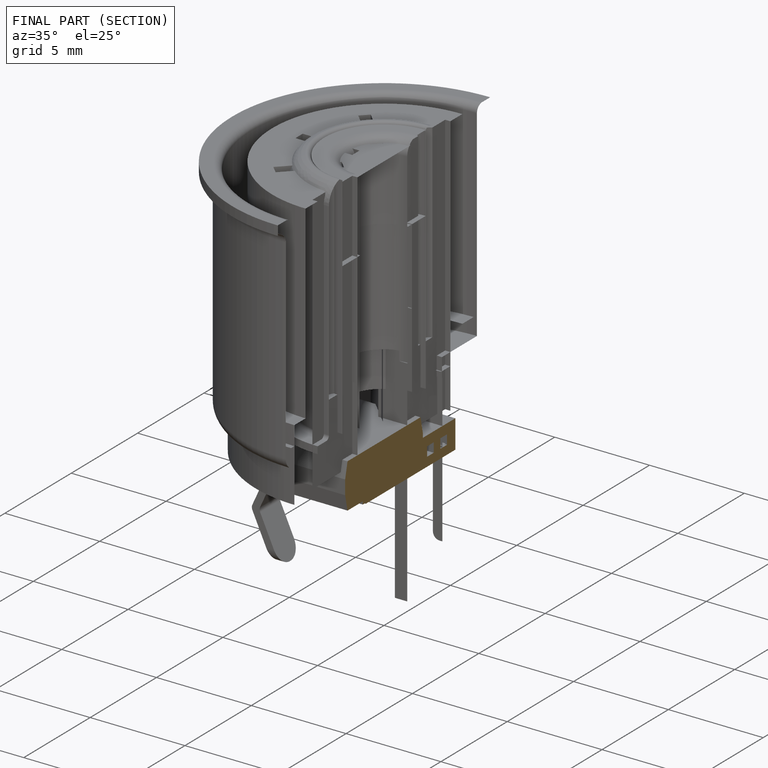
[diagram: finished part — half-section view (interior)]
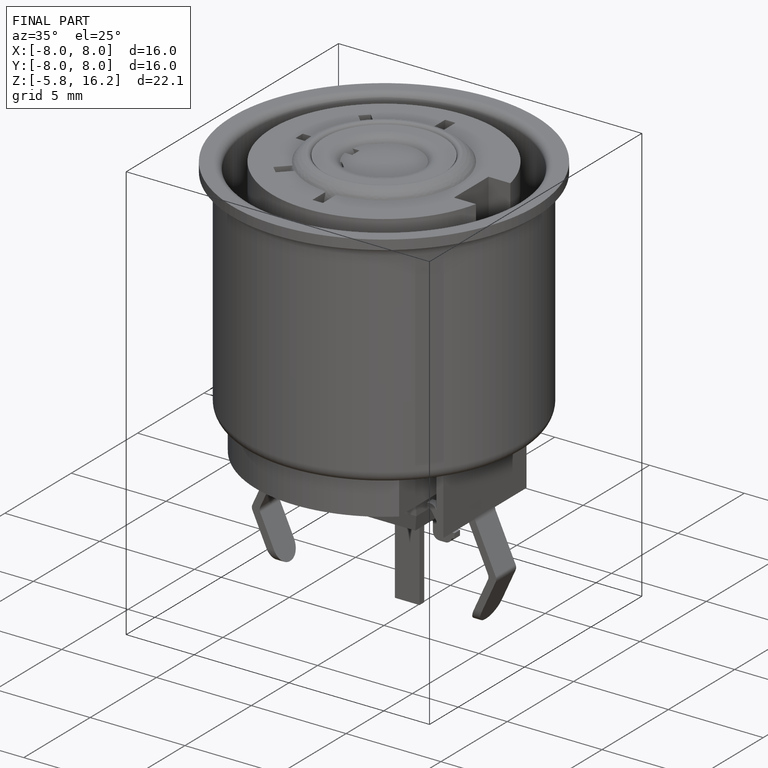
[diagram: finished part — iso view with bounding-box wireframe]
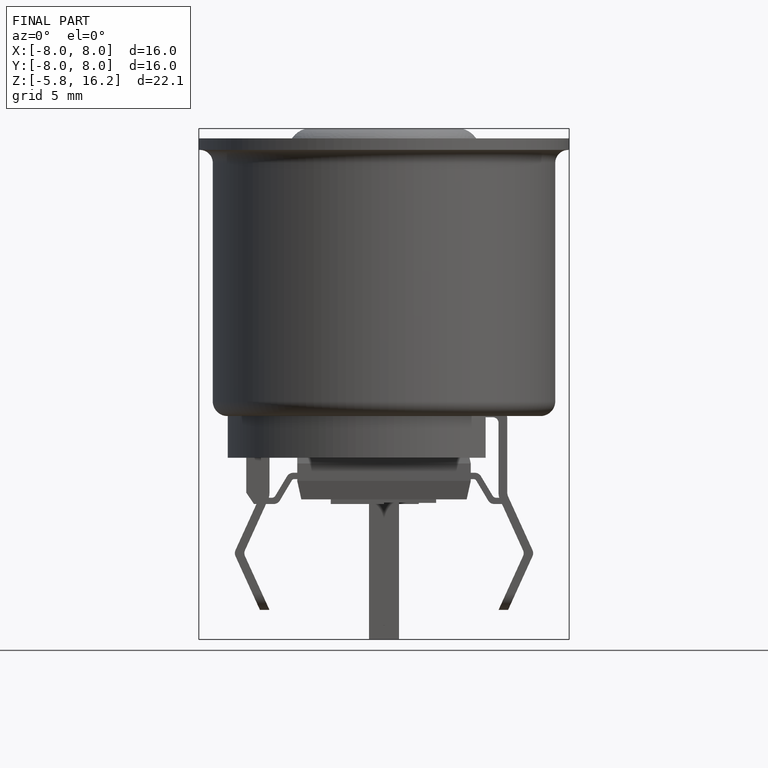
[diagram: finished part — front view with bounding-box wireframe]
